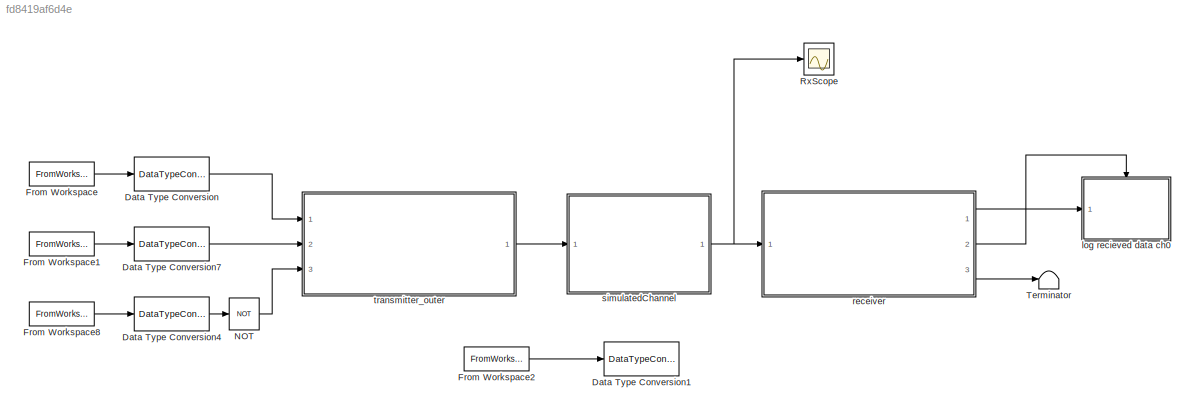
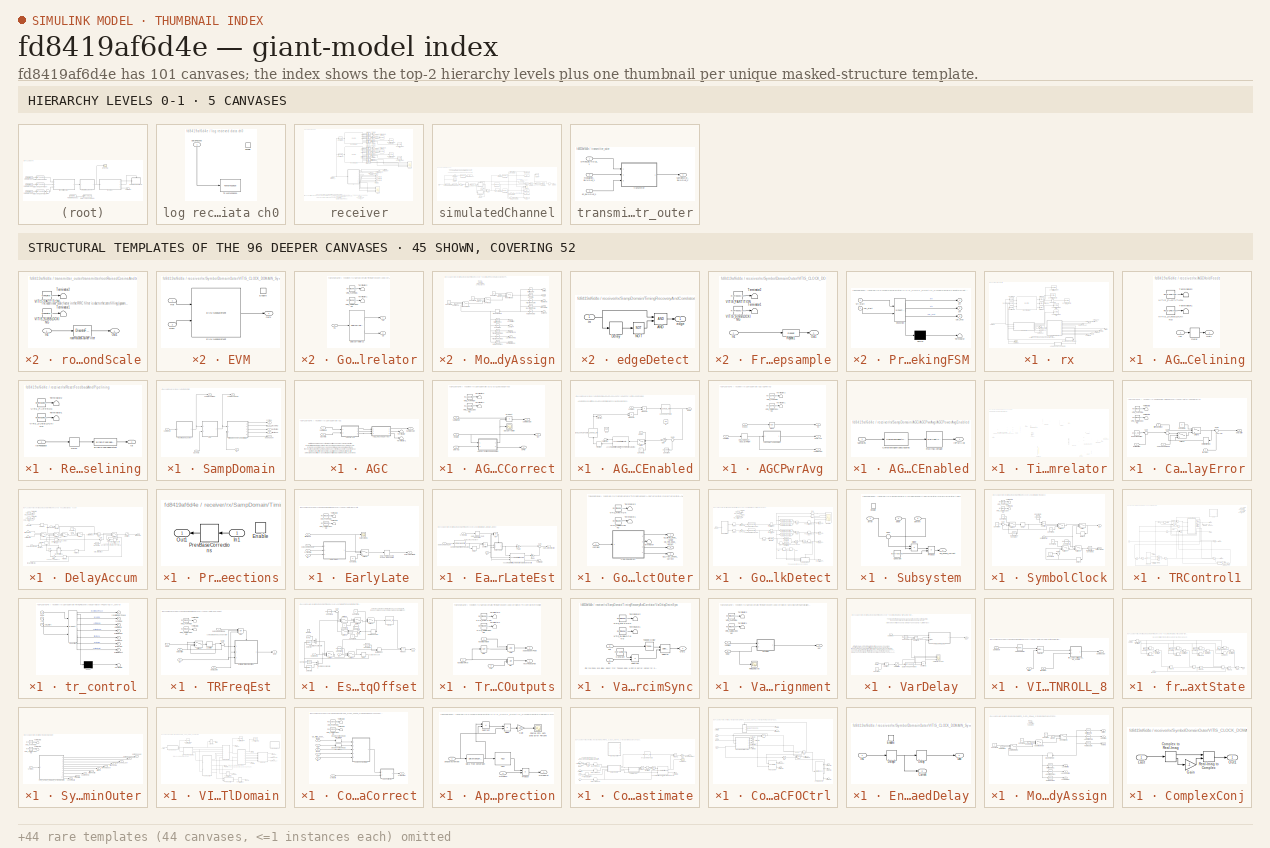
[diagram: thumbnail index - top-2 hierarchy levels (5 canvases) + 45 structural-template representatives of the remaining 96 canvases]
MODEL slx_fd8419af6d4e
KIND model
CONFIG AbsTol = auto
CONFIG EnableMultiTasking = off
CONFIG FixedStep = auto
CONFIG MaxStep = auto
CONFIG MinStep = auto
CONFIG RelTol = 1e-3
CONFIG SampleTimeConstraint = Unconstrained
CONFIG SolverName = FixedStepAuto
CONFIG StartTime = 0.0
CONFIG StopTime = (length(simX_ch0.signals.values)+pad_first)*basePer
BLOCK [DataTypeConversion] Data Type Conversion
  OutDataTypeStr = uint8
  RndMeth = Nearest
  SaturateOnIntegerOverflow = off
BLOCK [DataTypeConversion] Data Type Conversion1
  Commented = on
  OutDataTypeStr = single
  RndMeth = Floor
  SaturateOnIntegerOverflow = off
BLOCK [DataTypeConversion] Data Type Conversion4
  OutDataTypeStr = boolean
  RndMeth = Nearest
  SaturateOnIntegerOverflow = off
BLOCK [DataTypeConversion] Data Type Conversion7
  OutDataTypeStr = uint8
  RndMeth = Nearest
  SaturateOnIntegerOverflow = off
BLOCK [FromWorkspace] From Workspace
  Interpolate = off
  OutputAfterFinalValue = Setting to zero
  SampleTime = basePer*1
  VariableName = simX_ch0
BLOCK [FromWorkspace] From Workspace1
  Interpolate = off
  OutputAfterFinalValue = Setting to zero
  SampleTime = basePer*1
  VariableName = modX_ch0
BLOCK [FromWorkspace] From Workspace2
  Commented = on
  Interpolate = off
  OutputAfterFinalValue = Setting to zero
  SampleTime = overSamplePer
  VariableName = bladeRF
BLOCK [FromWorkspace] From Workspace8
  Interpolate = off
  OutputAfterFinalValue = Setting to zero
  SampleTime = basePer*1
  VariableName = zeroX_ch0
BLOCK [Logic] NOT
  AllPortsSameDT = off
  IconShape = distinctive
  Operator = NOT
  OutDataTypeStr = boolean
  Ports = [1, 1]
BLOCK [Scope] RxScope
  Floating = off
  NumInputPorts = 1
  Ports = [1]
  ScopeSpecificationString = Simulink.scopes.TimeScopeBlockCfg('CurrentConfiguration', extmgr.ConfigurationSet(extmgr.Configuration('Core','General UI',true),extmgr.Configuration('Core','Source UI',true),extmgr.Configuration('Sources','WiredSimulink',true,'DataLoggingVariableName','ScopeData1'),extmgr.Configuration('Visuals','Time Domain',true,'SerializedDisplays',{struct('MinYLimReal','-2.0362','MaxYLimReal','2.04096','YLabe...<+1818ch>
BLOCK [Terminator] Terminator
BLOCK [SubSystem] log recieved data ch0
  Ports = [1, 0, 1]
  RequestExecContextInheritance = off
BLOCK [EnablePort] log recieved data ch0/Enable
  Ports = []
BLOCK [ToWorkspace] log recieved data ch0/To Workspace1
  FixptAsFi = on
  MaxDataPoints = inf
  Ports = [1]
  SampleTime = -1
  Save2DSignal = 2-D array (concatenate along first dimension)
  VariableName = data_recieved_packed_ch0
BLOCK [Inport] log recieved data ch0/dataPacked
  NameLocation = right
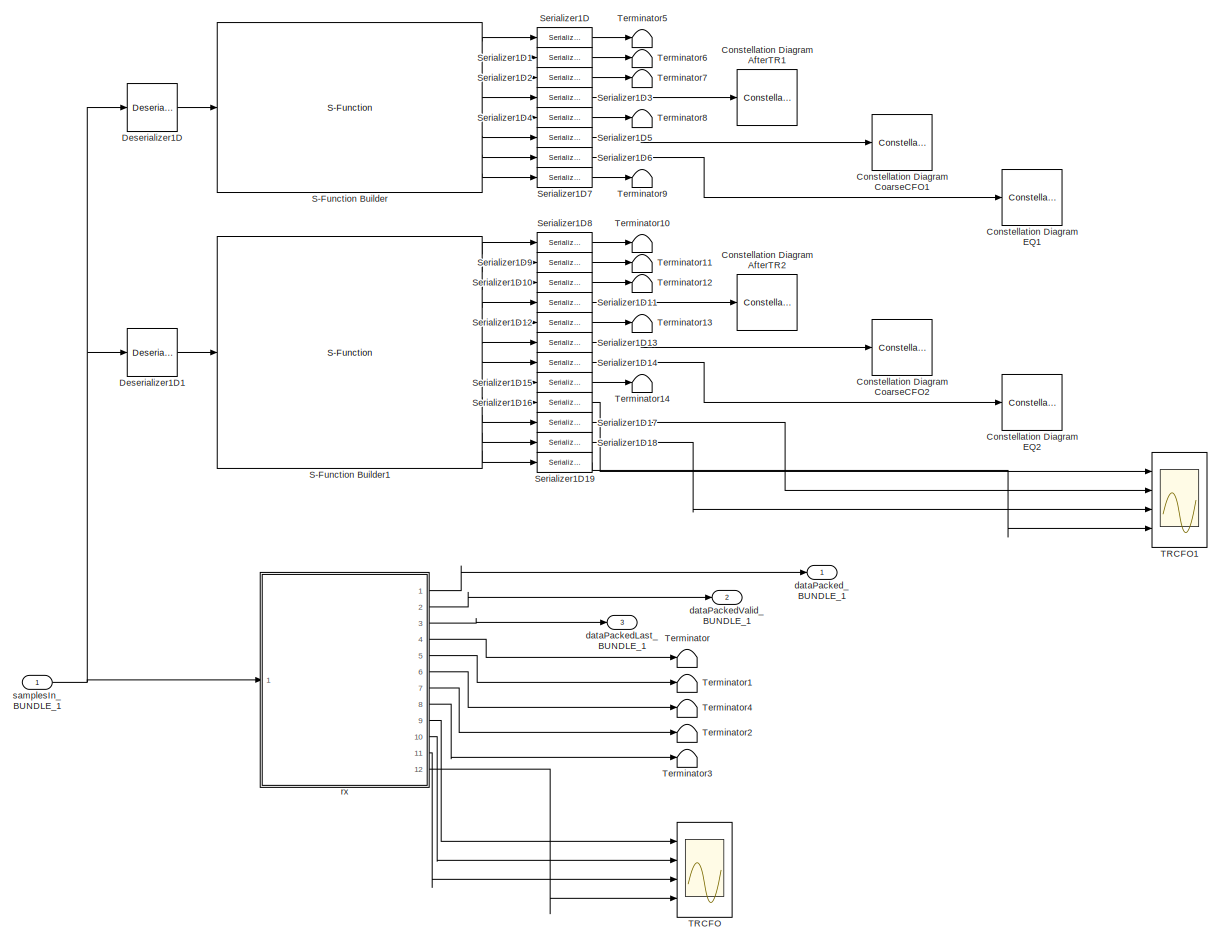
[diagram: receiver - part 1/2, most of the canvas]
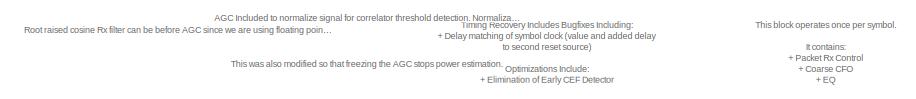
[diagram: receiver - part 2/2, bottom left region]
BLOCK [SubSystem] receiver
  Ports = [1, 3]
  RequestExecContextInheritance = off
BLOCK [ConstellationDiagram] receiver/Constellation Diagram AfterTR1
  Commented = on
  Ports = [1]
  ScopeSpecificationString = comm.scopes.ConstellationDiagramBlockCfg('CurrentConfiguration', extmgr.ConfigurationSet(extmgr.Configuration('Core','General UI',true),extmgr.Configuration('Core','Source UI',true),extmgr.Configuration('Sources','WiredSimulink',true),extmgr.Configuration('Sources','SPTool',false),extmgr.Configuration('Sources','File',false),extmgr.Configuration('Sources','Workspace',false),extmgr.Configuration('S...<+2960ch>  <repeated x6 — deduplicated; at blocks: Constellation Diagram AfterTR1, Constellation Diagram AfterTR2, Constellation Diagram CoarseCFO1, Constellation Diagram CoarseCFO2, Constellation Diagram EQ1, Constellation Diagram EQ2>
BLOCK [ConstellationDiagram] receiver/Constellation Diagram AfterTR2
  Commented = on
  Ports = [1]
BLOCK [ConstellationDiagram] receiver/Constellation Diagram CoarseCFO1
  Commented = on
  Ports = [1]
BLOCK [ConstellationDiagram] receiver/Constellation Diagram CoarseCFO2
  Commented = on
  Ports = [1]
BLOCK [ConstellationDiagram] receiver/Constellation Diagram EQ1
  Commented = on
  Ports = [1]
BLOCK [ConstellationDiagram] receiver/Constellation Diagram EQ2
  Commented = on
  Ports = [1]
BLOCK [Reference] receiver/Deserializer1D  REF=hdlsllib/HDL Operations/Deserializer1D
  Commented = on
  Ports = [1, 1]
  SourceBlock = hdlsllib/HDL Operations/Deserializer1D
  SourceProductBaseCode = SL
  SourceType = Deserializer1D
BLOCK [Reference] receiver/Deserializer1D1  REF=hdlsllib/HDL Operations/Deserializer1D
  Commented = on
  Ports = [1, 1]
  SourceBlock = hdlsllib/HDL Operations/Deserializer1D
  SourceProductBaseCode = SL
  SourceType = Deserializer1D
BLOCK [S-Function] receiver/S-Function Builder
  Commented = on
  CopyFcn = set_param(gcbh,'LinkStatus','none')
  EnableBusSupport = off
  FunctionName = rxDUT
  OpenFcn = sfunctionwizard(gcbh)
  Ports = [1, 8]
  SFcnIsStateOwnerBlock = off
  SFunctionDeploymentMode = off
  SFunctionModules = rxDUT_wrapper
BLOCK [S-Function] receiver/S-Function Builder1
  Commented = on
  CopyFcn = set_param(gcbh,'LinkStatus','none')
  EnableBusSupport = off
  FunctionName = rxDUT
  OpenFcn = sfunctionwizard(gcbh)
  Ports = [1, 12]
  SFcnIsStateOwnerBlock = off
  SFunctionDeploymentMode = off
  SFunctionModules = rxDUT_wrapper
BLOCK [Reference] receiver/Serializer1D  REF=hdlsllib/HDL Operations/Serializer1D
  Commented = on
  Ports = [1, 1]
  SourceBlock = hdlsllib/HDL Operations/Serializer1D
  SourceProductBaseCode = SL
  SourceType = Serializer1D
BLOCK [Reference] receiver/Serializer1D1  REF=hdlsllib/HDL Operations/Serializer1D
  Commented = on
  Ports = [1, 1]
  SourceBlock = hdlsllib/HDL Operations/Serializer1D
  SourceProductBaseCode = SL
  SourceType = Serializer1D
BLOCK [Reference] receiver/Serializer1D10  REF=hdlsllib/HDL Operations/Serializer1D
  Commented = on
  Ports = [1, 1]
  SourceBlock = hdlsllib/HDL Operations/Serializer1D
  SourceProductBaseCode = SL
  SourceType = Serializer1D
BLOCK [Reference] receiver/Serializer1D11  REF=hdlsllib/HDL Operations/Serializer1D
  Commented = on
  Ports = [1, 1]
  SourceBlock = hdlsllib/HDL Operations/Serializer1D
  SourceProductBaseCode = SL
  SourceType = Serializer1D
BLOCK [Reference] receiver/Serializer1D12  REF=hdlsllib/HDL Operations/Serializer1D
  Commented = on
  Ports = [1, 1]
  SourceBlock = hdlsllib/HDL Operations/Serializer1D
  SourceProductBaseCode = SL
  SourceType = Serializer1D
BLOCK [Reference] receiver/Serializer1D13  REF=hdlsllib/HDL Operations/Serializer1D
  Commented = on
  Ports = [1, 1]
  SourceBlock = hdlsllib/HDL Operations/Serializer1D
  SourceProductBaseCode = SL
  SourceType = Serializer1D
BLOCK [Reference] receiver/Serializer1D14  REF=hdlsllib/HDL Operations/Serializer1D
  Commented = on
  Ports = [1, 1]
  SourceBlock = hdlsllib/HDL Operations/Serializer1D
  SourceProductBaseCode = SL
  SourceType = Serializer1D
BLOCK [Reference] receiver/Serializer1D15  REF=hdlsllib/HDL Operations/Serializer1D
  Commented = on
  Ports = [1, 1]
  SourceBlock = hdlsllib/HDL Operations/Serializer1D
  SourceProductBaseCode = SL
  SourceType = Serializer1D
BLOCK [Reference] receiver/Serializer1D16  REF=hdlsllib/HDL Operations/Serializer1D
  Commented = on
  Ports = [1, 1]
  SourceBlock = hdlsllib/HDL Operations/Serializer1D
  SourceProductBaseCode = SL
  SourceType = Serializer1D
BLOCK [Reference] receiver/Serializer1D17  REF=hdlsllib/HDL Operations/Serializer1D
  Commented = on
  Ports = [1, 1]
  SourceBlock = hdlsllib/HDL Operations/Serializer1D
  SourceProductBaseCode = SL
  SourceType = Serializer1D
BLOCK [Reference] receiver/Serializer1D18  REF=hdlsllib/HDL Operations/Serializer1D
  Commented = on
  Ports = [1, 1]
  SourceBlock = hdlsllib/HDL Operations/Serializer1D
  SourceProductBaseCode = SL
  SourceType = Serializer1D
BLOCK [Reference] receiver/Serializer1D19  REF=hdlsllib/HDL Operations/Serializer1D
  Commented = on
  Ports = [1, 1]
  SourceBlock = hdlsllib/HDL Operations/Serializer1D
  SourceProductBaseCode = SL
  SourceType = Serializer1D
BLOCK [Reference] receiver/Serializer1D2  REF=hdlsllib/HDL Operations/Serializer1D
  Commented = on
  Ports = [1, 1]
  SourceBlock = hdlsllib/HDL Operations/Serializer1D
  SourceProductBaseCode = SL
  SourceType = Serializer1D
BLOCK [Reference] receiver/Serializer1D3  REF=hdlsllib/HDL Operations/Serializer1D
  Commented = on
  Ports = [1, 1]
  SourceBlock = hdlsllib/HDL Operations/Serializer1D
  SourceProductBaseCode = SL
  SourceType = Serializer1D
BLOCK [Reference] receiver/Serializer1D4  REF=hdlsllib/HDL Operations/Serializer1D
  Commented = on
  Ports = [1, 1]
  SourceBlock = hdlsllib/HDL Operations/Serializer1D
  SourceProductBaseCode = SL
  SourceType = Serializer1D
BLOCK [Reference] receiver/Serializer1D5  REF=hdlsllib/HDL Operations/Serializer1D
  Commented = on
  Ports = [1, 1]
  SourceBlock = hdlsllib/HDL Operations/Serializer1D
  SourceProductBaseCode = SL
  SourceType = Serializer1D
BLOCK [Reference] receiver/Serializer1D6  REF=hdlsllib/HDL Operations/Serializer1D
  Commented = on
  Ports = [1, 1]
  SourceBlock = hdlsllib/HDL Operations/Serializer1D
  SourceProductBaseCode = SL
  SourceType = Serializer1D
BLOCK [Reference] receiver/Serializer1D7  REF=hdlsllib/HDL Operations/Serializer1D
  Commented = on
  Ports = [1, 1]
  SourceBlock = hdlsllib/HDL Operations/Serializer1D
  SourceProductBaseCode = SL
  SourceType = Serializer1D
BLOCK [Reference] receiver/Serializer1D8  REF=hdlsllib/HDL Operations/Serializer1D
  Commented = on
  Ports = [1, 1]
  SourceBlock = hdlsllib/HDL Operations/Serializer1D
  SourceProductBaseCode = SL
  SourceType = Serializer1D
BLOCK [Reference] receiver/Serializer1D9  REF=hdlsllib/HDL Operations/Serializer1D
  Commented = on
  Ports = [1, 1]
  SourceBlock = hdlsllib/HDL Operations/Serializer1D
  SourceProductBaseCode = SL
  SourceType = Serializer1D
BLOCK [Scope] receiver/TRCFO
  Floating = off
  NumInputPorts = 4
  Ports = [4]
  ScopeSpecificationString = Simulink.scopes.TimeScopeBlockCfg('CurrentConfiguration', extmgr.ConfigurationSet(extmgr.Configuration('Core','General UI',true),extmgr.Configuration('Core','Source UI',true),extmgr.Configuration('Sources','WiredSimulink',true,'DataLoggingVariableName','ScopeData1'),extmgr.Configuration('Visuals','Time Domain',true,'SerializedDisplays',{struct('MinYLimReal','-3.81055','MaxYLimReal','107.07472','YL...<+1412ch>
BLOCK [Scope] receiver/TRCFO1
  Commented = on
  Floating = off
  NumInputPorts = 4
  Ports = [4]
  ScopeSpecificationString = Simulink.scopes.TimeScopeBlockCfg('CurrentConfiguration', extmgr.ConfigurationSet(extmgr.Configuration('Core','General UI',true),extmgr.Configuration('Core','Source UI',true),extmgr.Configuration('Sources','WiredSimulink',true,'DataLoggingVariableName','ScopeData1'),extmgr.Configuration('Visuals','Time Domain',true,'SerializedDisplays',{struct('MinYLimReal','-3.61845','MaxYLimReal','105.14368','YL...<+1596ch>
BLOCK [Terminator] receiver/Terminator
BLOCK [Terminator] receiver/Terminator1
BLOCK [Terminator] receiver/Terminator10
  Commented = on
BLOCK [Terminator] receiver/Terminator11
  Commented = on
BLOCK [Terminator] receiver/Terminator12
  Commented = on
BLOCK [Terminator] receiver/Terminator13
  Commented = on
BLOCK [Terminator] receiver/Terminator14
  Commented = on
BLOCK [Terminator] receiver/Terminator2
BLOCK [Terminator] receiver/Terminator3
BLOCK [Terminator] receiver/Terminator4
BLOCK [Terminator] receiver/Terminator5
  Commented = on
BLOCK [Terminator] receiver/Terminator6
  Commented = on
BLOCK [Terminator] receiver/Terminator7
  Commented = on
BLOCK [Terminator] receiver/Terminator8
  Commented = on
BLOCK [Terminator] receiver/Terminator9
  Commented = on
BLOCK [Outport] receiver/dataPackedLast_BUNDLE_1
  Port = 3
BLOCK [Outport] receiver/dataPackedValid_BUNDLE_1
  Port = 2
BLOCK [Outport] receiver/dataPacked_BUNDLE_1
BLOCK [SubSystem] receiver/rx
  Ports = [1, 12]
  RequestExecContextInheritance = off
BLOCK [Scope] receiver/rx/AGC Freeze
  Floating = off
  NumInputPorts = 1
  Ports = [1]
  ScopeSpecificationString = Simulink.scopes.TimeScopeBlockCfg('CurrentConfiguration', extmgr.ConfigurationSet(extmgr.Configuration('Core','General UI',true),extmgr.Configuration('Core','Source UI',true),extmgr.Configuration('Sources','WiredSimulink',true,'DataLoggingVariableName','ScopeData1'),extmgr.Configuration('Visuals','Time Domain',true,'SerializedDisplays',{struct('MinYLimReal','-0.125','MaxYLimReal','1.125','YLabelRe...<+1376ch>
BLOCK [SubSystem] receiver/rx/AGCHoldFeedbackAndPipelining
  Ports = [1, 1]
  RequestExecContextInheritance = off
BLOCK [Delay] receiver/rx/AGCHoldFeedbackAndPipelining/Delay
  DelayLength = RxFreezeFeedbackPipelining
  InputPortMap = u0
  Ports = [1, 1]
  UseCircularBuffer = on
BLOCK [Inport] receiver/rx/AGCHoldFeedbackAndPipelining/In1
BLOCK [Outport] receiver/rx/AGCHoldFeedbackAndPipelining/Out1
BLOCK [Terminator] receiver/rx/AGCHoldFeedbackAndPipelining/Terminator1
BLOCK [Terminator] receiver/rx/AGCHoldFeedbackAndPipelining/Terminator2
BLOCK [Constant] receiver/rx/AGCHoldFeedbackAndPipelining/VITIS_PARTITION
  Value = RxAGCPwrAvgPartition
BLOCK [Constant] receiver/rx/AGCHoldFeedbackAndPipelining/VITIS_SUBBLOCKING
  Value = RxAGCPwrAvgSubBlocking
BLOCK [ConstellationDiagram] receiver/rx/Constellation Diagram AGC
  Ports = [1]
  ScopeSpecificationString = comm.scopes.ConstellationDiagramBlockCfg('CurrentConfiguration', extmgr.ConfigurationSet(extmgr.Configuration('Core','General UI',true),extmgr.Configuration('Core','Source UI',true),extmgr.Configuration('Sources','WiredSimulink',true),extmgr.Configuration('Sources','SPTool',false),extmgr.Configuration('Sources','File',false),extmgr.Configuration('Sources','Workspace',false),extmgr.Configuration('S...<+2533ch>
BLOCK [ConstellationDiagram] receiver/rx/Constellation Diagram AGC1
  Commented = on
  Ports = [1]
  ScopeSpecificationString = comm.scopes.ConstellationDiagramBlockCfg('CurrentConfiguration', extmgr.ConfigurationSet(extmgr.Configuration('Core','General UI',true),extmgr.Configuration('Core','Source UI',true),extmgr.Configuration('Sources','WiredSimulink',true),extmgr.Configuration('Sources','SPTool',false),extmgr.Configuration('Sources','File',false),extmgr.Configuration('Sources','Workspace',false),extmgr.Configuration('S...<+2978ch>
BLOCK [ConstellationDiagram] receiver/rx/Constellation Diagram RRC
  Ports = [1]
  ScopeSpecificationString = comm.scopes.ConstellationDiagramBlockCfg('CurrentConfiguration', extmgr.ConfigurationSet(extmgr.Configuration('Core','General UI',true),extmgr.Configuration('Core','Source UI',true),extmgr.Configuration('Sources','WiredSimulink',true),extmgr.Configuration('Sources','SPTool',false),extmgr.Configuration('Sources','File',false),extmgr.Configuration('Sources','Workspace',false),extmgr.Configuration('S...<+2531ch>
BLOCK [ConstellationDiagram] receiver/rx/Constellation Diagram RRC1
  Commented = on
  Ports = [1]
  ScopeSpecificationString = comm.scopes.ConstellationDiagramBlockCfg('CurrentConfiguration', extmgr.ConfigurationSet(extmgr.Configuration('Core','General UI',true),extmgr.Configuration('Core','Source UI',true),extmgr.Configuration('Sources','WiredSimulink',true),extmgr.Configuration('Sources','SPTool',false),extmgr.Configuration('Sources','File',false),extmgr.Configuration('Sources','Workspace',false),extmgr.Configuration('S...<+2974ch>
BLOCK [ConstellationDiagram] receiver/rx/Constellation Diagram Symb
  Commented = on
  Ports = [1]
  ScopeSpecificationString = comm.scopes.ConstellationDiagramBlockCfg('CurrentConfiguration', extmgr.ConfigurationSet(extmgr.Configuration('Core','General UI',true),extmgr.Configuration('Core','Source UI',true),extmgr.Configuration('Sources','WiredSimulink',true),extmgr.Configuration('Sources','SPTool',false),extmgr.Configuration('Sources','File',false),extmgr.Configuration('Sources','Workspace',false),extmgr.Configuration('S...<+2978ch>
BLOCK [Reference] receiver/rx/Deserializer1D  REF=hdlsllib/HDL Operations/Deserializer1D
  Commented = on
  Ports = [1, 1]
  SourceBlock = hdlsllib/HDL Operations/Deserializer1D
  SourceProductBaseCode = SL
  SourceType = Deserializer1D
BLOCK [Reference] receiver/rx/Deserializer1D1  REF=hdlsllib/HDL Operations/Deserializer1D
  Commented = on
  Ports = [1, 1]
  SourceBlock = hdlsllib/HDL Operations/Deserializer1D
  SourceProductBaseCode = SL
  SourceType = Deserializer1D
BLOCK [Reference] receiver/rx/Deserializer1D2  REF=hdlsllib/HDL Operations/Deserializer1D
  Commented = on
  Ports = [1, 1]
  SourceBlock = hdlsllib/HDL Operations/Deserializer1D
  SourceProductBaseCode = SL
  SourceType = Deserializer1D
BLOCK [DownSample] receiver/rx/Downsample
  Commented = on
  InputProcessing = Elements as channels (sample based)
  N = 3
  RateOptions = Allow multirate processing
BLOCK [SubSystem] receiver/rx/ResetFeedbackAndPipelining
  Ports = [1, 1]
  RequestExecContextInheritance = off
BLOCK [Reference] receiver/rx/ResetFeedbackAndPipelining/BinaryPosEdgeDetect  REF=rev1CyclopsLib/BinaryPosEdgeDetect
  Ports = [1, 1]
  SourceBlock = rev1CyclopsLib/BinaryPosEdgeDetect
  SourceType = SubSystem
BLOCK [Delay] receiver/rx/ResetFeedbackAndPipelining/Delay
  DelayLength = RxFeedbackPipelining
  InputPortMap = u0
  Ports = [1, 1]
  UseCircularBuffer = on
BLOCK [Terminator] receiver/rx/ResetFeedbackAndPipelining/Terminator1
BLOCK [Terminator] receiver/rx/ResetFeedbackAndPipelining/Terminator2
BLOCK [Constant] receiver/rx/ResetFeedbackAndPipelining/VITIS_PARTITION
  Value = RxTimingRecoveryControlPartition
BLOCK [Constant] receiver/rx/ResetFeedbackAndPipelining/VITIS_SUBBLOCKING
  Value = RxTimingRecoveryControlSubBlocking
BLOCK [Outport] receiver/rx/ResetFeedbackAndPipelining/rst
BLOCK [Inport] receiver/rx/ResetFeedbackAndPipelining/rstFeedback
BLOCK [S-Function] receiver/rx/S-Function Builder
  Commented = on
  CopyFcn = set_param(gcbh,'LinkStatus','none')
  EnableBusSupport = off
  FunctionName = sampleDomainDUT
  OpenFcn = sfunctionwizard(gcbh)
  Ports = [3, 3]
  SFcnIsStateOwnerBlock = off
  SFunctionDeploymentMode = off
  SFunctionModules = sampleDomainDUT_wrapper
BLOCK [SubSystem] receiver/rx/SampDomain
  Ports = [3, 7]
  RequestExecContextInheritance = off
BLOCK [SubSystem] receiver/rx/SampDomain/AGC
  Ports = [2, 1]
  RequestExecContextInheritance = off
BLOCK [SubSystem] receiver/rx/SampDomain/AGC/AGCLoopAndCorrect
  Ports = [3, 3]
  RequestExecContextInheritance = off
BLOCK [SubSystem] receiver/rx/SampDomain/AGC/AGCLoopAndCorrect/AGCCorrectionLoopEnabled
  Ports = [2, 2]
  RequestExecContextInheritance = off
BLOCK [Reference] receiver/rx/SampDomain/AGC/AGCLoopAndCorrect/AGCCorrectionLoopEnabled/AccumulatorWithSaturationCombinationalOutput  REF=rev1CyclopsLib/AccumulatorWithSaturationCombinationalOutput
  Ports = [1, 2]
  SourceBlock = rev1CyclopsLib/AccumulatorWithSaturationCombinationalOutput
  SourceType = Accumulator with Combinational Output
BLOCK [Constant] receiver/rx/SampDomain/AGC/AGCLoopAndCorrect/AGCCorrectionLoopEnabled/Constant
  OutDataTypeStr = Inherit: Inherit via back propagation
  Value = agcDesired
BLOCK [Constant] receiver/rx/SampDomain/AGC/AGCLoopAndCorrect/AGCCorrectionLoopEnabled/Constant1
  OutDataTypeStr = Inherit: Inherit via back propagation
  Value = 0
BLOCK [Math] receiver/rx/SampDomain/AGC/AGCLoopAndCorrect/AGCCorrectionLoopEnabled/Exp
  Commented = on
  NameLocation = right
  Ports = [1, 1]
BLOCK [Lookup_n-D] receiver/rx/SampDomain/AGC/AGCLoopAndCorrect/AGCCorrectionLoopEnabled/Exp Lookup Table
  BreakpointsForDimension1 = agcExpBreakpoints
  IndexSearchMethod = Evenly spaced points
  InputPortMap = u0
  InternalRulePriority = Speed
  InterpMethod = Flat
  NameLocation = left
  NumberOfTableDimensions = 1
  Ports = [1, 1]
  RndMeth = Simplest
  Table = exp(agcExpBreakpoints)
BLOCK [Gain] receiver/rx/SampDomain/AGC/AGCLoopAndCorrect/AGCCorrectionLoopEnabled/Gain
  Gain = agcStep
BLOCK [Lookup_n-D] receiver/rx/SampDomain/AGC/AGCLoopAndCorrect/AGCCorrectionLoopEnabled/Ln Lookup Table
  BreakpointsForDimension1 = agcLnBreakpoints
  IndexSearchMethod = Evenly spaced points
  InputPortMap = u0
  InternalRulePriority = Speed
  InterpMethod = Flat
  NumberOfTableDimensions = 1
  Ports = [1, 1]
  RndMeth = Simplest
  Table = log(agcLnBreakpoints)
BLOCK [Delay] receiver/rx/SampDomain/AGC/AGCLoopAndCorrect/AGCCorrectionLoopEnabled/Pipeline
  DelayLength = agcLoopPipeline
  InputPortMap = u0
  Ports = [1, 1]
BLOCK [Product] receiver/rx/SampDomain/AGC/AGCLoopAndCorrect/AGCCorrectionLoopEnabled/Product1
  OutDataTypeStr = Inherit: Same as first input
  Ports = [2, 1]
BLOCK [Product] receiver/rx/SampDomain/AGC/AGCLoopAndCorrect/AGCCorrectionLoopEnabled/Product2
  OutDataTypeStr = Inherit: Same as first input
  Ports = [2, 1]
BLOCK [Sum] receiver/rx/SampDomain/AGC/AGCLoopAndCorrect/AGCCorrectionLoopEnabled/Sum1
  Inputs = |-+
  Ports = [2, 1]
BLOCK [Switch] receiver/rx/SampDomain/AGC/AGCLoopAndCorrect/AGCCorrectionLoopEnabled/Switch
  Criteria = u2 ~= 0
  InputSameDT = off
  SaturateOnIntegerOverflow = off
BLOCK [Terminator] receiver/rx/SampDomain/AGC/AGCLoopAndCorrect/AGCCorrectionLoopEnabled/Terminator
BLOCK [Inport] receiver/rx/SampDomain/AGC/AGCLoopAndCorrect/AGCCorrectionLoopEnabled/adapt
BLOCK [Outport] receiver/rx/SampDomain/AGC/AGCLoopAndCorrect/AGCCorrectionLoopEnabled/correction
BLOCK [Math] receiver/rx/SampDomain/AGC/AGCLoopAndCorrect/AGCCorrectionLoopEnabled/ln
  Commented = on
  Operator = log
  Ports = [1, 1]
BLOCK [Outport] receiver/rx/SampDomain/AGC/AGCLoopAndCorrect/AGCCorrectionLoopEnabled/lnPwr
  Port = 2
BLOCK [Inport] receiver/rx/SampDomain/AGC/AGCLoopAndCorrect/AGCCorrectionLoopEnabled/samples
  Port = 2
BLOCK [Product] receiver/rx/SampDomain/AGC/AGCLoopAndCorrect/Product
  OutDataTypeStr = Inherit: Same as first input
  Ports = [2, 1]
BLOCK [Terminator] receiver/rx/SampDomain/AGC/AGCLoopAndCorrect/Terminator1
BLOCK [Terminator] receiver/rx/SampDomain/AGC/AGCLoopAndCorrect/Terminator2
BLOCK [Constant] receiver/rx/SampDomain/AGC/AGCLoopAndCorrect/VITIS_PARTITION
  Value = RxAGCCorrectionLoopPartition
BLOCK [Constant] receiver/rx/SampDomain/AGC/AGCLoopAndCorrect/VITIS_SUBBLOCKING
  Value = RxAGCCorrectionLoopSubBlocking
BLOCK [Scope] receiver/rx/SampDomain/AGC/AGCLoopAndCorrect/agcCorrection
  Floating = off
  NumInputPorts = 1
  Ports = [1]
  ScopeSpecificationString = Simulink.scopes.TimeScopeBlockCfg('CurrentConfiguration', extmgr.ConfigurationSet(extmgr.Configuration('Core','General UI',true),extmgr.Configuration('Core','Source UI',true),extmgr.Configuration('Sources','WiredSimulink',true,'DataLoggingVariableName','ScopeData1'),extmgr.Configuration('Visuals','Time Domain',true,'SerializedDisplays',{struct('MinYLimReal','0.36407','MaxYLimReal','0.66194','YLabe...<+1480ch>
BLOCK [Outport] receiver/rx/SampDomain/AGC/AGCLoopAndCorrect/en
  Port = 3
BLOCK [Inport] receiver/rx/SampDomain/AGC/AGCLoopAndCorrect/enable
  Port = 3
BLOCK [Outport] receiver/rx/SampDomain/AGC/AGCLoopAndCorrect/lnPwr
  Port = 2
BLOCK [Inport] receiver/rx/SampDomain/AGC/AGCLoopAndCorrect/pwrAvg
  Port = 2
BLOCK [Inport] receiver/rx/SampDomain/AGC/AGCLoopAndCorrect/samplesIn
BLOCK [Outport] receiver/rx/SampDomain/AGC/AGCLoopAndCorrect/samplesOut
BLOCK [SubSystem] receiver/rx/SampDomain/AGC/AGCPwrAvg
  Ports = [2, 3]
  RequestExecContextInheritance = off
BLOCK [SubSystem] receiver/rx/SampDomain/AGC/AGCPwrAvg/AGCPowerAvgEnabled
  Ports = [1, 1]
  RequestExecContextInheritance = off
BLOCK [Reference] receiver/rx/SampDomain/AGC/AGCPwrAvg/AGCPowerAvgEnabled/ComplexMagnitudeSquared  REF=rev1CyclopsLib/ComplexMagnitudeSquared
  Ports = [1, 1]
  SourceBlock = rev1CyclopsLib/ComplexMagnitudeSquared
  SourceType = SubSystem
BLOCK [Reference] receiver/rx/SampDomain/AGC/AGCPwrAvg/AGCPowerAvgEnabled/RollingAverage  REF=rev1CyclopsLib/RollingAverage
  Ports = [1, 1]
  SourceBlock = rev1CyclopsLib/RollingAverage
BLOCK [Outport] receiver/rx/SampDomain/AGC/AGCPwrAvg/AGCPowerAvgEnabled/lnPwrAvg
BLOCK [Inport] receiver/rx/SampDomain/AGC/AGCPwrAvg/AGCPowerAvgEnabled/samples
BLOCK [Logic] receiver/rx/SampDomain/AGC/AGCPwrAvg/NOT2
  AllPortsSameDT = off
  IconShape = distinctive
  Operator = NOT
  OutDataTypeStr = boolean
  Ports = [1, 1]
BLOCK [Terminator] receiver/rx/SampDomain/AGC/AGCPwrAvg/Terminator1
BLOCK [Terminator] receiver/rx/SampDomain/AGC/AGCPwrAvg/Terminator2
BLOCK [Delay] receiver/rx/SampDomain/AGC/AGCPwrAvg/VITIS_CONTEXT_ABSORB_BARRIER
  DelayLength = 0
  InputPortMap = u0
  Ports = [1, 1]
BLOCK [Constant] receiver/rx/SampDomain/AGC/AGCPwrAvg/VITIS_PARTITION
  Value = RxAGCPwrAvgPartition
BLOCK [Constant] receiver/rx/SampDomain/AGC/AGCPwrAvg/VITIS_SUBBLOCKING
  Value = RxAGCPwrAvgSubBlocking
BLOCK [Outport] receiver/rx/SampDomain/AGC/AGCPwrAvg/en
  Port = 3
BLOCK [Inport] receiver/rx/SampDomain/AGC/AGCPwrAvg/freeze
  Port = 2
BLOCK [Outport] receiver/rx/SampDomain/AGC/AGCPwrAvg/lnPwrAvg
  Port = 2
BLOCK [Inport] receiver/rx/SampDomain/AGC/AGCPwrAvg/samples
BLOCK [Outport] receiver/rx/SampDomain/AGC/AGCPwrAvg/samplesOut
BLOCK [Terminator] receiver/rx/SampDomain/AGC/Terminator
BLOCK [Terminator] receiver/rx/SampDomain/AGC/Terminator1
BLOCK [Inport] receiver/rx/SampDomain/AGC/agcHold
  Port = 2
BLOCK [Inport] receiver/rx/SampDomain/AGC/samplesIn
BLOCK [Outport] receiver/rx/SampDomain/AGC/samplesOut
BLOCK [SubSystem] receiver/rx/SampDomain/RootRaisedCosine
  Ports = [1, 1]
  RequestExecContextInheritance = off
BLOCK [Terminator] receiver/rx/SampDomain/RootRaisedCosine/Terminator1
BLOCK [Terminator] receiver/rx/SampDomain/RootRaisedCosine/Terminator2
BLOCK [Constant] receiver/rx/SampDomain/RootRaisedCosine/VITIS_PARTITION
  Value = RxRRCPartition
BLOCK [Constant] receiver/rx/SampDomain/RootRaisedCosine/VITIS_SUBBLOCKING
  Value = RxRRCSubBlocking
BLOCK [DiscreteFir] receiver/rx/SampDomain/RootRaisedCosine/rootRaisedCosineFilter
  Coefficients = rcRxFilt
  InputPortMap = u0
  OutputPortMap = o0
  Ports = [1, 1]
BLOCK [Inport] receiver/rx/SampDomain/RootRaisedCosine/samplesIn
BLOCK [Outport] receiver/rx/SampDomain/RootRaisedCosine/samplesOut
BLOCK [SubSystem] receiver/rx/SampDomain/TimingRecoveryAndCorrelator
  Ports = [2, 5]
  RequestExecContextInheritance = off
BLOCK [SubSystem] receiver/rx/SampDomain/TimingRecoveryAndCorrelator/CalcDelayError
  Ports = [4, 1]
  RequestExecContextInheritance = off
BLOCK [Constant] receiver/rx/SampDomain/TimingRecoveryAndCorrelator/CalcDelayError/Constant1
  OutDataTypeStr = Inherit: Inherit via back propagation
  Value = 0
BLOCK [Constant] receiver/rx/SampDomain/TimingRecoveryAndCorrelator/CalcDelayError/ExpectedPeriod
  OutDataTypeStr = Inherit: Inherit via back propagation
  Value = golay_type*overSample
BLOCK [Delay] receiver/rx/SampDomain/TimingRecoveryAndCorrelator/CalcDelayError/RefIntCorrection
  DelayLength = 1
  InputPortMap = u0
  Ports = [1, 1]
BLOCK [Sum] receiver/rx/SampDomain/TimingRecoveryAndCorrelator/CalcDelayError/Sum
  Inputs = |+-
  Ports = [2, 1]
BLOCK [Sum] receiver/rx/SampDomain/TimingRecoveryAndCorrelator/CalcDelayError/Sum1
  Inputs = |++
  Ports = [2, 1]
BLOCK [Sum] receiver/rx/SampDomain/TimingRecoveryAndCorrelator/CalcDelayError/Sum3
  Inputs = |++
  Ports = [2, 1]
BLOCK [Switch] receiver/rx/SampDomain/TimingRecoveryAndCorrelator/CalcDelayError/Switch5
  Criteria = u2 ~= 0
  InputSameDT = off
  SaturateOnIntegerOverflow = off
BLOCK [Switch] receiver/rx/SampDomain/TimingRecoveryAndCorrelator/CalcDelayError/Switch6
  Criteria = u2 > Threshold
  InputSameDT = off
  SaturateOnIntegerOverflow = off
BLOCK [Terminator] receiver/rx/SampDomain/TimingRecoveryAndCorrelator/CalcDelayError/Terminator1
BLOCK [Terminator] receiver/rx/SampDomain/TimingRecoveryAndCorrelator/CalcDelayError/Terminator2
BLOCK [Constant] receiver/rx/SampDomain/TimingRecoveryAndCorrelator/CalcDelayError/VITIS_PARTITION
  Value = RxTimingRecoveryCalcDelayError
BLOCK [Constant] receiver/rx/SampDomain/TimingRecoveryAndCorrelator/CalcDelayError/VITIS_SUBBLOCKING
  Value = RxTimingRecoveryCalcDelayErrorSubBlocking
BLOCK [Outport] receiver/rx/SampDomain/TimingRecoveryAndCorrelator/CalcDelayError/delayError
BLOCK [Inport] receiver/rx/SampDomain/TimingRecoveryAndCorrelator/CalcDelayError/firstPeakOrRst
  Port = 3
BLOCK [Inport] receiver/rx/SampDomain/TimingRecoveryAndCorrelator/CalcDelayError/fracDelay
  Port = 4
BLOCK [Inport] receiver/rx/SampDomain/TimingRecoveryAndCorrelator/CalcDelayError/lastIntPeriod
  Port = 2
BLOCK [Inport] receiver/rx/SampDomain/TimingRecoveryAndCorrelator/CalcDelayError/subsequentPeak
BLOCK [SubSystem] receiver/rx/SampDomain/TimingRecoveryAndCorrelator/DelayAccum
  Ports = [9, 1]
  RequestExecContextInheritance = off
BLOCK [Constant] receiver/rx/SampDomain/TimingRecoveryAndCorrelator/DelayAccum/BaseDelay
  OutDataTypeStr = Inherit: Inherit via back propagation
  Value = trTappedDelayLen/2
BLOCK [Constant] receiver/rx/SampDomain/TimingRecoveryAndCorrelator/DelayAccum/Constant
  OutDataTypeStr = Inherit: Inherit via back propagation
  Value = 0
BLOCK [Delay] receiver/rx/SampDomain/TimingRecoveryAndCorrelator/DelayAccum/CorrectionRelToStartPhase
  DelayLength = 1
  InputPortMap = u0
  Ports = [1, 1]
BLOCK [Gain] receiver/rx/SampDomain/TimingRecoveryAndCorrelator/DelayAccum/Gain
  Gain = golay_type*overSample*timingRecoveryFreqCorrectionDiscardLastN
BLOCK [Delay] receiver/rx/SampDomain/TimingRecoveryAndCorrelator/DelayAccum/InstantaniousCorrection
  DelayLength = 1
  InputPortMap = u0
  Ports = [1, 1]
BLOCK [Logic] receiver/rx/SampDomain/TimingRecoveryAndCorrelator/DelayAccum/OR2
  AllPortsSameDT = off
  IconShape = distinctive
  Operator = OR
  OutDataTypeStr = boolean
  Ports = [2, 1]
BLOCK [Delay] receiver/rx/SampDomain/TimingRecoveryAndCorrelator/DelayAccum/Pipeline
  DelayLength = 1
  InputPortMap = u0
  Ports = [1, 1]
BLOCK [Delay] receiver/rx/SampDomain/TimingRecoveryAndCorrelator/DelayAccum/Pipeline1
  DelayLength = 1
  InputPortMap = u0
  NameLocation = left
  Ports = [1, 1]
BLOCK [Delay] receiver/rx/SampDomain/TimingRecoveryAndCorrelator/DelayAccum/Pipeline2
  DelayLength = 1
  InputPortMap = u0
  Ports = [1, 1]
BLOCK [Delay] receiver/rx/SampDomain/TimingRecoveryAndCorrelator/DelayAccum/Pipeline3
  DelayLength = 1
  InputPortMap = u0
  Ports = [1, 1]
BLOCK [Delay] receiver/rx/SampDomain/TimingRecoveryAndCorrelator/DelayAccum/Pipeline4
  DelayLength = 1
  InputPortMap = u0
  Ports = [1, 1]
BLOCK [Delay] receiver/rx/SampDomain/TimingRecoveryAndCorrelator/DelayAccum/Pipeline5
  DelayLength = 1
  InputPortMap = u0
  NameLocation = top
  Ports = [1, 1]
BLOCK [SubSystem] receiver/rx/SampDomain/TimingRecoveryAndCorrelator/DelayAccum/PrevCorrections
  Ports = [1, 1, 1]
  RequestExecContextInheritance = off
BLOCK [EnablePort] receiver/rx/SampDomain/TimingRecoveryAndCorrelator/DelayAccum/PrevCorrections/Enable
  Ports = []
BLOCK [Inport] receiver/rx/SampDomain/TimingRecoveryAndCorrelator/DelayAccum/PrevCorrections/In1
BLOCK [Outport] receiver/rx/SampDomain/TimingRecoveryAndCorrelator/DelayAccum/PrevCorrections/Out1
BLOCK [Delay] receiver/rx/SampDomain/TimingRecoveryAndCorrelator/DelayAccum/PrevCorrections/PrevBaseCorrections
  DelayLength = timingRecoveryFreqCorrectionDiscardLastN
  InputPortMap = u0
  Ports = [1, 1]
BLOCK [Saturate] receiver/rx/SampDomain/TimingRecoveryAndCorrelator/DelayAccum/Saturation
  LowerLimit = 0
  UpperLimit = trTappedDelayLen
BLOCK [Sum] receiver/rx/SampDomain/TimingRecoveryAndCorrelator/DelayAccum/Sum4
  Inputs = +++
  Ports = [3, 1]
BLOCK [Sum] receiver/rx/SampDomain/TimingRecoveryAndCorrelator/DelayAccum/Sum5
  Inputs = |++
  Ports = [2, 1]
BLOCK [Sum] receiver/rx/SampDomain/TimingRecoveryAndCorrelator/DelayAccum/Sum6
  Inputs = |++
  Ports = [2, 1]
BLOCK [Switch] receiver/rx/SampDomain/TimingRecoveryAndCorrelator/DelayAccum/Switch
  Criteria = u2 ~= 0
  InputSameDT = off
  SaturateOnIntegerOverflow = off
BLOCK [Switch] receiver/rx/SampDomain/TimingRecoveryAndCorrelator/DelayAccum/Switch1
  Criteria = u2 ~= 0
  InputSameDT = off
  SaturateOnIntegerOverflow = off
BLOCK [Switch] receiver/rx/SampDomain/TimingRecoveryAndCorrelator/DelayAccum/Switch3
  Criteria = u2 ~= 0
  InputSameDT = off
  SaturateOnIntegerOverflow = off
BLOCK [Switch] receiver/rx/SampDomain/TimingRecoveryAndCorrelator/DelayAccum/Switch4
  Criteria = u2 ~= 0
  InputSameDT = off
  SaturateOnIntegerOverflow = off
BLOCK [Switch] receiver/rx/SampDomain/TimingRecoveryAndCorrelator/DelayAccum/Switch7
  Criteria = u2 ~= 0
  InputSameDT = off
  SaturateOnIntegerOverflow = off
BLOCK [Terminator] receiver/rx/SampDomain/TimingRecoveryAndCorrelator/DelayAccum/Terminator1
BLOCK [Terminator] receiver/rx/SampDomain/TimingRecoveryAndCorrelator/DelayAccum/Terminator2
BLOCK [Constant] receiver/rx/SampDomain/TimingRecoveryAndCorrelator/DelayAccum/VITIS_PARTITION
  Value = RxTimingRecoveryDelayAccumPartition
BLOCK [Constant] receiver/rx/SampDomain/TimingRecoveryAndCorrelator/DelayAccum/VITIS_SUBBLOCKING
  Value = RxTimingRecoveryDelayAccumSubBlocking
BLOCK [Inport] receiver/rx/SampDomain/TimingRecoveryAndCorrelator/DelayAccum/delayError
  OutDataTypeStr = single
BLOCK [Inport] receiver/rx/SampDomain/TimingRecoveryAndCorrelator/DelayAccum/earlyLateCorrect
  OutDataTypeStr = single
  Port = 9
BLOCK [Inport] receiver/rx/SampDomain/TimingRecoveryAndCorrelator/DelayAccum/estimateFirst
  Port = 6
BLOCK [Inport] receiver/rx/SampDomain/TimingRecoveryAndCorrelator/DelayAccum/estimateNow
  Port = 4
BLOCK [Inport] receiver/rx/SampDomain/TimingRecoveryAndCorrelator/DelayAccum/firstFractDelay
  OutDataTypeStr = single
  Port = 8
BLOCK [Inport] receiver/rx/SampDomain/TimingRecoveryAndCorrelator/DelayAccum/freqEstCorrection
  OutDataTypeStr = single
  Port = 2
BLOCK [Inport] receiver/rx/SampDomain/TimingRecoveryAndCorrelator/DelayAccum/rst
  Port = 7
BLOCK [Inport] receiver/rx/SampDomain/TimingRecoveryAndCorrelator/DelayAccum/subsequentPeak
  Port = 3
BLOCK [Outport] receiver/rx/SampDomain/TimingRecoveryAndCorrelator/DelayAccum/timingDelay
  OutDataTypeStr = single
BLOCK [Inport] receiver/rx/SampDomain/TimingRecoveryAndCorrelator/DelayAccum/trEstDoneEdge
  Port = 5
BLOCK [SubSystem] receiver/rx/SampDomain/TimingRecoveryAndCorrelator/EarlyLate
  Ports = [4, 1]
  RequestExecContextInheritance = off
BLOCK [Constant] receiver/rx/SampDomain/TimingRecoveryAndCorrelator/EarlyLate/Constant1
  OutDataTypeStr = Inherit: Inherit via back propagation
  Value = 0
BLOCK [Scope] receiver/rx/SampDomain/TimingRecoveryAndCorrelator/EarlyLate/EarlyLateEN
  Floating = off
  NumInputPorts = 1
  Ports = [1]
  ScopeSpecificationString = Simulink.scopes.TimeScopeBlockCfg('CurrentConfiguration', extmgr.ConfigurationSet(extmgr.Configuration('Core','General UI',true),extmgr.Configuration('Core','Source UI',true),extmgr.Configuration('Sources','WiredSimulink',true,'DataLoggingVariableName','ScopeData1'),extmgr.Configuration('Visuals','Time Domain',true,'SerializedDisplays',{struct('MinYLimReal','-0.125','MaxYLimReal','1.125','YLabelRe...<+1385ch>
BLOCK [SubSystem] receiver/rx/SampDomain/TimingRecoveryAndCorrelator/EarlyLate/EarlyLateEst
  Ports = [3, 1]
  RequestExecContextInheritance = off
BLOCK [Reference] receiver/rx/SampDomain/TimingRecoveryAndCorrelator/EarlyLate/EarlyLateEst/AccumulatorWithCombinationalOutputAndValid  REF=rev1CyclopsLib/AccumulatorWithCombinationalOutputAndValid
  Ports = [3, 2]
  SourceBlock = rev1CyclopsLib/AccumulatorWithCombinationalOutputAndValid
  SourceType = Accumulator with Combinational Output
BLOCK [Reference] receiver/rx/SampDomain/TimingRecoveryAndCorrelator/EarlyLate/EarlyLateEst/ComplexMagnitudeSquared  REF=rev1CyclopsLib/ComplexMagnitudeSquared
  Ports = [1, 1]
  SourceBlock = rev1CyclopsLib/ComplexMagnitudeSquared
  SourceType = SubSystem
BLOCK [Delay] receiver/rx/SampDomain/TimingRecoveryAndCorrelator/EarlyLate/EarlyLateEst/Delay
  InputPortMap = u0
  Ports = [1, 1]
BLOCK [Gain] receiver/rx/SampDomain/TimingRecoveryAndCorrelator/EarlyLate/EarlyLateEst/I Gain1
  Gain = trEarlyLateIGain
BLOCK [SubSystem] receiver/rx/SampDomain/TimingRecoveryAndCorrelator/EarlyLate/EarlyLateEst/LateVsEarly
  Ports = [2, 1, 1]
  RequestExecContextInheritance = off
BLOCK [EnablePort] receiver/rx/SampDomain/TimingRecoveryAndCorrelator/EarlyLate/EarlyLateEst/LateVsEarly/Enable
  Ports = []
BLOCK [Inport] receiver/rx/SampDomain/TimingRecoveryAndCorrelator/EarlyLate/EarlyLateEst/LateVsEarly/In1
BLOCK [Outport] receiver/rx/SampDomain/TimingRecoveryAndCorrelator/EarlyLate/EarlyLateEst/LateVsEarly/Out1
BLOCK [Reference] receiver/rx/SampDomain/TimingRecoveryAndCorrelator/EarlyLate/EarlyLateEst/LateVsEarly/RollingAverageWithReset  REF=rev1CyclopsLib/RollingAverageWithReset
  Ports = [2, 1]
  SourceBlock = rev1CyclopsLib/RollingAverageWithReset
BLOCK [Inport] receiver/rx/SampDomain/TimingRecoveryAndCorrelator/EarlyLate/EarlyLateEst/LateVsEarly/rst
  Port = 2
BLOCK [Logic] receiver/rx/SampDomain/TimingRecoveryAndCorrelator/EarlyLate/EarlyLateEst/OR
  AllPortsSameDT = off
  IconShape = distinctive
  Operator = OR
  OutDataTypeStr = boolean
  Ports = [2, 1]
BLOCK [Gain] receiver/rx/SampDomain/TimingRecoveryAndCorrelator/EarlyLate/EarlyLateEst/P Gain
  Gain = trEarlyLatePGain
BLOCK [Sum] receiver/rx/SampDomain/TimingRecoveryAndCorrelator/EarlyLate/EarlyLateEst/Subtract
  IconShape = rectangular
  Inputs = +-
  OutDataTypeStr = Inherit: Same as first input
  Ports = [2, 1]
BLOCK [Sum] receiver/rx/SampDomain/TimingRecoveryAndCorrelator/EarlyLate/EarlyLateEst/Sum
  Inputs = |++
  OutDataTypeStr = Inherit: Same as first input
  Ports = [2, 1]
BLOCK [Terminator] receiver/rx/SampDomain/TimingRecoveryAndCorrelator/EarlyLate/EarlyLateEst/Terminator
BLOCK [Outport] receiver/rx/SampDomain/TimingRecoveryAndCorrelator/EarlyLate/EarlyLateEst/earlyLateCorrection
BLOCK [Delay] receiver/rx/SampDomain/TimingRecoveryAndCorrelator/EarlyLate/EarlyLateEst/earlyLateDelayCompensate1
  DelayLength = 1
  InputPortMap = u0
  Ports = [1, 1]
BLOCK [Inport] receiver/rx/SampDomain/TimingRecoveryAndCorrelator/EarlyLate/EarlyLateEst/pulseShapedCorr
BLOCK [Inport] receiver/rx/SampDomain/TimingRecoveryAndCorrelator/EarlyLate/EarlyLateEst/rst
  Port = 3
BLOCK [Inport] receiver/rx/SampDomain/TimingRecoveryAndCorrelator/EarlyLate/EarlyLateEst/symbolClk
  Port = 2
BLOCK [Switch] receiver/rx/SampDomain/TimingRecoveryAndCorrelator/EarlyLate/Switch5
  Criteria = u2 ~= 0
  InputSameDT = off
  SaturateOnIntegerOverflow = off
BLOCK [Terminator] receiver/rx/SampDomain/TimingRecoveryAndCorrelator/EarlyLate/Terminator1
BLOCK [Terminator] receiver/rx/SampDomain/TimingRecoveryAndCorrelator/EarlyLate/Terminator2
BLOCK [Constant] receiver/rx/SampDomain/TimingRecoveryAndCorrelator/EarlyLate/VITIS_PARTITION
  Value = RxTimingRecoveryEarlyLatePartition
BLOCK [Constant] receiver/rx/SampDomain/TimingRecoveryAndCorrelator/EarlyLate/VITIS_SUBBLOCKING
  Value = RxTimingRecoveryEarlyLateSubBlocking
BLOCK [Delay] receiver/rx/SampDomain/TimingRecoveryAndCorrelator/EarlyLate/delayToBreakComboLoopAndFeedbackPipe
  DelayLength = trFeedbackPipelining
  InputPortMap = u0
  Ports = [1, 1]
BLOCK [Outport] receiver/rx/SampDomain/TimingRecoveryAndCorrelator/EarlyLate/earlyLateEstimate
BLOCK [Inport] receiver/rx/SampDomain/TimingRecoveryAndCorrelator/EarlyLate/pulseShapedCorr
BLOCK [Inport] receiver/rx/SampDomain/TimingRecoveryAndCorrelator/EarlyLate/rst
  Port = 3
BLOCK [Inport] receiver/rx/SampDomain/TimingRecoveryAndCorrelator/EarlyLate/symbolClk
  Port = 2
BLOCK [Inport] receiver/rx/SampDomain/TimingRecoveryAndCorrelator/EarlyLate/trEstDone
  Port = 4
BLOCK [Scope] receiver/rx/SampDomain/TimingRecoveryAndCorrelator/EarlyLateVal
  Floating = off
  NumInputPorts = 1
  Ports = [1]
  ScopeSpecificationString = Simulink.scopes.TimeScopeBlockCfg('CurrentConfiguration', extmgr.ConfigurationSet(extmgr.Configuration('Core','General UI',true),extmgr.Configuration('Core','Source UI',true),extmgr.Configuration('Sources','WiredSimulink',true,'DataLoggingVariableName','ScopeData1'),extmgr.Configuration('Visuals','Time Domain',true,'SerializedDisplays',{struct('MinYLimReal','-0.0008','MaxYLimReal','0.00115','YLabe...<+1366ch>
BLOCK [SubSystem] receiver/rx/SampDomain/TimingRecoveryAndCorrelator/GolayCorrelatorAndPeakDetectOuter
  Ports = [1, 3]
  RequestExecContextInheritance = off
BLOCK [Outport] receiver/rx/SampDomain/TimingRecoveryAndCorrelator/GolayCorrelatorAndPeakDetectOuter/Ca_within_peak_range
BLOCK [Outport] receiver/rx/SampDomain/TimingRecoveryAndCorrelator/GolayCorrelatorAndPeakDetectOuter/Cb_fine_peak_detect
  Port = 2
BLOCK [Outport] receiver/rx/SampDomain/TimingRecoveryAndCorrelator/GolayCorrelatorAndPeakDetectOuter/Cb_fract_phase_correct
  Port = 3
BLOCK [SubSystem] receiver/rx/SampDomain/TimingRecoveryAndCorrelator/GolayCorrelatorAndPeakDetectOuter/GolayPeakDetect
  Ports = [1, 4]
  RequestExecContextInheritance = off
BLOCK [Logic] receiver/rx/SampDomain/TimingRecoveryAndCorrelator/GolayCorrelatorAndPeakDetectOuter/GolayPeakDetect/AND
  AllPortsSameDT = off
  IconShape = distinctive
  OutDataTypeStr = boolean
  Ports = [2, 1]
BLOCK [Logic] receiver/rx/SampDomain/TimingRecoveryAndCorrelator/GolayCorrelatorAndPeakDetectOuter/GolayPeakDetect/AND1
  AllPortsSameDT = off
  IconShape = distinctive
  OutDataTypeStr = boolean
  Ports = [2, 1]
BLOCK [Logic] receiver/rx/SampDomain/TimingRecoveryAndCorrelator/GolayCorrelatorAndPeakDetectOuter/GolayPeakDetect/AND2
  AllPortsSameDT = off
  IconShape = distinctive
  OutDataTypeStr = boolean
  Ports = [2, 1]
BLOCK [Logic] receiver/rx/SampDomain/TimingRecoveryAndCorrelator/GolayCorrelatorAndPeakDetectOuter/GolayPeakDetect/AND3
  AllPortsSameDT = off
  IconShape = distinctive
  OutDataTypeStr = boolean
  Ports = [2, 1]
BLOCK [Outport] receiver/rx/SampDomain/TimingRecoveryAndCorrelator/GolayCorrelatorAndPeakDetectOuter/GolayPeakDetect/Ca_within_peak_range
BLOCK [Outport] receiver/rx/SampDomain/TimingRecoveryAndCorrelator/GolayCorrelatorAndPeakDetectOuter/GolayPeakDetect/Cb_fine_peak_detect
  Port = 3
BLOCK [Outport] receiver/rx/SampDomain/TimingRecoveryAndCorrelator/GolayCorrelatorAndPeakDetectOuter/GolayPeakDetect/Cb_fract_phase_correct
  Port = 4
BLOCK [Outport] receiver/rx/SampDomain/TimingRecoveryAndCorrelator/GolayCorrelatorAndPeakDetectOuter/GolayPeakDetect/Cb_within_peak_range
  Port = 2
BLOCK [Reference] receiver/rx/SampDomain/TimingRecoveryAndCorrelator/GolayCorrelatorAndPeakDetectOuter/GolayPeakDetect/Compare To Constant1  REF=simulink/Logic and Bit
Operations/Compare
To Constant
  Ports = [1, 1]
  SourceBlock = simulink/Logic and Bit\nOperations/Compare\nTo Constant
  SourceProductBaseCode = SL
  SourceType = Compare To Constant
BLOCK [Reference] receiver/rx/SampDomain/TimingRecoveryAndCorrelator/GolayCorrelatorAndPeakDetectOuter/GolayPeakDetect/Compare To Constant2  REF=simulink/Logic and Bit
Operations/Compare
To Constant
  Ports = [1, 1]
  SourceBlock = simulink/Logic and Bit\nOperations/Compare\nTo Constant
  SourceProductBaseCode = SL
  SourceType = Compare To Constant
BLOCK [Reference] receiver/rx/SampDomain/TimingRecoveryAndCorrelator/GolayCorrelatorAndPeakDetectOuter/GolayPeakDetect/Compare To Constant3  REF=simulink/Logic and Bit
Operations/Compare
To Constant
  Ports = [1, 1]
  SourceBlock = simulink/Logic and Bit\nOperations/Compare\nTo Constant
  SourceProductBaseCode = SL
  SourceType = Compare To Constant
BLOCK [Reference] receiver/rx/SampDomain/TimingRecoveryAndCorrelator/GolayCorrelatorAndPeakDetectOuter/GolayPeakDetect/Compare To Constant4  REF=simulink/Logic and Bit
Operations/Compare
To Constant
  Ports = [1, 1]
  SourceBlock = simulink/Logic and Bit\nOperations/Compare\nTo Constant
  SourceProductBaseCode = SL
  SourceType = Compare To Constant
BLOCK [Reference] receiver/rx/SampDomain/TimingRecoveryAndCorrelator/GolayCorrelatorAndPeakDetectOuter/GolayPeakDetect/Compare To Constant5  REF=simulink/Logic and Bit
Operations/Compare
To Constant
  Ports = [1, 1]
  SourceBlock = simulink/Logic and Bit\nOperations/Compare\nTo Constant
  SourceProductBaseCode = SL
  SourceType = Compare To Constant
BLOCK [Reference] receiver/rx/SampDomain/TimingRecoveryAndCorrelator/GolayCorrelatorAndPeakDetectOuter/GolayPeakDetect/Compare To Constant6  REF=simulink/Logic and Bit
Operations/Compare
To Constant
  Ports = [1, 1]
  SourceBlock = simulink/Logic and Bit\nOperations/Compare\nTo Constant
  SourceProductBaseCode = SL
  SourceType = Compare To Constant
BLOCK [Reference] receiver/rx/SampDomain/TimingRecoveryAndCorrelator/GolayCorrelatorAndPeakDetectOuter/GolayPeakDetect/ComplexMagnitudeSquared  REF=rev1CyclopsLib/ComplexMagnitudeSquared
  Ports = [1, 1]
  SourceBlock = rev1CyclopsLib/ComplexMagnitudeSquared
  SourceType = SubSystem
BLOCK [Reference] receiver/rx/SampDomain/TimingRecoveryAndCorrelator/GolayCorrelatorAndPeakDetectOuter/GolayPeakDetect/ComplexMagnitudeSquared1  REF=rev1CyclopsLib/ComplexMagnitudeSquared
  Ports = [1, 1]
  SourceBlock = rev1CyclopsLib/ComplexMagnitudeSquared
  SourceType = SubSystem
BLOCK [Delay] receiver/rx/SampDomain/TimingRecoveryAndCorrelator/GolayCorrelatorAndPeakDetectOuter/GolayPeakDetect/Delay
  Commented = on
  DelayLength = 1
  InputPortMap = u0
  Ports = [1, 1]
BLOCK [Delay] receiver/rx/SampDomain/TimingRecoveryAndCorrelator/GolayCorrelatorAndPeakDetectOuter/GolayPeakDetect/Delay1
  DelayLength = 1
  InputPortMap = u0
  Ports = [1, 1]
BLOCK [Delay] receiver/rx/SampDomain/TimingRecoveryAndCorrelator/GolayCorrelatorAndPeakDetectOuter/GolayPeakDetect/Delay2
  DelayLength = 1
  InputPortMap = u0
  Ports = [1, 1]
BLOCK [Delay] receiver/rx/SampDomain/TimingRecoveryAndCorrelator/GolayCorrelatorAndPeakDetectOuter/GolayPeakDetect/Delay3
  Commented = on
  DelayLength = 1
  InputPortMap = u0
  Ports = [1, 1]
BLOCK [Delay] receiver/rx/SampDomain/TimingRecoveryAndCorrelator/GolayCorrelatorAndPeakDetectOuter/GolayPeakDetect/Delay4
  DelayLength = 1
  InputPortMap = u0
  Ports = [1, 1]
BLOCK [SubSystem] receiver/rx/SampDomain/TimingRecoveryAndCorrelator/GolayCorrelatorAndPeakDetectOuter/GolayPeakDetect/GolayCorrelator
  Ports = [1, 2]
  RequestExecContextInheritance = off
BLOCK [Outport] receiver/rx/SampDomain/TimingRecoveryAndCorrelator/GolayCorrelatorAndPeakDetectOuter/GolayPeakDetect/GolayCorrelator/Ca
BLOCK [Outport] receiver/rx/SampDomain/TimingRecoveryAndCorrelator/GolayCorrelatorAndPeakDetectOuter/GolayPeakDetect/GolayCorrelator/Cb
  Port = 2
BLOCK [Reference] receiver/rx/SampDomain/TimingRecoveryAndCorrelator/GolayCorrelatorAndPeakDetectOuter/GolayPeakDetect/GolayCorrelator/GolayCorrelator32  REF=rev1CyclopsLib/GolayCorrelator32
  Ports = [1, 2]
  SourceBlock = rev1CyclopsLib/GolayCorrelator32
BLOCK [Inport] receiver/rx/SampDomain/TimingRecoveryAndCorrelator/GolayCorrelatorAndPeakDetectOuter/GolayPeakDetect/GolayCorrelator/In1
BLOCK [Terminator] receiver/rx/SampDomain/TimingRecoveryAndCorrelator/GolayCorrelatorAndPeakDetectOuter/GolayPeakDetect/GolayCorrelator/Terminator1
BLOCK [Terminator] receiver/rx/SampDomain/TimingRecoveryAndCorrelator/GolayCorrelatorAndPeakDetectOuter/GolayPeakDetect/GolayCorrelator/Terminator2
BLOCK [Constant] receiver/rx/SampDomain/TimingRecoveryAndCorrelator/GolayCorrelatorAndPeakDetectOuter/GolayPeakDetect/GolayCorrelator/VITIS_PARTITION
  Value = RxTimingRecoveryGolayCorrelatorPartition
BLOCK [Constant] receiver/rx/SampDomain/TimingRecoveryAndCorrelator/GolayCorrelatorAndPeakDetectOuter/GolayPeakDetect/GolayCorrelator/VITIS_SUBBLOCKING
  Value = RxTimingRecoveryGolayCorrelatorSubBlocking
BLOCK [Delay] receiver/rx/SampDomain/TimingRecoveryAndCorrelator/GolayCorrelatorAndPeakDetectOuter/GolayPeakDetect/PeakDetectDelay
  DelayLength = 1
  InputPortMap = u0
  Ports = [1, 1]
BLOCK [Delay] receiver/rx/SampDomain/TimingRecoveryAndCorrelator/GolayCorrelatorAndPeakDetectOuter/GolayPeakDetect/PeakDetectDelayMatch
  DelayLength = 1
  InputPortMap = u0
  Ports = [1, 1]
BLOCK [Delay] receiver/rx/SampDomain/TimingRecoveryAndCorrelator/GolayCorrelatorAndPeakDetectOuter/GolayPeakDetect/PeakDetectDelayMatch2
  DelayLength = 1
  InputPortMap = u0
  Ports = [1, 1]
BLOCK [Delay] receiver/rx/SampDomain/TimingRecoveryAndCorrelator/GolayCorrelatorAndPeakDetectOuter/GolayPeakDetect/Pipeline1
  DelayLength = timing_correlator_pipeline
  InputPortMap = u0
  Ports = [1, 1]
BLOCK [Delay] receiver/rx/SampDomain/TimingRecoveryAndCorrelator/GolayCorrelatorAndPeakDetectOuter/GolayPeakDetect/Pipeline2
  DelayLength = timing_correlator_pipeline
  InputPortMap = u0
  Ports = [1, 1]
BLOCK [Delay] receiver/rx/SampDomain/TimingRecoveryAndCorrelator/GolayCorrelatorAndPeakDetectOuter/GolayPeakDetect/Pipeline3
  DelayLength = timing_differentiator_pipeline
  InputPortMap = u0
  Ports = [1, 1]
BLOCK [SubSystem] receiver/rx/SampDomain/TimingRecoveryAndCorrelator/GolayCorrelatorAndPeakDetectOuter/GolayPeakDetect/Subsystem
  Ports = [3, 1, 1]
  RequestExecContextInheritance = off
BLOCK [Outport] receiver/rx/SampDomain/TimingRecoveryAndCorrelator/GolayCorrelatorAndPeakDetectOuter/GolayPeakDetect/Subsystem/Cb_phase_correct
BLOCK [Constant] receiver/rx/SampDomain/TimingRecoveryAndCorrelator/GolayCorrelatorAndPeakDetectOuter/GolayPeakDetect/Subsystem/Constant
  OutDataTypeStr = Inherit: Inherit via back propagation
  Value = trCorrTargetScaleFactor/trCorrScaleFactor
BLOCK [Product] receiver/rx/SampDomain/TimingRecoveryAndCorrelator/GolayCorrelatorAndPeakDetectOuter/GolayPeakDetect/Subsystem/Divide
  Inputs = */
  Ports = [2, 1]
BLOCK [EnablePort] receiver/rx/SampDomain/TimingRecoveryAndCorrelator/GolayCorrelatorAndPeakDetectOuter/GolayPeakDetect/Subsystem/Enable
  Ports = []
BLOCK [Product] receiver/rx/SampDomain/TimingRecoveryAndCorrelator/GolayCorrelatorAndPeakDetectOuter/GolayPeakDetect/Subsystem/Product
  Ports = [2, 1]
BLOCK [Sum] receiver/rx/SampDomain/TimingRecoveryAndCorrelator/GolayCorrelatorAndPeakDetectOuter/GolayPeakDetect/Subsystem/Sum
  Inputs = -+
  NameLocation = left
  Ports = [2, 1]
BLOCK [Inport] receiver/rx/SampDomain/TimingRecoveryAndCorrelator/GolayCorrelatorAndPeakDetectOuter/GolayPeakDetect/Subsystem/after
BLOCK [Inport] receiver/rx/SampDomain/TimingRecoveryAndCorrelator/GolayCorrelatorAndPeakDetectOuter/GolayPeakDetect/Subsystem/before
  Port = 3
BLOCK [Inport] receiver/rx/SampDomain/TimingRecoveryAndCorrelator/GolayCorrelatorAndPeakDetectOuter/GolayPeakDetect/Subsystem/peak
  Port = 2
BLOCK [Terminator] receiver/rx/SampDomain/TimingRecoveryAndCorrelator/GolayCorrelatorAndPeakDetectOuter/GolayPeakDetect/Terminator1
BLOCK [Terminator] receiver/rx/SampDomain/TimingRecoveryAndCorrelator/GolayCorrelatorAndPeakDetectOuter/GolayPeakDetect/Terminator2
BLOCK [Scope] receiver/rx/SampDomain/TimingRecoveryAndCorrelator/GolayCorrelatorAndPeakDetectOuter/GolayPeakDetect/TrCorelator
  Commented = on
  Floating = off
  NumInputPorts = 5
  Ports = [5]
  ScopeSpecificationString = Simulink.scopes.TimeScopeBlockCfg('CurrentConfiguration', extmgr.ConfigurationSet(extmgr.Configuration('Core','General UI',true),extmgr.Configuration('Core','Source UI',true),extmgr.Configuration('Sources','WiredSimulink',true,'DataLoggingVariableName','ScopeData1'),extmgr.Configuration('Visuals','Time Domain',true,'SerializedDisplays',{struct('MinYLimReal','-0.1273','MaxYLimReal','1.20212','YLabe...<+1467ch>
BLOCK [Constant] receiver/rx/SampDomain/TimingRecoveryAndCorrelator/GolayCorrelatorAndPeakDetectOuter/GolayPeakDetect/VITIS_PARTITION
  Value = RxTimingRecoveryGolayPeakDetectPartition
BLOCK [Constant] receiver/rx/SampDomain/TimingRecoveryAndCorrelator/GolayCorrelatorAndPeakDetectOuter/GolayPeakDetect/VITIS_SUBBLOCKING
  Value = RxTimingRecoveryGolayPeakDetectSubBlocking
BLOCK [DiscreteFir] receiver/rx/SampDomain/TimingRecoveryAndCorrelator/GolayCorrelatorAndPeakDetectOuter/GolayPeakDetect/differentiator
  Coefficients = timingDifferentiatorFilt
  InputPortMap = u0
  OutputPortMap = o0
  Ports = [1, 1]
BLOCK [Delay] receiver/rx/SampDomain/TimingRecoveryAndCorrelator/GolayCorrelatorAndPeakDetectOuter/GolayPeakDetect/differentiatorDelayMatch
  DelayLength = timing_differentiator_grpDelay_roundUp
  InputPortMap = u0
  Ports = [1, 1]
BLOCK [Delay] receiver/rx/SampDomain/TimingRecoveryAndCorrelator/GolayCorrelatorAndPeakDetectOuter/GolayPeakDetect/differentiatorDelayMatch1
  DelayLength = timing_differentiator_grpDelay_roundUp
  InputPortMap = u0
  Ports = [1, 1]
BLOCK [Gain] receiver/rx/SampDomain/TimingRecoveryAndCorrelator/GolayCorrelatorAndPeakDetectOuter/GolayPeakDetect/golayScale
  Gain = 1/golayType
BLOCK [Gain] receiver/rx/SampDomain/TimingRecoveryAndCorrelator/GolayCorrelatorAndPeakDetectOuter/GolayPeakDetect/golayScale1
  Gain = 1/golayType
BLOCK [Inport] receiver/rx/SampDomain/TimingRecoveryAndCorrelator/GolayCorrelatorAndPeakDetectOuter/GolayPeakDetect/samples
BLOCK [Terminator] receiver/rx/SampDomain/TimingRecoveryAndCorrelator/GolayCorrelatorAndPeakDetectOuter/Terminator
BLOCK [Terminator] receiver/rx/SampDomain/TimingRecoveryAndCorrelator/GolayCorrelatorAndPeakDetectOuter/Terminator1
BLOCK [Terminator] receiver/rx/SampDomain/TimingRecoveryAndCorrelator/GolayCorrelatorAndPeakDetectOuter/Terminator2
BLOCK [Constant] receiver/rx/SampDomain/TimingRecoveryAndCorrelator/GolayCorrelatorAndPeakDetectOuter/VITIS_PARTITION
  Value = RxTimingRecoveryGolayCorrelatorPartition
BLOCK [Constant] receiver/rx/SampDomain/TimingRecoveryAndCorrelator/GolayCorrelatorAndPeakDetectOuter/VITIS_SUBBLOCKING
  Value = RxTimingRecoveryGolayCorrelatorSubBlocking
BLOCK [Inport] receiver/rx/SampDomain/TimingRecoveryAndCorrelator/GolayCorrelatorAndPeakDetectOuter/samples
BLOCK [Scope] receiver/rx/SampDomain/TimingRecoveryAndCorrelator/Scope
  Floating = off
  NumInputPorts = 1
  Ports = [1]
  ScopeSpecificationString = Simulink.scopes.TimeScopeBlockCfg('CurrentConfiguration', extmgr.ConfigurationSet(extmgr.Configuration('Core','General UI',true),extmgr.Configuration('Core','Source UI',true),extmgr.Configuration('Sources','WiredSimulink',true,'DataLoggingVariableName','ScopeData2'),extmgr.Configuration('Visuals','Time Domain',true,'SerializedDisplays',{struct('MinYLimReal','-0.00777','MaxYLimReal','0.00195','YLab...<+1368ch>
BLOCK [SubSystem] receiver/rx/SampDomain/TimingRecoveryAndCorrelator/SymbolClock
  Ports = [1, 2]
  RequestExecContextInheritance = off
BLOCK [Reference] receiver/rx/SampDomain/TimingRecoveryAndCorrelator/SymbolClock/Compare To Constant  REF=simulink/Logic and Bit
Operations/Compare
To Constant
  Ports = [1, 1]
  SourceBlock = simulink/Logic and Bit\nOperations/Compare\nTo Constant
  SourceProductBaseCode = SL
  SourceType = Compare To Constant
BLOCK [Reference] receiver/rx/SampDomain/TimingRecoveryAndCorrelator/SymbolClock/Compare To Constant2  REF=simulink/Logic and Bit
Operations/Compare
To Constant
  Ports = [1, 1]
  SourceBlock = simulink/Logic and Bit\nOperations/Compare\nTo Constant
  SourceProductBaseCode = SL
  SourceType = Compare To Constant
BLOCK [Constant] receiver/rx/SampDomain/TimingRecoveryAndCorrelator/SymbolClock/Constant
  OutDataTypeStr = uint8
BLOCK [Constant] receiver/rx/SampDomain/TimingRecoveryAndCorrelator/SymbolClock/Constant1
  OutDataTypeStr = uint8
  Value = 0
BLOCK [Constant] receiver/rx/SampDomain/TimingRecoveryAndCorrelator/SymbolClock/Constant2
  OutDataTypeStr = uint8
  Value = 0
BLOCK [Constant] receiver/rx/SampDomain/TimingRecoveryAndCorrelator/SymbolClock/Constant3
  OutDataTypeStr = uint8
  Value = 0
BLOCK [Constant] receiver/rx/SampDomain/TimingRecoveryAndCorrelator/SymbolClock/Constant4
  OutDataTypeStr = uint8
  Value = overSample
BLOCK [Constant] receiver/rx/SampDomain/TimingRecoveryAndCorrelator/SymbolClock/Constant5
  OutDataTypeStr = uint8
BLOCK [Constant] receiver/rx/SampDomain/TimingRecoveryAndCorrelator/SymbolClock/Constant6
  OutDataTypeStr = uint8
  Value = mod(overSample-trIntPhaseCounterInit, overSample)
BLOCK [Delay] receiver/rx/SampDomain/TimingRecoveryAndCorrelator/SymbolClock/Delay
  DelayLength = 1
  InitialCondition = trIntPhaseCounterInit
  InputPortMap = u0
  Ports = [1, 1]
BLOCK [Delay] receiver/rx/SampDomain/TimingRecoveryAndCorrelator/SymbolClock/Delay1
  DelayLength = 1
  InputPortMap = u0
  Ports = [1, 1]
BLOCK [Delay] receiver/rx/SampDomain/TimingRecoveryAndCorrelator/SymbolClock/Delay2
  DelayLength = 1
  InputPortMap = u0
  Ports = [1, 1]
BLOCK [Sum] receiver/rx/SampDomain/TimingRecoveryAndCorrelator/SymbolClock/Subtract
  IconShape = rectangular
  Inputs = +-
  Ports = [2, 1]
BLOCK [Sum] receiver/rx/SampDomain/TimingRecoveryAndCorrelator/SymbolClock/Sum
  Inputs = |++
  Ports = [2, 1]
BLOCK [Sum] receiver/rx/SampDomain/TimingRecoveryAndCorrelator/SymbolClock/Sum1
  Inputs = |++
  Ports = [2, 1]
BLOCK [Switch] receiver/rx/SampDomain/TimingRecoveryAndCorrelator/SymbolClock/Switch
  Criteria = u2 ~= 0
  InputSameDT = off
  SaturateOnIntegerOverflow = off
BLOCK [Switch] receiver/rx/SampDomain/TimingRecoveryAndCorrelator/SymbolClock/Switch1
  Criteria = u2 > Threshold
  InputSameDT = off
  SaturateOnIntegerOverflow = off
BLOCK [Switch] receiver/rx/SampDomain/TimingRecoveryAndCorrelator/SymbolClock/Switch2
  Criteria = u2 ~= 0
  InputSameDT = off
  SaturateOnIntegerOverflow = off
BLOCK [Switch] receiver/rx/SampDomain/TimingRecoveryAndCorrelator/SymbolClock/Switch3
  Criteria = u2 ~= 0
  InputSameDT = off
  SaturateOnIntegerOverflow = off
BLOCK [Switch] receiver/rx/SampDomain/TimingRecoveryAndCorrelator/SymbolClock/Switch4
  InputSameDT = off
  SaturateOnIntegerOverflow = off
  Threshold = overSample-1
BLOCK [Terminator] receiver/rx/SampDomain/TimingRecoveryAndCorrelator/SymbolClock/Terminator1
BLOCK [Terminator] receiver/rx/SampDomain/TimingRecoveryAndCorrelator/SymbolClock/Terminator2
BLOCK [Constant] receiver/rx/SampDomain/TimingRecoveryAndCorrelator/SymbolClock/VITIS_PARTITION
  Value = RxTimingRecoverySymbolClockPartition
BLOCK [Constant] receiver/rx/SampDomain/TimingRecoveryAndCorrelator/SymbolClock/VITIS_SUBBLOCKING
  Value = RxTimingRecoverySymbolClockSubBlocking
BLOCK [Outport] receiver/rx/SampDomain/TimingRecoveryAndCorrelator/SymbolClock/earlyLateClk
  Port = 2
BLOCK [Inport] receiver/rx/SampDomain/TimingRecoveryAndCorrelator/SymbolClock/estimateFirst
BLOCK [Outport] receiver/rx/SampDomain/TimingRecoveryAndCorrelator/SymbolClock/idx
BLOCK [SubSystem] receiver/rx/SampDomain/TimingRecoveryAndCorrelator/TRControl1
  Ports = [3, 8]
  RequestExecContextInheritance = off
BLOCK [Logic] receiver/rx/SampDomain/TimingRecoveryAndCorrelator/TRControl1/AND
  AllPortsSameDT = off
  IconShape = distinctive
  OutDataTypeStr = boolean
  Ports = [2, 1]
BLOCK [Logic] receiver/rx/SampDomain/TimingRecoveryAndCorrelator/TRControl1/AND1
  AllPortsSameDT = off
  IconShape = distinctive
  OutDataTypeStr = boolean
  Ports = [2, 1]
BLOCK [Logic] receiver/rx/SampDomain/TimingRecoveryAndCorrelator/TRControl1/AND2
  AllPortsSameDT = off
  IconShape = distinctive
  OutDataTypeStr = boolean
  Ports = [2, 1]
BLOCK [Logic] receiver/rx/SampDomain/TimingRecoveryAndCorrelator/TRControl1/AND3
  AllPortsSameDT = off
  IconShape = distinctive
  OutDataTypeStr = boolean
  Ports = [2, 1]
BLOCK [Logic] receiver/rx/SampDomain/TimingRecoveryAndCorrelator/TRControl1/AND5
  AllPortsSameDT = off
  IconShape = distinctive
  Inputs = 4
  OutDataTypeStr = boolean
  Ports = [4, 1]
BLOCK [Logic] receiver/rx/SampDomain/TimingRecoveryAndCorrelator/TRControl1/AND6
  AllPortsSameDT = off
  IconShape = distinctive
  OutDataTypeStr = boolean
  Ports = [2, 1]
BLOCK [Logic] receiver/rx/SampDomain/TimingRecoveryAndCorrelator/TRControl1/AND7
  AllPortsSameDT = off
  IconShape = distinctive
  OutDataTypeStr = boolean
  Ports = [2, 1]
BLOCK [Logic] receiver/rx/SampDomain/TimingRecoveryAndCorrelator/TRControl1/AND8
  AllPortsSameDT = off
  IconShape = distinctive
  Inputs = 3
  OutDataTypeStr = boolean
  Ports = [3, 1]
BLOCK [Reference] receiver/rx/SampDomain/TimingRecoveryAndCorrelator/TRControl1/Compare To Constant  REF=simulink/Logic and Bit
Operations/Compare
To Constant
  Ports = [1, 1]
  SourceBlock = simulink/Logic and Bit\nOperations/Compare\nTo Constant
  SourceProductBaseCode = SL
  SourceType = Compare To Constant
BLOCK [Reference] receiver/rx/SampDomain/TimingRecoveryAndCorrelator/TRControl1/Compare To Constant1  REF=simulink/Logic and Bit
Operations/Compare
To Constant
  Ports = [1, 1]
  SourceBlock = simulink/Logic and Bit\nOperations/Compare\nTo Constant
  SourceProductBaseCode = SL
  SourceType = Compare To Constant
BLOCK [DataTypeConversion] receiver/rx/SampDomain/TimingRecoveryAndCorrelator/TRControl1/Data Type Conversion
  OutDataTypeStr = int32
  RndMeth = Floor
  SaturateOnIntegerOverflow = off
BLOCK [Delay] receiver/rx/SampDomain/TimingRecoveryAndCorrelator/TRControl1/Dummy
  DelayLength = 0
  InputPortMap = u0
  Ports = [1, 1]
BLOCK [SubSystem] receiver/rx/SampDomain/TimingRecoveryAndCorrelator/TRControl1/ModeMemoryPriorityAssign
  Ports = [3, 10]
  RequestExecContextInheritance = off
BLOCK [Constant] receiver/rx/SampDomain/TimingRecoveryAndCorrelator/TRControl1/ModeMemoryPriorityAssign/Constant
  OutDataTypeStr = uint8
  Value = 0
BLOCK [Constant] receiver/rx/SampDomain/TimingRecoveryAndCorrelator/TRControl1/ModeMemoryPriorityAssign/Constant1
  OutDataTypeStr = uint8
BLOCK [Constant] receiver/rx/SampDomain/TimingRecoveryAndCorrelator/TRControl1/ModeMemoryPriorityAssign/Constant2
  OutDataTypeStr = uint8
  Value = 2
BLOCK [Outport] receiver/rx/SampDomain/TimingRecoveryAndCorrelator/TRControl1/ModeMemoryPriorityAssign/LastNotDone
  Port = 10
BLOCK [Outport] receiver/rx/SampDomain/TimingRecoveryAndCorrelator/TRControl1/ModeMemoryPriorityAssign/LastReceiving
  Port = 9
BLOCK [Outport] receiver/rx/SampDomain/TimingRecoveryAndCorrelator/TRControl1/ModeMemoryPriorityAssign/LastSTF
  Port = 7
BLOCK [Outport] receiver/rx/SampDomain/TimingRecoveryAndCorrelator/TRControl1/ModeMemoryPriorityAssign/LastTrEstDone
  Port = 8
BLOCK [Outport] receiver/rx/SampDomain/TimingRecoveryAndCorrelator/TRControl1/ModeMemoryPriorityAssign/LastWaiting
  Port = 6
BLOCK [Delay] receiver/rx/SampDomain/TimingRecoveryAndCorrelator/TRControl1/ModeMemoryPriorityAssign/ModeMemory
  DelayLength = 1
  InitialCondition = 0
  InputPortMap = u0
  Ports = [1, 1]
BLOCK [Outport] receiver/rx/SampDomain/TimingRecoveryAndCorrelator/TRControl1/ModeMemoryPriorityAssign/NotDone
  Port = 5
BLOCK [Reference] receiver/rx/SampDomain/TimingRecoveryAndCorrelator/TRControl1/ModeMemoryPriorityAssign/NotDoneCmp  REF=simulink/Logic and Bit
Operations/Compare
To Constant
  Ports = [1, 1]
  SourceBlock = simulink/Logic and Bit\nOperations/Compare\nTo Constant
  SourceProductBaseCode = SL
  SourceType = Compare To Constant
BLOCK [Reference] receiver/rx/SampDomain/TimingRecoveryAndCorrelator/TRControl1/ModeMemoryPriorityAssign/NotDoneCmp1  REF=simulink/Logic and Bit
Operations/Compare
To Constant
  Ports = [1, 1]
  SourceBlock = simulink/Logic and Bit\nOperations/Compare\nTo Constant
  SourceProductBaseCode = SL
  SourceType = Compare To Constant
BLOCK [Outport] receiver/rx/SampDomain/TimingRecoveryAndCorrelator/TRControl1/ModeMemoryPriorityAssign/Receiving
  Port = 4
BLOCK [Reference] receiver/rx/SampDomain/TimingRecoveryAndCorrelator/TRControl1/ModeMemoryPriorityAssign/ReceivingCmp  REF=simulink/Logic and Bit
Operations/Compare
To Constant
  Ports = [1, 1]
  SourceBlock = simulink/Logic and Bit\nOperations/Compare\nTo Constant
  SourceProductBaseCode = SL
  SourceType = Compare To Constant
BLOCK [Inport] receiver/rx/SampDomain/TimingRecoveryAndCorrelator/TRControl1/ModeMemoryPriorityAssign/Reset
BLOCK [Switch] receiver/rx/SampDomain/TimingRecoveryAndCorrelator/TRControl1/ModeMemoryPriorityAssign/ResetMode
  Criteria = u2 ~= 0
  InputSameDT = off
  SaturateOnIntegerOverflow = off
BLOCK [Outport] receiver/rx/SampDomain/TimingRecoveryAndCorrelator/TRControl1/ModeMemoryPriorityAssign/STF
  Port = 2
BLOCK [Reference] receiver/rx/SampDomain/TimingRecoveryAndCorrelator/TRControl1/ModeMemoryPriorityAssign/STFCmp  REF=simulink/Logic and Bit
Operations/Compare
To Constant
  Ports = [1, 1]
  SourceBlock = simulink/Logic and Bit\nOperations/Compare\nTo Constant
  SourceProductBaseCode = SL
  SourceType = Compare To Constant
BLOCK [Reference] receiver/rx/SampDomain/TimingRecoveryAndCorrelator/TRControl1/ModeMemoryPriorityAssign/STFCmp1  REF=simulink/Logic and Bit
Operations/Compare
To Constant
  Ports = [1, 1]
  SourceBlock = simulink/Logic and Bit\nOperations/Compare\nTo Constant
  SourceProductBaseCode = SL
  SourceType = Compare To Constant
BLOCK [Switch] receiver/rx/SampDomain/TimingRecoveryAndCorrelator/TRControl1/ModeMemoryPriorityAssign/STFMode
  Criteria = u2 ~= 0
  InputSameDT = off
  SaturateOnIntegerOverflow = off
BLOCK [Inport] receiver/rx/SampDomain/TimingRecoveryAndCorrelator/TRControl1/ModeMemoryPriorityAssign/SetSTF
  Port = 2
BLOCK [Inport] receiver/rx/SampDomain/TimingRecoveryAndCorrelator/TRControl1/ModeMemoryPriorityAssign/SetTrDone
  Port = 3
BLOCK [Switch] receiver/rx/SampDomain/TimingRecoveryAndCorrelator/TRControl1/ModeMemoryPriorityAssign/TrDoneMode
  Criteria = u2 ~= 0
  InputSameDT = off
  SaturateOnIntegerOverflow = off
BLOCK [Outport] receiver/rx/SampDomain/TimingRecoveryAndCorrelator/TRControl1/ModeMemoryPriorityAssign/TrEstDone
  Port = 3
BLOCK [Reference] receiver/rx/SampDomain/TimingRecoveryAndCorrelator/TRControl1/ModeMemoryPriorityAssign/TrEstDoneCmp  REF=simulink/Logic and Bit
Operations/Compare
To Constant
  Ports = [1, 1]
  SourceBlock = simulink/Logic and Bit\nOperations/Compare\nTo Constant
  SourceProductBaseCode = SL
  SourceType = Compare To Constant
BLOCK [Reference] receiver/rx/SampDomain/TimingRecoveryAndCorrelator/TRControl1/ModeMemoryPriorityAssign/TrEstDoneCmp2  REF=simulink/Logic and Bit
Operations/Compare
To Constant
  Ports = [1, 1]
  SourceBlock = simulink/Logic and Bit\nOperations/Compare\nTo Constant
  SourceProductBaseCode = SL
  SourceType = Compare To Constant
BLOCK [Reference] receiver/rx/SampDomain/TimingRecoveryAndCorrelator/TRControl1/ModeMemoryPriorityAssign/TrEstDoneCmp3  REF=simulink/Logic and Bit
Operations/Compare
To Constant
  Ports = [1, 1]
  SourceBlock = simulink/Logic and Bit\nOperations/Compare\nTo Constant
  SourceProductBaseCode = SL
  SourceType = Compare To Constant
BLOCK [Outport] receiver/rx/SampDomain/TimingRecoveryAndCorrelator/TRControl1/ModeMemoryPriorityAssign/Waiting
BLOCK [Reference] receiver/rx/SampDomain/TimingRecoveryAndCorrelator/TRControl1/ModeMemoryPriorityAssign/WaitingCmp  REF=simulink/Logic and Bit
Operations/Compare
To Constant
  Ports = [1, 1]
  SourceBlock = simulink/Logic and Bit\nOperations/Compare\nTo Constant
  SourceProductBaseCode = SL
  SourceType = Compare To Constant
BLOCK [Reference] receiver/rx/SampDomain/TimingRecoveryAndCorrelator/TRControl1/ModeMemoryPriorityAssign/WaitingCmp1  REF=simulink/Logic and Bit
Operations/Compare
To Constant
  Ports = [1, 1]
  SourceBlock = simulink/Logic and Bit\nOperations/Compare\nTo Constant
  SourceProductBaseCode = SL
  SourceType = Compare To Constant
BLOCK [Logic] receiver/rx/SampDomain/TimingRecoveryAndCorrelator/TRControl1/NOT2
  AllPortsSameDT = off
  IconShape = distinctive
  Operator = NOT
  OutDataTypeStr = boolean
  Ports = [1, 1]
BLOCK [Logic] receiver/rx/SampDomain/TimingRecoveryAndCorrelator/TRControl1/NOT4
  AllPortsSameDT = off
  IconShape = distinctive
  Operator = NOT
  OutDataTypeStr = boolean
  Ports = [1, 1]
BLOCK [Logic] receiver/rx/SampDomain/TimingRecoveryAndCorrelator/TRControl1/OR1
  AllPortsSameDT = off
  IconShape = distinctive
  Operator = OR
  OutDataTypeStr = boolean
  Ports = [2, 1]
BLOCK [Logic] receiver/rx/SampDomain/TimingRecoveryAndCorrelator/TRControl1/OR2
  AllPortsSameDT = off
  IconShape = distinctive
  Operator = OR
  OutDataTypeStr = boolean
  Ports = [2, 1]
BLOCK [Reference] receiver/rx/SampDomain/TimingRecoveryAndCorrelator/TRControl1/PeakCounter  REF=rev1CyclopsLib/CounterUint8
  Ports = [2, 2]
  SourceBlock = rev1CyclopsLib/CounterUint8
BLOCK [Reference] receiver/rx/SampDomain/TimingRecoveryAndCorrelator/TRControl1/SampleCounter  REF=rev1CyclopsLib/SaturatingCounterUint8
  Ports = [1, 4]
  SourceBlock = rev1CyclopsLib/SaturatingCounterUint8
BLOCK [Terminator] receiver/rx/SampDomain/TimingRecoveryAndCorrelator/TRControl1/Terminator
BLOCK [Terminator] receiver/rx/SampDomain/TimingRecoveryAndCorrelator/TRControl1/Terminator1
BLOCK [Terminator] receiver/rx/SampDomain/TimingRecoveryAndCorrelator/TRControl1/Terminator2
BLOCK [Terminator] receiver/rx/SampDomain/TimingRecoveryAndCorrelator/TRControl1/Terminator3
BLOCK [Terminator] receiver/rx/SampDomain/TimingRecoveryAndCorrelator/TRControl1/Terminator4
BLOCK [Terminator] receiver/rx/SampDomain/TimingRecoveryAndCorrelator/TRControl1/Terminator5
BLOCK [Terminator] receiver/rx/SampDomain/TimingRecoveryAndCorrelator/TRControl1/Terminator6
BLOCK [Constant] receiver/rx/SampDomain/TimingRecoveryAndCorrelator/TRControl1/VITIS_PARTITION
  Value = RxTimingRecoveryControlPartition
BLOCK [Constant] receiver/rx/SampDomain/TimingRecoveryAndCorrelator/TRControl1/VITIS_SUBBLOCKING
  Value = RxTimingRecoveryControlSubBlocking
BLOCK [Inport] receiver/rx/SampDomain/TimingRecoveryAndCorrelator/TRControl1/cef_start
BLOCK [SubSystem] receiver/rx/SampDomain/TimingRecoveryAndCorrelator/TRControl1/edgeDetect
  Ports = [1, 1]
  RequestExecContextInheritance = off
BLOCK [Logic] receiver/rx/SampDomain/TimingRecoveryAndCorrelator/TRControl1/edgeDetect/AND
  AllPortsSameDT = off
  IconShape = distinctive
  OutDataTypeStr = boolean
  Ports = [2, 1]
BLOCK [Delay] receiver/rx/SampDomain/TimingRecoveryAndCorrelator/TRControl1/edgeDetect/Delay
  DelayLength = 1
  InputPortMap = u0
  Ports = [1, 1]
BLOCK [Logic] receiver/rx/SampDomain/TimingRecoveryAndCorrelator/TRControl1/edgeDetect/NOT
  AllPortsSameDT = off
  IconShape = distinctive
  Operator = NOT
  OutDataTypeStr = boolean
  Ports = [1, 1]
BLOCK [Outport] receiver/rx/SampDomain/TimingRecoveryAndCorrelator/TRControl1/edgeDetect/edge
BLOCK [Inport] receiver/rx/SampDomain/TimingRecoveryAndCorrelator/TRControl1/edgeDetect/in
BLOCK [Outport] receiver/rx/SampDomain/TimingRecoveryAndCorrelator/TRControl1/estimateFirst
  Port = 6
BLOCK [Outport] receiver/rx/SampDomain/TimingRecoveryAndCorrelator/TRControl1/estimateNow
  Port = 3
BLOCK [Outport] receiver/rx/SampDomain/TimingRecoveryAndCorrelator/TRControl1/lastPeriod
  Port = 2
BLOCK [Inport] receiver/rx/SampDomain/TimingRecoveryAndCorrelator/TRControl1/peak
  Port = 2
BLOCK [Outport] receiver/rx/SampDomain/TimingRecoveryAndCorrelator/TRControl1/peakCount
  Port = 8
BLOCK [Outport] receiver/rx/SampDomain/TimingRecoveryAndCorrelator/TRControl1/receiving
BLOCK [Inport] receiver/rx/SampDomain/TimingRecoveryAndCorrelator/TRControl1/rst
  Port = 3
BLOCK [Outport] receiver/rx/SampDomain/TimingRecoveryAndCorrelator/TRControl1/rstOut
  Port = 7
BLOCK [Outport] receiver/rx/SampDomain/TimingRecoveryAndCorrelator/TRControl1/trEstDone
  Port = 5
BLOCK [Outport] receiver/rx/SampDomain/TimingRecoveryAndCorrelator/TRControl1/trEstDoneEdge
  Port = 4
BLOCK [SubSystem] receiver/rx/SampDomain/TimingRecoveryAndCorrelator/TRControl1/tr_control
  Commented = on
  ErrorFcn = Stateflow.Translate.translate
  PermitHierarchicalResolution = ExplicitOnly
  Ports = [3, 7]
  RequestExecContextInheritance = off
  SFBlockType = Chart
  TreatAsAtomicUnit = on
BLOCK [Demux] receiver/rx/SampDomain/TimingRecoveryAndCorrelator/TRControl1/tr_control/ Demux 
  Outputs = 1
  Ports = [1, 1]
BLOCK [S-Function] receiver/rx/SampDomain/TimingRecoveryAndCorrelator/TRControl1/tr_control/ SFunction 
  EnableBusSupport = on
  FunctionName = sf_sfun
  Parameters = golay_type,minSTFPeaks,overSample,timingMaxSymbols,timing_cefEarlyWarningTollerance,timing_tolerance,x_STFRepCount
  PortCounts = [3 8]
  Ports = [3, 8]
  SFcnIsStateOwnerBlock = off
  SFunctionDeploymentMode = off
  Tag = Stateflow S-Function 3
BLOCK [Terminator] receiver/rx/SampDomain/TimingRecoveryAndCorrelator/TRControl1/tr_control/ Terminator 
BLOCK [Inport] receiver/rx/SampDomain/TimingRecoveryAndCorrelator/TRControl1/tr_control/cef_start
  Port = 3
BLOCK [Outport] receiver/rx/SampDomain/TimingRecoveryAndCorrelator/TRControl1/tr_control/estimateFirst
  Port = 7
BLOCK [Outport] receiver/rx/SampDomain/TimingRecoveryAndCorrelator/TRControl1/tr_control/estimateNow
  Port = 4
BLOCK [Outport] receiver/rx/SampDomain/TimingRecoveryAndCorrelator/TRControl1/tr_control/estimateOK
  Port = 3
BLOCK [Outport] receiver/rx/SampDomain/TimingRecoveryAndCorrelator/TRControl1/tr_control/lastPeriod
  Port = 6
BLOCK [Inport] receiver/rx/SampDomain/TimingRecoveryAndCorrelator/TRControl1/tr_control/peak
BLOCK [Outport] receiver/rx/SampDomain/TimingRecoveryAndCorrelator/TRControl1/tr_control/receiving
  Port = 2
BLOCK [Outport] receiver/rx/SampDomain/TimingRecoveryAndCorrelator/TRControl1/tr_control/resetIntegerPhase
BLOCK [Inport] receiver/rx/SampDomain/TimingRecoveryAndCorrelator/TRControl1/tr_control/rst
  Port = 2
BLOCK [Outport] receiver/rx/SampDomain/TimingRecoveryAndCorrelator/TRControl1/tr_control/trEstDone
  Port = 5
BLOCK [Scope] receiver/rx/SampDomain/TimingRecoveryAndCorrelator/TRControlScope
  Floating = off
  NumInputPorts = 8
  Ports = [8]
  ScopeSpecificationString = Simulink.scopes.TimeScopeBlockCfg('CurrentConfiguration', extmgr.ConfigurationSet(extmgr.Configuration('Core','General UI',true),extmgr.Configuration('Core','Source UI',true),extmgr.Configuration('Sources','WiredSimulink',true,'DataLoggingVariableName','ScopeData1'),extmgr.Configuration('Visuals','Time Domain',true,'SerializedDisplays',{struct('MinYLimReal','-0.04841','MaxYLimReal','1.05769','YLab...<+1744ch>
BLOCK [SubSystem] receiver/rx/SampDomain/TimingRecoveryAndCorrelator/TRFreqEst
  Ports = [5, 1]
  RequestExecContextInheritance = off
BLOCK [SubSystem] receiver/rx/SampDomain/TimingRecoveryAndCorrelator/TRFreqEst/EstimateTimingFreqOffset
  Ports = [3, 1, 1]
  RequestExecContextInheritance = off
BLOCK [Constant] receiver/rx/SampDomain/TimingRecoveryAndCorrelator/TRFreqEst/EstimateTimingFreqOffset/Constant
  OutDataTypeStr = Inherit: Inherit via back propagation
  Value = zeros(1, numToClear)
BLOCK [Constant] receiver/rx/SampDomain/TimingRecoveryAndCorrelator/TRFreqEst/EstimateTimingFreqOffset/Constant1
  OutDataTypeStr = Inherit: Inherit via back propagation
  Value = zeros(1, avgOver)
BLOCK [Constant] receiver/rx/SampDomain/TimingRecoveryAndCorrelator/TRFreqEst/EstimateTimingFreqOffset/Constant2
  OutDataTypeStr = Inherit: Inherit via back propagation
  Value = ones(1, avgOver)
BLOCK [Constant] receiver/rx/SampDomain/TimingRecoveryAndCorrelator/TRFreqEst/EstimateTimingFreqOffset/Constant3
  OutDataTypeStr = int16
  Value = 0
BLOCK [Constant] receiver/rx/SampDomain/TimingRecoveryAndCorrelator/TRFreqEst/EstimateTimingFreqOffset/Constant4
  OutDataTypeStr = int16
  Value = numToClear
BLOCK [Constant] receiver/rx/SampDomain/TimingRecoveryAndCorrelator/TRFreqEst/EstimateTimingFreqOffset/Constant5
  OutDataTypeStr = int16
  Value = 0
BLOCK [Constant] receiver/rx/SampDomain/TimingRecoveryAndCorrelator/TRFreqEst/EstimateTimingFreqOffset/Constant6
  OutDataTypeStr = int16
  Value = avgOver
BLOCK [Constant] receiver/rx/SampDomain/TimingRecoveryAndCorrelator/TRFreqEst/EstimateTimingFreqOffset/Constant7
  OutDataTypeStr = int16
BLOCK [Delay] receiver/rx/SampDomain/TimingRecoveryAndCorrelator/TRFreqEst/EstimateTimingFreqOffset/Delay
  DelayLength = 1
  InitialCondition = zeros(avgOver, 1)
  InputPortMap = u0
  Ports = [1, 1]
BLOCK [DotProduct] receiver/rx/SampDomain/TimingRecoveryAndCorrelator/TRFreqEst/EstimateTimingFreqOffset/Dot Product
BLOCK [EnablePort] receiver/rx/SampDomain/TimingRecoveryAndCorrelator/TRFreqEst/EstimateTimingFreqOffset/Enable
  Ports = []
BLOCK [Product] receiver/rx/SampDomain/TimingRecoveryAndCorrelator/TRFreqEst/EstimateTimingFreqOffset/Product
  Ports = [2, 1]
BLOCK [Lookup_n-D] receiver/rx/SampDomain/TimingRecoveryAndCorrelator/TRFreqEst/EstimateTimingFreqOffset/Recip
  BreakpointsForDimension1 = 0:avgOver
  DiagnosticForOutOfRangeInput = Error
  IndexSearchMethod = Evenly spaced points
  InputPortMap = u0
  InternalRulePriority = Speed
  InterpMethod = Flat
  NumberOfTableDimensions = 1
  OutDataTypeStr = single
  Ports = [1, 1]
  RndMeth = Simplest
  Table = [1,ones(1, avgOver)./(1:avgOver)].*scaleBy
BLOCK [Delay] receiver/rx/SampDomain/TimingRecoveryAndCorrelator/TRFreqEst/EstimateTimingFreqOffset/SampleCounter
  DelayLength = 1
  InputPortMap = u0
  Ports = [1, 1]
BLOCK [Selector] receiver/rx/SampDomain/TimingRecoveryAndCorrelator/TRFreqEst/EstimateTimingFreqOffset/Selector
  IndexOptions = Starting index (dialog)
  Indices = 1
  InputPortWidth = avgOver
  OutputSizes = avgOver-1
  Ports = [1, 1]
BLOCK [Selector] receiver/rx/SampDomain/TimingRecoveryAndCorrelator/TRFreqEst/EstimateTimingFreqOffset/Selector1
  IndexOptions = Starting index (dialog)
  Indices = numToClear+1
  InputPortWidth = avgOver
  OutputSizes = avgOver-numToClear
  Ports = [1, 1]
BLOCK [Sum] receiver/rx/SampDomain/TimingRecoveryAndCorrelator/TRFreqEst/EstimateTimingFreqOffset/Sum
  Inputs = |-+
  Ports = [2, 1]
BLOCK [Sum] receiver/rx/SampDomain/TimingRecoveryAndCorrelator/TRFreqEst/EstimateTimingFreqOffset/Sum1
  Inputs = |++
  Ports = [2, 1]
BLOCK [Switch] receiver/rx/SampDomain/TimingRecoveryAndCorrelator/TRFreqEst/EstimateTimingFreqOffset/Switch
  Criteria = u2 ~= 0
  InputSameDT = off
  SaturateOnIntegerOverflow = off
BLOCK [Switch] receiver/rx/SampDomain/TimingRecoveryAndCorrelator/TRFreqEst/EstimateTimingFreqOffset/Switch1
  Criteria = u2 ~= 0
  InputSameDT = off
  SaturateOnIntegerOverflow = off
BLOCK [Switch] receiver/rx/SampDomain/TimingRecoveryAndCorrelator/TRFreqEst/EstimateTimingFreqOffset/Switch2
  Criteria = u2 > Threshold
  InputSameDT = off
  SaturateOnIntegerOverflow = off
BLOCK [Switch] receiver/rx/SampDomain/TimingRecoveryAndCorrelator/TRFreqEst/EstimateTimingFreqOffset/Switch3
  Criteria = u2 > Threshold
  InputSameDT = off
  SaturateOnIntegerOverflow = off
BLOCK [Switch] receiver/rx/SampDomain/TimingRecoveryAndCorrelator/TRFreqEst/EstimateTimingFreqOffset/Switch4
  InputSameDT = off
  SaturateOnIntegerOverflow = off
BLOCK [Switch] receiver/rx/SampDomain/TimingRecoveryAndCorrelator/TRFreqEst/EstimateTimingFreqOffset/Switch5
  Criteria = u2 > Threshold
  InputSameDT = off
  SaturateOnIntegerOverflow = off
  Threshold = avgOver
BLOCK [Concatenate] receiver/rx/SampDomain/TimingRecoveryAndCorrelator/TRFreqEst/EstimateTimingFreqOffset/Vector Concatenate
  Ports = [2, 1]
BLOCK [Concatenate] receiver/rx/SampDomain/TimingRecoveryAndCorrelator/TRFreqEst/EstimateTimingFreqOffset/Vector Concatenate1
  Ports = [2, 1]
BLOCK [Outport] receiver/rx/SampDomain/TimingRecoveryAndCorrelator/TRFreqEst/EstimateTimingFreqOffset/avg
BLOCK [Inport] receiver/rx/SampDomain/TimingRecoveryAndCorrelator/TRFreqEst/EstimateTimingFreqOffset/clearLastN
  Port = 2
BLOCK [Inport] receiver/rx/SampDomain/TimingRecoveryAndCorrelator/TRFreqEst/EstimateTimingFreqOffset/rst
  Port = 3
BLOCK [Inport] receiver/rx/SampDomain/TimingRecoveryAndCorrelator/TRFreqEst/EstimateTimingFreqOffset/toAvg
BLOCK [Delay] receiver/rx/SampDomain/TimingRecoveryAndCorrelator/TRFreqEst/LastError
  DelayLength = 1
  InputPortMap = u0
  Ports = [1, 1]
BLOCK [Logic] receiver/rx/SampDomain/TimingRecoveryAndCorrelator/TRFreqEst/OR1
  AllPortsSameDT = off
  IconShape = distinctive
  Inputs = 3
  Operator = OR
  OutDataTypeStr = boolean
  Ports = [3, 1]
BLOCK [Sum] receiver/rx/SampDomain/TimingRecoveryAndCorrelator/TRFreqEst/Sum2
  Inputs = |-+
  Ports = [2, 1]
BLOCK [Switch] receiver/rx/SampDomain/TimingRecoveryAndCorrelator/TRFreqEst/Switch2
  Criteria = u2 > Threshold
  InputSameDT = off
  SaturateOnIntegerOverflow = off
BLOCK [Terminator] receiver/rx/SampDomain/TimingRecoveryAndCorrelator/TRFreqEst/Terminator1
BLOCK [Terminator] receiver/rx/SampDomain/TimingRecoveryAndCorrelator/TRFreqEst/Terminator2
BLOCK [Constant] receiver/rx/SampDomain/TimingRecoveryAndCorrelator/TRFreqEst/VITIS_PARTITION
  Value = RxTimingRecoveryFreqEstPartition
BLOCK [Constant] receiver/rx/SampDomain/TimingRecoveryAndCorrelator/TRFreqEst/VITIS_SUBBLOCKING
  Value = RxTimingRecoveryFreqEstSubBlocking
BLOCK [Outport] receiver/rx/SampDomain/TimingRecoveryAndCorrelator/TRFreqEst/avg
BLOCK [Inport] receiver/rx/SampDomain/TimingRecoveryAndCorrelator/TRFreqEst/clearLastN
  Port = 4
BLOCK [Inport] receiver/rx/SampDomain/TimingRecoveryAndCorrelator/TRFreqEst/delayError
  Port = 2
BLOCK [Inport] receiver/rx/SampDomain/TimingRecoveryAndCorrelator/TRFreqEst/peak
  Port = 3
BLOCK [Inport] receiver/rx/SampDomain/TimingRecoveryAndCorrelator/TRFreqEst/rst
  Port = 5
BLOCK [Inport] receiver/rx/SampDomain/TimingRecoveryAndCorrelator/TRFreqEst/subsequentPeak
BLOCK [Scope] receiver/rx/SampDomain/TimingRecoveryAndCorrelator/TimingDecimPhase
  Floating = off
  NumInputPorts = 1
  Ports = [1]
  ScopeSpecificationString = Simulink.scopes.TimeScopeBlockCfg('CurrentConfiguration', extmgr.ConfigurationSet(extmgr.Configuration('Core','General UI',true),extmgr.Configuration('Core','Source UI',true),extmgr.Configuration('Sources','WiredSimulink',true,'DataLoggingVariableName','ScopeData1'),extmgr.Configuration('Visuals','Time Domain',true,'SerializedDisplays',{struct('MinYLimReal','-0.125','MaxYLimReal','1.125','YLabelRe...<+1411ch>
BLOCK [SubSystem] receiver/rx/SampDomain/TimingRecoveryAndCorrelator/TrControlIntermediateOutputs
  Ports = [3, 2]
  RequestExecContextInheritance = off
BLOCK [Logic] receiver/rx/SampDomain/TimingRecoveryAndCorrelator/TrControlIntermediateOutputs/AND
  AllPortsSameDT = off
  IconShape = distinctive
  OutDataTypeStr = boolean
  Ports = [2, 1]
BLOCK [Logic] receiver/rx/SampDomain/TimingRecoveryAndCorrelator/TrControlIntermediateOutputs/NOT
  AllPortsSameDT = off
  IconShape = distinctive
  Operator = NOT
  OutDataTypeStr = boolean
  Ports = [1, 1]
BLOCK [Logic] receiver/rx/SampDomain/TimingRecoveryAndCorrelator/TrControlIntermediateOutputs/OR
  AllPortsSameDT = off
  IconShape = distinctive
  Operator = OR
  OutDataTypeStr = boolean
  Ports = [2, 1]
BLOCK [Terminator] receiver/rx/SampDomain/TimingRecoveryAndCorrelator/TrControlIntermediateOutputs/Terminator1
BLOCK [Terminator] receiver/rx/SampDomain/TimingRecoveryAndCorrelator/TrControlIntermediateOutputs/Terminator2
BLOCK [Constant] receiver/rx/SampDomain/TimingRecoveryAndCorrelator/TrControlIntermediateOutputs/VITIS_PARTITION
  Value = RxTimingRecoveryControlPartition
BLOCK [Constant] receiver/rx/SampDomain/TimingRecoveryAndCorrelator/TrControlIntermediateOutputs/VITIS_SUBBLOCKING
  Value = RxTimingRecoveryControlSubBlocking
BLOCK [Inport] receiver/rx/SampDomain/TimingRecoveryAndCorrelator/TrControlIntermediateOutputs/estimateFirst
  Port = 2
BLOCK [Inport] receiver/rx/SampDomain/TimingRecoveryAndCorrelator/TrControlIntermediateOutputs/estimateNow
BLOCK [Outport] receiver/rx/SampDomain/TimingRecoveryAndCorrelator/TrControlIntermediateOutputs/firstPeakOrRst
BLOCK [Inport] receiver/rx/SampDomain/TimingRecoveryAndCorrelator/TrControlIntermediateOutputs/rst
  Port = 3
BLOCK [Outport] receiver/rx/SampDomain/TimingRecoveryAndCorrelator/TrControlIntermediateOutputs/subsequentPeak
  Port = 2
BLOCK [SubSystem] receiver/rx/SampDomain/TimingRecoveryAndCorrelator/VarDelayDecimSync
  Ports = [2, 1]
  RequestExecContextInheritance = off
BLOCK [Constant] receiver/rx/SampDomain/TimingRecoveryAndCorrelator/VarDelayDecimSync/Constant
  OutDataTypeStr = Inherit: Inherit via back propagation
  Value = overSample-1
BLOCK [Outport] receiver/rx/SampDomain/TimingRecoveryAndCorrelator/VarDelayDecimSync/Out1
BLOCK [Selector] receiver/rx/SampDomain/TimingRecoveryAndCorrelator/VarDelayDecimSync/Selector
  IndexMode = Zero-based
  IndexOptions = Index vector (port)
  Indices = [1 3]
  InputPortWidth = overSample
  OutputSizes = 1
  Ports = [2, 1]
BLOCK [Sum] receiver/rx/SampDomain/TimingRecoveryAndCorrelator/VarDelayDecimSync/Subtract
  IconShape = rectangular
  Inputs = +-
  Ports = [2, 1]
BLOCK [Reference] receiver/rx/SampDomain/TimingRecoveryAndCorrelator/VarDelayDecimSync/Tapped Delay  REF=simulink/Discrete/Tapped Delay
  Ports = [1, 1]
  SourceBlock = simulink/Discrete/Tapped Delay
  SourceProductBaseCode = SL
  SourceType = Tapped Delay Line
BLOCK [Terminator] receiver/rx/SampDomain/TimingRecoveryAndCorrelator/VarDelayDecimSync/Terminator1
BLOCK [Terminator] receiver/rx/SampDomain/TimingRecoveryAndCorrelator/VarDelayDecimSync/Terminator2
BLOCK [Constant] receiver/rx/SampDomain/TimingRecoveryAndCorrelator/VarDelayDecimSync/VITIS_PARTITION
  Value = RxTimingRecoverySymbolClockPartition
BLOCK [Constant] receiver/rx/SampDomain/TimingRecoveryAndCorrelator/VarDelayDecimSync/VITIS_SUBBLOCKING
  Value = RxTimingRecoverySymbolClockSubBlocking
BLOCK [Inport] receiver/rx/SampDomain/TimingRecoveryAndCorrelator/VarDelayDecimSync/idx
BLOCK [Inport] receiver/rx/SampDomain/TimingRecoveryAndCorrelator/VarDelayDecimSync/out
  Port = 2
BLOCK [SubSystem] receiver/rx/SampDomain/TimingRecoveryAndCorrelator/VarDelayWithSampleAlignment
  Ports = [2, 1]
  RequestExecContextInheritance = off
BLOCK [Terminator] receiver/rx/SampDomain/TimingRecoveryAndCorrelator/VarDelayWithSampleAlignment/Terminator1
BLOCK [Terminator] receiver/rx/SampDomain/TimingRecoveryAndCorrelator/VarDelayWithSampleAlignment/Terminator2
BLOCK [Scope] receiver/rx/SampDomain/TimingRecoveryAndCorrelator/VarDelayWithSampleAlignment/TimingDelayVal
  Floating = off
  NumInputPorts = 1
  Ports = [1]
  ScopeSpecificationString = Simulink.scopes.TimeScopeBlockCfg('CurrentConfiguration', extmgr.ConfigurationSet(extmgr.Configuration('Core','General UI',true),extmgr.Configuration('Core','Source UI',true),extmgr.Configuration('Sources','WiredSimulink',true,'DataLoggingVariableName','ScopeData1'),extmgr.Configuration('Visuals','Time Domain',true,'SerializedDisplays',{struct('MinYLimReal','-2.85327','MaxYLimReal','25.67942','YLa...<+1490ch>
BLOCK [Constant] receiver/rx/SampDomain/TimingRecoveryAndCorrelator/VarDelayWithSampleAlignment/VITIS_PARTITION
  Value = RxTimingRecoveryVariableDelayPartition
BLOCK [Constant] receiver/rx/SampDomain/TimingRecoveryAndCorrelator/VarDelayWithSampleAlignment/VITIS_SUBBLOCKING
  Value = RxTimingRecoveryVariableDelaySubBlocking
BLOCK [SubSystem] receiver/rx/SampDomain/TimingRecoveryAndCorrelator/VarDelayWithSampleAlignment/VarDelay
  AncestorBlock = rev1CyclopsLib/VarDelay
  Ports = [2, 1]
  RequestExecContextInheritance = off
BLOCK [Constant] receiver/rx/SampDomain/TimingRecoveryAndCorrelator/VarDelayWithSampleAlignment/VarDelay/Constant
  OutDataTypeStr = Inherit: Inherit via back propagation
BLOCK [Constant] receiver/rx/SampDomain/TimingRecoveryAndCorrelator/VarDelayWithSampleAlignment/VarDelay/Constant1
  OutDataTypeStr = Inherit: Inherit via back propagation
  Value = trTappedDelayLen-trFarrowTaps+1
BLOCK [DataTypeConversion] receiver/rx/SampDomain/TimingRecoveryAndCorrelator/VarDelayWithSampleAlignment/VarDelay/Data Type Conversion
  OutDataTypeStr = int32
  RndMeth = Floor
  SaturateOnIntegerOverflow = off
BLOCK [Saturate] receiver/rx/SampDomain/TimingRecoveryAndCorrelator/VarDelayWithSampleAlignment/VarDelay/Saturation
  LinearizeAsGain = off
  LowerLimit = 0
  UpperLimit = trTappedDelayLen+1-trFarrowTaps
BLOCK [Sum] receiver/rx/SampDomain/TimingRecoveryAndCorrelator/VarDelayWithSampleAlignment/VarDelay/Subtract
  IconShape = rectangular
  Inputs = +-
  OutDataTypeStr = Inherit: Same as first input
  Ports = [2, 1]
BLOCK [Sum] receiver/rx/SampDomain/TimingRecoveryAndCorrelator/VarDelayWithSampleAlignment/VarDelay/Subtract1
  IconShape = rectangular
  Inputs = +-
  OutDataTypeStr = Inherit: Same as first input
  Ports = [2, 1]
BLOCK [Sum] receiver/rx/SampDomain/TimingRecoveryAndCorrelator/VarDelayWithSampleAlignment/VarDelay/Subtract2
  IconShape = rectangular
  Inputs = +-
  OutDataTypeStr = Inherit: Same as first input
  Ports = [2, 1]
BLOCK [SubSystem] receiver/rx/SampDomain/TimingRecoveryAndCorrelator/VarDelayWithSampleAlignment/VarDelay/VITIS_UNROLL_8
  Ports = [3, 1]
  RequestExecContextInheritance = off
BLOCK [Inport] receiver/rx/SampDomain/TimingRecoveryAndCorrelator/VarDelayWithSampleAlignment/VarDelay/VITIS_UNROLL_8/SamplesIn
BLOCK [Outport] receiver/rx/SampDomain/TimingRecoveryAndCorrelator/VarDelayWithSampleAlignment/VarDelay/VITIS_UNROLL_8/SamplesOut
BLOCK [Selector] receiver/rx/SampDomain/TimingRecoveryAndCorrelator/VarDelayWithSampleAlignment/VarDelay/VITIS_UNROLL_8/Selector
  IndexMode = Zero-based
  IndexOptions = Starting index (port)
  Indices = [1 3]
  InputPortWidth = trTappedDelayLen+1
  OutputSizes = trFarrowTaps
  Ports = [2, 1]
BLOCK [Reference] receiver/rx/SampDomain/TimingRecoveryAndCorrelator/VarDelayWithSampleAlignment/VarDelay/VITIS_UNROLL_8/Tapped Delay  REF=simulink/Discrete/Tapped Delay
  Ports = [1, 1]
  SourceBlock = simulink/Discrete/Tapped Delay
  SourceProductBaseCode = SL
  SourceType = Tapped Delay Line
BLOCK [Inport] receiver/rx/SampDomain/TimingRecoveryAndCorrelator/VarDelayWithSampleAlignment/VarDelay/VITIS_UNROLL_8/fracDelay
  Port = 3
BLOCK [SubSystem] receiver/rx/SampDomain/TimingRecoveryAndCorrelator/VarDelayWithSampleAlignment/VarDelay/VITIS_UNROLL_8/frac_delay_farrow_N-2_M-3_extState
  AncestorBlock = rev1CyclopsLib/frac_delay_farrow_N-2_M-3_extState
  Ports = [2, 1]
  RequestExecContextInheritance = off
BLOCK [Sum] receiver/rx/SampDomain/TimingRecoveryAndCorrelator/VarDelayWithSampleAlignment/VarDelay/VITIS_UNROLL_8/frac_delay_farrow_N-2_M-3_extState/Add
  AccumDataTypeStr = Inherit: Same as first input
  IconShape = rectangular
  Ports = [2, 1]
BLOCK [Sum] receiver/rx/SampDomain/TimingRecoveryAndCorrelator/VarDelayWithSampleAlignment/VarDelay/VITIS_UNROLL_8/frac_delay_farrow_N-2_M-3_extState/Add1
  AccumDataTypeStr = Inherit: Same as first input
  IconShape = rectangular
  Ports = [2, 1]
BLOCK [Sum] receiver/rx/SampDomain/TimingRecoveryAndCorrelator/VarDelayWithSampleAlignment/VarDelay/VITIS_UNROLL_8/frac_delay_farrow_N-2_M-3_extState/Add2
  AccumDataTypeStr = Inherit: Same as first input
  IconShape = rectangular
  Ports = [2, 1]
BLOCK [ComplexToRealImag] receiver/rx/SampDomain/TimingRecoveryAndCorrelator/VarDelayWithSampleAlignment/VarDelay/VITIS_UNROLL_8/frac_delay_farrow_N-2_M-3_extState/Complex to Real-Imag
  Ports = [1, 2]
BLOCK [Constant] receiver/rx/SampDomain/TimingRecoveryAndCorrelator/VarDelayWithSampleAlignment/VarDelay/VITIS_UNROLL_8/frac_delay_farrow_N-2_M-3_extState/Constant
  OutDataTypeStr = Inherit: Inherit via back propagation
  Value = flip([-0.22485, 0.64567, -0.64567, 0.22485])
BLOCK [Constant] receiver/rx/SampDomain/TimingRecoveryAndCorrelator/VarDelayWithSampleAlignment/VarDelay/VITIS_UNROLL_8/frac_delay_farrow_N-2_M-3_extState/Constant1
  OutDataTypeStr = Inherit: Inherit via back propagation
  Value = flip([0.70609, -1.31155, 0.62547, 0.03154])
BLOCK [Constant] receiver/rx/SampDomain/TimingRecoveryAndCorrelator/VarDelayWithSampleAlignment/VarDelay/VITIS_UNROLL_8/frac_delay_farrow_N-2_M-3_extState/Constant2
  OutDataTypeStr = Inherit: Inherit via back propagation
  Value = flip([-0.48124, -0.33413, 1.02020, -0.25639])
BLOCK [Constant] receiver/rx/SampDomain/TimingRecoveryAndCorrelator/VarDelayWithSampleAlignment/VarDelay/VITIS_UNROLL_8/frac_delay_farrow_N-2_M-3_extState/Constant3
  OutDataTypeStr = Inherit: Inherit via back propagation
  Value = flip([0, 1, 0, 0])
BLOCK [DotProduct] receiver/rx/SampDomain/TimingRecoveryAndCorrelator/VarDelayWithSampleAlignment/VarDelay/VITIS_UNROLL_8/frac_delay_farrow_N-2_M-3_extState/Dot Product
  OutDataTypeStr = Inherit: Inherit via internal rule
BLOCK [DotProduct] receiver/rx/SampDomain/TimingRecoveryAndCorrelator/VarDelayWithSampleAlignment/VarDelay/VITIS_UNROLL_8/frac_delay_farrow_N-2_M-3_extState/Dot Product1
  OutDataTypeStr = Inherit: Inherit via internal rule
BLOCK [DotProduct] receiver/rx/SampDomain/TimingRecoveryAndCorrelator/VarDelayWithSampleAlignment/VarDelay/VITIS_UNROLL_8/frac_delay_farrow_N-2_M-3_extState/Dot Product2
  OutDataTypeStr = Inherit: Inherit via internal rule
BLOCK [DotProduct] receiver/rx/SampDomain/TimingRecoveryAndCorrelator/VarDelayWithSampleAlignment/VarDelay/VITIS_UNROLL_8/frac_delay_farrow_N-2_M-3_extState/Dot Product3
  OutDataTypeStr = Inherit: Inherit via internal rule
BLOCK [DotProduct] receiver/rx/SampDomain/TimingRecoveryAndCorrelator/VarDelayWithSampleAlignment/VarDelay/VITIS_UNROLL_8/frac_delay_farrow_N-2_M-3_extState/Dot Product4
  OutDataTypeStr = Inherit: Inherit via internal rule
BLOCK [DotProduct] receiver/rx/SampDomain/TimingRecoveryAndCorrelator/VarDelayWithSampleAlignment/VarDelay/VITIS_UNROLL_8/frac_delay_farrow_N-2_M-3_extState/Dot Product5
  OutDataTypeStr = Inherit: Inherit via internal rule
BLOCK [DotProduct] receiver/rx/SampDomain/TimingRecoveryAndCorrelator/VarDelayWithSampleAlignment/VarDelay/VITIS_UNROLL_8/frac_delay_farrow_N-2_M-3_extState/Dot Product6
  OutDataTypeStr = Inherit: Inherit via internal rule
BLOCK [DotProduct] receiver/rx/SampDomain/TimingRecoveryAndCorrelator/VarDelayWithSampleAlignment/VarDelay/VITIS_UNROLL_8/frac_delay_farrow_N-2_M-3_extState/Dot Product7
  OutDataTypeStr = Inherit: Inherit via internal rule
BLOCK [Product] receiver/rx/SampDomain/TimingRecoveryAndCorrelator/VarDelayWithSampleAlignment/VarDelay/VITIS_UNROLL_8/frac_delay_farrow_N-2_M-3_extState/Product1
  OutDataTypeStr = Inherit: Same as first input
  Ports = [2, 1]
BLOCK [Product] receiver/rx/SampDomain/TimingRecoveryAndCorrelator/VarDelayWithSampleAlignment/VarDelay/VITIS_UNROLL_8/frac_delay_farrow_N-2_M-3_extState/Product2
  OutDataTypeStr = Inherit: Same as first input
  Ports = [2, 1]
BLOCK [Product] receiver/rx/SampDomain/TimingRecoveryAndCorrelator/VarDelayWithSampleAlignment/VarDelay/VITIS_UNROLL_8/frac_delay_farrow_N-2_M-3_extState/Product5
  OutDataTypeStr = Inherit: Same as first input
  Ports = [2, 1]
BLOCK [RealImagToComplex] receiver/rx/SampDomain/TimingRecoveryAndCorrelator/VarDelayWithSampleAlignment/VarDelay/VITIS_UNROLL_8/frac_delay_farrow_N-2_M-3_extState/Real-Imag to Complex
  Ports = [2, 1]
BLOCK [RealImagToComplex] receiver/rx/SampDomain/TimingRecoveryAndCorrelator/VarDelayWithSampleAlignment/VarDelay/VITIS_UNROLL_8/frac_delay_farrow_N-2_M-3_extState/Real-Imag to Complex1
  Ports = [2, 1]
BLOCK [RealImagToComplex] receiver/rx/SampDomain/TimingRecoveryAndCorrelator/VarDelayWithSampleAlignment/VarDelay/VITIS_UNROLL_8/frac_delay_farrow_N-2_M-3_extState/Real-Imag to Complex2
  Ports = [2, 1]
BLOCK [RealImagToComplex] receiver/rx/SampDomain/TimingRecoveryAndCorrelator/VarDelayWithSampleAlignment/VarDelay/VITIS_UNROLL_8/frac_delay_farrow_N-2_M-3_extState/Real-Imag to Complex3
  Ports = [2, 1]
BLOCK [Inport] receiver/rx/SampDomain/TimingRecoveryAndCorrelator/VarDelayWithSampleAlignment/VarDelay/VITIS_UNROLL_8/frac_delay_farrow_N-2_M-3_extState/fracDelay
  Port = 2
BLOCK [Outport] receiver/rx/SampDomain/TimingRecoveryAndCorrelator/VarDelayWithSampleAlignment/VarDelay/VITIS_UNROLL_8/frac_delay_farrow_N-2_M-3_extState/out
  VectorParamsAs1DForOutWhenUnconnected = off
BLOCK [Inport] receiver/rx/SampDomain/TimingRecoveryAndCorrelator/VarDelayWithSampleAlignment/VarDelay/VITIS_UNROLL_8/frac_delay_farrow_N-2_M-3_extState/samples
  PortDimensions = 4
BLOCK [Inport] receiver/rx/SampDomain/TimingRecoveryAndCorrelator/VarDelayWithSampleAlignment/VarDelay/VITIS_UNROLL_8/intIdx
  Port = 2
BLOCK [Scope] receiver/rx/SampDomain/TimingRecoveryAndCorrelator/VarDelayWithSampleAlignment/VarDelay/VarDelayScope
  Floating = off
  NumInputPorts = 3
  Ports = [3]
  ScopeSpecificationString = Simulink.scopes.TimeScopeBlockCfg('CurrentConfiguration', extmgr.ConfigurationSet(extmgr.Configuration('Core','General UI',true),extmgr.Configuration('Core','Source UI',true),extmgr.Configuration('Sources','WiredSimulink',true,'DataLoggingVariableName','ScopeData1'),extmgr.Configuration('Visuals','Time Domain',true,'SerializedDisplays',{struct('MinYLimReal','-2.66968','MaxYLimReal','24.02716','YLa...<+1435ch>
BLOCK [Inport] receiver/rx/SampDomain/TimingRecoveryAndCorrelator/VarDelayWithSampleAlignment/VarDelay/delay
  OutDataTypeStr = single
  Port = 2
BLOCK [Outport] receiver/rx/SampDomain/TimingRecoveryAndCorrelator/VarDelayWithSampleAlignment/VarDelay/out
  VectorParamsAs1DForOutWhenUnconnected = off
BLOCK [Inport] receiver/rx/SampDomain/TimingRecoveryAndCorrelator/VarDelayWithSampleAlignment/VarDelay/samples
BLOCK [Inport] receiver/rx/SampDomain/TimingRecoveryAndCorrelator/VarDelayWithSampleAlignment/delay
  Port = 2
BLOCK [Outport] receiver/rx/SampDomain/TimingRecoveryAndCorrelator/VarDelayWithSampleAlignment/out
BLOCK [Inport] receiver/rx/SampDomain/TimingRecoveryAndCorrelator/VarDelayWithSampleAlignment/samples
BLOCK [Outport] receiver/rx/SampDomain/TimingRecoveryAndCorrelator/lastPeriod
  Port = 3
BLOCK [Outport] receiver/rx/SampDomain/TimingRecoveryAndCorrelator/peakCount
  Port = 5
BLOCK [Outport] receiver/rx/SampDomain/TimingRecoveryAndCorrelator/receiving
  Port = 2
BLOCK [Inport] receiver/rx/SampDomain/TimingRecoveryAndCorrelator/rst
  Port = 2
BLOCK [Inport] receiver/rx/SampDomain/TimingRecoveryAndCorrelator/samples
BLOCK [Outport] receiver/rx/SampDomain/TimingRecoveryAndCorrelator/symbol
BLOCK [Outport] receiver/rx/SampDomain/TimingRecoveryAndCorrelator/trEstDone
  Port = 4
BLOCK [Inport] receiver/rx/SampDomain/agcHold
  Port = 3
BLOCK [Outport] receiver/rx/SampDomain/lastPeriod
  Port = 5
BLOCK [Outport] receiver/rx/SampDomain/peakCount
  Port = 7
BLOCK [Outport] receiver/rx/SampDomain/receiving
  Port = 4
BLOCK [Inport] receiver/rx/SampDomain/rst
  Port = 2
BLOCK [Inport] receiver/rx/SampDomain/samplesIn
BLOCK [Outport] receiver/rx/SampDomain/samplesOutAGC
  Port = 2
BLOCK [Outport] receiver/rx/SampDomain/samplesOutRRC
BLOCK [Outport] receiver/rx/SampDomain/symbol
  Port = 3
BLOCK [Outport] receiver/rx/SampDomain/trEstDone
  Port = 6
BLOCK [Reference] receiver/rx/Serializer1D  REF=hdlsllib/HDL Operations/Serializer1D
  Commented = on
  Ports = [1, 1]
  SourceBlock = hdlsllib/HDL Operations/Serializer1D
  SourceProductBaseCode = SL
  SourceType = Serializer1D
BLOCK [Reference] receiver/rx/Serializer1D1  REF=hdlsllib/HDL Operations/Serializer1D
  Commented = on
  Ports = [1, 1]
  SourceBlock = hdlsllib/HDL Operations/Serializer1D
  SourceProductBaseCode = SL
  SourceType = Serializer1D
BLOCK [Reference] receiver/rx/Serializer1D2  REF=hdlsllib/HDL Operations/Serializer1D
  Commented = on
  Ports = [1, 1]
  SourceBlock = hdlsllib/HDL Operations/Serializer1D
  SourceProductBaseCode = SL
  SourceType = Serializer1D
BLOCK [SubSystem] receiver/rx/SymbolDomainOuter
  Ports = [1, 10]
  RequestExecContextInheritance = off
BLOCK [Terminator] receiver/rx/SymbolDomainOuter/Terminator1
BLOCK [Terminator] receiver/rx/SymbolDomainOuter/Terminator2
BLOCK [SubSystem] receiver/rx/SymbolDomainOuter/VITIS_CLOCK_DOMAIN_SymbolDomain
  Ports = [1, 10]
  RequestExecContextInheritance = off
BLOCK [SubSystem] receiver/rx/SymbolDomainOuter/VITIS_CLOCK_DOMAIN_SymbolDomain/CoarseCFOCorrect
  Ports = [6, 1]
  RequestExecContextInheritance = off
BLOCK [SubSystem] receiver/rx/SymbolDomainOuter/VITIS_CLOCK_DOMAIN_SymbolDomain/CoarseCFOCorrect/ApplyCorrection
  Ports = [2, 1]
  RequestExecContextInheritance = off
BLOCK [Scope] receiver/rx/SymbolDomainOuter/VITIS_CLOCK_DOMAIN_SymbolDomain/CoarseCFOCorrect/ApplyCorrection/Coarse CFO NCO Step Error Percent
  Floating = off
  NumInputPorts = 1
  Ports = [1]
  ScopeSpecificationString = Simulink.scopes.TimeScopeBlockCfg('CurrentConfiguration', extmgr.ConfigurationSet(extmgr.Configuration('Core','General UI',true),extmgr.Configuration('Core','Source UI',true),extmgr.Configuration('Sources','WiredSimulink',true,'DataLoggingVariableName','ScopeData1'),extmgr.Configuration('Visuals','Time Domain',true,'SerializedDisplays',{struct('MinYLimReal','-50.71645','MaxYLimReal','16.04511','YL...<+1420ch>
BLOCK [DataTypeConversion] receiver/rx/SymbolDomainOuter/VITIS_CLOCK_DOMAIN_SymbolDomain/CoarseCFOCorrect/ApplyCorrection/Data Type Conversion
  OutDataTypeStr = int32
  RndMeth = Floor
  SaturateOnIntegerOverflow = off
BLOCK [Product] receiver/rx/SymbolDomainOuter/VITIS_CLOCK_DOMAIN_SymbolDomain/CoarseCFOCorrect/ApplyCorrection/Divide
  Inputs = */
  Ports = [2, 1]
BLOCK [Gain] receiver/rx/SymbolDomainOuter/VITIS_CLOCK_DOMAIN_SymbolDomain/CoarseCFOCorrect/ApplyCorrection/Gain
  Gain = 100
BLOCK [Reference] receiver/rx/SymbolDomainOuter/VITIS_CLOCK_DOMAIN_SymbolDomain/CoarseCFOCorrect/ApplyCorrection/NCO  REF=dspsigops/NCO
  Ports = [1, 1]
  SourceBlock = dspsigops/NCO
  SourceProductBaseCode = DS
  SourceType = NCO
BLOCK [Product] receiver/rx/SymbolDomainOuter/VITIS_CLOCK_DOMAIN_SymbolDomain/CoarseCFOCorrect/ApplyCorrection/Product
  Ports = [2, 1]
BLOCK [Sum] receiver/rx/SymbolDomainOuter/VITIS_CLOCK_DOMAIN_SymbolDomain/CoarseCFOCorrect/ApplyCorrection/Subtract
  IconShape = rectangular
  Inputs = +-
  Ports = [2, 1]
BLOCK [Inport] receiver/rx/SymbolDomainOuter/VITIS_CLOCK_DOMAIN_SymbolDomain/CoarseCFOCorrect/ApplyCorrection/phaseIncrement
BLOCK [Inport] receiver/rx/SymbolDomainOuter/VITIS_CLOCK_DOMAIN_SymbolDomain/CoarseCFOCorrect/ApplyCorrection/symbolIn
  Port = 2
BLOCK [Outport] receiver/rx/SymbolDomainOuter/VITIS_CLOCK_DOMAIN_SymbolDomain/CoarseCFOCorrect/ApplyCorrection/symbolOut
BLOCK [Inport] receiver/rx/SymbolDomainOuter/VITIS_CLOCK_DOMAIN_SymbolDomain/CoarseCFOCorrect/Cb
  Port = 3
BLOCK [Inport] receiver/rx/SymbolDomainOuter/VITIS_CLOCK_DOMAIN_SymbolDomain/CoarseCFOCorrect/Cb_within_peak_range
  Port = 2
BLOCK [SubSystem] receiver/rx/SymbolDomainOuter/VITIS_CLOCK_DOMAIN_SymbolDomain/CoarseCFOCorrect/CoarseCFOEstimate
  Ports = [5, 1]
  RequestExecContextInheritance = off
BLOCK [Logic] receiver/rx/SymbolDomainOuter/VITIS_CLOCK_DOMAIN_SymbolDomain/CoarseCFOCorrect/CoarseCFOEstimate/AND
  AllPortsSameDT = off
  IconShape = distinctive
  OutDataTypeStr = boolean
  Ports = [2, 1]
BLOCK [Reference] receiver/rx/SymbolDomainOuter/VITIS_CLOCK_DOMAIN_SymbolDomain/CoarseCFOCorrect/CoarseCFOEstimate/AccumulatorWithCombinationalOutputAndValid  REF=rev1CyclopsLib/AccumulatorWithCombinationalOutputAndValid
  Ports = [3, 2]
  SourceBlock = rev1CyclopsLib/AccumulatorWithCombinationalOutputAndValid
  SourceType = Accumulator with Combinational Output
BLOCK [Trigonometry] receiver/rx/SymbolDomainOuter/VITIS_CLOCK_DOMAIN_SymbolDomain/CoarseCFOCorrect/CoarseCFOEstimate/Atan2
  Operator = atan2
  Ports = [2, 1]
BLOCK [Delay] receiver/rx/SymbolDomainOuter/VITIS_CLOCK_DOMAIN_SymbolDomain/CoarseCFOCorrect/CoarseCFOEstimate/CascadingFSMDummy_Bugfix
  DelayLength = 0
  InputPortMap = u0
  Ports = [1, 1]
BLOCK [Scope] receiver/rx/SymbolDomainOuter/VITIS_CLOCK_DOMAIN_SymbolDomain/CoarseCFOCorrect/CoarseCFOEstimate/CoarseCFO
  Floating = off
  NumInputPorts = 1
  Ports = [1]
  ScopeSpecificationString = Simulink.scopes.TimeScopeBlockCfg('CurrentConfiguration', extmgr.ConfigurationSet(extmgr.Configuration('Core','General UI',true),extmgr.Configuration('Core','Source UI',true),extmgr.Configuration('Sources','WiredSimulink',true,'DataLoggingVariableName','ScopeData1'),extmgr.Configuration('Visuals','Time Domain',true,'SerializedDisplays',{struct('MinYLimReal','-0.7268','MaxYLimReal','0.62898','YLabe...<+1574ch>
BLOCK [SubSystem] receiver/rx/SymbolDomainOuter/VITIS_CLOCK_DOMAIN_SymbolDomain/CoarseCFOCorrect/CoarseCFOEstimate/CoarseCFOCtrl
  Ports = [4, 4]
  RequestExecContextInheritance = off
BLOCK [Logic] receiver/rx/SymbolDomainOuter/VITIS_CLOCK_DOMAIN_SymbolDomain/CoarseCFOCorrect/CoarseCFOEstimate/CoarseCFOCtrl/AND
  AllPortsSameDT = off
  IconShape = distinctive
  OutDataTypeStr = boolean
  Ports = [2, 1]
BLOCK [Logic] receiver/rx/SymbolDomainOuter/VITIS_CLOCK_DOMAIN_SymbolDomain/CoarseCFOCorrect/CoarseCFOEstimate/CoarseCFOCtrl/AND1
  AllPortsSameDT = off
  IconShape = distinctive
  Inputs = 3
  OutDataTypeStr = boolean
  Ports = [3, 1]
BLOCK [Outport] receiver/rx/SymbolDomainOuter/VITIS_CLOCK_DOMAIN_SymbolDomain/CoarseCFOCorrect/CoarseCFOEstimate/CoarseCFOCtrl/CurrentCorr
  Port = 2
BLOCK [SubSystem] receiver/rx/SymbolDomainOuter/VITIS_CLOCK_DOMAIN_SymbolDomain/CoarseCFOCorrect/CoarseCFOEstimate/CoarseCFOCtrl/EnabledTappedDelay
  Ports = [1, 2, 1]
  RequestExecContextInheritance = off
BLOCK [Outport] receiver/rx/SymbolDomainOuter/VITIS_CLOCK_DOMAIN_SymbolDomain/CoarseCFOCorrect/CoarseCFOEstimate/CoarseCFOCtrl/EnabledTappedDelay/Current
  Port = 2
BLOCK [Delay] receiver/rx/SymbolDomainOuter/VITIS_CLOCK_DOMAIN_SymbolDomain/CoarseCFOCorrect/CoarseCFOEstimate/CoarseCFOCtrl/EnabledTappedDelay/Delay
  DelayLength = 1
  InputPortMap = u0
  Ports = [1, 1]
BLOCK [Delay] receiver/rx/SymbolDomainOuter/VITIS_CLOCK_DOMAIN_SymbolDomain/CoarseCFOCorrect/CoarseCFOEstimate/CoarseCFOCtrl/EnabledTappedDelay/Delay0
  DelayLength = 0
  InputPortMap = u0
  Ports = [1, 1]
BLOCK [EnablePort] receiver/rx/SymbolDomainOuter/VITIS_CLOCK_DOMAIN_SymbolDomain/CoarseCFOCorrect/CoarseCFOEstimate/CoarseCFOCtrl/EnabledTappedDelay/Enable
  Ports = []
BLOCK [Inport] receiver/rx/SymbolDomainOuter/VITIS_CLOCK_DOMAIN_SymbolDomain/CoarseCFOCorrect/CoarseCFOEstimate/CoarseCFOCtrl/EnabledTappedDelay/In1
BLOCK [Outport] receiver/rx/SymbolDomainOuter/VITIS_CLOCK_DOMAIN_SymbolDomain/CoarseCFOCorrect/CoarseCFOEstimate/CoarseCFOCtrl/EnabledTappedDelay/Last
BLOCK [Outport] receiver/rx/SymbolDomainOuter/VITIS_CLOCK_DOMAIN_SymbolDomain/CoarseCFOCorrect/CoarseCFOEstimate/CoarseCFOCtrl/EstimateNow
  Port = 4
BLOCK [Outport] receiver/rx/SymbolDomainOuter/VITIS_CLOCK_DOMAIN_SymbolDomain/CoarseCFOCorrect/CoarseCFOEstimate/CoarseCFOCtrl/LastCorr
  Port = 3
BLOCK [SubSystem] receiver/rx/SymbolDomainOuter/VITIS_CLOCK_DOMAIN_SymbolDomain/CoarseCFOCorrect/CoarseCFOEstimate/CoarseCFOCtrl/ModeMemoryPriorityAssign
  Ports = [3, 6]
  RequestExecContextInheritance = off
BLOCK [Outport] receiver/rx/SymbolDomainOuter/VITIS_CLOCK_DOMAIN_SymbolDomain/CoarseCFOCorrect/CoarseCFOEstimate/CoarseCFOCtrl/ModeMemoryPriorityAssign/Adapting
  Port = 2
BLOCK [Reference] receiver/rx/SymbolDomainOuter/VITIS_CLOCK_DOMAIN_SymbolDomain/CoarseCFOCorrect/CoarseCFOEstimate/CoarseCFOCtrl/ModeMemoryPriorityAssign/AdaptingCmp  REF=simulink/Logic and Bit
Operations/Compare
To Constant
  Ports = [1, 1]
  SourceBlock = simulink/Logic and Bit\nOperations/Compare\nTo Constant
  SourceProductBaseCode = SL
  SourceType = Compare To Constant
BLOCK [Reference] receiver/rx/SymbolDomainOuter/VITIS_CLOCK_DOMAIN_SymbolDomain/CoarseCFOCorrect/CoarseCFOEstimate/CoarseCFOCtrl/ModeMemoryPriorityAssign/AdaptingCmp1  REF=simulink/Logic and Bit
Operations/Compare
To Constant
  Ports = [1, 1]
  SourceBlock = simulink/Logic and Bit\nOperations/Compare\nTo Constant
  SourceProductBaseCode = SL
  SourceType = Compare To Constant
BLOCK [Switch] receiver/rx/SymbolDomainOuter/VITIS_CLOCK_DOMAIN_SymbolDomain/CoarseCFOCorrect/CoarseCFOEstimate/CoarseCFOCtrl/ModeMemoryPriorityAssign/AdaptingMode
  Criteria = u2 ~= 0
  InputSameDT = off
  SaturateOnIntegerOverflow = off
BLOCK [Constant] receiver/rx/SymbolDomainOuter/VITIS_CLOCK_DOMAIN_SymbolDomain/CoarseCFOCorrect/CoarseCFOEstimate/CoarseCFOCtrl/ModeMemoryPriorityAssign/Constant
  OutDataTypeStr = uint8
  Value = 0
BLOCK [Constant] receiver/rx/SymbolDomainOuter/VITIS_CLOCK_DOMAIN_SymbolDomain/CoarseCFOCorrect/CoarseCFOEstimate/CoarseCFOCtrl/ModeMemoryPriorityAssign/Constant1
  OutDataTypeStr = uint8
BLOCK [Constant] receiver/rx/SymbolDomainOuter/VITIS_CLOCK_DOMAIN_SymbolDomain/CoarseCFOCorrect/CoarseCFOEstimate/CoarseCFOCtrl/ModeMemoryPriorityAssign/Constant2
  OutDataTypeStr = uint8
  Value = 2
BLOCK [Outport] receiver/rx/SymbolDomainOuter/VITIS_CLOCK_DOMAIN_SymbolDomain/CoarseCFOCorrect/CoarseCFOEstimate/CoarseCFOCtrl/ModeMemoryPriorityAssign/Holding
  Port = 3
BLOCK [Reference] receiver/rx/SymbolDomainOuter/VITIS_CLOCK_DOMAIN_SymbolDomain/CoarseCFOCorrect/CoarseCFOEstimate/CoarseCFOCtrl/ModeMemoryPriorityAssign/HoldingCmp  REF=simulink/Logic and Bit
Operations/Compare
To Constant
  Ports = [1, 1]
  SourceBlock = simulink/Logic and Bit\nOperations/Compare\nTo Constant
  SourceProductBaseCode = SL
  SourceType = Compare To Constant
BLOCK [Reference] receiver/rx/SymbolDomainOuter/VITIS_CLOCK_DOMAIN_SymbolDomain/CoarseCFOCorrect/CoarseCFOEstimate/CoarseCFOCtrl/ModeMemoryPriorityAssign/HoldingCmp2  REF=simulink/Logic and Bit
Operations/Compare
To Constant
  Ports = [1, 1]
  SourceBlock = simulink/Logic and Bit\nOperations/Compare\nTo Constant
  SourceProductBaseCode = SL
  SourceType = Compare To Constant
BLOCK [Switch] receiver/rx/SymbolDomainOuter/VITIS_CLOCK_DOMAIN_SymbolDomain/CoarseCFOCorrect/CoarseCFOEstimate/CoarseCFOCtrl/ModeMemoryPriorityAssign/HoldingMode
  Criteria = u2 ~= 0
  InputSameDT = off
  SaturateOnIntegerOverflow = off
BLOCK [Outport] receiver/rx/SymbolDomainOuter/VITIS_CLOCK_DOMAIN_SymbolDomain/CoarseCFOCorrect/CoarseCFOEstimate/CoarseCFOCtrl/ModeMemoryPriorityAssign/LastAdapting
  Port = 5
BLOCK [Outport] receiver/rx/SymbolDomainOuter/VITIS_CLOCK_DOMAIN_SymbolDomain/CoarseCFOCorrect/CoarseCFOEstimate/CoarseCFOCtrl/ModeMemoryPriorityAssign/LastHolding
  Port = 6
BLOCK [Outport] receiver/rx/SymbolDomainOuter/VITIS_CLOCK_DOMAIN_SymbolDomain/CoarseCFOCorrect/CoarseCFOEstimate/CoarseCFOCtrl/ModeMemoryPriorityAssign/LastWaiting
  Port = 4
BLOCK [Delay] receiver/rx/SymbolDomainOuter/VITIS_CLOCK_DOMAIN_SymbolDomain/CoarseCFOCorrect/CoarseCFOEstimate/CoarseCFOCtrl/ModeMemoryPriorityAssign/ModeMemory
  DelayLength = 1
  InitialCondition = 0
  InputPortMap = u0
  Ports = [1, 1]
BLOCK [Inport] receiver/rx/SymbolDomainOuter/VITIS_CLOCK_DOMAIN_SymbolDomain/CoarseCFOCorrect/CoarseCFOEstimate/CoarseCFOCtrl/ModeMemoryPriorityAssign/Reset
BLOCK [Switch] receiver/rx/SymbolDomainOuter/VITIS_CLOCK_DOMAIN_SymbolDomain/CoarseCFOCorrect/CoarseCFOEstimate/CoarseCFOCtrl/ModeMemoryPriorityAssign/ResetMode
  Criteria = u2 ~= 0
  InputSameDT = off
  SaturateOnIntegerOverflow = off
BLOCK [Inport] receiver/rx/SymbolDomainOuter/VITIS_CLOCK_DOMAIN_SymbolDomain/CoarseCFOCorrect/CoarseCFOEstimate/CoarseCFOCtrl/ModeMemoryPriorityAssign/SetAdapting
  Port = 2
BLOCK [Inport] receiver/rx/SymbolDomainOuter/VITIS_CLOCK_DOMAIN_SymbolDomain/CoarseCFOCorrect/CoarseCFOEstimate/CoarseCFOCtrl/ModeMemoryPriorityAssign/SetHolding
  Port = 3
BLOCK [Outport] receiver/rx/SymbolDomainOuter/VITIS_CLOCK_DOMAIN_SymbolDomain/CoarseCFOCorrect/CoarseCFOEstimate/CoarseCFOCtrl/ModeMemoryPriorityAssign/Waiting
BLOCK [Reference] receiver/rx/SymbolDomainOuter/VITIS_CLOCK_DOMAIN_SymbolDomain/CoarseCFOCorrect/CoarseCFOEstimate/CoarseCFOCtrl/ModeMemoryPriorityAssign/WaitingCmp  REF=simulink/Logic and Bit
Operations/Compare
To Constant
  Ports = [1, 1]
  SourceBlock = simulink/Logic and Bit\nOperations/Compare\nTo Constant
  SourceProductBaseCode = SL
  SourceType = Compare To Constant
BLOCK [Reference] receiver/rx/SymbolDomainOuter/VITIS_CLOCK_DOMAIN_SymbolDomain/CoarseCFOCorrect/CoarseCFOEstimate/CoarseCFOCtrl/ModeMemoryPriorityAssign/WaitingCmp1  REF=simulink/Logic and Bit
Operations/Compare
To Constant
  Ports = [1, 1]
  SourceBlock = simulink/Logic and Bit\nOperations/Compare\nTo Constant
  SourceProductBaseCode = SL
  SourceType = Compare To Constant
BLOCK [Logic] receiver/rx/SymbolDomainOuter/VITIS_CLOCK_DOMAIN_SymbolDomain/CoarseCFOCorrect/CoarseCFOEstimate/CoarseCFOCtrl/NOT
  AllPortsSameDT = off
  IconShape = distinctive
  Operator = NOT
  OutDataTypeStr = boolean
  Ports = [1, 1]
BLOCK [Logic] receiver/rx/SymbolDomainOuter/VITIS_CLOCK_DOMAIN_SymbolDomain/CoarseCFOCorrect/CoarseCFOEstimate/CoarseCFOCtrl/OR
  AllPortsSameDT = off
  IconShape = distinctive
  Operator = OR
  OutDataTypeStr = boolean
  Ports = [2, 1]
BLOCK [Outport] receiver/rx/SymbolDomainOuter/VITIS_CLOCK_DOMAIN_SymbolDomain/CoarseCFOCorrect/CoarseCFOEstimate/CoarseCFOCtrl/PeakCount
BLOCK [Reference] receiver/rx/SymbolDomainOuter/VITIS_CLOCK_DOMAIN_SymbolDomain/CoarseCFOCorrect/CoarseCFOEstimate/CoarseCFOCtrl/PeakCounter  REF=rev1CyclopsLib/CounterUint8
  Ports = [2, 2]
  SourceBlock = rev1CyclopsLib/CounterUint8
BLOCK [Reference] receiver/rx/SymbolDomainOuter/VITIS_CLOCK_DOMAIN_SymbolDomain/CoarseCFOCorrect/CoarseCFOEstimate/CoarseCFOCtrl/SymbolCounter  REF=rev1CyclopsLib/SaturatingCounterUint8
  Ports = [1, 4]
  SourceBlock = rev1CyclopsLib/SaturatingCounterUint8
BLOCK [Terminator] receiver/rx/SymbolDomainOuter/VITIS_CLOCK_DOMAIN_SymbolDomain/CoarseCFOCorrect/CoarseCFOEstimate/CoarseCFOCtrl/Terminator
BLOCK [Terminator] receiver/rx/SymbolDomainOuter/VITIS_CLOCK_DOMAIN_SymbolDomain/CoarseCFOCorrect/CoarseCFOEstimate/CoarseCFOCtrl/Terminator1
BLOCK [Terminator] receiver/rx/SymbolDomainOuter/VITIS_CLOCK_DOMAIN_SymbolDomain/CoarseCFOCorrect/CoarseCFOEstimate/CoarseCFOCtrl/Terminator2
BLOCK [Terminator] receiver/rx/SymbolDomainOuter/VITIS_CLOCK_DOMAIN_SymbolDomain/CoarseCFOCorrect/CoarseCFOEstimate/CoarseCFOCtrl/Terminator3
BLOCK [Terminator] receiver/rx/SymbolDomainOuter/VITIS_CLOCK_DOMAIN_SymbolDomain/CoarseCFOCorrect/CoarseCFOEstimate/CoarseCFOCtrl/Terminator4
BLOCK [Terminator] receiver/rx/SymbolDomainOuter/VITIS_CLOCK_DOMAIN_SymbolDomain/CoarseCFOCorrect/CoarseCFOEstimate/CoarseCFOCtrl/Terminator5
BLOCK [Terminator] receiver/rx/SymbolDomainOuter/VITIS_CLOCK_DOMAIN_SymbolDomain/CoarseCFOCorrect/CoarseCFOEstimate/CoarseCFOCtrl/Terminator6
BLOCK [Terminator] receiver/rx/SymbolDomainOuter/VITIS_CLOCK_DOMAIN_SymbolDomain/CoarseCFOCorrect/CoarseCFOEstimate/CoarseCFOCtrl/Terminator7
BLOCK [Inport] receiver/rx/SymbolDomainOuter/VITIS_CLOCK_DOMAIN_SymbolDomain/CoarseCFOCorrect/CoarseCFOEstimate/CoarseCFOCtrl/correlation
  Port = 2
BLOCK [Inport] receiver/rx/SymbolDomainOuter/VITIS_CLOCK_DOMAIN_SymbolDomain/CoarseCFOCorrect/CoarseCFOEstimate/CoarseCFOCtrl/peak
BLOCK [Inport] receiver/rx/SymbolDomainOuter/VITIS_CLOCK_DOMAIN_SymbolDomain/CoarseCFOCorrect/CoarseCFOEstimate/CoarseCFOCtrl/reset
  Port = 4
BLOCK [Inport] receiver/rx/SymbolDomainOuter/VITIS_CLOCK_DOMAIN_SymbolDomain/CoarseCFOCorrect/CoarseCFOEstimate/CoarseCFOCtrl/stop
  Port = 3
BLOCK [ComplexToRealImag] receiver/rx/SymbolDomainOuter/VITIS_CLOCK_DOMAIN_SymbolDomain/CoarseCFOCorrect/CoarseCFOEstimate/Complex to Real-Imag
  Ports = [1, 2]
BLOCK [SubSystem] receiver/rx/SymbolDomainOuter/VITIS_CLOCK_DOMAIN_SymbolDomain/CoarseCFOCorrect/CoarseCFOEstimate/ComplexConj
  Ports = [1, 1]
  RequestExecContextInheritance = off
BLOCK [ComplexToRealImag] receiver/rx/SymbolDomainOuter/VITIS_CLOCK_DOMAIN_SymbolDomain/CoarseCFOCorrect/CoarseCFOEstimate/ComplexConj/Complex to Real-Imag
  Ports = [1, 2]
BLOCK [Gain] receiver/rx/SymbolDomainOuter/VITIS_CLOCK_DOMAIN_SymbolDomain/CoarseCFOCorrect/CoarseCFOEstimate/ComplexConj/Gain
  Gain = -1
BLOCK [Inport] receiver/rx/SymbolDomainOuter/VITIS_CLOCK_DOMAIN_SymbolDomain/CoarseCFOCorrect/CoarseCFOEstimate/ComplexConj/Last
BLOCK [Outport] receiver/rx/SymbolDomainOuter/VITIS_CLOCK_DOMAIN_SymbolDomain/CoarseCFOCorrect/CoarseCFOEstimate/ComplexConj/Out1
BLOCK [RealImagToComplex] receiver/rx/SymbolDomainOuter/VITIS_CLOCK_DOMAIN_SymbolDomain/CoarseCFOCorrect/CoarseCFOEstimate/ComplexConj/Real-Imag to Complex
  Ports = [2, 1]
BLOCK [Delay] receiver/rx/SymbolDomainOuter/VITIS_CLOCK_DOMAIN_SymbolDomain/CoarseCFOCorrect/CoarseCFOEstimate/DelayForNegCb
  DelayLength = golayType
  InputPortMap = u0
  Ports = [1, 1]
BLOCK [Delay] receiver/rx/SymbolDomainOuter/VITIS_CLOCK_DOMAIN_SymbolDomain/CoarseCFOCorrect/CoarseCFOEstimate/DelayForNegCb1
  DelayLength = golayType
  InputPortMap = u0
  Ports = [1, 1]
BLOCK [Delay] receiver/rx/SymbolDomainOuter/VITIS_CLOCK_DOMAIN_SymbolDomain/CoarseCFOCorrect/CoarseCFOEstimate/DelayForNegCb2
  DelayLength = golayType
  InputPortMap = u0
  Ports = [1, 1]
BLOCK [Gain] receiver/rx/SymbolDomainOuter/VITIS_CLOCK_DOMAIN_SymbolDomain/CoarseCFOCorrect/CoarseCFOEstimate/Gain
  Gain = -2^cfoNcoWordLen/(2*pi*golay_type)
BLOCK [Lookup_n-D] receiver/rx/SymbolDomainOuter/VITIS_CLOCK_DOMAIN_SymbolDomain/CoarseCFOCorrect/CoarseCFOEstimate/Inv 1-D Lookup Table
  BreakpointsForDimension1 = [0:(x_STFRepCount+1)]
  DiagnosticForOutOfRangeInput = Error
  IndexSearchMethod = Evenly spaced points
  InputPortMap = u0
  InternalRulePriority = Speed
  InterpMethod = Flat
  NumberOfTableDimensions = 1
  OutDataTypeStr = single
  Ports = [1, 1]
  RndMeth = Simplest
  Table = cat(2, [1], 1./[1:(x_STFRepCount+1)] )
BLOCK [Product] receiver/rx/SymbolDomainOuter/VITIS_CLOCK_DOMAIN_SymbolDomain/CoarseCFOCorrect/CoarseCFOEstimate/Product
  OutDataTypeStr = Inherit: Same as first input
  Ports = [2, 1]
BLOCK [Product] receiver/rx/SymbolDomainOuter/VITIS_CLOCK_DOMAIN_SymbolDomain/CoarseCFOCorrect/CoarseCFOEstimate/Product1
  OutDataTypeStr = Inherit: Same as first input
  Ports = [2, 1]
BLOCK [Terminator] receiver/rx/SymbolDomainOuter/VITIS_CLOCK_DOMAIN_SymbolDomain/CoarseCFOCorrect/CoarseCFOEstimate/Terminator1
BLOCK [Inport] receiver/rx/SymbolDomainOuter/VITIS_CLOCK_DOMAIN_SymbolDomain/CoarseCFOCorrect/CoarseCFOEstimate/cef
  Port = 4
BLOCK [SubSystem] receiver/rx/SymbolDomainOuter/VITIS_CLOCK_DOMAIN_SymbolDomain/CoarseCFOCorrect/CoarseCFOEstimate/cfo_est_control
  Commented = on
  ErrorFcn = Stateflow.Translate.translate
  PermitHierarchicalResolution = ExplicitOnly
  Ports = [5, 7]
  RequestExecContextInheritance = off
  SFBlockType = Chart
  TreatAsAtomicUnit = on
BLOCK [Demux] receiver/rx/SymbolDomainOuter/VITIS_CLOCK_DOMAIN_SymbolDomain/CoarseCFOCorrect/CoarseCFOEstimate/cfo_est_control/ Demux 
  Outputs = 1
  Ports = [1, 1]
BLOCK [S-Function] receiver/rx/SymbolDomainOuter/VITIS_CLOCK_DOMAIN_SymbolDomain/CoarseCFOCorrect/CoarseCFOEstimate/cfo_est_control/ SFunction 
  EnableBusSupport = on
  FunctionName = sf_sfun
  Parameters = golay_type
  PortCounts = [5 8]
  Ports = [5, 8]
  SFcnIsStateOwnerBlock = off
  SFunctionDeploymentMode = off
  Tag = Stateflow S-Function 13
BLOCK [Terminator] receiver/rx/SymbolDomainOuter/VITIS_CLOCK_DOMAIN_SymbolDomain/CoarseCFOCorrect/CoarseCFOEstimate/cfo_est_control/ Terminator 
BLOCK [Outport] receiver/rx/SymbolDomainOuter/VITIS_CLOCK_DOMAIN_SymbolDomain/CoarseCFOCorrect/CoarseCFOEstimate/cfo_est_control/buffer
  Port = 7
  VectorParamsAs1DForOutWhenUnconnected = off
BLOCK [Outport] receiver/rx/SymbolDomainOuter/VITIS_CLOCK_DOMAIN_SymbolDomain/CoarseCFOCorrect/CoarseCFOEstimate/cfo_est_control/calcDiff
  Port = 5
  VectorParamsAs1DForOutWhenUnconnected = off
BLOCK [Inport] receiver/rx/SymbolDomainOuter/VITIS_CLOCK_DOMAIN_SymbolDomain/CoarseCFOCorrect/CoarseCFOEstimate/cfo_est_control/correlation_im
  Port = 3
BLOCK [Inport] receiver/rx/SymbolDomainOuter/VITIS_CLOCK_DOMAIN_SymbolDomain/CoarseCFOCorrect/CoarseCFOEstimate/cfo_est_control/correlation_re
  Port = 2
BLOCK [Outport] receiver/rx/SymbolDomainOuter/VITIS_CLOCK_DOMAIN_SymbolDomain/CoarseCFOCorrect/CoarseCFOEstimate/cfo_est_control/cur_im
  Port = 2
BLOCK [Outport] receiver/rx/SymbolDomainOuter/VITIS_CLOCK_DOMAIN_SymbolDomain/CoarseCFOCorrect/CoarseCFOEstimate/cfo_est_control/cur_re
BLOCK [Inport] receiver/rx/SymbolDomainOuter/VITIS_CLOCK_DOMAIN_SymbolDomain/CoarseCFOCorrect/CoarseCFOEstimate/cfo_est_control/peak
BLOCK [Outport] receiver/rx/SymbolDomainOuter/VITIS_CLOCK_DOMAIN_SymbolDomain/CoarseCFOCorrect/CoarseCFOEstimate/cfo_est_control/peakCount
  Port = 6
  VectorParamsAs1DForOutWhenUnconnected = off
BLOCK [Outport] receiver/rx/SymbolDomainOuter/VITIS_CLOCK_DOMAIN_SymbolDomain/CoarseCFOCorrect/CoarseCFOEstimate/cfo_est_control/prev_im
  Port = 4
BLOCK [Outport] receiver/rx/SymbolDomainOuter/VITIS_CLOCK_DOMAIN_SymbolDomain/CoarseCFOCorrect/CoarseCFOEstimate/cfo_est_control/prev_re
  Port = 3
BLOCK [Inport] receiver/rx/SymbolDomainOuter/VITIS_CLOCK_DOMAIN_SymbolDomain/CoarseCFOCorrect/CoarseCFOEstimate/cfo_est_control/rst
  Port = 5
BLOCK [Inport] receiver/rx/SymbolDomainOuter/VITIS_CLOCK_DOMAIN_SymbolDomain/CoarseCFOCorrect/CoarseCFOEstimate/cfo_est_control/stop
  Port = 4
BLOCK [Inport] receiver/rx/SymbolDomainOuter/VITIS_CLOCK_DOMAIN_SymbolDomain/CoarseCFOCorrect/CoarseCFOEstimate/correlation
  Port = 2
BLOCK [Inport] receiver/rx/SymbolDomainOuter/VITIS_CLOCK_DOMAIN_SymbolDomain/CoarseCFOCorrect/CoarseCFOEstimate/correlationPeak
BLOCK [Inport] receiver/rx/SymbolDomainOuter/VITIS_CLOCK_DOMAIN_SymbolDomain/CoarseCFOCorrect/CoarseCFOEstimate/inSTF
  Port = 3
BLOCK [Outport] receiver/rx/SymbolDomainOuter/VITIS_CLOCK_DOMAIN_SymbolDomain/CoarseCFOCorrect/CoarseCFOEstimate/phaseIncrement
BLOCK [Inport] receiver/rx/SymbolDomainOuter/VITIS_CLOCK_DOMAIN_SymbolDomain/CoarseCFOCorrect/CoarseCFOEstimate/rst
  Port = 5
BLOCK [Delay] receiver/rx/SymbolDomainOuter/VITIS_CLOCK_DOMAIN_SymbolDomain/CoarseCFOCorrect/DeadlockBreakingDelayMatch
  DelayLength = coarseCFODeadlockResolvingDelay
  InputPortMap = u0
  Ports = [1, 1]
BLOCK [Delay] receiver/rx/SymbolDomainOuter/VITIS_CLOCK_DOMAIN_SymbolDomain/CoarseCFOCorrect/DeadlockBreakingDelayMatch1
  DelayLength = coarseCFODeadlockResolvingDelay
  InputPortMap = u0
  Ports = [1, 1]
BLOCK [Terminator] receiver/rx/SymbolDomainOuter/VITIS_CLOCK_DOMAIN_SymbolDomain/CoarseCFOCorrect/Terminator1
BLOCK [Terminator] receiver/rx/SymbolDomainOuter/VITIS_CLOCK_DOMAIN_SymbolDomain/CoarseCFOCorrect/Terminator2
BLOCK [Constant] receiver/rx/SymbolDomainOuter/VITIS_CLOCK_DOMAIN_SymbolDomain/CoarseCFOCorrect/VITIS_PARTITION
  Value = RxCoarseCFOPartition
BLOCK [Constant] receiver/rx/SymbolDomainOuter/VITIS_CLOCK_DOMAIN_SymbolDomain/CoarseCFOCorrect/VITIS_SUBBLOCKING
  Value = RxCoarseCFOSubBlocking
BLOCK [Inport] receiver/rx/SymbolDomainOuter/VITIS_CLOCK_DOMAIN_SymbolDomain/CoarseCFOCorrect/cef
  Port = 5
BLOCK [Inport] receiver/rx/SymbolDomainOuter/VITIS_CLOCK_DOMAIN_SymbolDomain/CoarseCFOCorrect/inSTF
  Port = 4
BLOCK [Inport] receiver/rx/SymbolDomainOuter/VITIS_CLOCK_DOMAIN_SymbolDomain/CoarseCFOCorrect/rst
  Port = 6
BLOCK [Inport] receiver/rx/SymbolDomainOuter/VITIS_CLOCK_DOMAIN_SymbolDomain/CoarseCFOCorrect/symbolIn
BLOCK [Outport] receiver/rx/SymbolDomainOuter/VITIS_CLOCK_DOMAIN_SymbolDomain/CoarseCFOCorrect/symbolOut
BLOCK [ConstellationDiagram] receiver/rx/SymbolDomainOuter/VITIS_CLOCK_DOMAIN_SymbolDomain/Constellation Diagram Coarse CFO
  Ports = [1]
  ScopeSpecificationString = comm.scopes.ConstellationDiagramBlockCfg('CurrentConfiguration', extmgr.ConfigurationSet(extmgr.Configuration('Core','General UI',true),extmgr.Configuration('Core','Source UI',true),extmgr.Configuration('Sources','WiredSimulink',true),extmgr.Configuration('Sources','SPTool',false),extmgr.Configuration('Sources','File',false),extmgr.Configuration('Sources','Workspace',false),extmgr.Configuration('S...<+2514ch>  <repeated x3 — deduplicated; at blocks: Constellation Diagram Coarse CFO, Constellation Diagram EQ, Constellation Diagram Symbol Domain>
BLOCK [ConstellationDiagram] receiver/rx/SymbolDomainOuter/VITIS_CLOCK_DOMAIN_SymbolDomain/Constellation Diagram EQ
  Ports = [1]
BLOCK [ConstellationDiagram] receiver/rx/SymbolDomainOuter/VITIS_CLOCK_DOMAIN_SymbolDomain/Constellation Diagram Symbol Domain
  Ports = [1]
BLOCK [SubSystem] receiver/rx/SymbolDomainOuter/VITIS_CLOCK_DOMAIN_SymbolDomain/DataPacker1
  Ports = [5, 3]
  RequestExecContextInheritance = off
BLOCK [Lookup_n-D] receiver/rx/SymbolDomainOuter/VITIS_CLOCK_DOMAIN_SymbolDomain/DataPacker1/ BitsPerSymbol
  BreakpointsForDimension1 = modKeys
  DiagnosticForOutOfRangeInput = Error
  IndexSearchMethod = Evenly spaced points
  InputPortMap = u0
  InternalRulePriority = Speed
  InterpMethod = Flat
  NumberOfTableDimensions = 1
  OutDataTypeStr = uint8
  Ports = [1, 1]
  RndMeth = Simplest
  Table = modBPS
BLOCK [Logic] receiver/rx/SymbolDomainOuter/VITIS_CLOCK_DOMAIN_SymbolDomain/DataPacker1/AND
  AllPortsSameDT = off
  IconShape = distinctive
  OutDataTypeStr = boolean
  Ports = [2, 1]
BLOCK [Logic] receiver/rx/SymbolDomainOuter/VITIS_CLOCK_DOMAIN_SymbolDomain/DataPacker1/AND1
  AllPortsSameDT = off
  IconShape = distinctive
  OutDataTypeStr = boolean
  Ports = [2, 1]
BLOCK [Reference] receiver/rx/SymbolDomainOuter/VITIS_CLOCK_DOMAIN_SymbolDomain/DataPacker1/Bitwise OR  REF=simulink/Logic and Bit
Operations/Bitwise
Operator
  Ports = [2, 1]
  SourceBlock = simulink/Logic and Bit\nOperations/Bitwise\nOperator
  SourceProductBaseCode = SL
  SourceType = Bitwise Operator
BLOCK [Constant] receiver/rx/SymbolDomainOuter/VITIS_CLOCK_DOMAIN_SymbolDomain/DataPacker1/Constant
  OutDataTypeStr = Inherit: Inherit via back propagation
BLOCK [Constant] receiver/rx/SymbolDomainOuter/VITIS_CLOCK_DOMAIN_SymbolDomain/DataPacker1/Constant1
  OutDataTypeStr = uint8
  Value = 0
BLOCK [Constant] receiver/rx/SymbolDomainOuter/VITIS_CLOCK_DOMAIN_SymbolDomain/DataPacker1/Constant2
  OutDataTypeStr = uint8
  Value = 8
BLOCK [Constant] receiver/rx/SymbolDomainOuter/VITIS_CLOCK_DOMAIN_SymbolDomain/DataPacker1/Constant3
  OutDataTypeStr = Inherit: Inherit via back propagation
  Value = 0
BLOCK [Scope] receiver/rx/SymbolDomainOuter/VITIS_CLOCK_DOMAIN_SymbolDomain/DataPacker1/DataPacker
  Commented = on
  Floating = off
  NumInputPorts = 3
  Ports = [3]
  ScopeSpecificationString = Simulink.scopes.TimeScopeBlockCfg('CurrentConfiguration', extmgr.ConfigurationSet(extmgr.Configuration('Core','General UI',true),extmgr.Configuration('Core','Source UI',true),extmgr.Configuration('Sources','WiredSimulink',true,'DataLoggingVariableName','ScopeData1'),extmgr.Configuration('Visuals','Time Domain',true,'SerializedDisplays',{struct('MinYLimReal','-0.5993','MaxYLimReal','7.18519','YLabe...<+1492ch>
BLOCK [Delay] receiver/rx/SymbolDomainOuter/VITIS_CLOCK_DOMAIN_SymbolDomain/DataPacker1/Delay
  DelayLength = 1
  InputPortMap = u0
  Ports = [1, 1]
BLOCK [Delay] receiver/rx/SymbolDomainOuter/VITIS_CLOCK_DOMAIN_SymbolDomain/DataPacker1/Delay1
  DelayLength = 1
  InputPortMap = u0
  Ports = [1, 1]
BLOCK [Delay] receiver/rx/SymbolDomainOuter/VITIS_CLOCK_DOMAIN_SymbolDomain/DataPacker1/Delay2
  DelayLength = 1
  InputPortMap = u0
  Ports = [1, 1]
BLOCK [Delay] receiver/rx/SymbolDomainOuter/VITIS_CLOCK_DOMAIN_SymbolDomain/DataPacker1/Delay3
  DelayLength = 1
  InputPortMap = u0
  Ports = [1, 1]
BLOCK [Logic] receiver/rx/SymbolDomainOuter/VITIS_CLOCK_DOMAIN_SymbolDomain/DataPacker1/NOT
  AllPortsSameDT = off
  IconShape = distinctive
  Operator = NOT
  OutDataTypeStr = boolean
  Ports = [1, 1]
BLOCK [Logic] receiver/rx/SymbolDomainOuter/VITIS_CLOCK_DOMAIN_SymbolDomain/DataPacker1/OR
  AllPortsSameDT = off
  IconShape = distinctive
  Operator = OR
  OutDataTypeStr = boolean
  Ports = [2, 1]
BLOCK [Logic] receiver/rx/SymbolDomainOuter/VITIS_CLOCK_DOMAIN_SymbolDomain/DataPacker1/OR1
  AllPortsSameDT = off
  IconShape = distinctive
  Operator = OR
  OutDataTypeStr = boolean
  Ports = [2, 1]
BLOCK [Delay] receiver/rx/SymbolDomainOuter/VITIS_CLOCK_DOMAIN_SymbolDomain/DataPacker1/PackedData
  DelayLength = 1
  InputPortMap = u0
  Ports = [1, 1]
BLOCK [Product] receiver/rx/SymbolDomainOuter/VITIS_CLOCK_DOMAIN_SymbolDomain/DataPacker1/Product
  OutDataTypeStr = Inherit: Same as first input
  Ports = [2, 1]
BLOCK [RelationalOperator] receiver/rx/SymbolDomainOuter/VITIS_CLOCK_DOMAIN_SymbolDomain/DataPacker1/Relational Operator
  InputSameDT = off
  OutDataTypeStr = boolean
  Ports = [2, 1]
  RndMeth = Simplest
BLOCK [Saturate] receiver/rx/SymbolDomainOuter/VITIS_CLOCK_DOMAIN_SymbolDomain/DataPacker1/Saturation
  LowerLimit = modKeys(1)
  UpperLimit = modKeys(length(modKeys))
BLOCK [ArithShift] receiver/rx/SymbolDomainOuter/VITIS_CLOCK_DOMAIN_SymbolDomain/DataPacker1/Shift Arithmetic
  BitShiftDirection = Left
  BitShiftNumber = 8
  BitShiftNumberSource = Input port
  InputPortMap = u0,p1
  Ports = [2, 1]
BLOCK [Sum] receiver/rx/SymbolDomainOuter/VITIS_CLOCK_DOMAIN_SymbolDomain/DataPacker1/Sum
  Inputs = |++
  OutDataTypeStr = Inherit: Same as first input
  Ports = [2, 1]
BLOCK [Switch] receiver/rx/SymbolDomainOuter/VITIS_CLOCK_DOMAIN_SymbolDomain/DataPacker1/Switch
  Criteria = u2 > Threshold
  InputSameDT = off
  SaturateOnIntegerOverflow = off
BLOCK [Switch] receiver/rx/SymbolDomainOuter/VITIS_CLOCK_DOMAIN_SymbolDomain/DataPacker1/Switch1
  Criteria = u2 > Threshold
  InputSameDT = off
  SaturateOnIntegerOverflow = off
BLOCK [Switch] receiver/rx/SymbolDomainOuter/VITIS_CLOCK_DOMAIN_SymbolDomain/DataPacker1/Switch2
  Criteria = u2 > Threshold
  InputSameDT = off
  SaturateOnIntegerOverflow = off
BLOCK [Lookup_n-D] receiver/rx/SymbolDomainOuter/VITIS_CLOCK_DOMAIN_SymbolDomain/DataPacker1/SymbolsPerByte
  BreakpointsForDimension1 = modKeys
  DiagnosticForOutOfRangeInput = Error
  IndexSearchMethod = Evenly spaced points
  InputPortMap = u0
  InternalRulePriority = Speed
  InterpMethod = Flat
  NumberOfTableDimensions = 1
  OutDataTypeStr = uint8
  Ports = [1, 1]
  RndMeth = Simplest
  Table = 8./modBPS
BLOCK [Terminator] receiver/rx/SymbolDomainOuter/VITIS_CLOCK_DOMAIN_SymbolDomain/DataPacker1/Terminator2
BLOCK [Terminator] receiver/rx/SymbolDomainOuter/VITIS_CLOCK_DOMAIN_SymbolDomain/DataPacker1/Terminator3
BLOCK [Constant] receiver/rx/SymbolDomainOuter/VITIS_CLOCK_DOMAIN_SymbolDomain/DataPacker1/VITIS_PARTITION
  Value = RxPackerPartition
BLOCK [Constant] receiver/rx/SymbolDomainOuter/VITIS_CLOCK_DOMAIN_SymbolDomain/DataPacker1/VITIS_SUBBLOCKING
  Value = RxPackerSubBlocking
BLOCK [Delay] receiver/rx/SymbolDomainOuter/VITIS_CLOCK_DOMAIN_SymbolDomain/DataPacker1/counter
  DelayLength = 1
  InputPortMap = u0
  Ports = [1, 1]
BLOCK [Inport] receiver/rx/SymbolDomainOuter/VITIS_CLOCK_DOMAIN_SymbolDomain/DataPacker1/dataLast
  Port = 5
BLOCK [Outport] receiver/rx/SymbolDomainOuter/VITIS_CLOCK_DOMAIN_SymbolDomain/DataPacker1/dataPacked
BLOCK [Outport] receiver/rx/SymbolDomainOuter/VITIS_CLOCK_DOMAIN_SymbolDomain/DataPacker1/dataPackedLast
  Port = 3
BLOCK [Outport] receiver/rx/SymbolDomainOuter/VITIS_CLOCK_DOMAIN_SymbolDomain/DataPacker1/dataPackedValid
  Port = 2
BLOCK [SubSystem] receiver/rx/SymbolDomainOuter/VITIS_CLOCK_DOMAIN_SymbolDomain/DataPacker1/dataPacker
  Commented = on
  ErrorFcn = Stateflow.Translate.translate
  PermitHierarchicalResolution = ExplicitOnly
  Ports = [6, 5]
  RequestExecContextInheritance = off
  SFBlockType = Chart
  TreatAsAtomicUnit = on
BLOCK [Demux] receiver/rx/SymbolDomainOuter/VITIS_CLOCK_DOMAIN_SymbolDomain/DataPacker1/dataPacker/ Demux 
  Outputs = 1
  Ports = [1, 1]
BLOCK [S-Function] receiver/rx/SymbolDomainOuter/VITIS_CLOCK_DOMAIN_SymbolDomain/DataPacker1/dataPacker/ SFunction 
  EnableBusSupport = on
  FunctionName = sf_sfun
  Parameters = bitsPerSymbolHeader,bitsPerSymbolMax
  PortCounts = [6 6]
  Ports = [6, 6]
  SFcnIsStateOwnerBlock = off
  SFunctionDeploymentMode = off
  Tag = Stateflow S-Function 2
BLOCK [Terminator] receiver/rx/SymbolDomainOuter/VITIS_CLOCK_DOMAIN_SymbolDomain/DataPacker1/dataPacker/ Terminator 
BLOCK [Inport] receiver/rx/SymbolDomainOuter/VITIS_CLOCK_DOMAIN_SymbolDomain/DataPacker1/dataPacker/bitsPerSymbolMod
  Port = 3
BLOCK [Inport] receiver/rx/SymbolDomainOuter/VITIS_CLOCK_DOMAIN_SymbolDomain/DataPacker1/dataPacker/data
  Port = 4
BLOCK [Outport] receiver/rx/SymbolDomainOuter/VITIS_CLOCK_DOMAIN_SymbolDomain/DataPacker1/dataPacker/decoding
  Port = 4
  VectorParamsAs1DForOutWhenUnconnected = off
BLOCK [Outport] receiver/rx/SymbolDomainOuter/VITIS_CLOCK_DOMAIN_SymbolDomain/DataPacker1/dataPacker/err
  Port = 5
  VectorParamsAs1DForOutWhenUnconnected = off
BLOCK [Inport] receiver/rx/SymbolDomainOuter/VITIS_CLOCK_DOMAIN_SymbolDomain/DataPacker1/dataPacker/header
  Port = 2
BLOCK [Inport] receiver/rx/SymbolDomainOuter/VITIS_CLOCK_DOMAIN_SymbolDomain/DataPacker1/dataPacker/last_in
BLOCK [Outport] receiver/rx/SymbolDomainOuter/VITIS_CLOCK_DOMAIN_SymbolDomain/DataPacker1/dataPacker/last_out
  VectorParamsAs1DForOutWhenUnconnected = off
BLOCK [Outport] receiver/rx/SymbolDomainOuter/VITIS_CLOCK_DOMAIN_SymbolDomain/DataPacker1/dataPacker/packed_data
  Port = 2
  VectorParamsAs1DForOutWhenUnconnected = off
BLOCK [Inport] receiver/rx/SymbolDomainOuter/VITIS_CLOCK_DOMAIN_SymbolDomain/DataPacker1/dataPacker/payload
  Port = 5
BLOCK [Inport] receiver/rx/SymbolDomainOuter/VITIS_CLOCK_DOMAIN_SymbolDomain/DataPacker1/dataPacker/rst
  Port = 6
BLOCK [Outport] receiver/rx/SymbolDomainOuter/VITIS_CLOCK_DOMAIN_SymbolDomain/DataPacker1/dataPacker/valid
  Port = 3
  VectorParamsAs1DForOutWhenUnconnected = off
BLOCK [Inport] receiver/rx/SymbolDomainOuter/VITIS_CLOCK_DOMAIN_SymbolDomain/DataPacker1/demodSymbol
BLOCK [Inport] receiver/rx/SymbolDomainOuter/VITIS_CLOCK_DOMAIN_SymbolDomain/DataPacker1/inHeader
  Port = 4
BLOCK [Inport] receiver/rx/SymbolDomainOuter/VITIS_CLOCK_DOMAIN_SymbolDomain/DataPacker1/inPayload
  Port = 3
BLOCK [Inport] receiver/rx/SymbolDomainOuter/VITIS_CLOCK_DOMAIN_SymbolDomain/DataPacker1/modulationType
  OutDataTypeStr = uint8
  Port = 2
BLOCK [SubSystem] receiver/rx/SymbolDomainOuter/VITIS_CLOCK_DOMAIN_SymbolDomain/DownsampleSymbol
  Ports = [1, 2]
  RequestExecContextInheritance = off
BLOCK [Delay] receiver/rx/SymbolDomainOuter/VITIS_CLOCK_DOMAIN_SymbolDomain/DownsampleSymbol/DeadlockBreakingDelayMatch
  DelayLength = coarseCFODeadlockResolvingDelay
  InputPortMap = u0
  Ports = [1, 1]
BLOCK [DownSample] receiver/rx/SymbolDomainOuter/VITIS_CLOCK_DOMAIN_SymbolDomain/DownsampleSymbol/Downsample
  InputProcessing = Elements as channels (sample based)
  N = overSample
  RateOptions = Allow multirate processing
BLOCK [Delay] receiver/rx/SymbolDomainOuter/VITIS_CLOCK_DOMAIN_SymbolDomain/DownsampleSymbol/PipelineMatch
  DelayLength = timing_correlator_pipeline
  InputPortMap = u0
  Ports = [1, 1]
BLOCK [Terminator] receiver/rx/SymbolDomainOuter/VITIS_CLOCK_DOMAIN_SymbolDomain/DownsampleSymbol/Terminator1
BLOCK [Terminator] receiver/rx/SymbolDomainOuter/VITIS_CLOCK_DOMAIN_SymbolDomain/DownsampleSymbol/Terminator2
BLOCK [Constant] receiver/rx/SymbolDomainOuter/VITIS_CLOCK_DOMAIN_SymbolDomain/DownsampleSymbol/VITIS_PARTITION
  Value = RxTimingRecoverySymbolClockPartition
BLOCK [Constant] receiver/rx/SymbolDomainOuter/VITIS_CLOCK_DOMAIN_SymbolDomain/DownsampleSymbol/VITIS_SUBBLOCKING
  Value = RxTimingRecoverySymbolClockSubBlocking
BLOCK [Inport] receiver/rx/SymbolDomainOuter/VITIS_CLOCK_DOMAIN_SymbolDomain/DownsampleSymbol/samples
BLOCK [Outport] receiver/rx/SymbolDomainOuter/VITIS_CLOCK_DOMAIN_SymbolDomain/DownsampleSymbol/symbols
  Port = 2
BLOCK [Outport] receiver/rx/SymbolDomainOuter/VITIS_CLOCK_DOMAIN_SymbolDomain/DownsampleSymbol/symbolsDelayMatchedForCorr
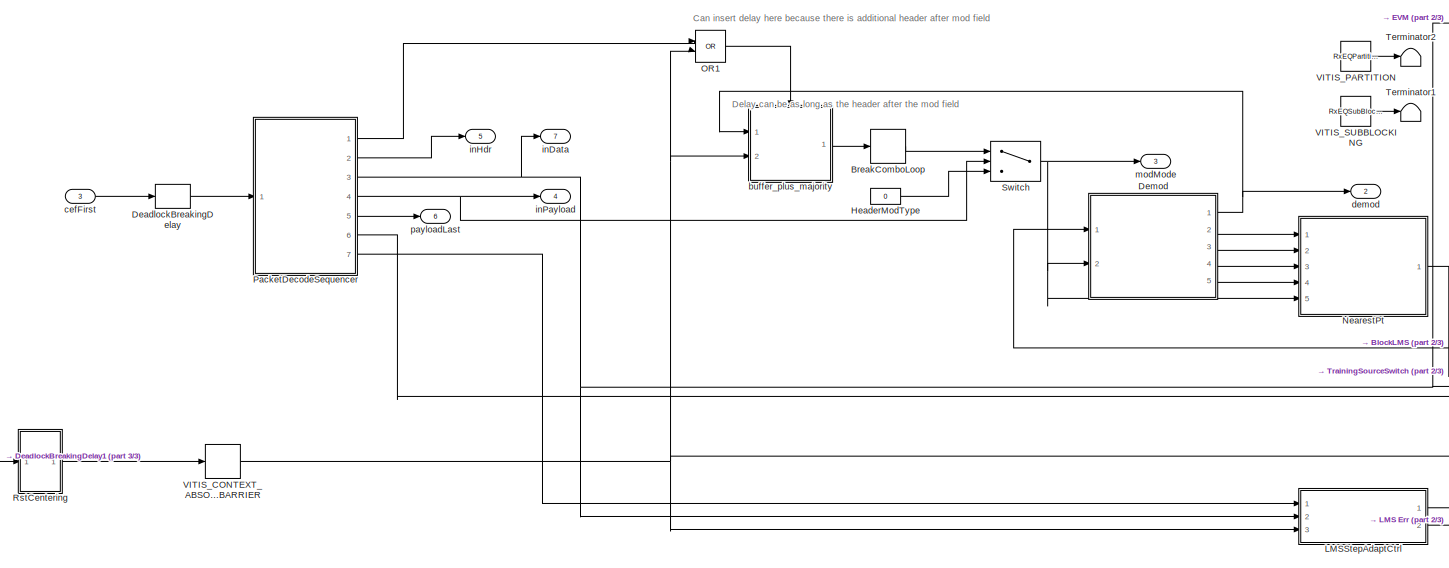
[diagram: receiver/rx/SymbolDomainOuter/VITIS_CLOCK_DOMAIN_SymbolDomain/EQ - part 1/3, center side, full height]
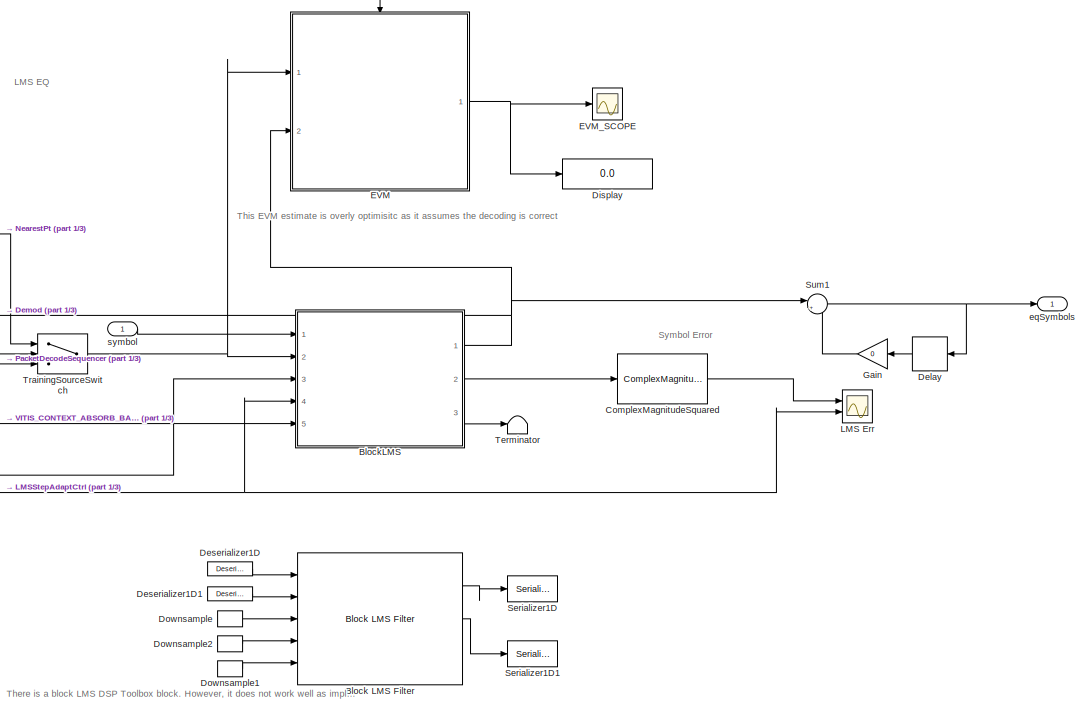
[diagram: receiver/rx/SymbolDomainOuter/VITIS_CLOCK_DOMAIN_SymbolDomain/EQ - part 2/3, right side, full height]
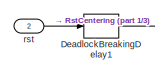
[diagram: receiver/rx/SymbolDomainOuter/VITIS_CLOCK_DOMAIN_SymbolDomain/EQ - part 3/3, middle left region]
BLOCK [SubSystem] receiver/rx/SymbolDomainOuter/VITIS_CLOCK_DOMAIN_SymbolDomain/EQ
  Ports = [3, 7]
  RequestExecContextInheritance = off
BLOCK [Reference] receiver/rx/SymbolDomainOuter/VITIS_CLOCK_DOMAIN_SymbolDomain/EQ/Block LMS Filter  REF=dspadpt3/Block LMS Filter
  Commented = on
  Ports = [5, 3]
  SourceBlock = dspadpt3/Block LMS Filter
  SourceProductBaseCode = DS
  SourceType = Block LMS Filter
BLOCK [SubSystem] receiver/rx/SymbolDomainOuter/VITIS_CLOCK_DOMAIN_SymbolDomain/EQ/BlockLMS
  Ports = [5, 3]
  RequestExecContextInheritance = off
BLOCK [SubSystem] receiver/rx/SymbolDomainOuter/VITIS_CLOCK_DOMAIN_SymbolDomain/EQ/BlockLMS/AdaptCoefs
  Ports = [5, 1]
  RequestExecContextInheritance = off
BLOCK [SubSystem] receiver/rx/SymbolDomainOuter/VITIS_CLOCK_DOMAIN_SymbolDomain/EQ/BlockLMS/AdaptCoefs/CoefUpdate
  Ports = [2, 1]
  RequestExecContextInheritance = off
BLOCK [SubSystem] receiver/rx/SymbolDomainOuter/VITIS_CLOCK_DOMAIN_SymbolDomain/EQ/BlockLMS/AdaptCoefs/CoefUpdate/BreakComboLoop
  Ports = [1, 1]
  RequestExecContextInheritance = off
BLOCK [Delay] receiver/rx/SymbolDomainOuter/VITIS_CLOCK_DOMAIN_SymbolDomain/EQ/BlockLMS/AdaptCoefs/CoefUpdate/BreakComboLoop/BreakComboInOuterClkDomain
  DelayLength = 1
  InputPortMap = u0
  Ports = [1, 1]
BLOCK [Inport] receiver/rx/SymbolDomainOuter/VITIS_CLOCK_DOMAIN_SymbolDomain/EQ/BlockLMS/AdaptCoefs/CoefUpdate/BreakComboLoop/In1
BLOCK [Outport] receiver/rx/SymbolDomainOuter/VITIS_CLOCK_DOMAIN_SymbolDomain/EQ/BlockLMS/AdaptCoefs/CoefUpdate/BreakComboLoop/Out1
BLOCK [Terminator] receiver/rx/SymbolDomainOuter/VITIS_CLOCK_DOMAIN_SymbolDomain/EQ/BlockLMS/AdaptCoefs/CoefUpdate/BreakComboLoop/Terminator1
BLOCK [Terminator] receiver/rx/SymbolDomainOuter/VITIS_CLOCK_DOMAIN_SymbolDomain/EQ/BlockLMS/AdaptCoefs/CoefUpdate/BreakComboLoop/Terminator2
BLOCK [Delay] receiver/rx/SymbolDomainOuter/VITIS_CLOCK_DOMAIN_SymbolDomain/EQ/BlockLMS/AdaptCoefs/CoefUpdate/BreakComboLoop/VITIS_CONTEXT_ABSORB_BARRIER_1
  DelayLength = 0
  InputPortMap = u0
  Ports = [1, 1]
BLOCK [Constant] receiver/rx/SymbolDomainOuter/VITIS_CLOCK_DOMAIN_SymbolDomain/EQ/BlockLMS/AdaptCoefs/CoefUpdate/BreakComboLoop/VITIS_PARTITION
  Value = RxEQPartition
BLOCK [Constant] receiver/rx/SymbolDomainOuter/VITIS_CLOCK_DOMAIN_SymbolDomain/EQ/BlockLMS/AdaptCoefs/CoefUpdate/BreakComboLoop/VITIS_SUBBLOCKING
  Value = RxEQSubBlocking
BLOCK [Outport] receiver/rx/SymbolDomainOuter/VITIS_CLOCK_DOMAIN_SymbolDomain/EQ/BlockLMS/AdaptCoefs/CoefUpdate/Coefs
BLOCK [SubSystem] receiver/rx/SymbolDomainOuter/VITIS_CLOCK_DOMAIN_SymbolDomain/EQ/BlockLMS/AdaptCoefs/CoefUpdate/HoldReset
  Ports = [1, 1]
  RequestExecContextInheritance = off
BLOCK [Logic] receiver/rx/SymbolDomainOuter/VITIS_CLOCK_DOMAIN_SymbolDomain/EQ/BlockLMS/AdaptCoefs/CoefUpdate/HoldReset/AND
  AllPortsSameDT = off
  IconShape = distinctive
  OutDataTypeStr = boolean
  Ports = [2, 1]
BLOCK [Reference] receiver/rx/SymbolDomainOuter/VITIS_CLOCK_DOMAIN_SymbolDomain/EQ/BlockLMS/AdaptCoefs/CoefUpdate/HoldReset/Compare To Constant  REF=simulink/Logic and Bit
Operations/Compare
To Constant
  Ports = [1, 1]
  SourceBlock = simulink/Logic and Bit\nOperations/Compare\nTo Constant
  SourceProductBaseCode = SL
  SourceType = Compare To Constant
BLOCK [Constant] receiver/rx/SymbolDomainOuter/VITIS_CLOCK_DOMAIN_SymbolDomain/EQ/BlockLMS/AdaptCoefs/CoefUpdate/HoldReset/Constant3
  OutDataTypeStr = int8
  Value = eqPipeline-1
BLOCK [Constant] receiver/rx/SymbolDomainOuter/VITIS_CLOCK_DOMAIN_SymbolDomain/EQ/BlockLMS/AdaptCoefs/CoefUpdate/HoldReset/Constant4
  OutDataTypeStr = Inherit: Inherit via back propagation
BLOCK [Delay] receiver/rx/SymbolDomainOuter/VITIS_CLOCK_DOMAIN_SymbolDomain/EQ/BlockLMS/AdaptCoefs/CoefUpdate/HoldReset/Delay3
  DelayLength = 1
  InputPortMap = u0
  Ports = [1, 1]
BLOCK [Delay] receiver/rx/SymbolDomainOuter/VITIS_CLOCK_DOMAIN_SymbolDomain/EQ/BlockLMS/AdaptCoefs/CoefUpdate/HoldReset/Delay4
  DelayLength = 1
  InputPortMap = u0
  Ports = [1, 1]
BLOCK [Inport] receiver/rx/SymbolDomainOuter/VITIS_CLOCK_DOMAIN_SymbolDomain/EQ/BlockLMS/AdaptCoefs/CoefUpdate/HoldReset/In1
BLOCK [Logic] receiver/rx/SymbolDomainOuter/VITIS_CLOCK_DOMAIN_SymbolDomain/EQ/BlockLMS/AdaptCoefs/CoefUpdate/HoldReset/NOT
  AllPortsSameDT = off
  IconShape = distinctive
  Operator = NOT
  OutDataTypeStr = boolean
  Ports = [1, 1]
BLOCK [Logic] receiver/rx/SymbolDomainOuter/VITIS_CLOCK_DOMAIN_SymbolDomain/EQ/BlockLMS/AdaptCoefs/CoefUpdate/HoldReset/OR1
  AllPortsSameDT = off
  IconShape = distinctive
  Operator = OR
  OutDataTypeStr = boolean
  Ports = [2, 1]
BLOCK [Outport] receiver/rx/SymbolDomainOuter/VITIS_CLOCK_DOMAIN_SymbolDomain/EQ/BlockLMS/AdaptCoefs/CoefUpdate/HoldReset/Out1
BLOCK [Sum] receiver/rx/SymbolDomainOuter/VITIS_CLOCK_DOMAIN_SymbolDomain/EQ/BlockLMS/AdaptCoefs/CoefUpdate/HoldReset/Sum2
  Inputs = |+-
  Ports = [2, 1]
BLOCK [Switch] receiver/rx/SymbolDomainOuter/VITIS_CLOCK_DOMAIN_SymbolDomain/EQ/BlockLMS/AdaptCoefs/CoefUpdate/HoldReset/Switch3
  Criteria = u2 > Threshold
  InputSameDT = off
  SaturateOnIntegerOverflow = off
BLOCK [Switch] receiver/rx/SymbolDomainOuter/VITIS_CLOCK_DOMAIN_SymbolDomain/EQ/BlockLMS/AdaptCoefs/CoefUpdate/HoldReset/Switch4
  Criteria = u2 > Threshold
  InputSameDT = off
  SaturateOnIntegerOverflow = off
BLOCK [SubSystem] receiver/rx/SymbolDomainOuter/VITIS_CLOCK_DOMAIN_SymbolDomain/EQ/BlockLMS/AdaptCoefs/CoefUpdate/VITIS_CLOCK_DOMAIN_UpdateCoefsEveryN
  Ports = [2, 1]
  RequestExecContextInheritance = off
BLOCK [Outport] receiver/rx/SymbolDomainOuter/VITIS_CLOCK_DOMAIN_SymbolDomain/EQ/BlockLMS/AdaptCoefs/CoefUpdate/VITIS_CLOCK_DOMAIN_UpdateCoefsEveryN/Coefs
BLOCK [Constant] receiver/rx/SymbolDomainOuter/VITIS_CLOCK_DOMAIN_SymbolDomain/EQ/BlockLMS/AdaptCoefs/CoefUpdate/VITIS_CLOCK_DOMAIN_UpdateCoefsEveryN/Constant2
  OutDataTypeStr = Inherit: Inherit via back propagation
  Value = complex(flip(cat(1,zeros(lmsEqDepth/2-1,1), [1], zeros(lmsEqDepth/2,1))))
BLOCK [Delay] receiver/rx/SymbolDomainOuter/VITIS_CLOCK_DOMAIN_SymbolDomain/EQ/BlockLMS/AdaptCoefs/CoefUpdate/VITIS_CLOCK_DOMAIN_UpdateCoefsEveryN/Delay2
  DelayLength = 1
  InitialCondition = complex(cat(1,zeros(lmsEqDepth/2-1,1), [1], zeros(lmsEqDepth/2,1)))
  InputPortMap = u0
  Ports = [1, 1]
BLOCK [DownSample] receiver/rx/SymbolDomainOuter/VITIS_CLOCK_DOMAIN_SymbolDomain/EQ/BlockLMS/AdaptCoefs/CoefUpdate/VITIS_CLOCK_DOMAIN_UpdateCoefsEveryN/Downsample
  InputProcessing = Elements as channels (sample based)
  N = eqBatchSize
  RateOptions = Allow multirate processing
BLOCK [DownSample] receiver/rx/SymbolDomainOuter/VITIS_CLOCK_DOMAIN_SymbolDomain/EQ/BlockLMS/AdaptCoefs/CoefUpdate/VITIS_CLOCK_DOMAIN_UpdateCoefsEveryN/Downsample1
  InputProcessing = Elements as channels (sample based)
  N = eqBatchSize
  RateOptions = Allow multirate processing
BLOCK [Inport] receiver/rx/SymbolDomainOuter/VITIS_CLOCK_DOMAIN_SymbolDomain/EQ/BlockLMS/AdaptCoefs/CoefUpdate/VITIS_CLOCK_DOMAIN_UpdateCoefsEveryN/In2
  Port = 2
BLOCK [Reshape] receiver/rx/SymbolDomainOuter/VITIS_CLOCK_DOMAIN_SymbolDomain/EQ/BlockLMS/AdaptCoefs/CoefUpdate/VITIS_CLOCK_DOMAIN_UpdateCoefsEveryN/Reshape
  Ports = [1, 1]
BLOCK [Sum] receiver/rx/SymbolDomainOuter/VITIS_CLOCK_DOMAIN_SymbolDomain/EQ/BlockLMS/AdaptCoefs/CoefUpdate/VITIS_CLOCK_DOMAIN_UpdateCoefsEveryN/Sum of Elements
  CollapseMode = Specified dimension
  IconShape = rectangular
  Inputs = +
  Ports = [1, 1]
BLOCK [Sum] receiver/rx/SymbolDomainOuter/VITIS_CLOCK_DOMAIN_SymbolDomain/EQ/BlockLMS/AdaptCoefs/CoefUpdate/VITIS_CLOCK_DOMAIN_UpdateCoefsEveryN/Sum1
  Inputs = |++
  Ports = [2, 1]
BLOCK [Switch] receiver/rx/SymbolDomainOuter/VITIS_CLOCK_DOMAIN_SymbolDomain/EQ/BlockLMS/AdaptCoefs/CoefUpdate/VITIS_CLOCK_DOMAIN_UpdateCoefsEveryN/Switch1
  Criteria = u2 > Threshold
  InputSameDT = off
  SaturateOnIntegerOverflow = off
BLOCK [SubSystem] receiver/rx/SymbolDomainOuter/VITIS_CLOCK_DOMAIN_SymbolDomain/EQ/BlockLMS/AdaptCoefs/CoefUpdate/VITIS_CLOCK_DOMAIN_UpdateCoefsEveryN/ToCorrection
  Ports = [1, 1]
  RequestExecContextInheritance = off
BLOCK [Delay] receiver/rx/SymbolDomainOuter/VITIS_CLOCK_DOMAIN_SymbolDomain/EQ/BlockLMS/AdaptCoefs/CoefUpdate/VITIS_CLOCK_DOMAIN_UpdateCoefsEveryN/ToCorrection/BreakComboLoopForCorrection
  DelayLength = eqPipeline/eqBatchSize
  InputPortMap = u0
  Ports = [1, 1]
BLOCK [Inport] receiver/rx/SymbolDomainOuter/VITIS_CLOCK_DOMAIN_SymbolDomain/EQ/BlockLMS/AdaptCoefs/CoefUpdate/VITIS_CLOCK_DOMAIN_UpdateCoefsEveryN/ToCorrection/In1
BLOCK [Outport] receiver/rx/SymbolDomainOuter/VITIS_CLOCK_DOMAIN_SymbolDomain/EQ/BlockLMS/AdaptCoefs/CoefUpdate/VITIS_CLOCK_DOMAIN_UpdateCoefsEveryN/ToCorrection/Out1
BLOCK [Reference] receiver/rx/SymbolDomainOuter/VITIS_CLOCK_DOMAIN_SymbolDomain/EQ/BlockLMS/AdaptCoefs/CoefUpdate/VITIS_CLOCK_DOMAIN_UpdateCoefsEveryN/ToCorrection/Repeat  REF=dspsigops/Repeat
  Ports = [1, 1]
  SourceBlock = dspsigops/Repeat
  SourceProductBaseCode = DS
  SourceType = Repeat
  UserDataPersistent = on
BLOCK [Terminator] receiver/rx/SymbolDomainOuter/VITIS_CLOCK_DOMAIN_SymbolDomain/EQ/BlockLMS/AdaptCoefs/CoefUpdate/VITIS_CLOCK_DOMAIN_UpdateCoefsEveryN/ToCorrection/Terminator1
BLOCK [Terminator] receiver/rx/SymbolDomainOuter/VITIS_CLOCK_DOMAIN_SymbolDomain/EQ/BlockLMS/AdaptCoefs/CoefUpdate/VITIS_CLOCK_DOMAIN_UpdateCoefsEveryN/ToCorrection/Terminator2
BLOCK [Delay] receiver/rx/SymbolDomainOuter/VITIS_CLOCK_DOMAIN_SymbolDomain/EQ/BlockLMS/AdaptCoefs/CoefUpdate/VITIS_CLOCK_DOMAIN_UpdateCoefsEveryN/ToCorrection/VITIS_CONTEXT_ABSORB_BARRIER
  DelayLength = 0
  InputPortMap = u0
  Ports = [1, 1]
BLOCK [Constant] receiver/rx/SymbolDomainOuter/VITIS_CLOCK_DOMAIN_SymbolDomain/EQ/BlockLMS/AdaptCoefs/CoefUpdate/VITIS_CLOCK_DOMAIN_UpdateCoefsEveryN/ToCorrection/VITIS_PARTITION
  Value = RxEQPartition
BLOCK [Constant] receiver/rx/SymbolDomainOuter/VITIS_CLOCK_DOMAIN_SymbolDomain/EQ/BlockLMS/AdaptCoefs/CoefUpdate/VITIS_CLOCK_DOMAIN_UpdateCoefsEveryN/ToCorrection/VITIS_SUBBLOCKING
  Value = RxEQSubBlocking
BLOCK [Delay] receiver/rx/SymbolDomainOuter/VITIS_CLOCK_DOMAIN_SymbolDomain/EQ/BlockLMS/AdaptCoefs/CoefUpdate/VITIS_CLOCK_DOMAIN_UpdateCoefsEveryN/VITIS_CONTEXT_ABSORB_BARRIER
  DelayLength = 0
  InputPortMap = u0
  Ports = [1, 1]
BLOCK [Inport] receiver/rx/SymbolDomainOuter/VITIS_CLOCK_DOMAIN_SymbolDomain/EQ/BlockLMS/AdaptCoefs/CoefUpdate/VITIS_CLOCK_DOMAIN_UpdateCoefsEveryN/rst
BLOCK [Delay] receiver/rx/SymbolDomainOuter/VITIS_CLOCK_DOMAIN_SymbolDomain/EQ/BlockLMS/AdaptCoefs/CoefUpdate/VITIS_CONTEXT_ABSORB_BARRIER_1
  DelayLength = 0
  InputPortMap = u0
  Ports = [1, 1]
BLOCK [Delay] receiver/rx/SymbolDomainOuter/VITIS_CLOCK_DOMAIN_SymbolDomain/EQ/BlockLMS/AdaptCoefs/CoefUpdate/VITIS_CONTEXT_ABSORB_BARRIER_2
  DelayLength = 0
  InputPortMap = u0
  Ports = [1, 1]
BLOCK [SubSystem] receiver/rx/SymbolDomainOuter/VITIS_CLOCK_DOMAIN_SymbolDomain/EQ/BlockLMS/AdaptCoefs/CoefUpdate/VectorTappedDelay
  Commented = on
  Ports = [1, 1]
  RequestExecContextInheritance = off
BLOCK [Delay] receiver/rx/SymbolDomainOuter/VITIS_CLOCK_DOMAIN_SymbolDomain/EQ/BlockLMS/AdaptCoefs/CoefUpdate/VectorTappedDelay/Delay10
  DelayLength = 1
  InputPortMap = u0
  NameLocation = right
  Ports = [1, 1]
BLOCK [Delay] receiver/rx/SymbolDomainOuter/VITIS_CLOCK_DOMAIN_SymbolDomain/EQ/BlockLMS/AdaptCoefs/CoefUpdate/VectorTappedDelay/Delay11
  DelayLength = 1
  InputPortMap = u0
  NameLocation = right
  Ports = [1, 1]
BLOCK [Delay] receiver/rx/SymbolDomainOuter/VITIS_CLOCK_DOMAIN_SymbolDomain/EQ/BlockLMS/AdaptCoefs/CoefUpdate/VectorTappedDelay/Delay12
  DelayLength = 1
  InputPortMap = u0
  NameLocation = left
  Ports = [1, 1]
BLOCK [Delay] receiver/rx/SymbolDomainOuter/VITIS_CLOCK_DOMAIN_SymbolDomain/EQ/BlockLMS/AdaptCoefs/CoefUpdate/VectorTappedDelay/Delay5
  DelayLength = 1
  InputPortMap = u0
  NameLocation = right
  Ports = [1, 1]
BLOCK [Delay] receiver/rx/SymbolDomainOuter/VITIS_CLOCK_DOMAIN_SymbolDomain/EQ/BlockLMS/AdaptCoefs/CoefUpdate/VectorTappedDelay/Delay6
  DelayLength = 1
  InputPortMap = u0
  NameLocation = right
  Ports = [1, 1]
BLOCK [Delay] receiver/rx/SymbolDomainOuter/VITIS_CLOCK_DOMAIN_SymbolDomain/EQ/BlockLMS/AdaptCoefs/CoefUpdate/VectorTappedDelay/Delay7
  DelayLength = 1
  InputPortMap = u0
  NameLocation = right
  Ports = [1, 1]
BLOCK [Delay] receiver/rx/SymbolDomainOuter/VITIS_CLOCK_DOMAIN_SymbolDomain/EQ/BlockLMS/AdaptCoefs/CoefUpdate/VectorTappedDelay/Delay8
  DelayLength = 1
  InputPortMap = u0
  NameLocation = right
  Ports = [1, 1]
BLOCK [Delay] receiver/rx/SymbolDomainOuter/VITIS_CLOCK_DOMAIN_SymbolDomain/EQ/BlockLMS/AdaptCoefs/CoefUpdate/VectorTappedDelay/Delay9
  DelayLength = 1
  InputPortMap = u0
  NameLocation = right
  Ports = [1, 1]
BLOCK [Inport] receiver/rx/SymbolDomainOuter/VITIS_CLOCK_DOMAIN_SymbolDomain/EQ/BlockLMS/AdaptCoefs/CoefUpdate/VectorTappedDelay/In1
BLOCK [Concatenate] receiver/rx/SymbolDomainOuter/VITIS_CLOCK_DOMAIN_SymbolDomain/EQ/BlockLMS/AdaptCoefs/CoefUpdate/VectorTappedDelay/Matrix Concatenate
  ConcatenateDimension = 2
  Mode = Multidimensional array
  NumInputs = 8
  Ports = [8, 1]
BLOCK [Outport] receiver/rx/SymbolDomainOuter/VITIS_CLOCK_DOMAIN_SymbolDomain/EQ/BlockLMS/AdaptCoefs/CoefUpdate/VectorTappedDelay/Out1
BLOCK [Reference] receiver/rx/SymbolDomainOuter/VITIS_CLOCK_DOMAIN_SymbolDomain/EQ/BlockLMS/AdaptCoefs/CoefUpdate/VectorTappedDelay_startingWithOldest_  REF=rev1CyclopsLib/VectorTappedDelay_startingWithOldest
  Ports = [1, 1]
  SourceBlock = rev1CyclopsLib/VectorTappedDelay_startingWithOldest
BLOCK [Inport] receiver/rx/SymbolDomainOuter/VITIS_CLOCK_DOMAIN_SymbolDomain/EQ/BlockLMS/AdaptCoefs/CoefUpdate/corrections
BLOCK [Inport] receiver/rx/SymbolDomainOuter/VITIS_CLOCK_DOMAIN_SymbolDomain/EQ/BlockLMS/AdaptCoefs/CoefUpdate/rst
  Port = 2
BLOCK [Outport] receiver/rx/SymbolDomainOuter/VITIS_CLOCK_DOMAIN_SymbolDomain/EQ/BlockLMS/AdaptCoefs/Coefs
BLOCK [Reference] receiver/rx/SymbolDomainOuter/VITIS_CLOCK_DOMAIN_SymbolDomain/EQ/BlockLMS/AdaptCoefs/ComplexConj  REF=rev1CyclopsLib/ComplexConj
  Ports = [1, 1]
  SourceBlock = rev1CyclopsLib/ComplexConj
  SourceType = SubSystem
BLOCK [Constant] receiver/rx/SymbolDomainOuter/VITIS_CLOCK_DOMAIN_SymbolDomain/EQ/BlockLMS/AdaptCoefs/Constant
  OutDataTypeStr = Inherit: Inherit via back propagation
  Value = complex(0)
BLOCK [Delay] receiver/rx/SymbolDomainOuter/VITIS_CLOCK_DOMAIN_SymbolDomain/EQ/BlockLMS/AdaptCoefs/DeadlockBreakingDelay2
  DelayLength = packetRxControllerDataPackerDeadlockResolvingDelay
  InputPortMap = u0
  Ports = [1, 1]
BLOCK [Reference] receiver/rx/SymbolDomainOuter/VITIS_CLOCK_DOMAIN_SymbolDomain/EQ/BlockLMS/AdaptCoefs/Feedback Taps  REF=simulink/Discrete/Tapped Delay
  Ports = [1, 1]
  SourceBlock = simulink/Discrete/Tapped Delay
  SourceProductBaseCode = SL
  SourceType = Tapped Delay Line
BLOCK [Inport] receiver/rx/SymbolDomainOuter/VITIS_CLOCK_DOMAIN_SymbolDomain/EQ/BlockLMS/AdaptCoefs/In4
  Port = 4
BLOCK [Product] receiver/rx/SymbolDomainOuter/VITIS_CLOCK_DOMAIN_SymbolDomain/EQ/BlockLMS/AdaptCoefs/Product
  NameLocation = left
  OutDataTypeStr = Inherit: Same as first input
  Ports = [2, 1]
BLOCK [Product] receiver/rx/SymbolDomainOuter/VITIS_CLOCK_DOMAIN_SymbolDomain/EQ/BlockLMS/AdaptCoefs/Product1
  OutDataTypeStr = Inherit: Same as first input
  Ports = [2, 1]
BLOCK [Switch] receiver/rx/SymbolDomainOuter/VITIS_CLOCK_DOMAIN_SymbolDomain/EQ/BlockLMS/AdaptCoefs/Switch
  Criteria = u2 ~= 0
  InputSameDT = off
  SaturateOnIntegerOverflow = off
BLOCK [Terminator] receiver/rx/SymbolDomainOuter/VITIS_CLOCK_DOMAIN_SymbolDomain/EQ/BlockLMS/AdaptCoefs/Terminator1
BLOCK [Terminator] receiver/rx/SymbolDomainOuter/VITIS_CLOCK_DOMAIN_SymbolDomain/EQ/BlockLMS/AdaptCoefs/Terminator2
BLOCK [Constant] receiver/rx/SymbolDomainOuter/VITIS_CLOCK_DOMAIN_SymbolDomain/EQ/BlockLMS/AdaptCoefs/VITIS_PARTITION
  Value = RxEQ2Partition
BLOCK [Constant] receiver/rx/SymbolDomainOuter/VITIS_CLOCK_DOMAIN_SymbolDomain/EQ/BlockLMS/AdaptCoefs/VITIS_SUBBLOCKING
  Value = RxEQ2SubBlocking
BLOCK [Inport] receiver/rx/SymbolDomainOuter/VITIS_CLOCK_DOMAIN_SymbolDomain/EQ/BlockLMS/AdaptCoefs/error
BLOCK [Inport] receiver/rx/SymbolDomainOuter/VITIS_CLOCK_DOMAIN_SymbolDomain/EQ/BlockLMS/AdaptCoefs/input
  Port = 2
BLOCK [Inport] receiver/rx/SymbolDomainOuter/VITIS_CLOCK_DOMAIN_SymbolDomain/EQ/BlockLMS/AdaptCoefs/rst
  Port = 5
BLOCK [Inport] receiver/rx/SymbolDomainOuter/VITIS_CLOCK_DOMAIN_SymbolDomain/EQ/BlockLMS/AdaptCoefs/stepSize
  Port = 3
BLOCK [Outport] receiver/rx/SymbolDomainOuter/VITIS_CLOCK_DOMAIN_SymbolDomain/EQ/BlockLMS/Coefs
  Port = 3
BLOCK [Delay] receiver/rx/SymbolDomainOuter/VITIS_CLOCK_DOMAIN_SymbolDomain/EQ/BlockLMS/DeadlockBreakingDelay2
  DelayLength = packetRxControllerDataPackerDeadlockResolvingDelay
  InputPortMap = u0
  Ports = [1, 1]
BLOCK [DiscreteFir] receiver/rx/SymbolDomainOuter/VITIS_CLOCK_DOMAIN_SymbolDomain/EQ/BlockLMS/Discrete FIR Filter
  CoefSource = Input port
  Commented = on
  InputPortMap = u0,u1
  OutputPortMap = o0
  Ports = [2, 1]
BLOCK [Outport] receiver/rx/SymbolDomainOuter/VITIS_CLOCK_DOMAIN_SymbolDomain/EQ/BlockLMS/Error
  Port = 2
BLOCK [Inport] receiver/rx/SymbolDomainOuter/VITIS_CLOCK_DOMAIN_SymbolDomain/EQ/BlockLMS/ExpectedSymbols
  Port = 2
BLOCK [SubSystem] receiver/rx/SymbolDomainOuter/VITIS_CLOCK_DOMAIN_SymbolDomain/EQ/BlockLMS/FIR Oldest First
  Ports = [2, 1]
  RequestExecContextInheritance = off
BLOCK [Inport] receiver/rx/SymbolDomainOuter/VITIS_CLOCK_DOMAIN_SymbolDomain/EQ/BlockLMS/FIR Oldest First/Coefs
  Port = 2
BLOCK [Reference] receiver/rx/SymbolDomainOuter/VITIS_CLOCK_DOMAIN_SymbolDomain/EQ/BlockLMS/FIR Oldest First/ComplexDotProductNoConj_  REF=rev1CyclopsLib/ComplexDotProductNoConj
  Ports = [2, 1]
  SourceBlock = rev1CyclopsLib/ComplexDotProductNoConj
  SourceType = SubSystem
BLOCK [Reference] receiver/rx/SymbolDomainOuter/VITIS_CLOCK_DOMAIN_SymbolDomain/EQ/BlockLMS/FIR Oldest First/Feedback Taps1  REF=simulink/Discrete/Tapped Delay
  Ports = [1, 1]
  SourceBlock = simulink/Discrete/Tapped Delay
  SourceProductBaseCode = SL
  SourceType = Tapped Delay Line
BLOCK [Inport] receiver/rx/SymbolDomainOuter/VITIS_CLOCK_DOMAIN_SymbolDomain/EQ/BlockLMS/FIR Oldest First/In1
BLOCK [Outport] receiver/rx/SymbolDomainOuter/VITIS_CLOCK_DOMAIN_SymbolDomain/EQ/BlockLMS/FIR Oldest First/Out1
BLOCK [Inport] receiver/rx/SymbolDomainOuter/VITIS_CLOCK_DOMAIN_SymbolDomain/EQ/BlockLMS/StepSize
  Port = 3
BLOCK [Sum] receiver/rx/SymbolDomainOuter/VITIS_CLOCK_DOMAIN_SymbolDomain/EQ/BlockLMS/Sum
  Inputs = |+-
  OutDataTypeStr = Inherit: Same as first input
  Ports = [2, 1]
BLOCK [Inport] receiver/rx/SymbolDomainOuter/VITIS_CLOCK_DOMAIN_SymbolDomain/EQ/BlockLMS/SymbolsIn
BLOCK [Outport] receiver/rx/SymbolDomainOuter/VITIS_CLOCK_DOMAIN_SymbolDomain/EQ/BlockLMS/SymbolsOut
BLOCK [Inport] receiver/rx/SymbolDomainOuter/VITIS_CLOCK_DOMAIN_SymbolDomain/EQ/BlockLMS/adapt
  Port = 4
BLOCK [Inport] receiver/rx/SymbolDomainOuter/VITIS_CLOCK_DOMAIN_SymbolDomain/EQ/BlockLMS/rst
  Port = 5
BLOCK [Delay] receiver/rx/SymbolDomainOuter/VITIS_CLOCK_DOMAIN_SymbolDomain/EQ/BreakComboLoop
  DelayLength = unrollFactor
  InputPortMap = u0
  Ports = [1, 1]
BLOCK [Reference] receiver/rx/SymbolDomainOuter/VITIS_CLOCK_DOMAIN_SymbolDomain/EQ/ComplexMagnitudeSquared  REF=rev1CyclopsLib/ComplexMagnitudeSquared
  Ports = [1, 1]
  SourceBlock = rev1CyclopsLib/ComplexMagnitudeSquared
  SourceType = SubSystem
BLOCK [Delay] receiver/rx/SymbolDomainOuter/VITIS_CLOCK_DOMAIN_SymbolDomain/EQ/DeadlockBreakingDelay
  DelayLength = packetRxControllerDataPackerDeadlockResolvingDelay
  InputPortMap = u0
  Ports = [1, 1]
BLOCK [Delay] receiver/rx/SymbolDomainOuter/VITIS_CLOCK_DOMAIN_SymbolDomain/EQ/DeadlockBreakingDelay1
  DelayLength = packetRxControllerDataPackerDeadlockResolvingDelay
  InputPortMap = u0
  Ports = [1, 1]
BLOCK [Delay] receiver/rx/SymbolDomainOuter/VITIS_CLOCK_DOMAIN_SymbolDomain/EQ/Delay
  DelayLength = 1
  InputPortMap = u0
  Ports = [1, 1]
BLOCK [SubSystem] receiver/rx/SymbolDomainOuter/VITIS_CLOCK_DOMAIN_SymbolDomain/EQ/Demod
  Ports = [2, 5]
  RequestExecContextInheritance = off
BLOCK [Reference] receiver/rx/SymbolDomainOuter/VITIS_CLOCK_DOMAIN_SymbolDomain/EQ/Demod/BPSK Demodulator Baseband  REF=commdigbbndpm3/BPSK
Demodulator
Baseband
  Ports = [1, 1]
  SourceBlock = commdigbbndpm3/BPSK\nDemodulator\nBaseband
  SourceProductBaseCode = CM
  SourceType = BPSK Demodulator Baseband
BLOCK [Outport] receiver/rx/SymbolDomainOuter/VITIS_CLOCK_DOMAIN_SymbolDomain/EQ/Demod/BPSKSymbol
  Port = 2
BLOCK [Gain] receiver/rx/SymbolDomainOuter/VITIS_CLOCK_DOMAIN_SymbolDomain/EQ/Demod/Gain
  Gain = qam16_demod_scale_factor
BLOCK [Gain] receiver/rx/SymbolDomainOuter/VITIS_CLOCK_DOMAIN_SymbolDomain/EQ/Demod/Gain1
  Gain = qam256_demod_scale_factor
BLOCK [MultiPortSwitch] receiver/rx/SymbolDomainOuter/VITIS_CLOCK_DOMAIN_SymbolDomain/EQ/Demod/Multiport Switch
  DataPortOrder = Zero-based contiguous
  InputSameDT = off
  Inputs = 4
  Ports = [5, 1]
  SaturateOnIntegerOverflow = off
  zeroidx = on
BLOCK [Outport] receiver/rx/SymbolDomainOuter/VITIS_CLOCK_DOMAIN_SymbolDomain/EQ/Demod/QAM16Symbol
  Port = 4
BLOCK [Outport] receiver/rx/SymbolDomainOuter/VITIS_CLOCK_DOMAIN_SymbolDomain/EQ/Demod/QAM256Symbol
  Port = 5
BLOCK [Reference] receiver/rx/SymbolDomainOuter/VITIS_CLOCK_DOMAIN_SymbolDomain/EQ/Demod/QPSK Demodulator Baseband  REF=commdigbbndpm3/QPSK
Demodulator
Baseband
  Ports = [1, 1]
  SourceBlock = commdigbbndpm3/QPSK\nDemodulator\nBaseband
  SourceProductBaseCode = CM
  SourceType = QPSK Demodulator Baseband
BLOCK [Outport] receiver/rx/SymbolDomainOuter/VITIS_CLOCK_DOMAIN_SymbolDomain/EQ/Demod/QPSKSymbol
  Port = 3
BLOCK [Reference] receiver/rx/SymbolDomainOuter/VITIS_CLOCK_DOMAIN_SymbolDomain/EQ/Demod/Rectangular QAM Demodulator Baseband  REF=commdigbbndam3/Rectangular QAM
Demodulator
Baseband
  Ports = [1, 1]
  SourceBlock = commdigbbndam3/Rectangular QAM\nDemodulator\nBaseband
  SourceProductBaseCode = CM
  SourceType = Rectangular QAM Demodulator Baseband
BLOCK [Reference] receiver/rx/SymbolDomainOuter/VITIS_CLOCK_DOMAIN_SymbolDomain/EQ/Demod/Rectangular QAM Demodulator Baseband1  REF=commdigbbndam3/Rectangular QAM
Demodulator
Baseband
  Ports = [1, 1]
  SourceBlock = commdigbbndam3/Rectangular QAM\nDemodulator\nBaseband
  SourceProductBaseCode = CM
  SourceType = Rectangular QAM Demodulator Baseband
BLOCK [Outport] receiver/rx/SymbolDomainOuter/VITIS_CLOCK_DOMAIN_SymbolDomain/EQ/Demod/demodOut
BLOCK [Inport] receiver/rx/SymbolDomainOuter/VITIS_CLOCK_DOMAIN_SymbolDomain/EQ/Demod/modulationMode
  Port = 2
BLOCK [Inport] receiver/rx/SymbolDomainOuter/VITIS_CLOCK_DOMAIN_SymbolDomain/EQ/Demod/symbolIn
BLOCK [Reference] receiver/rx/SymbolDomainOuter/VITIS_CLOCK_DOMAIN_SymbolDomain/EQ/Deserializer1D  REF=hdlsllib/HDL Operations/Deserializer1D
  Commented = on
  Ports = [1, 1]
  SourceBlock = hdlsllib/HDL Operations/Deserializer1D
  SourceProductBaseCode = SL
  SourceType = Deserializer1D
BLOCK [Reference] receiver/rx/SymbolDomainOuter/VITIS_CLOCK_DOMAIN_SymbolDomain/EQ/Deserializer1D1  REF=hdlsllib/HDL Operations/Deserializer1D
  Commented = on
  Ports = [1, 1]
  SourceBlock = hdlsllib/HDL Operations/Deserializer1D
  SourceProductBaseCode = SL
  SourceType = Deserializer1D
BLOCK [Display] receiver/rx/SymbolDomainOuter/VITIS_CLOCK_DOMAIN_SymbolDomain/EQ/Display
  Commented = on
  Decimation = 1
  Ports = [1]
BLOCK [DownSample] receiver/rx/SymbolDomainOuter/VITIS_CLOCK_DOMAIN_SymbolDomain/EQ/Downsample
  Commented = on
  InputProcessing = Elements as channels (sample based)
  N = eqBatchSize
  RateOptions = Allow multirate processing
BLOCK [DownSample] receiver/rx/SymbolDomainOuter/VITIS_CLOCK_DOMAIN_SymbolDomain/EQ/Downsample1
  Commented = on
  InputProcessing = Elements as channels (sample based)
  N = eqBatchSize
  RateOptions = Allow multirate processing
BLOCK [DownSample] receiver/rx/SymbolDomainOuter/VITIS_CLOCK_DOMAIN_SymbolDomain/EQ/Downsample2
  Commented = on
  InputProcessing = Elements as channels (sample based)
  N = eqBatchSize
  RateOptions = Allow multirate processing
BLOCK [SubSystem] receiver/rx/SymbolDomainOuter/VITIS_CLOCK_DOMAIN_SymbolDomain/EQ/EVM
  Commented = on
  Ports = [2, 1, 1]
  RequestExecContextInheritance = off
BLOCK [Reference] receiver/rx/SymbolDomainOuter/VITIS_CLOCK_DOMAIN_SymbolDomain/EQ/EVM/EVM Measurement  REF=commutil2/EVM Measurement
  Ports = [2, 1]
  SourceBlock = commutil2/EVM Measurement
  SourceProductBaseCode = CM
  SourceType = EVM Measurement
BLOCK [EnablePort] receiver/rx/SymbolDomainOuter/VITIS_CLOCK_DOMAIN_SymbolDomain/EQ/EVM/Enable
  Ports = []
BLOCK [Outport] receiver/rx/SymbolDomainOuter/VITIS_CLOCK_DOMAIN_SymbolDomain/EQ/EVM/Out1
BLOCK [Inport] receiver/rx/SymbolDomainOuter/VITIS_CLOCK_DOMAIN_SymbolDomain/EQ/EVM/Recv
  Port = 2
BLOCK [Inport] receiver/rx/SymbolDomainOuter/VITIS_CLOCK_DOMAIN_SymbolDomain/EQ/EVM/Ref
BLOCK [Scope] receiver/rx/SymbolDomainOuter/VITIS_CLOCK_DOMAIN_SymbolDomain/EQ/EVM_SCOPE
  Commented = on
  Floating = off
  NumInputPorts = 1
  Ports = [1]
  ScopeSpecificationString = Simulink.scopes.TimeScopeBlockCfg('CurrentConfiguration', extmgr.ConfigurationSet(extmgr.Configuration('Core','General UI',true),extmgr.Configuration('Core','Source UI',true),extmgr.Configuration('Sources','WiredSimulink',true,'DataLoggingVariableName','ScopeData2'),extmgr.Configuration('Visuals','Time Domain',true,'SerializedDisplays',{struct('MinYLimReal','-4.16816','MaxYLimReal','10.96106','YLa...<+1487ch>
BLOCK [Gain] receiver/rx/SymbolDomainOuter/VITIS_CLOCK_DOMAIN_SymbolDomain/EQ/Gain
  Gain = 0
BLOCK [Constant] receiver/rx/SymbolDomainOuter/VITIS_CLOCK_DOMAIN_SymbolDomain/EQ/HeaderModType
  OutDataTypeStr = Inherit: Inherit via back propagation
  Value = 0
BLOCK [Scope] receiver/rx/SymbolDomainOuter/VITIS_CLOCK_DOMAIN_SymbolDomain/EQ/LMS Err
  Floating = off
  NumInputPorts = 2
  Ports = [2]
  ScopeSpecificationString = Simulink.scopes.TimeScopeBlockCfg('CurrentConfiguration', extmgr.ConfigurationSet(extmgr.Configuration('Core','General UI',true),extmgr.Configuration('Core','Source UI',true),extmgr.Configuration('Sources','WiredSimulink',true,'DataLoggingVariableName','ScopeData1'),extmgr.Configuration('Visuals','Time Domain',true,'SerializedDisplays',{struct('MinYLimReal','-0.01253','MaxYLimReal','0.02317','YLab...<+1526ch>
BLOCK [SubSystem] receiver/rx/SymbolDomainOuter/VITIS_CLOCK_DOMAIN_SymbolDomain/EQ/LMSStepAdaptCtrl
  Ports = [3, 2]
  RequestExecContextInheritance = off
BLOCK [SubSystem] receiver/rx/SymbolDomainOuter/VITIS_CLOCK_DOMAIN_SymbolDomain/EQ/LMSStepAdaptCtrl/LMSStep
  Ports = [2, 1]
  RequestExecContextInheritance = off
BLOCK [Reference] receiver/rx/SymbolDomainOuter/VITIS_CLOCK_DOMAIN_SymbolDomain/EQ/LMSStepAdaptCtrl/LMSStep/AccumulatorWithCombinationalOutputAndValid1  REF=rev1CyclopsLib/AccumulatorWithCombinationalOutputAndValid
  Ports = [3, 2]
  SourceBlock = rev1CyclopsLib/AccumulatorWithCombinationalOutputAndValid
  SourceType = Accumulator with Combinational Output
BLOCK [Terminator] receiver/rx/SymbolDomainOuter/VITIS_CLOCK_DOMAIN_SymbolDomain/EQ/LMSStepAdaptCtrl/LMSStep/Terminator1
BLOCK [Terminator] receiver/rx/SymbolDomainOuter/VITIS_CLOCK_DOMAIN_SymbolDomain/EQ/LMSStepAdaptCtrl/LMSStep/Terminator2
BLOCK [Terminator] receiver/rx/SymbolDomainOuter/VITIS_CLOCK_DOMAIN_SymbolDomain/EQ/LMSStepAdaptCtrl/LMSStep/Terminator3
BLOCK [Constant] receiver/rx/SymbolDomainOuter/VITIS_CLOCK_DOMAIN_SymbolDomain/EQ/LMSStepAdaptCtrl/LMSStep/VITIS_PARTITION
  Value = RxEQ2Partition
BLOCK [Constant] receiver/rx/SymbolDomainOuter/VITIS_CLOCK_DOMAIN_SymbolDomain/EQ/LMSStepAdaptCtrl/LMSStep/VITIS_SUBBLOCKING
  Value = RxEQ2SubBlocking
BLOCK [Outport] receiver/rx/SymbolDomainOuter/VITIS_CLOCK_DOMAIN_SymbolDomain/EQ/LMSStepAdaptCtrl/LMSStep/accumOutCombo
BLOCK [Constant] receiver/rx/SymbolDomainOuter/VITIS_CLOCK_DOMAIN_SymbolDomain/EQ/LMSStepAdaptCtrl/LMSStep/lmsStepMeta
  OutDataTypeStr = single
  Value = lmsStep_meta
BLOCK [Inport] receiver/rx/SymbolDomainOuter/VITIS_CLOCK_DOMAIN_SymbolDomain/EQ/LMSStepAdaptCtrl/LMSStep/rst
BLOCK [Inport] receiver/rx/SymbolDomainOuter/VITIS_CLOCK_DOMAIN_SymbolDomain/EQ/LMSStepAdaptCtrl/LMSStep/valid
  Port = 2
BLOCK [Logic] receiver/rx/SymbolDomainOuter/VITIS_CLOCK_DOMAIN_SymbolDomain/EQ/LMSStepAdaptCtrl/OR
  AllPortsSameDT = off
  IconShape = distinctive
  Operator = OR
  OutDataTypeStr = boolean
  Ports = [2, 1]
BLOCK [Outport] receiver/rx/SymbolDomainOuter/VITIS_CLOCK_DOMAIN_SymbolDomain/EQ/LMSStepAdaptCtrl/accumOutCombo
BLOCK [Outport] receiver/rx/SymbolDomainOuter/VITIS_CLOCK_DOMAIN_SymbolDomain/EQ/LMSStepAdaptCtrl/adapt
  Port = 2
BLOCK [Inport] receiver/rx/SymbolDomainOuter/VITIS_CLOCK_DOMAIN_SymbolDomain/EQ/LMSStepAdaptCtrl/inCEF
BLOCK [Inport] receiver/rx/SymbolDomainOuter/VITIS_CLOCK_DOMAIN_SymbolDomain/EQ/LMSStepAdaptCtrl/inData
  Port = 2
BLOCK [Inport] receiver/rx/SymbolDomainOuter/VITIS_CLOCK_DOMAIN_SymbolDomain/EQ/LMSStepAdaptCtrl/rst
  Port = 3
BLOCK [SubSystem] receiver/rx/SymbolDomainOuter/VITIS_CLOCK_DOMAIN_SymbolDomain/EQ/NearestPt
  Ports = [5, 1]
  RequestExecContextInheritance = off
BLOCK [Reference] receiver/rx/SymbolDomainOuter/VITIS_CLOCK_DOMAIN_SymbolDomain/EQ/NearestPt/BPSK Modulator Baseband  REF=commdigbbndpm3/BPSK
Modulator
Baseband
  Ports = [1, 1]
  SourceBlock = commdigbbndpm3/BPSK\nModulator\nBaseband
  SourceProductBaseCode = CM
  SourceType = BPSK Modulator Baseband
BLOCK [Inport] receiver/rx/SymbolDomainOuter/VITIS_CLOCK_DOMAIN_SymbolDomain/EQ/NearestPt/BPSKSymbol
BLOCK [MultiPortSwitch] receiver/rx/SymbolDomainOuter/VITIS_CLOCK_DOMAIN_SymbolDomain/EQ/NearestPt/Multiport Switch
  DataPortOrder = Zero-based contiguous
  InputSameDT = off
  Inputs = 4
  Ports = [5, 1]
  SaturateOnIntegerOverflow = off
  zeroidx = on
BLOCK [Inport] receiver/rx/SymbolDomainOuter/VITIS_CLOCK_DOMAIN_SymbolDomain/EQ/NearestPt/QAM16Symbol
  Port = 3
BLOCK [Inport] receiver/rx/SymbolDomainOuter/VITIS_CLOCK_DOMAIN_SymbolDomain/EQ/NearestPt/QAM256Symbol
  Port = 4
BLOCK [Reference] receiver/rx/SymbolDomainOuter/VITIS_CLOCK_DOMAIN_SymbolDomain/EQ/NearestPt/QPSK Modulator Baseband  REF=commdigbbndpm3/QPSK
Modulator
Baseband
  Ports = [1, 1]
  SourceBlock = commdigbbndpm3/QPSK\nModulator\nBaseband
  SourceProductBaseCode = CM
  SourceType = QPSK Modulator Baseband
BLOCK [Inport] receiver/rx/SymbolDomainOuter/VITIS_CLOCK_DOMAIN_SymbolDomain/EQ/NearestPt/QPSKSymbol
  Port = 2
BLOCK [Reference] receiver/rx/SymbolDomainOuter/VITIS_CLOCK_DOMAIN_SymbolDomain/EQ/NearestPt/Rectangular QAM Modulator Baseband  REF=commdigbbndam3/Rectangular QAM
Modulator
Baseband
  Ports = [1, 1]
  SourceBlock = commdigbbndam3/Rectangular QAM\nModulator\nBaseband
  SourceProductBaseCode = CM
  SourceType = Rectangular QAM Modulator Baseband
BLOCK [Reference] receiver/rx/SymbolDomainOuter/VITIS_CLOCK_DOMAIN_SymbolDomain/EQ/NearestPt/Rectangular QAM Modulator Baseband1  REF=commdigbbndam3/Rectangular QAM
Modulator
Baseband
  Ports = [1, 1]
  SourceBlock = commdigbbndam3/Rectangular QAM\nModulator\nBaseband
  SourceProductBaseCode = CM
  SourceType = Rectangular QAM Modulator Baseband
BLOCK [Inport] receiver/rx/SymbolDomainOuter/VITIS_CLOCK_DOMAIN_SymbolDomain/EQ/NearestPt/modulationMode
  Port = 5
BLOCK [Outport] receiver/rx/SymbolDomainOuter/VITIS_CLOCK_DOMAIN_SymbolDomain/EQ/NearestPt/nearestPt
BLOCK [Logic] receiver/rx/SymbolDomainOuter/VITIS_CLOCK_DOMAIN_SymbolDomain/EQ/OR1
  AllPortsSameDT = off
  IconShape = distinctive
  Operator = OR
  OutDataTypeStr = boolean
  Ports = [2, 1]
BLOCK [SubSystem] receiver/rx/SymbolDomainOuter/VITIS_CLOCK_DOMAIN_SymbolDomain/EQ/PacketDecodeSequencer
  Ports = [1, 7]
  RequestExecContextInheritance = off
BLOCK [Logic] receiver/rx/SymbolDomainOuter/VITIS_CLOCK_DOMAIN_SymbolDomain/EQ/PacketDecodeSequencer/AND
  AllPortsSameDT = off
  IconShape = distinctive
  OutDataTypeStr = boolean
  Ports = [2, 1]
BLOCK [Logic] receiver/rx/SymbolDomainOuter/VITIS_CLOCK_DOMAIN_SymbolDomain/EQ/PacketDecodeSequencer/AND1
  AllPortsSameDT = off
  IconShape = distinctive
  OutDataTypeStr = boolean
  Ports = [2, 1]
BLOCK [Logic] receiver/rx/SymbolDomainOuter/VITIS_CLOCK_DOMAIN_SymbolDomain/EQ/PacketDecodeSequencer/AND2
  AllPortsSameDT = off
  IconShape = distinctive
  OutDataTypeStr = boolean
  Ports = [2, 1]
BLOCK [Logic] receiver/rx/SymbolDomainOuter/VITIS_CLOCK_DOMAIN_SymbolDomain/EQ/PacketDecodeSequencer/AND3
  AllPortsSameDT = off
  IconShape = distinctive
  OutDataTypeStr = boolean
  Ports = [2, 1]
BLOCK [Reference] receiver/rx/SymbolDomainOuter/VITIS_CLOCK_DOMAIN_SymbolDomain/EQ/PacketDecodeSequencer/AfterCEF  REF=simulink/Logic and Bit
Operations/Compare
To Constant
  Ports = [1, 1]
  SourceBlock = simulink/Logic and Bit\nOperations/Compare\nTo Constant
  SourceProductBaseCode = SL
  SourceType = Compare To Constant
BLOCK [Reference] receiver/rx/SymbolDomainOuter/VITIS_CLOCK_DOMAIN_SymbolDomain/EQ/PacketDecodeSequencer/AfterHdr  REF=simulink/Logic and Bit
Operations/Compare
To Constant
  Ports = [1, 1]
  SourceBlock = simulink/Logic and Bit\nOperations/Compare\nTo Constant
  SourceProductBaseCode = SL
  SourceType = Compare To Constant
BLOCK [Reference] receiver/rx/SymbolDomainOuter/VITIS_CLOCK_DOMAIN_SymbolDomain/EQ/PacketDecodeSequencer/AfterWaitingForCenterTap  REF=simulink/Logic and Bit
Operations/Compare
To Constant
  Ports = [1, 1]
  SourceBlock = simulink/Logic and Bit\nOperations/Compare\nTo Constant
  SourceProductBaseCode = SL
  SourceType = Compare To Constant
BLOCK [Constant] receiver/rx/SymbolDomainOuter/VITIS_CLOCK_DOMAIN_SymbolDomain/EQ/PacketDecodeSequencer/CEF
  OutDataTypeStr = int16
  Value = x_CEF
BLOCK [Reference] receiver/rx/SymbolDomainOuter/VITIS_CLOCK_DOMAIN_SymbolDomain/EQ/PacketDecodeSequencer/Compare To Constant4  REF=simulink/Logic and Bit
Operations/Compare
To Constant
  Ports = [1, 1]
  SourceBlock = simulink/Logic and Bit\nOperations/Compare\nTo Constant
  SourceProductBaseCode = SL
  SourceType = Compare To Constant
BLOCK [Constant] receiver/rx/SymbolDomainOuter/VITIS_CLOCK_DOMAIN_SymbolDomain/EQ/PacketDecodeSequencer/Constant
  OutDataTypeStr = uint16
  Value = 0
BLOCK [Constant] receiver/rx/SymbolDomainOuter/VITIS_CLOCK_DOMAIN_SymbolDomain/EQ/PacketDecodeSequencer/Constant1
  OutDataTypeStr = Inherit: Inherit via back propagation
  Value = lmsEqDepth/2
BLOCK [Constant] receiver/rx/SymbolDomainOuter/VITIS_CLOCK_DOMAIN_SymbolDomain/EQ/PacketDecodeSequencer/Constant2
  OutDataTypeStr = Inherit: Inherit via back propagation
BLOCK [Constant] receiver/rx/SymbolDomainOuter/VITIS_CLOCK_DOMAIN_SymbolDomain/EQ/PacketDecodeSequencer/Constant3
  OutDataTypeStr = Inherit: Inherit via back propagation
  Value = 0
BLOCK [DataTypeConversion] receiver/rx/SymbolDomainOuter/VITIS_CLOCK_DOMAIN_SymbolDomain/EQ/PacketDecodeSequencer/Data Type Conversion
  OutDataTypeStr = single
  RndMeth = Floor
  SaturateOnIntegerOverflow = off
BLOCK [Delay] receiver/rx/SymbolDomainOuter/VITIS_CLOCK_DOMAIN_SymbolDomain/EQ/PacketDecodeSequencer/Delay2
  DelayLength = 1
  InitialCondition = pktLenPlusCEF
  InputPortMap = u0
  Ports = [1, 1]
BLOCK [Inport] receiver/rx/SymbolDomainOuter/VITIS_CLOCK_DOMAIN_SymbolDomain/EQ/PacketDecodeSequencer/In1
BLOCK [Reference] receiver/rx/SymbolDomainOuter/VITIS_CLOCK_DOMAIN_SymbolDomain/EQ/PacketDecodeSequencer/InCEF  REF=simulink/Logic and Bit
Operations/Compare
To Constant
  Ports = [1, 1]
  SourceBlock = simulink/Logic and Bit\nOperations/Compare\nTo Constant
  SourceProductBaseCode = SL
  SourceType = Compare To Constant
BLOCK [Reference] receiver/rx/SymbolDomainOuter/VITIS_CLOCK_DOMAIN_SymbolDomain/EQ/PacketDecodeSequencer/InHdr  REF=simulink/Logic and Bit
Operations/Compare
To Constant
  Ports = [1, 1]
  SourceBlock = simulink/Logic and Bit\nOperations/Compare\nTo Constant
  SourceProductBaseCode = SL
  SourceType = Compare To Constant
BLOCK [Reference] receiver/rx/SymbolDomainOuter/VITIS_CLOCK_DOMAIN_SymbolDomain/EQ/PacketDecodeSequencer/InModField  REF=simulink/Logic and Bit
Operations/Compare
To Constant
  Ports = [1, 1]
  SourceBlock = simulink/Logic and Bit\nOperations/Compare\nTo Constant
  SourceProductBaseCode = SL
  SourceType = Compare To Constant
BLOCK [Reference] receiver/rx/SymbolDomainOuter/VITIS_CLOCK_DOMAIN_SymbolDomain/EQ/PacketDecodeSequencer/InPayload  REF=simulink/Logic and Bit
Operations/Compare
To Constant
  Ports = [1, 1]
  SourceBlock = simulink/Logic and Bit\nOperations/Compare\nTo Constant
  SourceProductBaseCode = SL
  SourceType = Compare To Constant
BLOCK [Logic] receiver/rx/SymbolDomainOuter/VITIS_CLOCK_DOMAIN_SymbolDomain/EQ/PacketDecodeSequencer/OR2
  AllPortsSameDT = off
  IconShape = distinctive
  Operator = OR
  OutDataTypeStr = boolean
  Ports = [2, 1]
BLOCK [Reference] receiver/rx/SymbolDomainOuter/VITIS_CLOCK_DOMAIN_SymbolDomain/EQ/PacketDecodeSequencer/PayloadLastCmp  REF=simulink/Logic and Bit
Operations/Compare
To Constant
  Ports = [1, 1]
  SourceBlock = simulink/Logic and Bit\nOperations/Compare\nTo Constant
  SourceProductBaseCode = SL
  SourceType = Compare To Constant
BLOCK [RealImagToComplex] receiver/rx/SymbolDomainOuter/VITIS_CLOCK_DOMAIN_SymbolDomain/EQ/PacketDecodeSequencer/Real-Imag to Complex1
  Ports = [2, 1]
BLOCK [Saturate] receiver/rx/SymbolDomainOuter/VITIS_CLOCK_DOMAIN_SymbolDomain/EQ/PacketDecodeSequencer/Saturation
  LowerLimit = 0
  UpperLimit = cefLen-1
BLOCK [Selector] receiver/rx/SymbolDomainOuter/VITIS_CLOCK_DOMAIN_SymbolDomain/EQ/PacketDecodeSequencer/Selector
  IndexMode = Zero-based
  IndexOptions = Index vector (port)
  Indices = [1 3]
  InputPortWidth = length(x_CEF)
  OutputSizes = 1
  Ports = [2, 1]
BLOCK [Sum] receiver/rx/SymbolDomainOuter/VITIS_CLOCK_DOMAIN_SymbolDomain/EQ/PacketDecodeSequencer/Sum
  Inputs = |++
  Ports = [2, 1]
BLOCK [Sum] receiver/rx/SymbolDomainOuter/VITIS_CLOCK_DOMAIN_SymbolDomain/EQ/PacketDecodeSequencer/Sum1
  Inputs = |+-
  Ports = [2, 1]
BLOCK [Switch] receiver/rx/SymbolDomainOuter/VITIS_CLOCK_DOMAIN_SymbolDomain/EQ/PacketDecodeSequencer/Switch1
  Criteria = u2 > Threshold
  InputSameDT = off
  SaturateOnIntegerOverflow = off
BLOCK [Switch] receiver/rx/SymbolDomainOuter/VITIS_CLOCK_DOMAIN_SymbolDomain/EQ/PacketDecodeSequencer/Switch3
  Criteria = u2 ~= 0
  InputSameDT = off
  SaturateOnIntegerOverflow = off
BLOCK [Outport] receiver/rx/SymbolDomainOuter/VITIS_CLOCK_DOMAIN_SymbolDomain/EQ/PacketDecodeSequencer/cef
  Port = 7
BLOCK [Outport] receiver/rx/SymbolDomainOuter/VITIS_CLOCK_DOMAIN_SymbolDomain/EQ/PacketDecodeSequencer/cefTrainingSeq
  Port = 6
BLOCK [Outport] receiver/rx/SymbolDomainOuter/VITIS_CLOCK_DOMAIN_SymbolDomain/EQ/PacketDecodeSequencer/data
  Port = 3
BLOCK [Outport] receiver/rx/SymbolDomainOuter/VITIS_CLOCK_DOMAIN_SymbolDomain/EQ/PacketDecodeSequencer/hdr
  Port = 2
BLOCK [Outport] receiver/rx/SymbolDomainOuter/VITIS_CLOCK_DOMAIN_SymbolDomain/EQ/PacketDecodeSequencer/modField
BLOCK [Outport] receiver/rx/SymbolDomainOuter/VITIS_CLOCK_DOMAIN_SymbolDomain/EQ/PacketDecodeSequencer/payload
  Port = 4
BLOCK [Outport] receiver/rx/SymbolDomainOuter/VITIS_CLOCK_DOMAIN_SymbolDomain/EQ/PacketDecodeSequencer/payloadLast
  Port = 5
BLOCK [SubSystem] receiver/rx/SymbolDomainOuter/VITIS_CLOCK_DOMAIN_SymbolDomain/EQ/RstCentering
  Ports = [1, 1]
  RequestExecContextInheritance = off
BLOCK [Delay] receiver/rx/SymbolDomainOuter/VITIS_CLOCK_DOMAIN_SymbolDomain/EQ/RstCentering/AlignToCenterOfFIRFilter_After
  DelayLength = lmsEqDepth/2
  InputPortMap = u0
  Ports = [1, 1]
  UseCircularBuffer = on
BLOCK [Inport] receiver/rx/SymbolDomainOuter/VITIS_CLOCK_DOMAIN_SymbolDomain/EQ/RstCentering/In1
BLOCK [Outport] receiver/rx/SymbolDomainOuter/VITIS_CLOCK_DOMAIN_SymbolDomain/EQ/RstCentering/rst
BLOCK [Reference] receiver/rx/SymbolDomainOuter/VITIS_CLOCK_DOMAIN_SymbolDomain/EQ/Serializer1D  REF=hdlsllib/HDL Operations/Serializer1D
  Commented = on
  Ports = [1, 1]
  SourceBlock = hdlsllib/HDL Operations/Serializer1D
  SourceProductBaseCode = SL
  SourceType = Serializer1D
BLOCK [Reference] receiver/rx/SymbolDomainOuter/VITIS_CLOCK_DOMAIN_SymbolDomain/EQ/Serializer1D1  REF=hdlsllib/HDL Operations/Serializer1D
  Commented = on
  Ports = [1, 1]
  SourceBlock = hdlsllib/HDL Operations/Serializer1D
  SourceProductBaseCode = SL
  SourceType = Serializer1D
BLOCK [Sum] receiver/rx/SymbolDomainOuter/VITIS_CLOCK_DOMAIN_SymbolDomain/EQ/Sum1
  Inputs = |++
  Ports = [2, 1]
BLOCK [Switch] receiver/rx/SymbolDomainOuter/VITIS_CLOCK_DOMAIN_SymbolDomain/EQ/Switch
  Criteria = u2 ~= 0
  InputSameDT = off
  SaturateOnIntegerOverflow = off
BLOCK [Terminator] receiver/rx/SymbolDomainOuter/VITIS_CLOCK_DOMAIN_SymbolDomain/EQ/Terminator
BLOCK [Terminator] receiver/rx/SymbolDomainOuter/VITIS_CLOCK_DOMAIN_SymbolDomain/EQ/Terminator1
BLOCK [Terminator] receiver/rx/SymbolDomainOuter/VITIS_CLOCK_DOMAIN_SymbolDomain/EQ/Terminator2
BLOCK [Switch] receiver/rx/SymbolDomainOuter/VITIS_CLOCK_DOMAIN_SymbolDomain/EQ/TrainingSourceSwitch
  Criteria = u2 ~= 0
  InputSameDT = off
  SaturateOnIntegerOverflow = off
BLOCK [Delay] receiver/rx/SymbolDomainOuter/VITIS_CLOCK_DOMAIN_SymbolDomain/EQ/VITIS_CONTEXT_ABSORB_BARRIER
  DelayLength = 0
  InputPortMap = u0
  Ports = [1, 1]
BLOCK [Constant] receiver/rx/SymbolDomainOuter/VITIS_CLOCK_DOMAIN_SymbolDomain/EQ/VITIS_PARTITION
  Value = RxEQPartition
BLOCK [Constant] receiver/rx/SymbolDomainOuter/VITIS_CLOCK_DOMAIN_SymbolDomain/EQ/VITIS_SUBBLOCKING
  Value = RxEQSubBlocking
BLOCK [SubSystem] receiver/rx/SymbolDomainOuter/VITIS_CLOCK_DOMAIN_SymbolDomain/EQ/buffer_plus_majority
  Ports = [2, 1, 1]
  RequestExecContextInheritance = off
BLOCK [Reference] receiver/rx/SymbolDomainOuter/VITIS_CLOCK_DOMAIN_SymbolDomain/EQ/buffer_plus_majority/Bit Shift  REF=hdlsllib/Logic and Bit
Operations/Bit Shift
  Ports = [1, 1]
  SourceBlock = hdlsllib/Logic and Bit\nOperations/Bit Shift
  SourceProductBaseCode = SL
  SourceType = Bit Shift
BLOCK [Reference] receiver/rx/SymbolDomainOuter/VITIS_CLOCK_DOMAIN_SymbolDomain/EQ/buffer_plus_majority/Bit Shift1  REF=hdlsllib/Logic and Bit
Operations/Bit Shift
  Ports = [1, 1]
  SourceBlock = hdlsllib/Logic and Bit\nOperations/Bit Shift
  SourceProductBaseCode = SL
  SourceType = Bit Shift
BLOCK [Reference] receiver/rx/SymbolDomainOuter/VITIS_CLOCK_DOMAIN_SymbolDomain/EQ/buffer_plus_majority/Bit Shift2  REF=hdlsllib/Logic and Bit
Operations/Bit Shift
  Ports = [1, 1]
  SourceBlock = hdlsllib/Logic and Bit\nOperations/Bit Shift
  SourceProductBaseCode = SL
  SourceType = Bit Shift
BLOCK [Reference] receiver/rx/SymbolDomainOuter/VITIS_CLOCK_DOMAIN_SymbolDomain/EQ/buffer_plus_majority/Bit Shift3  REF=hdlsllib/Logic and Bit
Operations/Bit Shift
  Ports = [1, 1]
  SourceBlock = hdlsllib/Logic and Bit\nOperations/Bit Shift
  SourceProductBaseCode = SL
  SourceType = Bit Shift
BLOCK [Reference] receiver/rx/SymbolDomainOuter/VITIS_CLOCK_DOMAIN_SymbolDomain/EQ/buffer_plus_majority/Bitwise AND  REF=simulink/Logic and Bit
Operations/Bitwise
Operator
  Ports = [1, 1]
  SourceBlock = simulink/Logic and Bit\nOperations/Bitwise\nOperator
  SourceProductBaseCode = SL
  SourceType = Bitwise Operator
BLOCK [Reference] receiver/rx/SymbolDomainOuter/VITIS_CLOCK_DOMAIN_SymbolDomain/EQ/buffer_plus_majority/Bitwise AND1  REF=simulink/Logic and Bit
Operations/Bitwise
Operator
  Ports = [1, 1]
  SourceBlock = simulink/Logic and Bit\nOperations/Bitwise\nOperator
  SourceProductBaseCode = SL
  SourceType = Bitwise Operator
BLOCK [Reference] receiver/rx/SymbolDomainOuter/VITIS_CLOCK_DOMAIN_SymbolDomain/EQ/buffer_plus_majority/Bitwise AND2  REF=simulink/Logic and Bit
Operations/Bitwise
Operator
  Ports = [1, 1]
  SourceBlock = simulink/Logic and Bit\nOperations/Bitwise\nOperator
  SourceProductBaseCode = SL
  SourceType = Bitwise Operator
BLOCK [Reference] receiver/rx/SymbolDomainOuter/VITIS_CLOCK_DOMAIN_SymbolDomain/EQ/buffer_plus_majority/Bitwise AND3  REF=simulink/Logic and Bit
Operations/Bitwise
Operator
  Ports = [2, 1]
  SourceBlock = simulink/Logic and Bit\nOperations/Bitwise\nOperator
  SourceProductBaseCode = SL
  SourceType = Bitwise Operator
BLOCK [Reference] receiver/rx/SymbolDomainOuter/VITIS_CLOCK_DOMAIN_SymbolDomain/EQ/buffer_plus_majority/Bitwise AND4  REF=simulink/Logic and Bit
Operations/Bitwise
Operator
  Ports = [2, 1]
  SourceBlock = simulink/Logic and Bit\nOperations/Bitwise\nOperator
  SourceProductBaseCode = SL
  SourceType = Bitwise Operator
BLOCK [Reference] receiver/rx/SymbolDomainOuter/VITIS_CLOCK_DOMAIN_SymbolDomain/EQ/buffer_plus_majority/Bitwise AND5  REF=simulink/Logic and Bit
Operations/Bitwise
Operator
  Ports = [2, 1]
  SourceBlock = simulink/Logic and Bit\nOperations/Bitwise\nOperator
  SourceProductBaseCode = SL
  SourceType = Bitwise Operator
BLOCK [Reference] receiver/rx/SymbolDomainOuter/VITIS_CLOCK_DOMAIN_SymbolDomain/EQ/buffer_plus_majority/Bitwise OR  REF=simulink/Logic and Bit
Operations/Bitwise
Operator
  Ports = [3, 1]
  SourceBlock = simulink/Logic and Bit\nOperations/Bitwise\nOperator
  SourceProductBaseCode = SL
  SourceType = Bitwise Operator
BLOCK [Reference] receiver/rx/SymbolDomainOuter/VITIS_CLOCK_DOMAIN_SymbolDomain/EQ/buffer_plus_majority/Bitwise OR1  REF=simulink/Logic and Bit
Operations/Bitwise
Operator
  Ports = [2, 1]
  SourceBlock = simulink/Logic and Bit\nOperations/Bitwise\nOperator
  SourceProductBaseCode = SL
  SourceType = Bitwise Operator
BLOCK [Constant] receiver/rx/SymbolDomainOuter/VITIS_CLOCK_DOMAIN_SymbolDomain/EQ/buffer_plus_majority/Constant
  OutDataTypeStr = uint8
  Value = 0
BLOCK [Delay] receiver/rx/SymbolDomainOuter/VITIS_CLOCK_DOMAIN_SymbolDomain/EQ/buffer_plus_majority/Delay
  DelayLength = 1
  InputPortMap = u0
  Ports = [1, 1]
BLOCK [EnablePort] receiver/rx/SymbolDomainOuter/VITIS_CLOCK_DOMAIN_SymbolDomain/EQ/buffer_plus_majority/Enable
  Ports = []
BLOCK [Outport] receiver/rx/SymbolDomainOuter/VITIS_CLOCK_DOMAIN_SymbolDomain/EQ/buffer_plus_majority/Out1
BLOCK [Switch] receiver/rx/SymbolDomainOuter/VITIS_CLOCK_DOMAIN_SymbolDomain/EQ/buffer_plus_majority/Switch
  Criteria = u2 > Threshold
  InputSameDT = off
  SaturateOnIntegerOverflow = off
BLOCK [Inport] receiver/rx/SymbolDomainOuter/VITIS_CLOCK_DOMAIN_SymbolDomain/EQ/buffer_plus_majority/demodOut
BLOCK [Inport] receiver/rx/SymbolDomainOuter/VITIS_CLOCK_DOMAIN_SymbolDomain/EQ/buffer_plus_majority/rst
  Port = 2
BLOCK [Inport] receiver/rx/SymbolDomainOuter/VITIS_CLOCK_DOMAIN_SymbolDomain/EQ/cefFirst
  Port = 3
BLOCK [Outport] receiver/rx/SymbolDomainOuter/VITIS_CLOCK_DOMAIN_SymbolDomain/EQ/demod
  Port = 2
BLOCK [Outport] receiver/rx/SymbolDomainOuter/VITIS_CLOCK_DOMAIN_SymbolDomain/EQ/eqSymbols
BLOCK [Outport] receiver/rx/SymbolDomainOuter/VITIS_CLOCK_DOMAIN_SymbolDomain/EQ/inData
  Port = 7
BLOCK [Outport] receiver/rx/SymbolDomainOuter/VITIS_CLOCK_DOMAIN_SymbolDomain/EQ/inHdr
  Port = 5
BLOCK [Outport] receiver/rx/SymbolDomainOuter/VITIS_CLOCK_DOMAIN_SymbolDomain/EQ/inPayload
  Port = 4
BLOCK [Outport] receiver/rx/SymbolDomainOuter/VITIS_CLOCK_DOMAIN_SymbolDomain/EQ/modMode
  Port = 3
BLOCK [Outport] receiver/rx/SymbolDomainOuter/VITIS_CLOCK_DOMAIN_SymbolDomain/EQ/payloadLast
  Port = 6
BLOCK [Inport] receiver/rx/SymbolDomainOuter/VITIS_CLOCK_DOMAIN_SymbolDomain/EQ/rst
  Port = 2
BLOCK [Inport] receiver/rx/SymbolDomainOuter/VITIS_CLOCK_DOMAIN_SymbolDomain/EQ/symbol
  SignalType = complex
BLOCK [SubSystem] receiver/rx/SymbolDomainOuter/VITIS_CLOCK_DOMAIN_SymbolDomain/FineCFOCorrect
  Commented = on
  Ports = [5, 1]
  RequestExecContextInheritance = off
BLOCK [SubSystem] receiver/rx/SymbolDomainOuter/VITIS_CLOCK_DOMAIN_SymbolDomain/FineCFOCorrect/CalcCorrection
  Ports = [3, 1]
  RequestExecContextInheritance = off
BLOCK [Logic] receiver/rx/SymbolDomainOuter/VITIS_CLOCK_DOMAIN_SymbolDomain/FineCFOCorrect/CalcCorrection/AND
  AllPortsSameDT = off
  IconShape = distinctive
  OutDataTypeStr = boolean
  Ports = [2, 1]
BLOCK [SubSystem] receiver/rx/SymbolDomainOuter/VITIS_CLOCK_DOMAIN_SymbolDomain/FineCFOCorrect/CalcCorrection/Complex Exp
  NameLocation = right
  Ports = [1, 1]
  RequestExecContextInheritance = off
BLOCK [Trigonometry] receiver/rx/SymbolDomainOuter/VITIS_CLOCK_DOMAIN_SymbolDomain/FineCFOCorrect/CalcCorrection/Complex Exp/Cos
  Operator = cos
  Ports = [1, 1]
BLOCK [Inport] receiver/rx/SymbolDomainOuter/VITIS_CLOCK_DOMAIN_SymbolDomain/FineCFOCorrect/CalcCorrection/Complex Exp/In1
BLOCK [Outport] receiver/rx/SymbolDomainOuter/VITIS_CLOCK_DOMAIN_SymbolDomain/FineCFOCorrect/CalcCorrection/Complex Exp/Out1
BLOCK [RealImagToComplex] receiver/rx/SymbolDomainOuter/VITIS_CLOCK_DOMAIN_SymbolDomain/FineCFOCorrect/CalcCorrection/Complex Exp/Real-Imag to Complex
  Ports = [2, 1]
BLOCK [Trigonometry] receiver/rx/SymbolDomainOuter/VITIS_CLOCK_DOMAIN_SymbolDomain/FineCFOCorrect/CalcCorrection/Complex Exp/Sin
  Ports = [1, 1]
BLOCK [Scope] receiver/rx/SymbolDomainOuter/VITIS_CLOCK_DOMAIN_SymbolDomain/FineCFOCorrect/CalcCorrection/Fine CFO
  Floating = off
  NumInputPorts = 1
  Ports = [1]
  ScopeSpecificationString = Simulink.scopes.TimeScopeBlockCfg('CurrentConfiguration', extmgr.ConfigurationSet(extmgr.Configuration('Core','General UI',true),extmgr.Configuration('Core','Source UI',true),extmgr.Configuration('Sources','WiredSimulink',true,'DataLoggingVariableName','ScopeData2'),extmgr.Configuration('Visuals','Time Domain',true,'SerializedDisplays',{struct('MinYLimReal','-2.03081','MaxYLimReal','1.45104','YLab...<+1436ch>
BLOCK [Outport] receiver/rx/SymbolDomainOuter/VITIS_CLOCK_DOMAIN_SymbolDomain/FineCFOCorrect/CalcCorrection/Out1
BLOCK [SubSystem] receiver/rx/SymbolDomainOuter/VITIS_CLOCK_DOMAIN_SymbolDomain/FineCFOCorrect/CalcCorrection/PhaseCorrectionAccumulator
  Ports = [3, 1]
  RequestExecContextInheritance = off
BLOCK [Constant] receiver/rx/SymbolDomainOuter/VITIS_CLOCK_DOMAIN_SymbolDomain/FineCFOCorrect/CalcCorrection/PhaseCorrectionAccumulator/Constant
  OutDataTypeStr = Inherit: Inherit via back propagation
  Value = 0
BLOCK [Delay] receiver/rx/SymbolDomainOuter/VITIS_CLOCK_DOMAIN_SymbolDomain/FineCFOCorrect/CalcCorrection/PhaseCorrectionAccumulator/Delay
  DelayLength = 1
  InputPortMap = u0
  Ports = [1, 1]
BLOCK [Saturate] receiver/rx/SymbolDomainOuter/VITIS_CLOCK_DOMAIN_SymbolDomain/FineCFOCorrect/CalcCorrection/PhaseCorrectionAccumulator/PreventPotentialOverflow
  LowerLimit = -pi
  UpperLimit = pi
BLOCK [SubSystem] receiver/rx/SymbolDomainOuter/VITIS_CLOCK_DOMAIN_SymbolDomain/FineCFOCorrect/CalcCorrection/PhaseCorrectionAccumulator/PseudoFMod2Pi
  Ports = [1, 1]
  RequestExecContextInheritance = off
BLOCK [Reference] receiver/rx/SymbolDomainOuter/VITIS_CLOCK_DOMAIN_SymbolDomain/FineCFOCorrect/CalcCorrection/PhaseCorrectionAccumulator/PseudoFMod2Pi/Compare To Constant  REF=simulink/Logic and Bit
Operations/Compare
To Constant
  Ports = [1, 1]
  SourceBlock = simulink/Logic and Bit\nOperations/Compare\nTo Constant
  SourceProductBaseCode = SL
  SourceType = Compare To Constant
BLOCK [Constant] receiver/rx/SymbolDomainOuter/VITIS_CLOCK_DOMAIN_SymbolDomain/FineCFOCorrect/CalcCorrection/PhaseCorrectionAccumulator/PseudoFMod2Pi/Constant1
  OutDataTypeStr = Inherit: Inherit via back propagation
  Value = 2*pi
BLOCK [Constant] receiver/rx/SymbolDomainOuter/VITIS_CLOCK_DOMAIN_SymbolDomain/FineCFOCorrect/CalcCorrection/PhaseCorrectionAccumulator/PseudoFMod2Pi/Constant2
  OutDataTypeStr = Inherit: Inherit via back propagation
  Value = 2*pi
BLOCK [Inport] receiver/rx/SymbolDomainOuter/VITIS_CLOCK_DOMAIN_SymbolDomain/FineCFOCorrect/CalcCorrection/PhaseCorrectionAccumulator/PseudoFMod2Pi/In1
BLOCK [Outport] receiver/rx/SymbolDomainOuter/VITIS_CLOCK_DOMAIN_SymbolDomain/FineCFOCorrect/CalcCorrection/PhaseCorrectionAccumulator/PseudoFMod2Pi/Out1
BLOCK [Sum] receiver/rx/SymbolDomainOuter/VITIS_CLOCK_DOMAIN_SymbolDomain/FineCFOCorrect/CalcCorrection/PhaseCorrectionAccumulator/PseudoFMod2Pi/Sum
  Inputs = |+-
  OutDataTypeStr = Inherit: Same as first input
  Ports = [2, 1]
BLOCK [Sum] receiver/rx/SymbolDomainOuter/VITIS_CLOCK_DOMAIN_SymbolDomain/FineCFOCorrect/CalcCorrection/PhaseCorrectionAccumulator/PseudoFMod2Pi/Sum1
  Inputs = |++
  OutDataTypeStr = Inherit: Same as first input
  Ports = [2, 1]
BLOCK [Switch] receiver/rx/SymbolDomainOuter/VITIS_CLOCK_DOMAIN_SymbolDomain/FineCFOCorrect/CalcCorrection/PhaseCorrectionAccumulator/PseudoFMod2Pi/Switch1
  Criteria = u2 > Threshold
  InputSameDT = off
  SaturateOnIntegerOverflow = off
  Threshold = 2*pi
BLOCK [Switch] receiver/rx/SymbolDomainOuter/VITIS_CLOCK_DOMAIN_SymbolDomain/FineCFOCorrect/CalcCorrection/PhaseCorrectionAccumulator/PseudoFMod2Pi/Switch2
  Criteria = u2 ~= 0
  InputSameDT = off
  SaturateOnIntegerOverflow = off
  Threshold = 2*pi
BLOCK [SubSystem] receiver/rx/SymbolDomainOuter/VITIS_CLOCK_DOMAIN_SymbolDomain/FineCFOCorrect/CalcCorrection/PhaseCorrectionAccumulator/Shift180
  Ports = [2, 1]
  RequestExecContextInheritance = off
BLOCK [Sum] receiver/rx/SymbolDomainOuter/VITIS_CLOCK_DOMAIN_SymbolDomain/FineCFOCorrect/CalcCorrection/PhaseCorrectionAccumulator/Shift180/Sum
  Inputs = ++|
  OutDataTypeStr = Inherit: Same as first input
  Ports = [2, 1]
BLOCK [Switch] receiver/rx/SymbolDomainOuter/VITIS_CLOCK_DOMAIN_SymbolDomain/FineCFOCorrect/CalcCorrection/PhaseCorrectionAccumulator/Shift180/Switch
  Criteria = u2 ~= 0
  InputSameDT = off
  SaturateOnIntegerOverflow = off
BLOCK [Inport] receiver/rx/SymbolDomainOuter/VITIS_CLOCK_DOMAIN_SymbolDomain/FineCFOCorrect/CalcCorrection/PhaseCorrectionAccumulator/Shift180/correction
BLOCK [Outport] receiver/rx/SymbolDomainOuter/VITIS_CLOCK_DOMAIN_SymbolDomain/FineCFOCorrect/CalcCorrection/PhaseCorrectionAccumulator/Shift180/correctionOut
BLOCK [Constant] receiver/rx/SymbolDomainOuter/VITIS_CLOCK_DOMAIN_SymbolDomain/FineCFOCorrect/CalcCorrection/PhaseCorrectionAccumulator/Shift180/pi
  Value = pi
BLOCK [Inport] receiver/rx/SymbolDomainOuter/VITIS_CLOCK_DOMAIN_SymbolDomain/FineCFOCorrect/CalcCorrection/PhaseCorrectionAccumulator/Shift180/shift180
  Port = 2
BLOCK [Sum] receiver/rx/SymbolDomainOuter/VITIS_CLOCK_DOMAIN_SymbolDomain/FineCFOCorrect/CalcCorrection/PhaseCorrectionAccumulator/Sum
  Inputs = |++
  Ports = [2, 1]
BLOCK [Switch] receiver/rx/SymbolDomainOuter/VITIS_CLOCK_DOMAIN_SymbolDomain/FineCFOCorrect/CalcCorrection/PhaseCorrectionAccumulator/Switch
  Criteria = u2 ~= 0
  InputSameDT = off
  SaturateOnIntegerOverflow = off
BLOCK [Inport] receiver/rx/SymbolDomainOuter/VITIS_CLOCK_DOMAIN_SymbolDomain/FineCFOCorrect/CalcCorrection/PhaseCorrectionAccumulator/correction
BLOCK [Outport] receiver/rx/SymbolDomainOuter/VITIS_CLOCK_DOMAIN_SymbolDomain/FineCFOCorrect/CalcCorrection/PhaseCorrectionAccumulator/phaseCorrection
BLOCK [Inport] receiver/rx/SymbolDomainOuter/VITIS_CLOCK_DOMAIN_SymbolDomain/FineCFOCorrect/CalcCorrection/PhaseCorrectionAccumulator/rst
  Port = 2
BLOCK [Inport] receiver/rx/SymbolDomainOuter/VITIS_CLOCK_DOMAIN_SymbolDomain/FineCFOCorrect/CalcCorrection/PhaseCorrectionAccumulator/shift180
  Port = 3
BLOCK [Delay] receiver/rx/SymbolDomainOuter/VITIS_CLOCK_DOMAIN_SymbolDomain/FineCFOCorrect/CalcCorrection/Pipeline
  DelayLength = fineCFOPipeline
  InputPortMap = u0
  NameLocation = right
  Ports = [1, 1]
BLOCK [Terminator] receiver/rx/SymbolDomainOuter/VITIS_CLOCK_DOMAIN_SymbolDomain/FineCFOCorrect/CalcCorrection/Terminator1
BLOCK [Terminator] receiver/rx/SymbolDomainOuter/VITIS_CLOCK_DOMAIN_SymbolDomain/FineCFOCorrect/CalcCorrection/Terminator2
BLOCK [Constant] receiver/rx/SymbolDomainOuter/VITIS_CLOCK_DOMAIN_SymbolDomain/FineCFOCorrect/CalcCorrection/VITIS_PARTITION
  Value = RxFineCFOCorrectComputePartition
BLOCK [Constant] receiver/rx/SymbolDomainOuter/VITIS_CLOCK_DOMAIN_SymbolDomain/FineCFOCorrect/CalcCorrection/VITIS_SUBBLOCKING
  Value = RxFineCFOCorrectComputeSubBlocking
BLOCK [Inport] receiver/rx/SymbolDomainOuter/VITIS_CLOCK_DOMAIN_SymbolDomain/FineCFOCorrect/CalcCorrection/cefDoneEarlyWarning
  Port = 3
BLOCK [SubSystem] receiver/rx/SymbolDomainOuter/VITIS_CLOCK_DOMAIN_SymbolDomain/FineCFOCorrect/CalcCorrection/checkIfInQuads2Or3
  Ports = [1, 1]
  RequestExecContextInheritance = off
BLOCK [Reference] receiver/rx/SymbolDomainOuter/VITIS_CLOCK_DOMAIN_SymbolDomain/FineCFOCorrect/CalcCorrection/checkIfInQuads2Or3/Compare To Constant  REF=simulink/Logic and Bit
Operations/Compare
To Constant
  Ports = [1, 1]
  SourceBlock = simulink/Logic and Bit\nOperations/Compare\nTo Constant
  SourceProductBaseCode = SL
  SourceType = Compare To Constant
BLOCK [Reference] receiver/rx/SymbolDomainOuter/VITIS_CLOCK_DOMAIN_SymbolDomain/FineCFOCorrect/CalcCorrection/checkIfInQuads2Or3/Compare To Constant1  REF=simulink/Logic and Bit
Operations/Compare
To Constant
  Ports = [1, 1]
  SourceBlock = simulink/Logic and Bit\nOperations/Compare\nTo Constant
  SourceProductBaseCode = SL
  SourceType = Compare To Constant
BLOCK [Logic] receiver/rx/SymbolDomainOuter/VITIS_CLOCK_DOMAIN_SymbolDomain/FineCFOCorrect/CalcCorrection/checkIfInQuads2Or3/OR
  AllPortsSameDT = off
  IconShape = distinctive
  Operator = OR
  OutDataTypeStr = boolean
  Ports = [2, 1]
BLOCK [Inport] receiver/rx/SymbolDomainOuter/VITIS_CLOCK_DOMAIN_SymbolDomain/FineCFOCorrect/CalcCorrection/checkIfInQuads2Or3/correction
BLOCK [Outport] receiver/rx/SymbolDomainOuter/VITIS_CLOCK_DOMAIN_SymbolDomain/FineCFOCorrect/CalcCorrection/checkIfInQuads2Or3/inQuads23
BLOCK [Inport] receiver/rx/SymbolDomainOuter/VITIS_CLOCK_DOMAIN_SymbolDomain/FineCFOCorrect/CalcCorrection/correction
BLOCK [Inport] receiver/rx/SymbolDomainOuter/VITIS_CLOCK_DOMAIN_SymbolDomain/FineCFOCorrect/CalcCorrection/rst
  Port = 2
BLOCK [SubSystem] receiver/rx/SymbolDomainOuter/VITIS_CLOCK_DOMAIN_SymbolDomain/FineCFOCorrect/EstPhase
  Ports = [2, 1]
  RequestExecContextInheritance = off
BLOCK [Trigonometry] receiver/rx/SymbolDomainOuter/VITIS_CLOCK_DOMAIN_SymbolDomain/FineCFOCorrect/EstPhase/Atan2
  Operator = atan2
  Ports = [2, 1]
BLOCK [ComplexToRealImag] receiver/rx/SymbolDomainOuter/VITIS_CLOCK_DOMAIN_SymbolDomain/FineCFOCorrect/EstPhase/Complex to Real-Imag
  Ports = [1, 2]
BLOCK [Reference] receiver/rx/SymbolDomainOuter/VITIS_CLOCK_DOMAIN_SymbolDomain/FineCFOCorrect/EstPhase/ComplexConj  REF=rev1CyclopsLib/ComplexConj
  Ports = [1, 1]
  SourceBlock = rev1CyclopsLib/ComplexConj
  SourceType = SubSystem
BLOCK [Product] receiver/rx/SymbolDomainOuter/VITIS_CLOCK_DOMAIN_SymbolDomain/FineCFOCorrect/EstPhase/Product
  OutDataTypeStr = Inherit: Same as first input
  Ports = [2, 1]
BLOCK [SubSystem] receiver/rx/SymbolDomainOuter/VITIS_CLOCK_DOMAIN_SymbolDomain/FineCFOCorrect/EstPhase/findNearestConstPt
  Ports = [2, 1]
  RequestExecContextInheritance = off
BLOCK [Reference] receiver/rx/SymbolDomainOuter/VITIS_CLOCK_DOMAIN_SymbolDomain/FineCFOCorrect/EstPhase/findNearestConstPt/BPSK Demodulator Baseband  REF=commdigbbndpm3/BPSK
Demodulator
Baseband
  Ports = [1, 1]
  SourceBlock = commdigbbndpm3/BPSK\nDemodulator\nBaseband
  SourceProductBaseCode = CM
  SourceType = BPSK Demodulator Baseband
BLOCK [Reference] receiver/rx/SymbolDomainOuter/VITIS_CLOCK_DOMAIN_SymbolDomain/FineCFOCorrect/EstPhase/findNearestConstPt/BPSK Modulator Baseband  REF=commdigbbndpm3/BPSK
Modulator
Baseband
  Ports = [1, 1]
  SourceBlock = commdigbbndpm3/BPSK\nModulator\nBaseband
  SourceProductBaseCode = CM
  SourceType = BPSK Modulator Baseband
BLOCK [Gain] receiver/rx/SymbolDomainOuter/VITIS_CLOCK_DOMAIN_SymbolDomain/FineCFOCorrect/EstPhase/findNearestConstPt/Gain
  Gain = qam16_demod_scale_factor
BLOCK [MultiPortSwitch] receiver/rx/SymbolDomainOuter/VITIS_CLOCK_DOMAIN_SymbolDomain/FineCFOCorrect/EstPhase/findNearestConstPt/Multiport Switch
  DataPortOrder = Zero-based contiguous
  InputSameDT = off
  Ports = [4, 1]
  SaturateOnIntegerOverflow = off
  zeroidx = on
BLOCK [Reference] receiver/rx/SymbolDomainOuter/VITIS_CLOCK_DOMAIN_SymbolDomain/FineCFOCorrect/EstPhase/findNearestConstPt/QPSK Demodulator Baseband  REF=commdigbbndpm3/QPSK
Demodulator
Baseband
  Ports = [1, 1]
  SourceBlock = commdigbbndpm3/QPSK\nDemodulator\nBaseband
  SourceProductBaseCode = CM
  SourceType = QPSK Demodulator Baseband
BLOCK [Reference] receiver/rx/SymbolDomainOuter/VITIS_CLOCK_DOMAIN_SymbolDomain/FineCFOCorrect/EstPhase/findNearestConstPt/QPSK Modulator Baseband  REF=commdigbbndpm3/QPSK
Modulator
Baseband
  Ports = [1, 1]
  SourceBlock = commdigbbndpm3/QPSK\nModulator\nBaseband
  SourceProductBaseCode = CM
  SourceType = QPSK Modulator Baseband
BLOCK [Reference] receiver/rx/SymbolDomainOuter/VITIS_CLOCK_DOMAIN_SymbolDomain/FineCFOCorrect/EstPhase/findNearestConstPt/Rectangular QAM Demodulator Baseband  REF=commdigbbndam3/Rectangular QAM
Demodulator
Baseband
  Ports = [1, 1]
  SourceBlock = commdigbbndam3/Rectangular QAM\nDemodulator\nBaseband
  SourceProductBaseCode = CM
  SourceType = Rectangular QAM Demodulator Baseband
BLOCK [Reference] receiver/rx/SymbolDomainOuter/VITIS_CLOCK_DOMAIN_SymbolDomain/FineCFOCorrect/EstPhase/findNearestConstPt/Rectangular QAM Modulator Baseband  REF=commdigbbndam3/Rectangular QAM
Modulator
Baseband
  Ports = [1, 1]
  SourceBlock = commdigbbndam3/Rectangular QAM\nModulator\nBaseband
  SourceProductBaseCode = CM
  SourceType = Rectangular QAM Modulator Baseband
BLOCK [Inport] receiver/rx/SymbolDomainOuter/VITIS_CLOCK_DOMAIN_SymbolDomain/FineCFOCorrect/EstPhase/findNearestConstPt/modulationMode
  Port = 2
BLOCK [Outport] receiver/rx/SymbolDomainOuter/VITIS_CLOCK_DOMAIN_SymbolDomain/FineCFOCorrect/EstPhase/findNearestConstPt/nearestPt
BLOCK [Inport] receiver/rx/SymbolDomainOuter/VITIS_CLOCK_DOMAIN_SymbolDomain/FineCFOCorrect/EstPhase/findNearestConstPt/symbol
BLOCK [Inport] receiver/rx/SymbolDomainOuter/VITIS_CLOCK_DOMAIN_SymbolDomain/FineCFOCorrect/EstPhase/modulationMode
  Port = 2
BLOCK [Outport] receiver/rx/SymbolDomainOuter/VITIS_CLOCK_DOMAIN_SymbolDomain/FineCFOCorrect/EstPhase/phaseOffset
BLOCK [Inport] receiver/rx/SymbolDomainOuter/VITIS_CLOCK_DOMAIN_SymbolDomain/FineCFOCorrect/EstPhase/symbol
BLOCK [SubSystem] receiver/rx/SymbolDomainOuter/VITIS_CLOCK_DOMAIN_SymbolDomain/FineCFOCorrect/Loop Filter
  Ports = [2, 1, 1]
  RequestExecContextInheritance = off
BLOCK [Reference] receiver/rx/SymbolDomainOuter/VITIS_CLOCK_DOMAIN_SymbolDomain/FineCFOCorrect/Loop Filter/AccumulatorWithDecaySaturationCombinationalOutput  REF=rev1CyclopsLib/AccumulatorWithDecaySaturationCombinationalOutput
  Ports = [2, 2]
  SourceBlock = rev1CyclopsLib/AccumulatorWithDecaySaturationCombinationalOutput
  SourceType = Accumulator with Combinational Output
BLOCK [EnablePort] receiver/rx/SymbolDomainOuter/VITIS_CLOCK_DOMAIN_SymbolDomain/FineCFOCorrect/Loop Filter/Enable
  Ports = []
BLOCK [Reference] receiver/rx/SymbolDomainOuter/VITIS_CLOCK_DOMAIN_SymbolDomain/FineCFOCorrect/Loop Filter/RollingAverage  REF=rev1CyclopsLib/RollingAverage
  Ports = [1, 1]
  SourceBlock = rev1CyclopsLib/RollingAverage
BLOCK [Sum] receiver/rx/SymbolDomainOuter/VITIS_CLOCK_DOMAIN_SymbolDomain/FineCFOCorrect/Loop Filter/Sum
  Inputs = |++
  Ports = [2, 1]
BLOCK [Terminator] receiver/rx/SymbolDomainOuter/VITIS_CLOCK_DOMAIN_SymbolDomain/FineCFOCorrect/Loop Filter/Terminator
BLOCK [Outport] receiver/rx/SymbolDomainOuter/VITIS_CLOCK_DOMAIN_SymbolDomain/FineCFOCorrect/Loop Filter/correction
BLOCK [Gain] receiver/rx/SymbolDomainOuter/VITIS_CLOCK_DOMAIN_SymbolDomain/FineCFOCorrect/Loop Filter/cr_i
  Gain = cr_i
  OutDataTypeStr = Inherit: Same as input
BLOCK [Gain] receiver/rx/SymbolDomainOuter/VITIS_CLOCK_DOMAIN_SymbolDomain/FineCFOCorrect/Loop Filter/cr_i_preamp
  Gain = cr_i_preamp
  OutDataTypeStr = Inherit: Same as input
BLOCK [Gain] receiver/rx/SymbolDomainOuter/VITIS_CLOCK_DOMAIN_SymbolDomain/FineCFOCorrect/Loop Filter/cr_p
  Gain = cr_p
  OutDataTypeStr = Inherit: Same as input
BLOCK [Inport] receiver/rx/SymbolDomainOuter/VITIS_CLOCK_DOMAIN_SymbolDomain/FineCFOCorrect/Loop Filter/phaseOffset
  PortDimensions = 1
BLOCK [Inport] receiver/rx/SymbolDomainOuter/VITIS_CLOCK_DOMAIN_SymbolDomain/FineCFOCorrect/Loop Filter/rst
  Port = 2
BLOCK [Logic] receiver/rx/SymbolDomainOuter/VITIS_CLOCK_DOMAIN_SymbolDomain/FineCFOCorrect/NOT
  AllPortsSameDT = off
  IconShape = distinctive
  Operator = NOT
  OutDataTypeStr = boolean
  Ports = [1, 1]
BLOCK [Product] receiver/rx/SymbolDomainOuter/VITIS_CLOCK_DOMAIN_SymbolDomain/FineCFOCorrect/Product
  Ports = [2, 1]
BLOCK [Terminator] receiver/rx/SymbolDomainOuter/VITIS_CLOCK_DOMAIN_SymbolDomain/FineCFOCorrect/Terminator1
BLOCK [Terminator] receiver/rx/SymbolDomainOuter/VITIS_CLOCK_DOMAIN_SymbolDomain/FineCFOCorrect/Terminator2
BLOCK [Constant] receiver/rx/SymbolDomainOuter/VITIS_CLOCK_DOMAIN_SymbolDomain/FineCFOCorrect/VITIS_PARTITION
  Value = RxFineCFOPartition
BLOCK [Constant] receiver/rx/SymbolDomainOuter/VITIS_CLOCK_DOMAIN_SymbolDomain/FineCFOCorrect/VITIS_SUBBLOCKING
  Value = RxFineCFOSubBlocking
BLOCK [Inport] receiver/rx/SymbolDomainOuter/VITIS_CLOCK_DOMAIN_SymbolDomain/FineCFOCorrect/cefDoneEarlyWarning
  Port = 4
BLOCK [Inport] receiver/rx/SymbolDomainOuter/VITIS_CLOCK_DOMAIN_SymbolDomain/FineCFOCorrect/freezeCFO
  Port = 3
BLOCK [Inport] receiver/rx/SymbolDomainOuter/VITIS_CLOCK_DOMAIN_SymbolDomain/FineCFOCorrect/modulationMode
  Port = 2
BLOCK [Inport] receiver/rx/SymbolDomainOuter/VITIS_CLOCK_DOMAIN_SymbolDomain/FineCFOCorrect/rst
  Port = 5
BLOCK [Outport] receiver/rx/SymbolDomainOuter/VITIS_CLOCK_DOMAIN_SymbolDomain/FineCFOCorrect/symbolCorrected
BLOCK [Inport] receiver/rx/SymbolDomainOuter/VITIS_CLOCK_DOMAIN_SymbolDomain/FineCFOCorrect/symbolIn
BLOCK [SubSystem] receiver/rx/SymbolDomainOuter/VITIS_CLOCK_DOMAIN_SymbolDomain/FreezeController
  Ports = [2, 1]
  RequestExecContextInheritance = off
BLOCK [Logic] receiver/rx/SymbolDomainOuter/VITIS_CLOCK_DOMAIN_SymbolDomain/FreezeController/AND
  AllPortsSameDT = off
  IconShape = distinctive
  OutDataTypeStr = boolean
  Ports = [2, 1]
BLOCK [Logic] receiver/rx/SymbolDomainOuter/VITIS_CLOCK_DOMAIN_SymbolDomain/FreezeController/AND1
  AllPortsSameDT = off
  IconShape = distinctive
  OutDataTypeStr = boolean
  Ports = [2, 1]
BLOCK [Logic] receiver/rx/SymbolDomainOuter/VITIS_CLOCK_DOMAIN_SymbolDomain/FreezeController/OR
  AllPortsSameDT = off
  IconShape = distinctive
  Operator = OR
  OutDataTypeStr = boolean
  Ports = [2, 1]
BLOCK [Terminator] receiver/rx/SymbolDomainOuter/VITIS_CLOCK_DOMAIN_SymbolDomain/FreezeController/Terminator1
BLOCK [Terminator] receiver/rx/SymbolDomainOuter/VITIS_CLOCK_DOMAIN_SymbolDomain/FreezeController/Terminator2
BLOCK [Constant] receiver/rx/SymbolDomainOuter/VITIS_CLOCK_DOMAIN_SymbolDomain/FreezeController/VITIS_PARTITION
  Value = RxFreezeControllerPartition
BLOCK [Constant] receiver/rx/SymbolDomainOuter/VITIS_CLOCK_DOMAIN_SymbolDomain/FreezeController/VITIS_SUBBLOCKING
  Value = RxFreezeControllerSubBlocking
BLOCK [Outport] receiver/rx/SymbolDomainOuter/VITIS_CLOCK_DOMAIN_SymbolDomain/FreezeController/freezeAGC
BLOCK [Constant] receiver/rx/SymbolDomainOuter/VITIS_CLOCK_DOMAIN_SymbolDomain/FreezeController/freeze_agc_in_CEF
  OutDataTypeStr = boolean
  Value = freeze_agc_in_CEF
BLOCK [Constant] receiver/rx/SymbolDomainOuter/VITIS_CLOCK_DOMAIN_SymbolDomain/FreezeController/freeze_agc_in_HeaderPayload
  OutDataTypeStr = boolean
  Value = freeze_agc_in_HeaderPayload
BLOCK [Inport] receiver/rx/SymbolDomainOuter/VITIS_CLOCK_DOMAIN_SymbolDomain/FreezeController/inCEF
BLOCK [Inport] receiver/rx/SymbolDomainOuter/VITIS_CLOCK_DOMAIN_SymbolDomain/FreezeController/inHeaderPayload
  Port = 2
BLOCK [SubSystem] receiver/rx/SymbolDomainOuter/VITIS_CLOCK_DOMAIN_SymbolDomain/FreezeControllerUpsample
  Ports = [1, 1]
  RequestExecContextInheritance = off
BLOCK [Inport] receiver/rx/SymbolDomainOuter/VITIS_CLOCK_DOMAIN_SymbolDomain/FreezeControllerUpsample/In1
BLOCK [Outport] receiver/rx/SymbolDomainOuter/VITIS_CLOCK_DOMAIN_SymbolDomain/FreezeControllerUpsample/Out1
BLOCK [Reference] receiver/rx/SymbolDomainOuter/VITIS_CLOCK_DOMAIN_SymbolDomain/FreezeControllerUpsample/Repeat1  REF=dspsigops/Repeat
  Ports = [1, 1]
  SourceBlock = dspsigops/Repeat
  SourceProductName = DSP System Toolbox
  SourceType = Repeat
  UserDataPersistent = on
BLOCK [Terminator] receiver/rx/SymbolDomainOuter/VITIS_CLOCK_DOMAIN_SymbolDomain/FreezeControllerUpsample/Terminator1
BLOCK [Terminator] receiver/rx/SymbolDomainOuter/VITIS_CLOCK_DOMAIN_SymbolDomain/FreezeControllerUpsample/Terminator2
BLOCK [Constant] receiver/rx/SymbolDomainOuter/VITIS_CLOCK_DOMAIN_SymbolDomain/FreezeControllerUpsample/VITIS_PARTITION
  Value = RxFreezeControllerPartition
BLOCK [Constant] receiver/rx/SymbolDomainOuter/VITIS_CLOCK_DOMAIN_SymbolDomain/FreezeControllerUpsample/VITIS_SUBBLOCKING
  Value = RxFreezeControllerSubBlocking
BLOCK [SubSystem] receiver/rx/SymbolDomainOuter/VITIS_CLOCK_DOMAIN_SymbolDomain/GolayPeakDetectSymbolDomain
  Ports = [1, 3]
  RequestExecContextInheritance = off
BLOCK [Outport] receiver/rx/SymbolDomainOuter/VITIS_CLOCK_DOMAIN_SymbolDomain/GolayPeakDetectSymbolDomain/Ca_within_peak_range
  Port = 3
BLOCK [Outport] receiver/rx/SymbolDomainOuter/VITIS_CLOCK_DOMAIN_SymbolDomain/GolayPeakDetectSymbolDomain/Cb
  Port = 2
BLOCK [Outport] receiver/rx/SymbolDomainOuter/VITIS_CLOCK_DOMAIN_SymbolDomain/GolayPeakDetectSymbolDomain/Cb_within_peak_range
BLOCK [SubSystem] receiver/rx/SymbolDomainOuter/VITIS_CLOCK_DOMAIN_SymbolDomain/GolayPeakDetectSymbolDomain/GolayPeakDetectSymbDomain
  Ports = [1, 3]
  RequestExecContextInheritance = off
BLOCK [Logic] receiver/rx/SymbolDomainOuter/VITIS_CLOCK_DOMAIN_SymbolDomain/GolayPeakDetectSymbolDomain/GolayPeakDetectSymbDomain/AND
  AllPortsSameDT = off
  IconShape = distinctive
  OutDataTypeStr = boolean
  Ports = [2, 1]
BLOCK [Logic] receiver/rx/SymbolDomainOuter/VITIS_CLOCK_DOMAIN_SymbolDomain/GolayPeakDetectSymbolDomain/GolayPeakDetectSymbDomain/AND1
  AllPortsSameDT = off
  IconShape = distinctive
  OutDataTypeStr = boolean
  Ports = [2, 1]
BLOCK [Outport] receiver/rx/SymbolDomainOuter/VITIS_CLOCK_DOMAIN_SymbolDomain/GolayPeakDetectSymbolDomain/GolayPeakDetectSymbDomain/Ca_within_peak_range
  Port = 3
BLOCK [Outport] receiver/rx/SymbolDomainOuter/VITIS_CLOCK_DOMAIN_SymbolDomain/GolayPeakDetectSymbolDomain/GolayPeakDetectSymbDomain/Cb
  Port = 2
BLOCK [Outport] receiver/rx/SymbolDomainOuter/VITIS_CLOCK_DOMAIN_SymbolDomain/GolayPeakDetectSymbolDomain/GolayPeakDetectSymbDomain/Cb_within_peak_range
BLOCK [Reference] receiver/rx/SymbolDomainOuter/VITIS_CLOCK_DOMAIN_SymbolDomain/GolayPeakDetectSymbolDomain/GolayPeakDetectSymbDomain/Compare To Constant1  REF=simulink/Logic and Bit
Operations/Compare
To Constant
  Ports = [1, 1]
  SourceBlock = simulink/Logic and Bit\nOperations/Compare\nTo Constant
  SourceProductBaseCode = SL
  SourceType = Compare To Constant
BLOCK [Reference] receiver/rx/SymbolDomainOuter/VITIS_CLOCK_DOMAIN_SymbolDomain/GolayPeakDetectSymbolDomain/GolayPeakDetectSymbDomain/Compare To Constant2  REF=simulink/Logic and Bit
Operations/Compare
To Constant
  Ports = [1, 1]
  SourceBlock = simulink/Logic and Bit\nOperations/Compare\nTo Constant
  SourceProductBaseCode = SL
  SourceType = Compare To Constant
BLOCK [Reference] receiver/rx/SymbolDomainOuter/VITIS_CLOCK_DOMAIN_SymbolDomain/GolayPeakDetectSymbolDomain/GolayPeakDetectSymbDomain/Compare To Constant3  REF=simulink/Logic and Bit
Operations/Compare
To Constant
  Ports = [1, 1]
  SourceBlock = simulink/Logic and Bit\nOperations/Compare\nTo Constant
  SourceProductBaseCode = SL
  SourceType = Compare To Constant
BLOCK [Reference] receiver/rx/SymbolDomainOuter/VITIS_CLOCK_DOMAIN_SymbolDomain/GolayPeakDetectSymbolDomain/GolayPeakDetectSymbDomain/Compare To Constant6  REF=simulink/Logic and Bit
Operations/Compare
To Constant
  Ports = [1, 1]
  SourceBlock = simulink/Logic and Bit\nOperations/Compare\nTo Constant
  SourceProductBaseCode = SL
  SourceType = Compare To Constant
BLOCK [Reference] receiver/rx/SymbolDomainOuter/VITIS_CLOCK_DOMAIN_SymbolDomain/GolayPeakDetectSymbolDomain/GolayPeakDetectSymbDomain/ComplexMagnitudeSquared  REF=rev1CyclopsLib/ComplexMagnitudeSquared
  Ports = [1, 1]
  SourceBlock = rev1CyclopsLib/ComplexMagnitudeSquared
  SourceType = SubSystem
BLOCK [Reference] receiver/rx/SymbolDomainOuter/VITIS_CLOCK_DOMAIN_SymbolDomain/GolayPeakDetectSymbolDomain/GolayPeakDetectSymbDomain/ComplexMagnitudeSquared1  REF=rev1CyclopsLib/ComplexMagnitudeSquared
  Ports = [1, 1]
  SourceBlock = rev1CyclopsLib/ComplexMagnitudeSquared
  SourceType = SubSystem
BLOCK [SubSystem] receiver/rx/SymbolDomainOuter/VITIS_CLOCK_DOMAIN_SymbolDomain/GolayPeakDetectSymbolDomain/GolayPeakDetectSymbDomain/GolayCorrelator
  Ports = [1, 2]
  RequestExecContextInheritance = off
BLOCK [Outport] receiver/rx/SymbolDomainOuter/VITIS_CLOCK_DOMAIN_SymbolDomain/GolayPeakDetectSymbolDomain/GolayPeakDetectSymbDomain/GolayCorrelator/Ca
BLOCK [Outport] receiver/rx/SymbolDomainOuter/VITIS_CLOCK_DOMAIN_SymbolDomain/GolayPeakDetectSymbolDomain/GolayPeakDetectSymbDomain/GolayCorrelator/Cb
  Port = 2
BLOCK [Reference] receiver/rx/SymbolDomainOuter/VITIS_CLOCK_DOMAIN_SymbolDomain/GolayPeakDetectSymbolDomain/GolayPeakDetectSymbDomain/GolayCorrelator/GolayCorrelator32  REF=rev1CyclopsLib/GolayCorrelator32
  Ports = [1, 2]
  SourceBlock = rev1CyclopsLib/GolayCorrelator32
BLOCK [Inport] receiver/rx/SymbolDomainOuter/VITIS_CLOCK_DOMAIN_SymbolDomain/GolayPeakDetectSymbolDomain/GolayPeakDetectSymbDomain/GolayCorrelator/In1
BLOCK [Terminator] receiver/rx/SymbolDomainOuter/VITIS_CLOCK_DOMAIN_SymbolDomain/GolayPeakDetectSymbolDomain/GolayPeakDetectSymbDomain/GolayCorrelator/Terminator1
BLOCK [Terminator] receiver/rx/SymbolDomainOuter/VITIS_CLOCK_DOMAIN_SymbolDomain/GolayPeakDetectSymbolDomain/GolayPeakDetectSymbDomain/GolayCorrelator/Terminator2
BLOCK [Constant] receiver/rx/SymbolDomainOuter/VITIS_CLOCK_DOMAIN_SymbolDomain/GolayPeakDetectSymbolDomain/GolayPeakDetectSymbDomain/GolayCorrelator/VITIS_PARTITION
  Value = RxSymbGolayCorrelatorPartition
BLOCK [Constant] receiver/rx/SymbolDomainOuter/VITIS_CLOCK_DOMAIN_SymbolDomain/GolayPeakDetectSymbolDomain/GolayPeakDetectSymbDomain/GolayCorrelator/VITIS_SUBBLOCKING
  Value = RxSymbGolayCorrelatorSubBlocking
BLOCK [Delay] receiver/rx/SymbolDomainOuter/VITIS_CLOCK_DOMAIN_SymbolDomain/GolayPeakDetectSymbolDomain/GolayPeakDetectSymbDomain/Pipeline1
  DelayLength = timing_correlator_pipeline
  InputPortMap = u0
  Ports = [1, 1]
BLOCK [Delay] receiver/rx/SymbolDomainOuter/VITIS_CLOCK_DOMAIN_SymbolDomain/GolayPeakDetectSymbolDomain/GolayPeakDetectSymbDomain/Pipeline2
  DelayLength = timing_correlator_pipeline
  InputPortMap = u0
  Ports = [1, 1]
BLOCK [Scope] receiver/rx/SymbolDomainOuter/VITIS_CLOCK_DOMAIN_SymbolDomain/GolayPeakDetectSymbolDomain/GolayPeakDetectSymbDomain/SymbolDomainCorr
  Floating = off
  NumInputPorts = 2
  Ports = [2]
  ScopeSpecificationString = Simulink.scopes.TimeScopeBlockCfg('CurrentConfiguration', extmgr.ConfigurationSet(extmgr.Configuration('Core','General UI',true),extmgr.Configuration('Core','Source UI',true),extmgr.Configuration('Sources','WiredSimulink',true,'DataLoggingVariableName','ScopeData4'),extmgr.Configuration('Visuals','Time Domain',true,'SerializedDisplays',{struct('MinYLimReal','-0.024','MaxYLimReal','0.75525','YLabel...<+1476ch>
BLOCK [Terminator] receiver/rx/SymbolDomainOuter/VITIS_CLOCK_DOMAIN_SymbolDomain/GolayPeakDetectSymbolDomain/GolayPeakDetectSymbDomain/Terminator1
BLOCK [Terminator] receiver/rx/SymbolDomainOuter/VITIS_CLOCK_DOMAIN_SymbolDomain/GolayPeakDetectSymbolDomain/GolayPeakDetectSymbDomain/Terminator2
BLOCK [Constant] receiver/rx/SymbolDomainOuter/VITIS_CLOCK_DOMAIN_SymbolDomain/GolayPeakDetectSymbolDomain/GolayPeakDetectSymbDomain/VITIS_PARTITION
  Value = RxSymbGolayPeakDetectPartition
BLOCK [Constant] receiver/rx/SymbolDomainOuter/VITIS_CLOCK_DOMAIN_SymbolDomain/GolayPeakDetectSymbolDomain/GolayPeakDetectSymbDomain/VITIS_SUBBLOCKING
  Value = RxSymbGolayPeakDetectSubBlocking
BLOCK [Gain] receiver/rx/SymbolDomainOuter/VITIS_CLOCK_DOMAIN_SymbolDomain/GolayPeakDetectSymbolDomain/GolayPeakDetectSymbDomain/golayScale
  Gain = 1/golayType
BLOCK [Gain] receiver/rx/SymbolDomainOuter/VITIS_CLOCK_DOMAIN_SymbolDomain/GolayPeakDetectSymbolDomain/GolayPeakDetectSymbDomain/golayScale1
  Gain = 1/golayType
BLOCK [Inport] receiver/rx/SymbolDomainOuter/VITIS_CLOCK_DOMAIN_SymbolDomain/GolayPeakDetectSymbolDomain/GolayPeakDetectSymbDomain/samples
BLOCK [Terminator] receiver/rx/SymbolDomainOuter/VITIS_CLOCK_DOMAIN_SymbolDomain/GolayPeakDetectSymbolDomain/Terminator1
BLOCK [Terminator] receiver/rx/SymbolDomainOuter/VITIS_CLOCK_DOMAIN_SymbolDomain/GolayPeakDetectSymbolDomain/Terminator2
BLOCK [Constant] receiver/rx/SymbolDomainOuter/VITIS_CLOCK_DOMAIN_SymbolDomain/GolayPeakDetectSymbolDomain/VITIS_PARTITION
  Value = RxSymbGolayCorrelatorPartition
BLOCK [Constant] receiver/rx/SymbolDomainOuter/VITIS_CLOCK_DOMAIN_SymbolDomain/GolayPeakDetectSymbolDomain/VITIS_SUBBLOCKING
  Value = RxSymbGolayCorrelatorSubBlocking
BLOCK [Inport] receiver/rx/SymbolDomainOuter/VITIS_CLOCK_DOMAIN_SymbolDomain/GolayPeakDetectSymbolDomain/samples
BLOCK [SubSystem] receiver/rx/SymbolDomainOuter/VITIS_CLOCK_DOMAIN_SymbolDomain/PacketRxController
  Ports = [2, 5]
  RequestExecContextInheritance = off
BLOCK [Logic] receiver/rx/SymbolDomainOuter/VITIS_CLOCK_DOMAIN_SymbolDomain/PacketRxController/AND2
  AllPortsSameDT = off
  IconShape = distinctive
  OutDataTypeStr = boolean
  Ports = [2, 1]
BLOCK [Reference] receiver/rx/SymbolDomainOuter/VITIS_CLOCK_DOMAIN_SymbolDomain/PacketRxController/AfterCEF  REF=simulink/Logic and Bit
Operations/Compare
To Constant
  Ports = [1, 1]
  SourceBlock = simulink/Logic and Bit\nOperations/Compare\nTo Constant
  SourceProductBaseCode = SL
  SourceType = Compare To Constant
BLOCK [Delay] receiver/rx/SymbolDomainOuter/VITIS_CLOCK_DOMAIN_SymbolDomain/PacketRxController/AlignToCenterOfFIRFilter_After
  DelayLength = lmsEqDepth/2+1
  InputPortMap = u0
  Ports = [1, 1]
  UseCircularBuffer = on
BLOCK [Delay] receiver/rx/SymbolDomainOuter/VITIS_CLOCK_DOMAIN_SymbolDomain/PacketRxController/BreakComboLoop1
  DelayLength = lmsEqDepth/2+1
  InputPortMap = u0
  Ports = [1, 1]
BLOCK [Delay] receiver/rx/SymbolDomainOuter/VITIS_CLOCK_DOMAIN_SymbolDomain/PacketRxController/BreakComboLoop2
  DelayLength = 1
  InputPortMap = u0
  Ports = [1, 1]
BLOCK [Inport] receiver/rx/SymbolDomainOuter/VITIS_CLOCK_DOMAIN_SymbolDomain/PacketRxController/CaPeak
BLOCK [Inport] receiver/rx/SymbolDomainOuter/VITIS_CLOCK_DOMAIN_SymbolDomain/PacketRxController/CbPeak
  Port = 2
BLOCK [Reference] receiver/rx/SymbolDomainOuter/VITIS_CLOCK_DOMAIN_SymbolDomain/PacketRxController/Compare To Constant4  REF=simulink/Logic and Bit
Operations/Compare
To Constant
  Ports = [1, 1]
  SourceBlock = simulink/Logic and Bit\nOperations/Compare\nTo Constant
  SourceProductBaseCode = SL
  SourceType = Compare To Constant
BLOCK [Constant] receiver/rx/SymbolDomainOuter/VITIS_CLOCK_DOMAIN_SymbolDomain/PacketRxController/Constant
  OutDataTypeStr = uint16
  Value = 0
BLOCK [Constant] receiver/rx/SymbolDomainOuter/VITIS_CLOCK_DOMAIN_SymbolDomain/PacketRxController/Constant2
  OutDataTypeStr = Inherit: Inherit via back propagation
BLOCK [SubSystem] receiver/rx/SymbolDomainOuter/VITIS_CLOCK_DOMAIN_SymbolDomain/PacketRxController/ControllerFSM
  Ports = [2, 3]
  RequestExecContextInheritance = off
BLOCK [Logic] receiver/rx/SymbolDomainOuter/VITIS_CLOCK_DOMAIN_SymbolDomain/PacketRxController/ControllerFSM/AND
  AllPortsSameDT = off
  IconShape = distinctive
  Inputs = 3
  OutDataTypeStr = boolean
  Ports = [3, 1]
BLOCK [Logic] receiver/rx/SymbolDomainOuter/VITIS_CLOCK_DOMAIN_SymbolDomain/PacketRxController/ControllerFSM/AND3
  AllPortsSameDT = off
  IconShape = distinctive
  OutDataTypeStr = boolean
  Ports = [2, 1]
BLOCK [Logic] receiver/rx/SymbolDomainOuter/VITIS_CLOCK_DOMAIN_SymbolDomain/PacketRxController/ControllerFSM/AND4
  AllPortsSameDT = off
  IconShape = distinctive
  Inputs = 3
  OutDataTypeStr = boolean
  Ports = [3, 1]
BLOCK [Logic] receiver/rx/SymbolDomainOuter/VITIS_CLOCK_DOMAIN_SymbolDomain/PacketRxController/ControllerFSM/AND5
  AllPortsSameDT = off
  IconShape = distinctive
  Inputs = 4
  OutDataTypeStr = boolean
  Ports = [4, 1]
BLOCK [Logic] receiver/rx/SymbolDomainOuter/VITIS_CLOCK_DOMAIN_SymbolDomain/PacketRxController/ControllerFSM/AND6
  AllPortsSameDT = off
  IconShape = distinctive
  OutDataTypeStr = boolean
  Ports = [2, 1]
BLOCK [Logic] receiver/rx/SymbolDomainOuter/VITIS_CLOCK_DOMAIN_SymbolDomain/PacketRxController/ControllerFSM/AND7
  AllPortsSameDT = off
  IconShape = distinctive
  OutDataTypeStr = boolean
  Ports = [2, 1]
BLOCK [Logic] receiver/rx/SymbolDomainOuter/VITIS_CLOCK_DOMAIN_SymbolDomain/PacketRxController/ControllerFSM/AND8
  AllPortsSameDT = off
  IconShape = distinctive
  Inputs = 3
  OutDataTypeStr = boolean
  Ports = [3, 1]
BLOCK [Reference] receiver/rx/SymbolDomainOuter/VITIS_CLOCK_DOMAIN_SymbolDomain/PacketRxController/ControllerFSM/Compare To Constant  REF=simulink/Logic and Bit
Operations/Compare
To Constant
  Ports = [1, 1]
  SourceBlock = simulink/Logic and Bit\nOperations/Compare\nTo Constant
  SourceProductBaseCode = SL
  SourceType = Compare To Constant
BLOCK [Reference] receiver/rx/SymbolDomainOuter/VITIS_CLOCK_DOMAIN_SymbolDomain/PacketRxController/ControllerFSM/Compare To Constant1  REF=simulink/Logic and Bit
Operations/Compare
To Constant
  Ports = [1, 1]
  SourceBlock = simulink/Logic and Bit\nOperations/Compare\nTo Constant
  SourceProductBaseCode = SL
  SourceType = Compare To Constant
BLOCK [Reference] receiver/rx/SymbolDomainOuter/VITIS_CLOCK_DOMAIN_SymbolDomain/PacketRxController/ControllerFSM/Compare To Constant2  REF=simulink/Logic and Bit
Operations/Compare
To Constant
  Ports = [1, 1]
  SourceBlock = simulink/Logic and Bit\nOperations/Compare\nTo Constant
  SourceProductBaseCode = SL
  SourceType = Compare To Constant
BLOCK [Reference] receiver/rx/SymbolDomainOuter/VITIS_CLOCK_DOMAIN_SymbolDomain/PacketRxController/ControllerFSM/Compare To Constant3  REF=simulink/Logic and Bit
Operations/Compare
To Constant
  Ports = [1, 1]
  SourceBlock = simulink/Logic and Bit\nOperations/Compare\nTo Constant
  SourceProductBaseCode = SL
  SourceType = Compare To Constant
BLOCK [SubSystem] receiver/rx/SymbolDomainOuter/VITIS_CLOCK_DOMAIN_SymbolDomain/PacketRxController/ControllerFSM/ModeMemoryPriorityAssign
  Ports = [3, 10]
  RequestExecContextInheritance = off
BLOCK [Constant] receiver/rx/SymbolDomainOuter/VITIS_CLOCK_DOMAIN_SymbolDomain/PacketRxController/ControllerFSM/ModeMemoryPriorityAssign/Constant
  OutDataTypeStr = uint8
  Value = 0
BLOCK [Constant] receiver/rx/SymbolDomainOuter/VITIS_CLOCK_DOMAIN_SymbolDomain/PacketRxController/ControllerFSM/ModeMemoryPriorityAssign/Constant1
  OutDataTypeStr = uint8
BLOCK [Constant] receiver/rx/SymbolDomainOuter/VITIS_CLOCK_DOMAIN_SymbolDomain/PacketRxController/ControllerFSM/ModeMemoryPriorityAssign/Constant2
  OutDataTypeStr = uint8
  Value = 2
BLOCK [Outport] receiver/rx/SymbolDomainOuter/VITIS_CLOCK_DOMAIN_SymbolDomain/PacketRxController/ControllerFSM/ModeMemoryPriorityAssign/LastNotDone
  Port = 10
BLOCK [Outport] receiver/rx/SymbolDomainOuter/VITIS_CLOCK_DOMAIN_SymbolDomain/PacketRxController/ControllerFSM/ModeMemoryPriorityAssign/LastReceiving
  Port = 9
BLOCK [Outport] receiver/rx/SymbolDomainOuter/VITIS_CLOCK_DOMAIN_SymbolDomain/PacketRxController/ControllerFSM/ModeMemoryPriorityAssign/LastSTF
  Port = 7
BLOCK [Outport] receiver/rx/SymbolDomainOuter/VITIS_CLOCK_DOMAIN_SymbolDomain/PacketRxController/ControllerFSM/ModeMemoryPriorityAssign/LastTrEstDone
  Port = 8
BLOCK [Outport] receiver/rx/SymbolDomainOuter/VITIS_CLOCK_DOMAIN_SymbolDomain/PacketRxController/ControllerFSM/ModeMemoryPriorityAssign/LastWaiting
  Port = 6
BLOCK [Delay] receiver/rx/SymbolDomainOuter/VITIS_CLOCK_DOMAIN_SymbolDomain/PacketRxController/ControllerFSM/ModeMemoryPriorityAssign/ModeMemory
  DelayLength = 1
  InitialCondition = 0
  InputPortMap = u0
  Ports = [1, 1]
BLOCK [Outport] receiver/rx/SymbolDomainOuter/VITIS_CLOCK_DOMAIN_SymbolDomain/PacketRxController/ControllerFSM/ModeMemoryPriorityAssign/NotDone
  Port = 5
BLOCK [Reference] receiver/rx/SymbolDomainOuter/VITIS_CLOCK_DOMAIN_SymbolDomain/PacketRxController/ControllerFSM/ModeMemoryPriorityAssign/NotDoneCmp  REF=simulink/Logic and Bit
Operations/Compare
To Constant
  Ports = [1, 1]
  SourceBlock = simulink/Logic and Bit\nOperations/Compare\nTo Constant
  SourceProductBaseCode = SL
  SourceType = Compare To Constant
BLOCK [Reference] receiver/rx/SymbolDomainOuter/VITIS_CLOCK_DOMAIN_SymbolDomain/PacketRxController/ControllerFSM/ModeMemoryPriorityAssign/NotDoneCmp1  REF=simulink/Logic and Bit
Operations/Compare
To Constant
  Ports = [1, 1]
  SourceBlock = simulink/Logic and Bit\nOperations/Compare\nTo Constant
  SourceProductBaseCode = SL
  SourceType = Compare To Constant
BLOCK [Outport] receiver/rx/SymbolDomainOuter/VITIS_CLOCK_DOMAIN_SymbolDomain/PacketRxController/ControllerFSM/ModeMemoryPriorityAssign/Receiving
  Port = 4
BLOCK [Reference] receiver/rx/SymbolDomainOuter/VITIS_CLOCK_DOMAIN_SymbolDomain/PacketRxController/ControllerFSM/ModeMemoryPriorityAssign/ReceivingCmp  REF=simulink/Logic and Bit
Operations/Compare
To Constant
  Ports = [1, 1]
  SourceBlock = simulink/Logic and Bit\nOperations/Compare\nTo Constant
  SourceProductBaseCode = SL
  SourceType = Compare To Constant
BLOCK [Inport] receiver/rx/SymbolDomainOuter/VITIS_CLOCK_DOMAIN_SymbolDomain/PacketRxController/ControllerFSM/ModeMemoryPriorityAssign/Reset
BLOCK [Switch] receiver/rx/SymbolDomainOuter/VITIS_CLOCK_DOMAIN_SymbolDomain/PacketRxController/ControllerFSM/ModeMemoryPriorityAssign/ResetMode
  Criteria = u2 ~= 0
  InputSameDT = off
  SaturateOnIntegerOverflow = off
BLOCK [Outport] receiver/rx/SymbolDomainOuter/VITIS_CLOCK_DOMAIN_SymbolDomain/PacketRxController/ControllerFSM/ModeMemoryPriorityAssign/STF
  Port = 2
BLOCK [Reference] receiver/rx/SymbolDomainOuter/VITIS_CLOCK_DOMAIN_SymbolDomain/PacketRxController/ControllerFSM/ModeMemoryPriorityAssign/STFCmp  REF=simulink/Logic and Bit
Operations/Compare
To Constant
  Ports = [1, 1]
  SourceBlock = simulink/Logic and Bit\nOperations/Compare\nTo Constant
  SourceProductBaseCode = SL
  SourceType = Compare To Constant
BLOCK [Reference] receiver/rx/SymbolDomainOuter/VITIS_CLOCK_DOMAIN_SymbolDomain/PacketRxController/ControllerFSM/ModeMemoryPriorityAssign/STFCmp1  REF=simulink/Logic and Bit
Operations/Compare
To Constant
  Ports = [1, 1]
  SourceBlock = simulink/Logic and Bit\nOperations/Compare\nTo Constant
  SourceProductBaseCode = SL
  SourceType = Compare To Constant
BLOCK [Switch] receiver/rx/SymbolDomainOuter/VITIS_CLOCK_DOMAIN_SymbolDomain/PacketRxController/ControllerFSM/ModeMemoryPriorityAssign/STFMode
  Criteria = u2 ~= 0
  InputSameDT = off
  SaturateOnIntegerOverflow = off
BLOCK [Inport] receiver/rx/SymbolDomainOuter/VITIS_CLOCK_DOMAIN_SymbolDomain/PacketRxController/ControllerFSM/ModeMemoryPriorityAssign/SetSTF
  Port = 2
BLOCK [Inport] receiver/rx/SymbolDomainOuter/VITIS_CLOCK_DOMAIN_SymbolDomain/PacketRxController/ControllerFSM/ModeMemoryPriorityAssign/SetTrDone
  Port = 3
BLOCK [Switch] receiver/rx/SymbolDomainOuter/VITIS_CLOCK_DOMAIN_SymbolDomain/PacketRxController/ControllerFSM/ModeMemoryPriorityAssign/TrDoneMode
  Criteria = u2 ~= 0
  InputSameDT = off
  SaturateOnIntegerOverflow = off
BLOCK [Outport] receiver/rx/SymbolDomainOuter/VITIS_CLOCK_DOMAIN_SymbolDomain/PacketRxController/ControllerFSM/ModeMemoryPriorityAssign/TrEstDone
  Port = 3
BLOCK [Reference] receiver/rx/SymbolDomainOuter/VITIS_CLOCK_DOMAIN_SymbolDomain/PacketRxController/ControllerFSM/ModeMemoryPriorityAssign/TrEstDoneCmp  REF=simulink/Logic and Bit
Operations/Compare
To Constant
  Ports = [1, 1]
  SourceBlock = simulink/Logic and Bit\nOperations/Compare\nTo Constant
  SourceProductBaseCode = SL
  SourceType = Compare To Constant
BLOCK [Reference] receiver/rx/SymbolDomainOuter/VITIS_CLOCK_DOMAIN_SymbolDomain/PacketRxController/ControllerFSM/ModeMemoryPriorityAssign/TrEstDoneCmp2  REF=simulink/Logic and Bit
Operations/Compare
To Constant
  Ports = [1, 1]
  SourceBlock = simulink/Logic and Bit\nOperations/Compare\nTo Constant
  SourceProductBaseCode = SL
  SourceType = Compare To Constant
BLOCK [Reference] receiver/rx/SymbolDomainOuter/VITIS_CLOCK_DOMAIN_SymbolDomain/PacketRxController/ControllerFSM/ModeMemoryPriorityAssign/TrEstDoneCmp3  REF=simulink/Logic and Bit
Operations/Compare
To Constant
  Ports = [1, 1]
  SourceBlock = simulink/Logic and Bit\nOperations/Compare\nTo Constant
  SourceProductBaseCode = SL
  SourceType = Compare To Constant
BLOCK [Outport] receiver/rx/SymbolDomainOuter/VITIS_CLOCK_DOMAIN_SymbolDomain/PacketRxController/ControllerFSM/ModeMemoryPriorityAssign/Waiting
BLOCK [Reference] receiver/rx/SymbolDomainOuter/VITIS_CLOCK_DOMAIN_SymbolDomain/PacketRxController/ControllerFSM/ModeMemoryPriorityAssign/WaitingCmp  REF=simulink/Logic and Bit
Operations/Compare
To Constant
  Ports = [1, 1]
  SourceBlock = simulink/Logic and Bit\nOperations/Compare\nTo Constant
  SourceProductBaseCode = SL
  SourceType = Compare To Constant
BLOCK [Reference] receiver/rx/SymbolDomainOuter/VITIS_CLOCK_DOMAIN_SymbolDomain/PacketRxController/ControllerFSM/ModeMemoryPriorityAssign/WaitingCmp1  REF=simulink/Logic and Bit
Operations/Compare
To Constant
  Ports = [1, 1]
  SourceBlock = simulink/Logic and Bit\nOperations/Compare\nTo Constant
  SourceProductBaseCode = SL
  SourceType = Compare To Constant
BLOCK [Logic] receiver/rx/SymbolDomainOuter/VITIS_CLOCK_DOMAIN_SymbolDomain/PacketRxController/ControllerFSM/NOT
  AllPortsSameDT = off
  IconShape = distinctive
  NameLocation = left
  Operator = NOT
  OutDataTypeStr = boolean
  Ports = [1, 1]
BLOCK [Logic] receiver/rx/SymbolDomainOuter/VITIS_CLOCK_DOMAIN_SymbolDomain/PacketRxController/ControllerFSM/NOT1
  AllPortsSameDT = off
  IconShape = distinctive
  Operator = NOT
  OutDataTypeStr = boolean
  Ports = [1, 1]
BLOCK [Logic] receiver/rx/SymbolDomainOuter/VITIS_CLOCK_DOMAIN_SymbolDomain/PacketRxController/ControllerFSM/NOT3
  AllPortsSameDT = off
  IconShape = distinctive
  Operator = NOT
  OutDataTypeStr = boolean
  Ports = [1, 1]
BLOCK [Logic] receiver/rx/SymbolDomainOuter/VITIS_CLOCK_DOMAIN_SymbolDomain/PacketRxController/ControllerFSM/NOT4
  AllPortsSameDT = off
  IconShape = distinctive
  Operator = NOT
  OutDataTypeStr = boolean
  Ports = [1, 1]
BLOCK [Logic] receiver/rx/SymbolDomainOuter/VITIS_CLOCK_DOMAIN_SymbolDomain/PacketRxController/ControllerFSM/OR
  AllPortsSameDT = off
  IconShape = distinctive
  Operator = OR
  OutDataTypeStr = boolean
  Ports = [2, 1]
BLOCK [Logic] receiver/rx/SymbolDomainOuter/VITIS_CLOCK_DOMAIN_SymbolDomain/PacketRxController/ControllerFSM/OR1
  AllPortsSameDT = off
  IconShape = distinctive
  Operator = OR
  OutDataTypeStr = boolean
  Ports = [2, 1]
BLOCK [Logic] receiver/rx/SymbolDomainOuter/VITIS_CLOCK_DOMAIN_SymbolDomain/PacketRxController/ControllerFSM/OR2
  AllPortsSameDT = off
  IconShape = distinctive
  Operator = OR
  OutDataTypeStr = boolean
  Ports = [2, 1]
BLOCK [Logic] receiver/rx/SymbolDomainOuter/VITIS_CLOCK_DOMAIN_SymbolDomain/PacketRxController/ControllerFSM/OR3
  AllPortsSameDT = off
  IconShape = distinctive
  Operator = OR
  OutDataTypeStr = boolean
  Ports = [2, 1]
BLOCK [Reference] receiver/rx/SymbolDomainOuter/VITIS_CLOCK_DOMAIN_SymbolDomain/PacketRxController/ControllerFSM/PeakCounter  REF=rev1CyclopsLib/CounterUint8
  Ports = [2, 2]
  SourceBlock = rev1CyclopsLib/CounterUint8
BLOCK [SubSystem] receiver/rx/SymbolDomainOuter/VITIS_CLOCK_DOMAIN_SymbolDomain/PacketRxController/ControllerFSM/PreambleTrackingFSM
  Commented = on
  ErrorFcn = Stateflow.Translate.translate
  PermitHierarchicalResolution = ExplicitOnly
  Ports = [2, 3]
  RequestExecContextInheritance = off
  SFBlockType = Chart
  TreatAsAtomicUnit = on
BLOCK [Demux] receiver/rx/SymbolDomainOuter/VITIS_CLOCK_DOMAIN_SymbolDomain/PacketRxController/ControllerFSM/PreambleTrackingFSM/ Demux 
  Outputs = 1
  Ports = [1, 1]
BLOCK [S-Function] receiver/rx/SymbolDomainOuter/VITIS_CLOCK_DOMAIN_SymbolDomain/PacketRxController/ControllerFSM/PreambleTrackingFSM/ SFunction 
  EnableBusSupport = on
  FunctionName = sf_sfun
  Parameters = golay_type,minSTFPeaks,x_STFRepCount
  PortCounts = [2 4]
  Ports = [2, 4]
  SFcnIsStateOwnerBlock = off
  SFunctionDeploymentMode = off
  Tag = Stateflow S-Function 1
BLOCK [Terminator] receiver/rx/SymbolDomainOuter/VITIS_CLOCK_DOMAIN_SymbolDomain/PacketRxController/ControllerFSM/PreambleTrackingFSM/ Terminator 
BLOCK [Outport] receiver/rx/SymbolDomainOuter/VITIS_CLOCK_DOMAIN_SymbolDomain/PacketRxController/ControllerFSM/PreambleTrackingFSM/cef_first
  Port = 3
BLOCK [Inport] receiver/rx/SymbolDomainOuter/VITIS_CLOCK_DOMAIN_SymbolDomain/PacketRxController/ControllerFSM/PreambleTrackingFSM/cef_start
  Port = 2
BLOCK [Outport] receiver/rx/SymbolDomainOuter/VITIS_CLOCK_DOMAIN_SymbolDomain/PacketRxController/ControllerFSM/PreambleTrackingFSM/err
  VectorParamsAs1DForOutWhenUnconnected = off
BLOCK [Outport] receiver/rx/SymbolDomainOuter/VITIS_CLOCK_DOMAIN_SymbolDomain/PacketRxController/ControllerFSM/PreambleTrackingFSM/stf
  Port = 2
  VectorParamsAs1DForOutWhenUnconnected = off
BLOCK [Inport] receiver/rx/SymbolDomainOuter/VITIS_CLOCK_DOMAIN_SymbolDomain/PacketRxController/ControllerFSM/PreambleTrackingFSM/stf_start
BLOCK [Reference] receiver/rx/SymbolDomainOuter/VITIS_CLOCK_DOMAIN_SymbolDomain/PacketRxController/ControllerFSM/SampleCounter  REF=rev1CyclopsLib/SaturatingCounterUint8
  Ports = [1, 4]
  SourceBlock = rev1CyclopsLib/SaturatingCounterUint8
BLOCK [Scope] receiver/rx/SymbolDomainOuter/VITIS_CLOCK_DOMAIN_SymbolDomain/PacketRxController/ControllerFSM/Scope
  Commented = on
  Floating = off
  NumInputPorts = 9
  Ports = [9]
  ScopeSpecificationString = Simulink.scopes.TimeScopeBlockCfg('CurrentConfiguration', extmgr.ConfigurationSet(extmgr.Configuration('Core','General UI',true),extmgr.Configuration('Core','Source UI',true),extmgr.Configuration('Sources','WiredSimulink',true,'DataLoggingVariableName','ScopeData1'),extmgr.Configuration('Visuals','Time Domain',true,'SerializedDisplays',{struct('MinYLimReal','-0.05555','MaxYLimReal','1.04089','YLab...<+1702ch>
BLOCK [Terminator] receiver/rx/SymbolDomainOuter/VITIS_CLOCK_DOMAIN_SymbolDomain/PacketRxController/ControllerFSM/Terminator
BLOCK [Terminator] receiver/rx/SymbolDomainOuter/VITIS_CLOCK_DOMAIN_SymbolDomain/PacketRxController/ControllerFSM/Terminator3
BLOCK [Terminator] receiver/rx/SymbolDomainOuter/VITIS_CLOCK_DOMAIN_SymbolDomain/PacketRxController/ControllerFSM/Terminator4
BLOCK [Terminator] receiver/rx/SymbolDomainOuter/VITIS_CLOCK_DOMAIN_SymbolDomain/PacketRxController/ControllerFSM/Terminator5
BLOCK [Terminator] receiver/rx/SymbolDomainOuter/VITIS_CLOCK_DOMAIN_SymbolDomain/PacketRxController/ControllerFSM/Terminator6
BLOCK [Terminator] receiver/rx/SymbolDomainOuter/VITIS_CLOCK_DOMAIN_SymbolDomain/PacketRxController/ControllerFSM/Terminator7
BLOCK [Terminator] receiver/rx/SymbolDomainOuter/VITIS_CLOCK_DOMAIN_SymbolDomain/PacketRxController/ControllerFSM/Terminator8
BLOCK [Terminator] receiver/rx/SymbolDomainOuter/VITIS_CLOCK_DOMAIN_SymbolDomain/PacketRxController/ControllerFSM/Terminator9
BLOCK [Outport] receiver/rx/SymbolDomainOuter/VITIS_CLOCK_DOMAIN_SymbolDomain/PacketRxController/ControllerFSM/cefFirst
  Port = 3
BLOCK [Inport] receiver/rx/SymbolDomainOuter/VITIS_CLOCK_DOMAIN_SymbolDomain/PacketRxController/ControllerFSM/cef_start
  Port = 2
BLOCK [SubSystem] receiver/rx/SymbolDomainOuter/VITIS_CLOCK_DOMAIN_SymbolDomain/PacketRxController/ControllerFSM/edgeDetect
  Ports = [1, 1]
  RequestExecContextInheritance = off
BLOCK [Logic] receiver/rx/SymbolDomainOuter/VITIS_CLOCK_DOMAIN_SymbolDomain/PacketRxController/ControllerFSM/edgeDetect/AND
  AllPortsSameDT = off
  IconShape = distinctive
  OutDataTypeStr = boolean
  Ports = [2, 1]
BLOCK [Delay] receiver/rx/SymbolDomainOuter/VITIS_CLOCK_DOMAIN_SymbolDomain/PacketRxController/ControllerFSM/edgeDetect/Delay
  DelayLength = 1
  InputPortMap = u0
  Ports = [1, 1]
BLOCK [Logic] receiver/rx/SymbolDomainOuter/VITIS_CLOCK_DOMAIN_SymbolDomain/PacketRxController/ControllerFSM/edgeDetect/NOT
  AllPortsSameDT = off
  IconShape = distinctive
  Operator = NOT
  OutDataTypeStr = boolean
  Ports = [1, 1]
BLOCK [Outport] receiver/rx/SymbolDomainOuter/VITIS_CLOCK_DOMAIN_SymbolDomain/PacketRxController/ControllerFSM/edgeDetect/edge
BLOCK [Inport] receiver/rx/SymbolDomainOuter/VITIS_CLOCK_DOMAIN_SymbolDomain/PacketRxController/ControllerFSM/edgeDetect/in
BLOCK [Outport] receiver/rx/SymbolDomainOuter/VITIS_CLOCK_DOMAIN_SymbolDomain/PacketRxController/ControllerFSM/error
BLOCK [Outport] receiver/rx/SymbolDomainOuter/VITIS_CLOCK_DOMAIN_SymbolDomain/PacketRxController/ControllerFSM/stf
  Port = 2
BLOCK [Inport] receiver/rx/SymbolDomainOuter/VITIS_CLOCK_DOMAIN_SymbolDomain/PacketRxController/ControllerFSM/stf_peak
BLOCK [Delay] receiver/rx/SymbolDomainOuter/VITIS_CLOCK_DOMAIN_SymbolDomain/PacketRxController/DeadlockBreakingDelay
  DelayLength = coarseCFODeadlockResolvingDelay
  InputPortMap = u0
  Ports = [1, 1]
BLOCK [Delay] receiver/rx/SymbolDomainOuter/VITIS_CLOCK_DOMAIN_SymbolDomain/PacketRxController/DeadlockBreakingDelay1
  DelayLength = coarseCFODeadlockResolvingDelay
  InputPortMap = u0
  Ports = [1, 1]
BLOCK [Delay] receiver/rx/SymbolDomainOuter/VITIS_CLOCK_DOMAIN_SymbolDomain/PacketRxController/Delay2
  DelayLength = 1
  InitialCondition = pktLenPlusCEF
  InputPortMap = u0
  Ports = [1, 1]
BLOCK [SubSystem] receiver/rx/SymbolDomainOuter/VITIS_CLOCK_DOMAIN_SymbolDomain/PacketRxController/Gate Correlator Peaks
  Ports = [3, 2]
  RequestExecContextInheritance = off
BLOCK [Logic] receiver/rx/SymbolDomainOuter/VITIS_CLOCK_DOMAIN_SymbolDomain/PacketRxController/Gate Correlator Peaks/AND2
  AllPortsSameDT = off
  IconShape = distinctive
  OutDataTypeStr = boolean
  Ports = [2, 1]
BLOCK [Logic] receiver/rx/SymbolDomainOuter/VITIS_CLOCK_DOMAIN_SymbolDomain/PacketRxController/Gate Correlator Peaks/AND3
  AllPortsSameDT = off
  IconShape = distinctive
  OutDataTypeStr = boolean
  Ports = [2, 1]
BLOCK [Inport] receiver/rx/SymbolDomainOuter/VITIS_CLOCK_DOMAIN_SymbolDomain/PacketRxController/Gate Correlator Peaks/Ca
BLOCK [Outport] receiver/rx/SymbolDomainOuter/VITIS_CLOCK_DOMAIN_SymbolDomain/PacketRxController/Gate Correlator Peaks/CaOut
BLOCK [Inport] receiver/rx/SymbolDomainOuter/VITIS_CLOCK_DOMAIN_SymbolDomain/PacketRxController/Gate Correlator Peaks/Cb
  Port = 2
BLOCK [Outport] receiver/rx/SymbolDomainOuter/VITIS_CLOCK_DOMAIN_SymbolDomain/PacketRxController/Gate Correlator Peaks/CbOut
  Port = 2
BLOCK [Inport] receiver/rx/SymbolDomainOuter/VITIS_CLOCK_DOMAIN_SymbolDomain/PacketRxController/Gate Correlator Peaks/InPayloadSegment
  Port = 3
BLOCK [Logic] receiver/rx/SymbolDomainOuter/VITIS_CLOCK_DOMAIN_SymbolDomain/PacketRxController/Gate Correlator Peaks/NOT
  AllPortsSameDT = off
  IconShape = distinctive
  Operator = NOT
  OutDataTypeStr = boolean
  Ports = [1, 1]
BLOCK [Reference] receiver/rx/SymbolDomainOuter/VITIS_CLOCK_DOMAIN_SymbolDomain/PacketRxController/InCEF  REF=simulink/Logic and Bit
Operations/Compare
To Constant
  Ports = [1, 1]
  SourceBlock = simulink/Logic and Bit\nOperations/Compare\nTo Constant
  SourceProductBaseCode = SL
  SourceType = Compare To Constant
BLOCK [Reference] receiver/rx/SymbolDomainOuter/VITIS_CLOCK_DOMAIN_SymbolDomain/PacketRxController/InPkt  REF=simulink/Logic and Bit
Operations/Compare
To Constant
  Ports = [1, 1]
  SourceBlock = simulink/Logic and Bit\nOperations/Compare\nTo Constant
  SourceProductBaseCode = SL
  SourceType = Compare To Constant
BLOCK [Logic] receiver/rx/SymbolDomainOuter/VITIS_CLOCK_DOMAIN_SymbolDomain/PacketRxController/OR2
  AllPortsSameDT = off
  IconShape = distinctive
  Operator = OR
  OutDataTypeStr = boolean
  Ports = [2, 1]
BLOCK [SubSystem] receiver/rx/SymbolDomainOuter/VITIS_CLOCK_DOMAIN_SymbolDomain/PacketRxController/PreambleTrackingFSM
  Commented = on
  ErrorFcn = Stateflow.Translate.translate
  PermitHierarchicalResolution = ExplicitOnly
  Ports = [2, 3]
  RequestExecContextInheritance = off
  SFBlockType = Chart
  TreatAsAtomicUnit = on
BLOCK [Demux] receiver/rx/SymbolDomainOuter/VITIS_CLOCK_DOMAIN_SymbolDomain/PacketRxController/PreambleTrackingFSM/ Demux 
  Outputs = 1
  Ports = [1, 1]
BLOCK [S-Function] receiver/rx/SymbolDomainOuter/VITIS_CLOCK_DOMAIN_SymbolDomain/PacketRxController/PreambleTrackingFSM/ SFunction 
  EnableBusSupport = on
  FunctionName = sf_sfun
  Parameters = golay_type,minSTFPeaks,x_STFRepCount
  PortCounts = [2 4]
  Ports = [2, 4]
  SFcnIsStateOwnerBlock = off
  SFunctionDeploymentMode = off
  Tag = Stateflow S-Function 16
BLOCK [Terminator] receiver/rx/SymbolDomainOuter/VITIS_CLOCK_DOMAIN_SymbolDomain/PacketRxController/PreambleTrackingFSM/ Terminator 
BLOCK [Outport] receiver/rx/SymbolDomainOuter/VITIS_CLOCK_DOMAIN_SymbolDomain/PacketRxController/PreambleTrackingFSM/cef_first
  Port = 3
BLOCK [Inport] receiver/rx/SymbolDomainOuter/VITIS_CLOCK_DOMAIN_SymbolDomain/PacketRxController/PreambleTrackingFSM/cef_start
  Port = 2
BLOCK [Outport] receiver/rx/SymbolDomainOuter/VITIS_CLOCK_DOMAIN_SymbolDomain/PacketRxController/PreambleTrackingFSM/err
  VectorParamsAs1DForOutWhenUnconnected = off
BLOCK [Outport] receiver/rx/SymbolDomainOuter/VITIS_CLOCK_DOMAIN_SymbolDomain/PacketRxController/PreambleTrackingFSM/stf
  Port = 2
  VectorParamsAs1DForOutWhenUnconnected = off
BLOCK [Inport] receiver/rx/SymbolDomainOuter/VITIS_CLOCK_DOMAIN_SymbolDomain/PacketRxController/PreambleTrackingFSM/stf_start
BLOCK [Sum] receiver/rx/SymbolDomainOuter/VITIS_CLOCK_DOMAIN_SymbolDomain/PacketRxController/Sum
  Inputs = |++
  Ports = [2, 1]
BLOCK [Switch] receiver/rx/SymbolDomainOuter/VITIS_CLOCK_DOMAIN_SymbolDomain/PacketRxController/Switch1
  Criteria = u2 > Threshold
  InputSameDT = off
  SaturateOnIntegerOverflow = off
BLOCK [Switch] receiver/rx/SymbolDomainOuter/VITIS_CLOCK_DOMAIN_SymbolDomain/PacketRxController/Switch3
  Criteria = u2 ~= 0
  InputSameDT = off
  SaturateOnIntegerOverflow = off
BLOCK [Terminator] receiver/rx/SymbolDomainOuter/VITIS_CLOCK_DOMAIN_SymbolDomain/PacketRxController/Terminator1
BLOCK [Terminator] receiver/rx/SymbolDomainOuter/VITIS_CLOCK_DOMAIN_SymbolDomain/PacketRxController/Terminator2
BLOCK [Constant] receiver/rx/SymbolDomainOuter/VITIS_CLOCK_DOMAIN_SymbolDomain/PacketRxController/VITIS_PARTITION
  Value = RxPacketControllerPartition
BLOCK [Constant] receiver/rx/SymbolDomainOuter/VITIS_CLOCK_DOMAIN_SymbolDomain/PacketRxController/VITIS_SUBBLOCKING
  Value = RxPacketControllerSubBlocking
BLOCK [Outport] receiver/rx/SymbolDomainOuter/VITIS_CLOCK_DOMAIN_SymbolDomain/PacketRxController/cef
  Port = 5
BLOCK [Outport] receiver/rx/SymbolDomainOuter/VITIS_CLOCK_DOMAIN_SymbolDomain/PacketRxController/cefFirst
  Port = 2
BLOCK [Outport] receiver/rx/SymbolDomainOuter/VITIS_CLOCK_DOMAIN_SymbolDomain/PacketRxController/dataValid
  Port = 3
BLOCK [Outport] receiver/rx/SymbolDomainOuter/VITIS_CLOCK_DOMAIN_SymbolDomain/PacketRxController/inSTF
BLOCK [Reference] receiver/rx/SymbolDomainOuter/VITIS_CLOCK_DOMAIN_SymbolDomain/PacketRxController/paloadLast  REF=simulink/Logic and Bit
Operations/Compare
To Constant
  Ports = [1, 1]
  SourceBlock = simulink/Logic and Bit\nOperations/Compare\nTo Constant
  SourceProductBaseCode = SL
  SourceType = Compare To Constant
BLOCK [Outport] receiver/rx/SymbolDomainOuter/VITIS_CLOCK_DOMAIN_SymbolDomain/PacketRxController/rst
  Port = 4
BLOCK [SubSystem] receiver/rx/SymbolDomainOuter/VITIS_CLOCK_DOMAIN_SymbolDomain/PacketRxControllerUpsample
  Ports = [1, 1]
  RequestExecContextInheritance = off
BLOCK [Inport] receiver/rx/SymbolDomainOuter/VITIS_CLOCK_DOMAIN_SymbolDomain/PacketRxControllerUpsample/In1
BLOCK [Outport] receiver/rx/SymbolDomainOuter/VITIS_CLOCK_DOMAIN_SymbolDomain/PacketRxControllerUpsample/Out1
BLOCK [Reference] receiver/rx/SymbolDomainOuter/VITIS_CLOCK_DOMAIN_SymbolDomain/PacketRxControllerUpsample/Repeat  REF=dspsigops/Repeat
  Ports = [1, 1]
  SourceBlock = dspsigops/Repeat
  SourceProductName = DSP System Toolbox
  SourceType = Repeat
  UserDataPersistent = on
BLOCK [Terminator] receiver/rx/SymbolDomainOuter/VITIS_CLOCK_DOMAIN_SymbolDomain/PacketRxControllerUpsample/Terminator1
BLOCK [Terminator] receiver/rx/SymbolDomainOuter/VITIS_CLOCK_DOMAIN_SymbolDomain/PacketRxControllerUpsample/Terminator2
BLOCK [Constant] receiver/rx/SymbolDomainOuter/VITIS_CLOCK_DOMAIN_SymbolDomain/PacketRxControllerUpsample/VITIS_PARTITION
  Value = RxPacketControllerPartition
BLOCK [Constant] receiver/rx/SymbolDomainOuter/VITIS_CLOCK_DOMAIN_SymbolDomain/PacketRxControllerUpsample/VITIS_SUBBLOCKING
  Value = RxPacketControllerSubBlocking
BLOCK [Outport] receiver/rx/SymbolDomainOuter/VITIS_CLOCK_DOMAIN_SymbolDomain/afterTR
  Port = 6
BLOCK [Outport] receiver/rx/SymbolDomainOuter/VITIS_CLOCK_DOMAIN_SymbolDomain/afterTRValid
  Port = 7
BLOCK [Outport] receiver/rx/SymbolDomainOuter/VITIS_CLOCK_DOMAIN_SymbolDomain/coarseCFO
  Port = 8
BLOCK [Outport] receiver/rx/SymbolDomainOuter/VITIS_CLOCK_DOMAIN_SymbolDomain/constPt
  Port = 9
BLOCK [Outport] receiver/rx/SymbolDomainOuter/VITIS_CLOCK_DOMAIN_SymbolDomain/constPtValid
  Port = 10
BLOCK [Outport] receiver/rx/SymbolDomainOuter/VITIS_CLOCK_DOMAIN_SymbolDomain/dataPacked
BLOCK [Outport] receiver/rx/SymbolDomainOuter/VITIS_CLOCK_DOMAIN_SymbolDomain/dataPackedLast
  Port = 3
BLOCK [Outport] receiver/rx/SymbolDomainOuter/VITIS_CLOCK_DOMAIN_SymbolDomain/dataPackedValid
  Port = 2
BLOCK [SubSystem] receiver/rx/SymbolDomainOuter/VITIS_CLOCK_DOMAIN_SymbolDomain/dummyNode
  Ports = [1, 1]
  RequestExecContextInheritance = off
BLOCK [Constant] receiver/rx/SymbolDomainOuter/VITIS_CLOCK_DOMAIN_SymbolDomain/dummyNode/Dummy
  OutDataTypeStr = Inherit: Inherit via back propagation
  Value = 0
BLOCK [Inport] receiver/rx/SymbolDomainOuter/VITIS_CLOCK_DOMAIN_SymbolDomain/dummyNode/In1
BLOCK [Outport] receiver/rx/SymbolDomainOuter/VITIS_CLOCK_DOMAIN_SymbolDomain/dummyNode/Out1
BLOCK [Sum] receiver/rx/SymbolDomainOuter/VITIS_CLOCK_DOMAIN_SymbolDomain/dummyNode/Sum
  Inputs = |++
  OutDataTypeStr = Inherit: Same as first input
  Ports = [2, 1]
BLOCK [Terminator] receiver/rx/SymbolDomainOuter/VITIS_CLOCK_DOMAIN_SymbolDomain/dummyNode/Terminator1
BLOCK [Terminator] receiver/rx/SymbolDomainOuter/VITIS_CLOCK_DOMAIN_SymbolDomain/dummyNode/Terminator2
BLOCK [Delay] receiver/rx/SymbolDomainOuter/VITIS_CLOCK_DOMAIN_SymbolDomain/dummyNode/VITIS_CONTEXT_ABSORB_BARRIER
  DelayLength = 0
  InputPortMap = u0
  Ports = [1, 1]
BLOCK [Constant] receiver/rx/SymbolDomainOuter/VITIS_CLOCK_DOMAIN_SymbolDomain/dummyNode/VITIS_PARTITION
  Value = RxTimingRecoverySymbolClockPartition
BLOCK [Constant] receiver/rx/SymbolDomainOuter/VITIS_CLOCK_DOMAIN_SymbolDomain/dummyNode/VITIS_SUBBLOCKING
  Value = RxTimingRecoverySymbolClockSubBlocking
BLOCK [Outport] receiver/rx/SymbolDomainOuter/VITIS_CLOCK_DOMAIN_SymbolDomain/freezeAGC
  Port = 4
BLOCK [Outport] receiver/rx/SymbolDomainOuter/VITIS_CLOCK_DOMAIN_SymbolDomain/rstFeedback
  Port = 5
BLOCK [Inport] receiver/rx/SymbolDomainOuter/VITIS_CLOCK_DOMAIN_SymbolDomain/symbol
BLOCK [Constant] receiver/rx/SymbolDomainOuter/VITIS_PARTITION
  Value = RxPacketControllerPartition
BLOCK [Constant] receiver/rx/SymbolDomainOuter/VITIS_SUBBLOCKING
  Value = RxPacketControllerSubBlocking
BLOCK [Outport] receiver/rx/SymbolDomainOuter/afterTR
  Port = 6
BLOCK [Outport] receiver/rx/SymbolDomainOuter/afterTRValid
  Port = 7
BLOCK [Outport] receiver/rx/SymbolDomainOuter/coarseCFO
  Port = 8
BLOCK [Outport] receiver/rx/SymbolDomainOuter/constPt
  Port = 9
BLOCK [Outport] receiver/rx/SymbolDomainOuter/constPtValid
  Port = 10
BLOCK [Outport] receiver/rx/SymbolDomainOuter/dataPacked
BLOCK [Outport] receiver/rx/SymbolDomainOuter/dataPackedLast
  Port = 3
BLOCK [Outport] receiver/rx/SymbolDomainOuter/dataPackedValid
  Port = 2
BLOCK [Outport] receiver/rx/SymbolDomainOuter/freezeAGC
  Port = 4
BLOCK [Outport] receiver/rx/SymbolDomainOuter/rstFeedback
  Port = 5
BLOCK [Inport] receiver/rx/SymbolDomainOuter/symbol
BLOCK [Outport] receiver/rx/afterTR
  Port = 4
BLOCK [Outport] receiver/rx/afterTRValid
  Port = 5
BLOCK [Outport] receiver/rx/coarseCFO
  Port = 6
BLOCK [Outport] receiver/rx/constPt
  Port = 7
BLOCK [Outport] receiver/rx/constPtValid
  Port = 8
BLOCK [Outport] receiver/rx/dataPacked
BLOCK [Outport] receiver/rx/dataPackedLast
  Port = 3
BLOCK [Outport] receiver/rx/dataPackedValid
  Port = 2
BLOCK [Outport] receiver/rx/lastPeriod
  Port = 10
BLOCK [Outport] receiver/rx/peakCount
  Port = 12
BLOCK [Outport] receiver/rx/receiving
  Port = 9
BLOCK [Inport] receiver/rx/samplesIn
BLOCK [Outport] receiver/rx/trEstDone
  Port = 11
BLOCK [Inport] receiver/samplesIn_BUNDLE_1
BLOCK [SubSystem] simulatedChannel
  Ports = [1, 1]
  RequestExecContextInheritance = off
BLOCK [Reference] simulatedChannel/AWGN Channel  REF=commchan3/AWGN
Channel
  Ports = [1, 1]
  SourceBlock = commchan3/AWGN\nChannel
  SourceProductBaseCode = CM
  SourceType = AWGN Channel
  UserDataPersistent = on
BLOCK [DataTypeConversion] simulatedChannel/Data Type Conversion
  OutDataTypeStr = fixdt(1,12,10)
  RndMeth = Floor
  SaturateOnIntegerOverflow = off
BLOCK [DataTypeConversion] simulatedChannel/Data Type Conversion1
  OutDataTypeStr = single
  RndMeth = Floor
  SaturateOnIntegerOverflow = off
BLOCK [DataTypeConversion] simulatedChannel/Data Type Conversion2
  OutDataTypeStr = single
  RndMeth = Floor
  SaturateOnIntegerOverflow = off
BLOCK [DataTypeConversion] simulatedChannel/Data Type Conversion3
  OutDataTypeStr = fixdt(1,12,9)
  RndMeth = Floor
  SaturateOnIntegerOverflow = off
BLOCK [DataTypeConversion] simulatedChannel/Data Type Conversion4
  OutDataTypeStr = single
  RndMeth = Floor
  SaturateOnIntegerOverflow = off
BLOCK [Delay] simulatedChannel/Delay
  DelayLength = 0
  InputPortMap = u0
  Ports = [1, 1]
BLOCK [DiscreteFir] simulatedChannel/Discrete FIR Filter
  Coefficients = ones(1,10000)./10000
  InputPortMap = u0
  InputProcessing = Columns as channels (frame based)
  OutputPortMap = o0
  Ports = [1, 1]
BLOCK [DiscreteFir] simulatedChannel/Discrete FIR Filter1
  Coefficients = ones(1,10000)./10000
  InputPortMap = u0
  InputProcessing = Columns as channels (frame based)
  OutputPortMap = o0
  Ports = [1, 1]
BLOCK [DiscreteFir] simulatedChannel/Discrete FIR Filter2
  Coefficients = ones(1,10000)./10000
  InputPortMap = u0
  InputProcessing = Columns as channels (frame based)
  OutputPortMap = o0
  Ports = [1, 1]
BLOCK [Product] simulatedChannel/Divide
  Inputs = */
  Ports = [2, 1]
BLOCK [Gain] simulatedChannel/Gain
  Gain = tx_rx_gain
BLOCK [Gain] simulatedChannel/Gain1
  Gain = 10
BLOCK [Gain] simulatedChannel/Gain2
  Gain = 10
BLOCK [Gain] simulatedChannel/Gain7
  Gain = 10
BLOCK [Inport] simulatedChannel/In1
BLOCK [SubSystem] simulatedChannel/Manual Channel
  Ports = [1, 1, 1]
  RequestExecContextInheritance = off
BLOCK [EnablePort] simulatedChannel/Manual Channel/Enable
  Ports = []
BLOCK [Inport] simulatedChannel/Manual Channel/In1
BLOCK [DiscreteFir] simulatedChannel/Manual Channel/Manual Channel
  Coefficients = channelFIR
  InputPortMap = u0
  InputProcessing = Columns as channels (frame based)
  OutputPortMap = o0
  Ports = [1, 1]
BLOCK [Outport] simulatedChannel/Manual Channel/Out1
BLOCK [Math] simulatedChannel/Math Function
  Operator = magnitude^2
  OutputSignalType = real
  Ports = [1, 1]
  SignedPower = on
BLOCK [Math] simulatedChannel/Math Function1
  Operator = magnitude^2
  OutputSignalType = real
  Ports = [1, 1]
  SignedPower = on
BLOCK [Math] simulatedChannel/Math Function2
  Operator = log10
  OutputSignalType = real
  Ports = [1, 1]
  SignedPower = on
BLOCK [Math] simulatedChannel/Math Function3
  Operator = log10
  OutputSignalType = real
  Ports = [1, 1]
  SignedPower = on
BLOCK [Math] simulatedChannel/Math Function4
  Operator = log10
  OutputSignalType = real
  Ports = [1, 1]
  SignedPower = on
BLOCK [Math] simulatedChannel/Math Function5
  Operator = magnitude^2
  OutputSignalType = real
  Ports = [1, 1]
  SignedPower = on
BLOCK [Logic] simulatedChannel/NOT
  AllPortsSameDT = off
  IconShape = distinctive
  Operator = NOT
  OutDataTypeStr = boolean
  Ports = [1, 1]
BLOCK [Display] simulatedChannel/Noise Power
  Decimation = 1
  Ports = [1]
BLOCK [Display] simulatedChannel/Noise Power dB
  Decimation = 1
  Ports = [1]
BLOCK [Reference] simulatedChannel/Phase// Frequency Offset  REF=commrflib2/Phase//
Frequency
Offset
  Ports = [1, 1]
  SourceBlock = commrflib2/Phase//\nFrequency\nOffset
  SourceProductBaseCode = CM
  SourceType = Phase/Frequency Offset
BLOCK [SubSystem] simulatedChannel/Rayleigh Channel
  Ports = [1, 1, 1]
  RequestExecContextInheritance = off
BLOCK [EnablePort] simulatedChannel/Rayleigh Channel/Enable
  Ports = []
BLOCK [Inport] simulatedChannel/Rayleigh Channel/In1
BLOCK [Outport] simulatedChannel/Rayleigh Channel/Out1
BLOCK [Reference] simulatedChannel/Rayleigh Channel/SISO Fading Channel  REF=commchan3/SISO Fading Channel
  Ports = [1, 1]
  SourceBlock = commchan3/SISO Fading Channel
  SourceProductBaseCode = CM
  SourceType = SISO Fading Channel
BLOCK [SpectrumAnalyzer] simulatedChannel/Rx Spectrum Analyzer
  Ports = [1]
  ScopeSpecificationString = spbscopes.SpectrumAnalyzerBlockCfg('CurrentConfiguration', extmgr.ConfigurationSet(extmgr.Configuration('Core','General UI',true),extmgr.Configuration('Core','Source UI',true),extmgr.Configuration('Sources','WiredSimulink',true),extmgr.Configuration('Visuals','Spectrum',true,'AxesProperties',struct('Color',{[0 0 0],[0 0 0]},'XColor',{[0.686274509803922 0.686274509803922 0.686274509803922],[0.68627...<+2322ch>
BLOCK [Display] simulatedChannel/SNR (dB)
  Decimation = 1
  Ports = [1]
BLOCK [Scope] simulatedChannel/SNR dB Plot
  Floating = off
  NumInputPorts = 3
  Ports = [3]
  ScopeSpecificationString = Simulink.scopes.TimeScopeBlockCfg('CurrentConfiguration', extmgr.ConfigurationSet(extmgr.Configuration('Core','General UI',true),extmgr.Configuration('Core','Source UI',true),extmgr.Configuration('Sources','WiredSimulink',true,'DataLoggingVariableName','ScopeData1'),extmgr.Configuration('Visuals','Time Domain',true,'SerializedDisplays',{struct('MinYLimReal','-48.57315','MaxYLimReal','38.91683','YL...<+1485ch>
BLOCK [SubSystem] simulatedChannel/Sample Clock Imperfections
  Ports = [1, 1]
  RequestExecContextInheritance = off
BLOCK [Constant] simulatedChannel/Sample Clock Imperfections/Constant
  OutDataTypeStr = Inherit: Inherit via back propagation
  Value = txTimingOffset
BLOCK [Delay] simulatedChannel/Sample Clock Imperfections/Delay
  DelayLength = 1
  InitialCondition = txTimingPhase
  InputPortMap = u0
  Ports = [1, 1]
BLOCK [Inport] simulatedChannel/Sample Clock Imperfections/In1
BLOCK [Outport] simulatedChannel/Sample Clock Imperfections/Out1
  VectorParamsAs1DForOutWhenUnconnected = off
BLOCK [Scope] simulatedChannel/Sample Clock Imperfections/SampleClockDelay
  DefaultConfigurationName = spbscopes.TimeScopeBlockCfg
  Floating = off
  NumInputPorts = 1
  Ports = [1]
  ScopeSpecificationString = spbscopes.TimeScopeBlockCfg('CurrentConfiguration', extmgr.ConfigurationSet(extmgr.Configuration('Core','General UI',true),extmgr.Configuration('Core','Source UI',true),extmgr.Configuration('Sources','WiredSimulink',true,'PointsPerSignal',5000000,'DataLoggingVariableName','ScopeData1'),extmgr.Configuration('Visuals','Time Domain',true,'DisplayPropertyDefaults',struct('MinYLimReal','499.81357','Max...<+1478ch>
  UserDataPersistent = on
BLOCK [Sum] simulatedChannel/Sample Clock Imperfections/Sum
  Inputs = |++
  Ports = [2, 1]
BLOCK [Reference] simulatedChannel/Sample Clock Imperfections/Variable Fractional Delay  REF=dspsigops/Variable
Fractional Delay
  Ports = [2, 1]
  SourceBlock = dspsigops/Variable\nFractional Delay
  SourceProductBaseCode = DS
  SourceType = Variable Fractional Delay
  UserDataPersistent = on
BLOCK [Display] simulatedChannel/Signal Power
  Decimation = 1
  Ports = [1]
BLOCK [Display] simulatedChannel/Signal Power Pre Channel
  Decimation = 1
  Ports = [1]
BLOCK [Display] simulatedChannel/Signal Power dB
  Decimation = 1
  Ports = [1]
BLOCK [Sum] simulatedChannel/Sum3
  Inputs = +-|
  Ports = [2, 1]
BLOCK [Switch] simulatedChannel/Switch1
  Criteria = u2 > Threshold
  InputSameDT = off
  SaturateOnIntegerOverflow = off
BLOCK [Switch] simulatedChannel/Switch4
  Criteria = u2 > Threshold
  InputSameDT = off
  SaturateOnIntegerOverflow = off
BLOCK [SpectrumAnalyzer] simulatedChannel/Tx Spectrum Analyzer
  Ports = [1]
  ScopeSpecificationString = spbscopes.SpectrumAnalyzerBlockCfg('CurrentConfiguration', extmgr.ConfigurationSet(extmgr.Configuration('Core','General UI',true),extmgr.Configuration('Core','Source UI',true),extmgr.Configuration('Sources','WiredSimulink',true),extmgr.Configuration('Visuals','Spectrum',true,'AxesProperties',struct('Color',{[0 0 0],[0 0 0]},'XColor',{[0.686274509803922 0.686274509803922 0.686274509803922],[0.68627...<+2320ch>
BLOCK [Constant] simulatedChannel/bypassChannel
  OutDataTypeStr = boolean
  Value = false
BLOCK [Constant] simulatedChannel/manChan
  OutDataTypeStr = boolean
  Value = manChan
BLOCK [Outport] simulatedChannel/samplesIn_BUNDLE_1
BLOCK [SubSystem] transmitter_outer
  Ports = [3, 1]
  RequestExecContextInheritance = off
BLOCK [Inport] transmitter_outer/en_BUNDLE_1
  Port = 3
BLOCK [Inport] transmitter_outer/modulation_BUNDLE_1
  Port = 2
BLOCK [Outport] transmitter_outer/samplesOut_BUNDLE_1
BLOCK [Inport] transmitter_outer/symbol_BUNDLE_1
BLOCK [SubSystem] transmitter_outer/transmitter
  Ports = [3, 1]
  RequestExecContextInheritance = off
BLOCK [Constant] transmitter_outer/transmitter/Constant
  OutDataTypeStr = Inherit: Inherit via back propagation
  SampleTime = -1
  Value = 0
BLOCK [Constant] transmitter_outer/transmitter/Constant1
  OutDataTypeStr = Inherit: Inherit via back propagation
  SampleTime = -1
  Value = 0
BLOCK [RealImagToComplex] transmitter_outer/transmitter/Real-Imag to Complex
  Ports = [2, 1]
BLOCK [Terminator] transmitter_outer/transmitter/Terminator1
BLOCK [Terminator] transmitter_outer/transmitter/Terminator2
BLOCK [SubSystem] transmitter_outer/transmitter/VITIS_CLOCK_DOMAIN_modulate
  Ports = [3, 2]
  RequestExecContextInheritance = off
BLOCK [Delay] transmitter_outer/transmitter/VITIS_CLOCK_DOMAIN_modulate/ClockDomainDummy_Bugfix
  DelayLength = 0
  InputPortMap = u0
  Ports = [1, 1]
BLOCK [Reference] transmitter_outer/transmitter/VITIS_CLOCK_DOMAIN_modulate/Upsample  REF=dspsigops/Upsample
  Ports = [1, 1]
  SourceBlock = dspsigops/Upsample
  SourceProductBaseCode = DS
  SourceType = Upsample
  UserDataPersistent = on
BLOCK [Reference] transmitter_outer/transmitter/VITIS_CLOCK_DOMAIN_modulate/Upsample2  REF=dspsigops/Upsample
  Ports = [1, 1]
  SourceBlock = dspsigops/Upsample
  SourceProductBaseCode = DS
  SourceType = Upsample
  UserDataPersistent = on
BLOCK [Inport] transmitter_outer/transmitter/VITIS_CLOCK_DOMAIN_modulate/en
  Port = 3
BLOCK [Outport] transmitter_outer/transmitter/VITIS_CLOCK_DOMAIN_modulate/enUpsampled
  Port = 2
BLOCK [Inport] transmitter_outer/transmitter/VITIS_CLOCK_DOMAIN_modulate/modulation
  Port = 2
BLOCK [SubSystem] transmitter_outer/transmitter/VITIS_CLOCK_DOMAIN_modulate/modulator
  Ports = [2, 1]
  RequestExecContextInheritance = off
BLOCK [Reference] transmitter_outer/transmitter/VITIS_CLOCK_DOMAIN_modulate/modulator/BPSK Modulator Baseband  REF=commdigbbndpm3/BPSK
Modulator
Baseband
  Ports = [1, 1]
  SourceBlock = commdigbbndpm3/BPSK\nModulator\nBaseband
  SourceProductBaseCode = CM
  SourceType = BPSK Modulator Baseband
BLOCK [Reference] transmitter_outer/transmitter/VITIS_CLOCK_DOMAIN_modulate/modulator/Bitwise AND  REF=simulink/Logic and Bit
Operations/Bitwise
Operator
  Ports = [2, 1]
  SourceBlock = simulink/Logic and Bit\nOperations/Bitwise\nOperator
  SourceProductBaseCode = SL
  SourceType = Bitwise Operator
BLOCK [Reference] transmitter_outer/transmitter/VITIS_CLOCK_DOMAIN_modulate/modulator/Bitwise AND1  REF=simulink/Logic and Bit
Operations/Bitwise
Operator
  Ports = [2, 1]
  SourceBlock = simulink/Logic and Bit\nOperations/Bitwise\nOperator
  SourceProductBaseCode = SL
  SourceType = Bitwise Operator
BLOCK [Reference] transmitter_outer/transmitter/VITIS_CLOCK_DOMAIN_modulate/modulator/Bitwise AND2  REF=simulink/Logic and Bit
Operations/Bitwise
Operator
  Ports = [2, 1]
  SourceBlock = simulink/Logic and Bit\nOperations/Bitwise\nOperator
  SourceProductBaseCode = SL
  SourceType = Bitwise Operator
BLOCK [Constant] transmitter_outer/transmitter/VITIS_CLOCK_DOMAIN_modulate/modulator/Constant2
  OutDataTypeStr = Inherit: Inherit via back propagation
  Value = bin2dec('000001')
BLOCK [Constant] transmitter_outer/transmitter/VITIS_CLOCK_DOMAIN_modulate/modulator/Constant3
  OutDataTypeStr = Inherit: Inherit via back propagation
  Value = bin2dec('000011')
BLOCK [Constant] transmitter_outer/transmitter/VITIS_CLOCK_DOMAIN_modulate/modulator/Constant4
  OutDataTypeStr = Inherit: Inherit via back propagation
  Value = bin2dec('001111')
BLOCK [MultiPortSwitch] transmitter_outer/transmitter/VITIS_CLOCK_DOMAIN_modulate/modulator/Multiport Switch
  DataPortOrder = Zero-based contiguous
  InputSameDT = off
  Inputs = 4
  Ports = [5, 1]
  SaturateOnIntegerOverflow = off
  zeroidx = on
BLOCK [Reference] transmitter_outer/transmitter/VITIS_CLOCK_DOMAIN_modulate/modulator/QPSK Modulator Baseband  REF=commdigbbndpm3/QPSK
Modulator
Baseband
  Ports = [1, 1]
  SourceBlock = commdigbbndpm3/QPSK\nModulator\nBaseband
  SourceProductBaseCode = CM
  SourceType = QPSK Modulator Baseband
BLOCK [Reference] transmitter_outer/transmitter/VITIS_CLOCK_DOMAIN_modulate/modulator/Rectangular QAM Modulator Baseband  REF=commdigbbndam3/Rectangular QAM
Modulator
Baseband
  Ports = [1, 1]
  SourceBlock = commdigbbndam3/Rectangular QAM\nModulator\nBaseband
  SourceProductBaseCode = CM
  SourceType = Rectangular QAM Modulator Baseband
BLOCK [Reference] transmitter_outer/transmitter/VITIS_CLOCK_DOMAIN_modulate/modulator/Rectangular QAM Modulator Baseband1  REF=commdigbbndam3/Rectangular QAM
Modulator
Baseband
  Ports = [1, 1]
  SourceBlock = commdigbbndam3/Rectangular QAM\nModulator\nBaseband
  SourceProductBaseCode = CM
  SourceType = Rectangular QAM Modulator Baseband
BLOCK [Outport] transmitter_outer/transmitter/VITIS_CLOCK_DOMAIN_modulate/modulator/modulatedSymbols
BLOCK [Inport] transmitter_outer/transmitter/VITIS_CLOCK_DOMAIN_modulate/modulator/modulationMode
  Port = 2
BLOCK [Inport] transmitter_outer/transmitter/VITIS_CLOCK_DOMAIN_modulate/modulator/symbols
BLOCK [Inport] transmitter_outer/transmitter/VITIS_CLOCK_DOMAIN_modulate/symbol
BLOCK [Outport] transmitter_outer/transmitter/VITIS_CLOCK_DOMAIN_modulate/symbolUpsampled
BLOCK [Constant] transmitter_outer/transmitter/VITIS_PARTITION
  Value = TxResampleModulatorPartition
BLOCK [Constant] transmitter_outer/transmitter/VITIS_SUBBLOCKING
  Value = TxResampleModulatorSubBlocking
BLOCK [Inport] transmitter_outer/transmitter/en
  Port = 3
BLOCK [Switch] transmitter_outer/transmitter/enableSwitch
  Criteria = u2 ~= 0
  InputSameDT = off
  SaturateOnIntegerOverflow = off
BLOCK [Inport] transmitter_outer/transmitter/modulation
  Port = 2
BLOCK [SubSystem] transmitter_outer/transmitter/rootRaisedCosineAndScale
  Ports = [1, 1]
  RequestExecContextInheritance = off
BLOCK [Inport] transmitter_outer/transmitter/rootRaisedCosineAndScale/In1
BLOCK [Outport] transmitter_outer/transmitter/rootRaisedCosineAndScale/Out1
BLOCK [Terminator] transmitter_outer/transmitter/rootRaisedCosineAndScale/Terminator1
BLOCK [Terminator] transmitter_outer/transmitter/rootRaisedCosineAndScale/Terminator2
BLOCK [Constant] transmitter_outer/transmitter/rootRaisedCosineAndScale/VITIS_PARTITION
  Value = TxRRCFilterPartition
BLOCK [Constant] transmitter_outer/transmitter/rootRaisedCosineAndScale/VITIS_SUBBLOCKING
  Value = TxRRCFilterSubBlocking
BLOCK [DiscreteFir] transmitter_outer/transmitter/rootRaisedCosineAndScale/rootRaisedCosineFilter
  Coefficients = rcTxFilt.*sqrt(overSample)
  InputPortMap = u0
  OutputPortMap = o0
  Ports = [1, 1]
BLOCK [Outport] transmitter_outer/transmitter/samplesOut
BLOCK [Inport] transmitter_outer/transmitter/symbol
ANNOTATION receiver: AGC Included to normalize signal for correlator threshold detection. Normalization is performed on the samples instead of scaling threshold values because this requires fewer operations (once per sample instead of once per sample per threshold detector) This was also modified so that freezing the AGC stops power estimation.
ANNOTATION receiver: Root raised cosine Rx filter can be before AGC since we are using floating point. There is no loss of resolution here except possibly at the very beginning of the packet where a high power signal will show up.
ANNOTATION receiver: This block operates once per symbol. It contains: + Packet Rx Control + Coarse CFO + EQ + Fine CFO (Decision Directed) + Demodulation
ANNOTATION receiver: Timing Recovery Includes Bugfixes Including: + Delay matching of symbol clock (value and added delay to second reset source) Optimizations Include: + Elimination of Early CEF Detector + Reuse of Raised Cosine Correlator + Output of Correlator peaks aligned with symbols
ANNOTATION receiver/rx: This line is flexible and can have delays inserted into it. The limit is based on the min number of symbols between frames.
ANNOTATION receiver/rx/SampDomain/AGC: Note, the enabled subsystem was split because lazy FIFO evaluation is not yet implemented in Laminar. Because the enabled subsystems are all driven by a common source and no state was placed between them, the result should be the same. Enabled subsystem is passed through the local pipelines of partitions to hopefully capaitalize on communication locality among these partitions (assuming these will...<+327ch>
ANNOTATION receiver/rx/SampDomain/AGC/AGCLoopAndCorrect/AGCCorrectionLoopEnabled: Adapted to be closer to the Log AGC used in matlab which scales the detected signal in the loop (rather than scaling the input). This is OK because we are using floating point and therefore do not need to worry about loss of resolution in the detector / filter.
ANNOTATION receiver/rx/SampDomain/TimingRecoveryAndCorrelator: Delay here is relativly flexible (these many samples in the preamble can be lost) Can also be removed for an executable efficiency hit (this correlator is not needed durring payload)
ANNOTATION receiver/rx/SampDomain/TimingRecoveryAndCorrelator: Positive implies a negative delay (signal arrived early and needs to be delayed)
ANNOTATION receiver/rx/SampDomain/TimingRecoveryAndCorrelator/CalcDelayError: Delay error
ANNOTATION receiver/rx/SampDomain/TimingRecoveryAndCorrelator/DelayAccum: Accumulate correction from freq est. Reset to phase estimate every corr peak
ANNOTATION receiver/rx/SampDomain/TimingRecoveryAndCorrelator/DelayAccum: Dead reckon with freq est
ANNOTATION receiver/rx/SampDomain/TimingRecoveryAndCorrelator/DelayAccum: LastKnownCorrection
ANNOTATION receiver/rx/SampDomain/TimingRecoveryAndCorrelator/EarlyLate/EarlyLateEst: Early/Late Comparison
ANNOTATION receiver/rx/SampDomain/TimingRecoveryAndCorrelator/GolayCorrelatorAndPeakDetectOuter/GolayPeakDetect: Detect Derivative Crossing 0 (local maxima)
ANNOTATION receiver/rx/SampDomain/TimingRecoveryAndCorrelator/GolayCorrelatorAndPeakDetectOuter/GolayPeakDetect: This has a divide but it only runs once per peak
ANNOTATION receiver/rx/SampDomain/TimingRecoveryAndCorrelator/GolayCorrelatorAndPeakDetectOuter/GolayPeakDetect: after
ANNOTATION receiver/rx/SampDomain/TimingRecoveryAndCorrelator/GolayCorrelatorAndPeakDetectOuter/GolayPeakDetect: before
ANNOTATION receiver/rx/SampDomain/TimingRecoveryAndCorrelator/GolayCorrelatorAndPeakDetectOuter/GolayPeakDetect: peak
ANNOTATION receiver/rx/SampDomain/TimingRecoveryAndCorrelator/TRControl1/ModeMemoryPriorityAssign: Mode: 0: Waiting 1: Receiving 2: TREstDone
ANNOTATION receiver/rx/SampDomain/TimingRecoveryAndCorrelator/TRFreqEst: compare to previous peak's error
ANNOTATION receiver/rx/SampDomain/TimingRecoveryAndCorrelator/TRFreqEst/EstimateTimingFreqOffset: Just take the sum
ANNOTATION receiver/rx/SampDomain/TimingRecoveryAndCorrelator/TRFreqEst/EstimateTimingFreqOffset: Not hard coding the normalization because we want it to be accurate as news samples are ingested after reset
ANNOTATION receiver/rx/SampDomain/TimingRecoveryAndCorrelator/VarDelayDecimSync: Flip the index and allow oldest first Tapped delay which is better suited for blocking
ANNOTATION receiver/rx/SampDomain/TimingRecoveryAndCorrelator/VarDelayWithSampleAlignment/VarDelay: Calc Idx of tapped delay when oldest is in first idx
ANNOTATION receiver/rx/SampDomain/TimingRecoveryAndCorrelator/VarDelayWithSampleAlignment/VarDelay: The length of the tapped delay does not include the current sample, the ouput vector is 1 longer than the tapped delay length. Allowed index for tapped delay are (0, lenTappedDelay+1-farrowTaps)
ANNOTATION receiver/rx/SampDomain/TimingRecoveryAndCorrelator/VarDelayWithSampleAlignment/VarDelay: with a fracDelay of 0, the farrow structure still has a delay of 1 sample (coeffients of the passed FIR filter is [0, 1, 0, 0] which is equivalent to z^-1) With a passthrough value allowed in the tapped delay, we can effectivly pass a 0 delay signal to the fractional delay (the current sample and 4 previous ones). The fractional delay filter effectivly adds 1 + the fractional delay. Therefore, we ...<+111ch>
ANNOTATION receiver/rx/SampDomain/TimingRecoveryAndCorrelator/VarDelayWithSampleAlignment/VarDelay/VITIS_UNROLL_8/frac_delay_farrow_N-2_M-3_extState: Based on Digital Communication Receivers by Meyr pg 515, 521-522
ANNOTATION receiver/rx/SymbolDomainOuter/VITIS_CLOCK_DOMAIN_SymbolDomain: Pipelined Lines Coming In to Break Deadlock
ANNOTATION receiver/rx/SymbolDomainOuter/VITIS_CLOCK_DOMAIN_SymbolDomain: Pipelined Lines Coming Out to Break Deadlock
ANNOTATION receiver/rx/SymbolDomainOuter/VITIS_CLOCK_DOMAIN_SymbolDomain: Note that expectedSymbol, adapt, and rst are delay matched to 1/2 the length of the LMS fiter
ANNOTATION receiver/rx/SymbolDomainOuter/VITIS_CLOCK_DOMAIN_SymbolDomain/CoarseCFOCorrect/CoarseCFOEstimate: Need to disregard the end of the STF which is -Cb. This is a 180 deg flip which causes the estimate to be incorrect.
ANNOTATION receiver/rx/SymbolDomainOuter/VITIS_CLOCK_DOMAIN_SymbolDomain/CoarseCFOCorrect/CoarseCFOEstimate/CoarseCFOCtrl: Counter
ANNOTATION receiver/rx/SymbolDomainOuter/VITIS_CLOCK_DOMAIN_SymbolDomain/CoarseCFOCorrect/CoarseCFOEstimate/CoarseCFOCtrl/ModeMemoryPriorityAssign: Mode: 0: Waiting 1: Adapting 2: Holding
ANNOTATION receiver/rx/SymbolDomainOuter/VITIS_CLOCK_DOMAIN_SymbolDomain/DataPacker1: Masking performed by demod. Reported Constellation will Match Bits in Demod Symbol
ANNOTATION receiver/rx/SymbolDomainOuter/VITIS_CLOCK_DOMAIN_SymbolDomain/EQ: Can insert delay here because there is additional header after mod field
ANNOTATION receiver/rx/SymbolDomainOuter/VITIS_CLOCK_DOMAIN_SymbolDomain/EQ: Delay can be as long as the header after the mod field
ANNOTATION receiver/rx/SymbolDomainOuter/VITIS_CLOCK_DOMAIN_SymbolDomain/EQ: LMS EQ
ANNOTATION receiver/rx/SymbolDomainOuter/VITIS_CLOCK_DOMAIN_SymbolDomain/EQ: Symbol Error
ANNOTATION receiver/rx/SymbolDomainOuter/VITIS_CLOCK_DOMAIN_SymbolDomain/EQ: There is a block LMS DSP Toolbox block. However, it does not work well as implemented for Decision Feedback equilization because the expected value needs to be computed based off of the output. The way it is implemented, a block of samples and desired samples is fed into the block. They need to be computed ahead of LMS running which does not allow feedback on the same samples.
ANNOTATION receiver/rx/SymbolDomainOuter/VITIS_CLOCK_DOMAIN_SymbolDomain/EQ: This EVM estimate is overly optimisitc as it assumes the decoding is correct
ANNOTATION receiver/rx/SymbolDomainOuter/VITIS_CLOCK_DOMAIN_SymbolDomain/EQ/BlockLMS: Preventing adaptation just takes the form of setting the error to 0
ANNOTATION receiver/rx/SymbolDomainOuter/VITIS_CLOCK_DOMAIN_SymbolDomain/EQ/BlockLMS/AdaptCoefs: This delay is a special case for unrolling because it directly proceeds the repeat block. If the EQ batch size matches the unroll factor, this delay simply means the previous correction can be used for the whole block, the update occurs for the current block, and the correction will be used by the entire next block.
ANNOTATION receiver/rx/SymbolDomainOuter/VITIS_CLOCK_DOMAIN_SymbolDomain/EQ/BlockLMS/AdaptCoefs/CoefUpdate/VITIS_CLOCK_DOMAIN_UpdateCoefsEveryN: Flip is because Oldest First FIR has coefs in the reverse order of std convention
ANNOTATION receiver/rx/SymbolDomainOuter/VITIS_CLOCK_DOMAIN_SymbolDomain/EQ/LMSStepAdaptCtrl/LMSStep: LMS Step
ANNOTATION receiver/rx/SymbolDomainOuter/VITIS_CLOCK_DOMAIN_SymbolDomain/EQ/PacketDecodeSequencer: Consider moving to coarse CFO correction
ANNOTATION receiver/rx/SymbolDomainOuter/VITIS_CLOCK_DOMAIN_SymbolDomain/FineCFOCorrect/CalcCorrection/PhaseCorrectionAccumulator: Using the sequential output to break the correction Combo Loop
ANNOTATION receiver/rx/SymbolDomainOuter/VITIS_CLOCK_DOMAIN_SymbolDomain/PacketRxController/ControllerFSM: Reset on next cycle after entering cef
ANNOTATION receiver/rx/SymbolDomainOuter/VITIS_CLOCK_DOMAIN_SymbolDomain/PacketRxController/ControllerFSM/ModeMemoryPriorityAssign: Mode: 0: Waiting 1: Receiving 2: TREstDone
ANNOTATION receiver/rx/SymbolDomainOuter/VITIS_CLOCK_DOMAIN_SymbolDomain/PacketRxController/Gate Correlator Peaks: Pass if AGC settles or in preamble Do not pass if in payload
ANNOTATION simulatedChannel: Note: SNR is based off the signal and noise power over the whole spectrum. Es/N0 takes the number of samples per symbol (or the ratio of the symbol rate to the sampled bandwidth) into account. This effectivly normalized to bandwidth. Eb/N0 further normalizes by the number of bits in a symbol. Here, we are looking at SNR and are averaging power over the whole bandwidth.
ANNOTATION simulatedChannel: bypass channel
ANNOTATION simulatedChannel/Sample Clock Imperfections: Had to switch to FIR interpolate over Farrow because Farrow was resulting in some attenuation at high frequencies which was problamatic for channelizing
ANNOTATION transmitter_outer/transmitter/rootRaisedCosineAndScale: The additional scale factor in the RRC filter is due to the zero filling (upsample by 4) and allows us to output 0 dB power (relative to 1 Ohm) at the output of the filter.
LINE Data Type Conversion4:1 -> NOT:1
LINE Data Type Conversion7:1 -> transmitter_outer:2
LINE Data Type Conversion:1 -> transmitter_outer:1
LINE From Workspace1:1 -> Data Type Conversion7:1
LINE From Workspace2:1 -> Data Type Conversion1:1
LINE From Workspace8:1 -> Data Type Conversion4:1
LINE From Workspace:1 -> Data Type Conversion:1
LINE NOT:1 -> transmitter_outer:3
LINE log recieved data ch0/dataPacked:1 -> log recieved data ch0/To Workspace1:1
LINE receiver/Deserializer1D1:1 -> receiver/S-Function Builder1:1
LINE receiver/Deserializer1D:1 -> receiver/S-Function Builder:1
LINE receiver/S-Function Builder1:1 -> receiver/Serializer1D8:1
LINE receiver/S-Function Builder1:10 -> receiver/Serializer1D17:1
LINE receiver/S-Function Builder1:11 -> receiver/Serializer1D18:1
LINE receiver/S-Function Builder1:12 -> receiver/Serializer1D19:1
LINE receiver/S-Function Builder1:2 -> receiver/Serializer1D9:1
LINE receiver/S-Function Builder1:3 -> receiver/Serializer1D10:1
LINE receiver/S-Function Builder1:4 -> receiver/Serializer1D11:1
LINE receiver/S-Function Builder1:5 -> receiver/Serializer1D12:1
LINE receiver/S-Function Builder1:6 -> receiver/Serializer1D13:1
LINE receiver/S-Function Builder1:7 -> receiver/Serializer1D14:1
LINE receiver/S-Function Builder1:8 -> receiver/Serializer1D15:1
LINE receiver/S-Function Builder1:9 -> receiver/Serializer1D16:1
LINE receiver/S-Function Builder:1 -> receiver/Serializer1D:1
LINE receiver/S-Function Builder:2 -> receiver/Serializer1D1:1
LINE receiver/S-Function Builder:3 -> receiver/Serializer1D2:1
LINE receiver/S-Function Builder:4 -> receiver/Serializer1D3:1
LINE receiver/S-Function Builder:5 -> receiver/Serializer1D4:1
LINE receiver/S-Function Builder:6 -> receiver/Serializer1D5:1
LINE receiver/S-Function Builder:7 -> receiver/Serializer1D6:1
LINE receiver/S-Function Builder:8 -> receiver/Serializer1D7:1
LINE receiver/Serializer1D10:1 -> receiver/Terminator12:1
LINE receiver/Serializer1D11:1 -> receiver/Constellation Diagram AfterTR2:1
LINE receiver/Serializer1D12:1 -> receiver/Terminator13:1
LINE receiver/Serializer1D13:1 -> receiver/Constellation Diagram CoarseCFO2:1
LINE receiver/Serializer1D14:1 -> receiver/Constellation Diagram EQ2:1
LINE receiver/Serializer1D15:1 -> receiver/Terminator14:1
LINE receiver/Serializer1D16:1 -> receiver/TRCFO1:1
LINE receiver/Serializer1D17:1 -> receiver/TRCFO1:2
LINE receiver/Serializer1D18:1 -> receiver/TRCFO1:3
LINE receiver/Serializer1D19:1 -> receiver/TRCFO1:4
LINE receiver/Serializer1D1:1 -> receiver/Terminator6:1
LINE receiver/Serializer1D2:1 -> receiver/Terminator7:1
LINE receiver/Serializer1D3:1 -> receiver/Constellation Diagram AfterTR1:1
LINE receiver/Serializer1D4:1 -> receiver/Terminator8:1
LINE receiver/Serializer1D5:1 -> receiver/Constellation Diagram CoarseCFO1:1
LINE receiver/Serializer1D6:1 -> receiver/Constellation Diagram EQ1:1
LINE receiver/Serializer1D7:1 -> receiver/Terminator9:1
LINE receiver/Serializer1D8:1 -> receiver/Terminator10:1
LINE receiver/Serializer1D9:1 -> receiver/Terminator11:1
LINE receiver/Serializer1D:1 -> receiver/Terminator5:1
LINE receiver/rx/AGCHoldFeedbackAndPipelining/Delay:1 -> receiver/rx/AGCHoldFeedbackAndPipelining/Out1:1
LINE receiver/rx/AGCHoldFeedbackAndPipelining/In1:1 -> receiver/rx/AGCHoldFeedbackAndPipelining/Delay:1
LINE receiver/rx/AGCHoldFeedbackAndPipelining/VITIS_PARTITION:1 -> receiver/rx/AGCHoldFeedbackAndPipelining/Terminator2:1
LINE receiver/rx/AGCHoldFeedbackAndPipelining/VITIS_SUBBLOCKING:1 -> receiver/rx/AGCHoldFeedbackAndPipelining/Terminator1:1
NET receiver/rx/AGCHoldFeedbackAndPipelining:1 -> receiver/rx/AGC Freeze:1, receiver/rx/Deserializer1D2:1, receiver/rx/SampDomain:3
LINE receiver/rx/Deserializer1D1:1 -> receiver/rx/S-Function Builder:2
LINE receiver/rx/Deserializer1D2:1 -> receiver/rx/S-Function Builder:3
LINE receiver/rx/Deserializer1D:1 -> receiver/rx/S-Function Builder:1
LINE receiver/rx/Downsample:1 -> receiver/rx/Constellation Diagram Symb:1
LINE receiver/rx/ResetFeedbackAndPipelining/BinaryPosEdgeDetect:1 -> receiver/rx/ResetFeedbackAndPipelining/rst:1
LINE receiver/rx/ResetFeedbackAndPipelining/Delay:1 -> receiver/rx/ResetFeedbackAndPipelining/BinaryPosEdgeDetect:1
LINE receiver/rx/ResetFeedbackAndPipelining/VITIS_PARTITION:1 -> receiver/rx/ResetFeedbackAndPipelining/Terminator2:1
LINE receiver/rx/ResetFeedbackAndPipelining/VITIS_SUBBLOCKING:1 -> receiver/rx/ResetFeedbackAndPipelining/Terminator1:1
LINE receiver/rx/ResetFeedbackAndPipelining/rstFeedback:1 -> receiver/rx/ResetFeedbackAndPipelining/Delay:1
NET receiver/rx/ResetFeedbackAndPipelining:1 -> receiver/rx/Deserializer1D1:1, receiver/rx/SampDomain:2
LINE receiver/rx/S-Function Builder:1 -> receiver/rx/Serializer1D:1
LINE receiver/rx/S-Function Builder:2 -> receiver/rx/Serializer1D1:1
LINE receiver/rx/S-Function Builder:3 -> receiver/rx/Serializer1D2:1
LINE receiver/rx/SampDomain/AGC/AGCLoopAndCorrect/AGCCorrectionLoopEnabled/AccumulatorWithSaturationCombinationalOutput:1 -> receiver/rx/SampDomain/AGC/AGCLoopAndCorrect/AGCCorrectionLoopEnabled/Terminator:1
LINE receiver/rx/SampDomain/AGC/AGCLoopAndCorrect/AGCCorrectionLoopEnabled/AccumulatorWithSaturationCombinationalOutput:2 -> receiver/rx/SampDomain/AGC/AGCLoopAndCorrect/AGCCorrectionLoopEnabled/Pipeline:1
LINE receiver/rx/SampDomain/AGC/AGCLoopAndCorrect/AGCCorrectionLoopEnabled/Constant1:1 -> receiver/rx/SampDomain/AGC/AGCLoopAndCorrect/AGCCorrectionLoopEnabled/Switch:3
LINE receiver/rx/SampDomain/AGC/AGCLoopAndCorrect/AGCCorrectionLoopEnabled/Constant:1 -> receiver/rx/SampDomain/AGC/AGCLoopAndCorrect/AGCCorrectionLoopEnabled/Sum1:2
NET receiver/rx/SampDomain/AGC/AGCLoopAndCorrect/AGCCorrectionLoopEnabled/Exp Lookup Table:1 -> receiver/rx/SampDomain/AGC/AGCLoopAndCorrect/AGCCorrectionLoopEnabled/Product2:1, receiver/rx/SampDomain/AGC/AGCLoopAndCorrect/AGCCorrectionLoopEnabled/Product2:2, receiver/rx/SampDomain/AGC/AGCLoopAndCorrect/AGCCorrectionLoopEnabled/correction:1
LINE receiver/rx/SampDomain/AGC/AGCLoopAndCorrect/AGCCorrectionLoopEnabled/Gain:1 -> receiver/rx/SampDomain/AGC/AGCLoopAndCorrect/AGCCorrectionLoopEnabled/Switch:1
NET receiver/rx/SampDomain/AGC/AGCLoopAndCorrect/AGCCorrectionLoopEnabled/Ln Lookup Table:1 -> receiver/rx/SampDomain/AGC/AGCLoopAndCorrect/AGCCorrectionLoopEnabled/Sum1:1, receiver/rx/SampDomain/AGC/AGCLoopAndCorrect/AGCCorrectionLoopEnabled/lnPwr:1
LINE receiver/rx/SampDomain/AGC/AGCLoopAndCorrect/AGCCorrectionLoopEnabled/Pipeline:1 -> receiver/rx/SampDomain/AGC/AGCLoopAndCorrect/AGCCorrectionLoopEnabled/Exp Lookup Table:1
LINE receiver/rx/SampDomain/AGC/AGCLoopAndCorrect/AGCCorrectionLoopEnabled/Product1:1 -> receiver/rx/SampDomain/AGC/AGCLoopAndCorrect/AGCCorrectionLoopEnabled/Ln Lookup Table:1
LINE receiver/rx/SampDomain/AGC/AGCLoopAndCorrect/AGCCorrectionLoopEnabled/Product2:1 -> receiver/rx/SampDomain/AGC/AGCLoopAndCorrect/AGCCorrectionLoopEnabled/Product1:2
LINE receiver/rx/SampDomain/AGC/AGCLoopAndCorrect/AGCCorrectionLoopEnabled/Sum1:1 -> receiver/rx/SampDomain/AGC/AGCLoopAndCorrect/AGCCorrectionLoopEnabled/Gain:1
LINE receiver/rx/SampDomain/AGC/AGCLoopAndCorrect/AGCCorrectionLoopEnabled/Switch:1 -> receiver/rx/SampDomain/AGC/AGCLoopAndCorrect/AGCCorrectionLoopEnabled/AccumulatorWithSaturationCombinationalOutput:1
LINE receiver/rx/SampDomain/AGC/AGCLoopAndCorrect/AGCCorrectionLoopEnabled/adapt:1 -> receiver/rx/SampDomain/AGC/AGCLoopAndCorrect/AGCCorrectionLoopEnabled/Switch:2
LINE receiver/rx/SampDomain/AGC/AGCLoopAndCorrect/AGCCorrectionLoopEnabled/samples:1 -> receiver/rx/SampDomain/AGC/AGCLoopAndCorrect/AGCCorrectionLoopEnabled/Product1:1
NET receiver/rx/SampDomain/AGC/AGCLoopAndCorrect/AGCCorrectionLoopEnabled:1 -> receiver/rx/SampDomain/AGC/AGCLoopAndCorrect/Product:2, receiver/rx/SampDomain/AGC/AGCLoopAndCorrect/agcCorrection:1
LINE receiver/rx/SampDomain/AGC/AGCLoopAndCorrect/AGCCorrectionLoopEnabled:2 -> receiver/rx/SampDomain/AGC/AGCLoopAndCorrect/lnPwr:1
LINE receiver/rx/SampDomain/AGC/AGCLoopAndCorrect/Product:1 -> receiver/rx/SampDomain/AGC/AGCLoopAndCorrect/samplesOut:1
LINE receiver/rx/SampDomain/AGC/AGCLoopAndCorrect/VITIS_PARTITION:1 -> receiver/rx/SampDomain/AGC/AGCLoopAndCorrect/Terminator2:1
LINE receiver/rx/SampDomain/AGC/AGCLoopAndCorrect/VITIS_SUBBLOCKING:1 -> receiver/rx/SampDomain/AGC/AGCLoopAndCorrect/Terminator1:1
NET receiver/rx/SampDomain/AGC/AGCLoopAndCorrect/enable:1 -> receiver/rx/SampDomain/AGC/AGCLoopAndCorrect/AGCCorrectionLoopEnabled:1, receiver/rx/SampDomain/AGC/AGCLoopAndCorrect/en:1
LINE receiver/rx/SampDomain/AGC/AGCLoopAndCorrect/pwrAvg:1 -> receiver/rx/SampDomain/AGC/AGCLoopAndCorrect/AGCCorrectionLoopEnabled:2
LINE receiver/rx/SampDomain/AGC/AGCLoopAndCorrect/samplesIn:1 -> receiver/rx/SampDomain/AGC/AGCLoopAndCorrect/Product:1
LINE receiver/rx/SampDomain/AGC/AGCLoopAndCorrect:1 -> receiver/rx/SampDomain/AGC/samplesOut:1
LINE receiver/rx/SampDomain/AGC/AGCLoopAndCorrect:2 -> receiver/rx/SampDomain/AGC/Terminator:1
LINE receiver/rx/SampDomain/AGC/AGCLoopAndCorrect:3 -> receiver/rx/SampDomain/AGC/Terminator1:1
LINE receiver/rx/SampDomain/AGC/AGCPwrAvg/AGCPowerAvgEnabled/ComplexMagnitudeSquared:1 -> receiver/rx/SampDomain/AGC/AGCPwrAvg/AGCPowerAvgEnabled/RollingAverage:1
LINE receiver/rx/SampDomain/AGC/AGCPwrAvg/AGCPowerAvgEnabled/RollingAverage:1 -> receiver/rx/SampDomain/AGC/AGCPwrAvg/AGCPowerAvgEnabled/lnPwrAvg:1
LINE receiver/rx/SampDomain/AGC/AGCPwrAvg/AGCPowerAvgEnabled/samples:1 -> receiver/rx/SampDomain/AGC/AGCPwrAvg/AGCPowerAvgEnabled/ComplexMagnitudeSquared:1
LINE receiver/rx/SampDomain/AGC/AGCPwrAvg/AGCPowerAvgEnabled:1 -> receiver/rx/SampDomain/AGC/AGCPwrAvg/lnPwrAvg:1
LINE receiver/rx/SampDomain/AGC/AGCPwrAvg/NOT2:1 -> receiver/rx/SampDomain/AGC/AGCPwrAvg/en:1
NET receiver/rx/SampDomain/AGC/AGCPwrAvg/VITIS_CONTEXT_ABSORB_BARRIER:1 -> receiver/rx/SampDomain/AGC/AGCPwrAvg/AGCPowerAvgEnabled:1, receiver/rx/SampDomain/AGC/AGCPwrAvg/samplesOut:1
LINE receiver/rx/SampDomain/AGC/AGCPwrAvg/VITIS_PARTITION:1 -> receiver/rx/SampDomain/AGC/AGCPwrAvg/Terminator2:1
LINE receiver/rx/SampDomain/AGC/AGCPwrAvg/VITIS_SUBBLOCKING:1 -> receiver/rx/SampDomain/AGC/AGCPwrAvg/Terminator1:1
LINE receiver/rx/SampDomain/AGC/AGCPwrAvg/freeze:1 -> receiver/rx/SampDomain/AGC/AGCPwrAvg/NOT2:1
LINE receiver/rx/SampDomain/AGC/AGCPwrAvg/samples:1 -> receiver/rx/SampDomain/AGC/AGCPwrAvg/VITIS_CONTEXT_ABSORB_BARRIER:1
LINE receiver/rx/SampDomain/AGC/AGCPwrAvg:1 -> receiver/rx/SampDomain/AGC/AGCLoopAndCorrect:1
LINE receiver/rx/SampDomain/AGC/AGCPwrAvg:2 -> receiver/rx/SampDomain/AGC/AGCLoopAndCorrect:2
LINE receiver/rx/SampDomain/AGC/AGCPwrAvg:3 -> receiver/rx/SampDomain/AGC/AGCLoopAndCorrect:3
LINE receiver/rx/SampDomain/AGC/agcHold:1 -> receiver/rx/SampDomain/AGC/AGCPwrAvg:2
LINE receiver/rx/SampDomain/AGC/samplesIn:1 -> receiver/rx/SampDomain/AGC/AGCPwrAvg:1
NET receiver/rx/SampDomain/AGC:1 -> receiver/rx/SampDomain/TimingRecoveryAndCorrelator:1, receiver/rx/SampDomain/samplesOutAGC:1
LINE receiver/rx/SampDomain/RootRaisedCosine/VITIS_PARTITION:1 -> receiver/rx/SampDomain/RootRaisedCosine/Terminator2:1
LINE receiver/rx/SampDomain/RootRaisedCosine/VITIS_SUBBLOCKING:1 -> receiver/rx/SampDomain/RootRaisedCosine/Terminator1:1
LINE receiver/rx/SampDomain/RootRaisedCosine/rootRaisedCosineFilter:1 -> receiver/rx/SampDomain/RootRaisedCosine/samplesOut:1
LINE receiver/rx/SampDomain/RootRaisedCosine/samplesIn:1 -> receiver/rx/SampDomain/RootRaisedCosine/rootRaisedCosineFilter:1
NET receiver/rx/SampDomain/RootRaisedCosine:1 -> receiver/rx/SampDomain/AGC:1, receiver/rx/SampDomain/samplesOutRRC:1
LINE receiver/rx/SampDomain/TimingRecoveryAndCorrelator/CalcDelayError/Constant1:1 -> receiver/rx/SampDomain/TimingRecoveryAndCorrelator/CalcDelayError/Switch5:1
LINE receiver/rx/SampDomain/TimingRecoveryAndCorrelator/CalcDelayError/ExpectedPeriod:1 -> receiver/rx/SampDomain/TimingRecoveryAndCorrelator/CalcDelayError/Sum:1
NET receiver/rx/SampDomain/TimingRecoveryAndCorrelator/CalcDelayError/RefIntCorrection:1 -> receiver/rx/SampDomain/TimingRecoveryAndCorrelator/CalcDelayError/Sum3:2, receiver/rx/SampDomain/TimingRecoveryAndCorrelator/CalcDelayError/Switch6:3
LINE receiver/rx/SampDomain/TimingRecoveryAndCorrelator/CalcDelayError/Sum1:1 -> receiver/rx/SampDomain/TimingRecoveryAndCorrelator/CalcDelayError/delayError:1
LINE receiver/rx/SampDomain/TimingRecoveryAndCorrelator/CalcDelayError/Sum3:1 -> receiver/rx/SampDomain/TimingRecoveryAndCorrelator/CalcDelayError/Switch6:1
LINE receiver/rx/SampDomain/TimingRecoveryAndCorrelator/CalcDelayError/Sum:1 -> receiver/rx/SampDomain/TimingRecoveryAndCorrelator/CalcDelayError/Sum3:1
NET receiver/rx/SampDomain/TimingRecoveryAndCorrelator/CalcDelayError/Switch5:1 -> receiver/rx/SampDomain/TimingRecoveryAndCorrelator/CalcDelayError/RefIntCorrection:1, receiver/rx/SampDomain/TimingRecoveryAndCorrelator/CalcDelayError/Sum1:1
LINE receiver/rx/SampDomain/TimingRecoveryAndCorrelator/CalcDelayError/Switch6:1 -> receiver/rx/SampDomain/TimingRecoveryAndCorrelator/CalcDelayError/Switch5:3
LINE receiver/rx/SampDomain/TimingRecoveryAndCorrelator/CalcDelayError/VITIS_PARTITION:1 -> receiver/rx/SampDomain/TimingRecoveryAndCorrelator/CalcDelayError/Terminator2:1
LINE receiver/rx/SampDomain/TimingRecoveryAndCorrelator/CalcDelayError/VITIS_SUBBLOCKING:1 -> receiver/rx/SampDomain/TimingRecoveryAndCorrelator/CalcDelayError/Terminator1:1
LINE receiver/rx/SampDomain/TimingRecoveryAndCorrelator/CalcDelayError/firstPeakOrRst:1 -> receiver/rx/SampDomain/TimingRecoveryAndCorrelator/CalcDelayError/Switch5:2
LINE receiver/rx/SampDomain/TimingRecoveryAndCorrelator/CalcDelayError/fracDelay:1 -> receiver/rx/SampDomain/TimingRecoveryAndCorrelator/CalcDelayError/Sum1:2
LINE receiver/rx/SampDomain/TimingRecoveryAndCorrelator/CalcDelayError/lastIntPeriod:1 -> receiver/rx/SampDomain/TimingRecoveryAndCorrelator/CalcDelayError/Sum:2
LINE receiver/rx/SampDomain/TimingRecoveryAndCorrelator/CalcDelayError/subsequentPeak:1 -> receiver/rx/SampDomain/TimingRecoveryAndCorrelator/CalcDelayError/Switch6:2
NET receiver/rx/SampDomain/TimingRecoveryAndCorrelator/CalcDelayError:1 -> receiver/rx/SampDomain/TimingRecoveryAndCorrelator/DelayAccum:1, receiver/rx/SampDomain/TimingRecoveryAndCorrelator/TRFreqEst:2
LINE receiver/rx/SampDomain/TimingRecoveryAndCorrelator/DelayAccum/BaseDelay:1 -> receiver/rx/SampDomain/TimingRecoveryAndCorrelator/DelayAccum/Sum5:2
LINE receiver/rx/SampDomain/TimingRecoveryAndCorrelator/DelayAccum/Constant:1 -> receiver/rx/SampDomain/TimingRecoveryAndCorrelator/DelayAccum/Switch1:1
LINE receiver/rx/SampDomain/TimingRecoveryAndCorrelator/DelayAccum/CorrectionRelToStartPhase:1 -> receiver/rx/SampDomain/TimingRecoveryAndCorrelator/DelayAccum/Switch:3
LINE receiver/rx/SampDomain/TimingRecoveryAndCorrelator/DelayAccum/Gain:1 -> receiver/rx/SampDomain/TimingRecoveryAndCorrelator/DelayAccum/Sum6:2
LINE receiver/rx/SampDomain/TimingRecoveryAndCorrelator/DelayAccum/InstantaniousCorrection:1 -> receiver/rx/SampDomain/TimingRecoveryAndCorrelator/DelayAccum/Sum4:2
LINE receiver/rx/SampDomain/TimingRecoveryAndCorrelator/DelayAccum/OR2:1 -> receiver/rx/SampDomain/TimingRecoveryAndCorrelator/DelayAccum/Switch4:2
LINE receiver/rx/SampDomain/TimingRecoveryAndCorrelator/DelayAccum/Pipeline1:1 -> receiver/rx/SampDomain/TimingRecoveryAndCorrelator/DelayAccum/Switch7:1
LINE receiver/rx/SampDomain/TimingRecoveryAndCorrelator/DelayAccum/Pipeline2:1 -> receiver/rx/SampDomain/TimingRecoveryAndCorrelator/DelayAccum/PrevCorrections:1
LINE receiver/rx/SampDomain/TimingRecoveryAndCorrelator/DelayAccum/Pipeline3:1 -> receiver/rx/SampDomain/TimingRecoveryAndCorrelator/DelayAccum/Gain:1
NET receiver/rx/SampDomain/TimingRecoveryAndCorrelator/DelayAccum/Pipeline4:1 -> receiver/rx/SampDomain/TimingRecoveryAndCorrelator/DelayAccum/PrevCorrections:enable, receiver/rx/SampDomain/TimingRecoveryAndCorrelator/DelayAccum/Switch3:2
LINE receiver/rx/SampDomain/TimingRecoveryAndCorrelator/DelayAccum/Pipeline5:1 -> receiver/rx/SampDomain/TimingRecoveryAndCorrelator/DelayAccum/Switch3:1
NET receiver/rx/SampDomain/TimingRecoveryAndCorrelator/DelayAccum/Pipeline:1 -> receiver/rx/SampDomain/TimingRecoveryAndCorrelator/DelayAccum/OR2:2, receiver/rx/SampDomain/TimingRecoveryAndCorrelator/DelayAccum/Switch7:2
LINE receiver/rx/SampDomain/TimingRecoveryAndCorrelator/DelayAccum/PrevCorrections/In1:1 -> receiver/rx/SampDomain/TimingRecoveryAndCorrelator/DelayAccum/PrevCorrections/PrevBaseCorrections:1
LINE receiver/rx/SampDomain/TimingRecoveryAndCorrelator/DelayAccum/PrevCorrections/PrevBaseCorrections:1 -> receiver/rx/SampDomain/TimingRecoveryAndCorrelator/DelayAccum/PrevCorrections/Out1:1
LINE receiver/rx/SampDomain/TimingRecoveryAndCorrelator/DelayAccum/PrevCorrections:1 -> receiver/rx/SampDomain/TimingRecoveryAndCorrelator/DelayAccum/Sum6:1
LINE receiver/rx/SampDomain/TimingRecoveryAndCorrelator/DelayAccum/Saturation:1 -> receiver/rx/SampDomain/TimingRecoveryAndCorrelator/DelayAccum/timingDelay:1
LINE receiver/rx/SampDomain/TimingRecoveryAndCorrelator/DelayAccum/Sum4:1 -> receiver/rx/SampDomain/TimingRecoveryAndCorrelator/DelayAccum/Switch4:3
LINE receiver/rx/SampDomain/TimingRecoveryAndCorrelator/DelayAccum/Sum5:1 -> receiver/rx/SampDomain/TimingRecoveryAndCorrelator/DelayAccum/Switch4:1
LINE receiver/rx/SampDomain/TimingRecoveryAndCorrelator/DelayAccum/Sum6:1 -> receiver/rx/SampDomain/TimingRecoveryAndCorrelator/DelayAccum/Pipeline1:1
NET receiver/rx/SampDomain/TimingRecoveryAndCorrelator/DelayAccum/Switch1:1 -> receiver/rx/SampDomain/TimingRecoveryAndCorrelator/DelayAccum/CorrectionRelToStartPhase:1, receiver/rx/SampDomain/TimingRecoveryAndCorrelator/DelayAccum/Pipeline2:1, receiver/rx/SampDomain/TimingRecoveryAndCorrelator/DelayAccum/Sum5:1
LINE receiver/rx/SampDomain/TimingRecoveryAndCorrelator/DelayAccum/Switch3:1 -> receiver/rx/SampDomain/TimingRecoveryAndCorrelator/DelayAccum/Switch7:3
NET receiver/rx/SampDomain/TimingRecoveryAndCorrelator/DelayAccum/Switch4:1 -> receiver/rx/SampDomain/TimingRecoveryAndCorrelator/DelayAccum/InstantaniousCorrection:1, receiver/rx/SampDomain/TimingRecoveryAndCorrelator/DelayAccum/Saturation:1
LINE receiver/rx/SampDomain/TimingRecoveryAndCorrelator/DelayAccum/Switch7:1 -> receiver/rx/SampDomain/TimingRecoveryAndCorrelator/DelayAccum/Switch1:3
LINE receiver/rx/SampDomain/TimingRecoveryAndCorrelator/DelayAccum/Switch:1 -> receiver/rx/SampDomain/TimingRecoveryAndCorrelator/DelayAccum/Switch3:3
LINE receiver/rx/SampDomain/TimingRecoveryAndCorrelator/DelayAccum/VITIS_PARTITION:1 -> receiver/rx/SampDomain/TimingRecoveryAndCorrelator/DelayAccum/Terminator2:1
LINE receiver/rx/SampDomain/TimingRecoveryAndCorrelator/DelayAccum/VITIS_SUBBLOCKING:1 -> receiver/rx/SampDomain/TimingRecoveryAndCorrelator/DelayAccum/Terminator1:1
LINE receiver/rx/SampDomain/TimingRecoveryAndCorrelator/DelayAccum/delayError:1 -> receiver/rx/SampDomain/TimingRecoveryAndCorrelator/DelayAccum/Pipeline5:1
LINE receiver/rx/SampDomain/TimingRecoveryAndCorrelator/DelayAccum/earlyLateCorrect:1 -> receiver/rx/SampDomain/TimingRecoveryAndCorrelator/DelayAccum/Sum4:3
LINE receiver/rx/SampDomain/TimingRecoveryAndCorrelator/DelayAccum/estimateFirst:1 -> receiver/rx/SampDomain/TimingRecoveryAndCorrelator/DelayAccum/Switch:2
LINE receiver/rx/SampDomain/TimingRecoveryAndCorrelator/DelayAccum/estimateNow:1 -> receiver/rx/SampDomain/TimingRecoveryAndCorrelator/DelayAccum/OR2:1
LINE receiver/rx/SampDomain/TimingRecoveryAndCorrelator/DelayAccum/firstFractDelay:1 -> receiver/rx/SampDomain/TimingRecoveryAndCorrelator/DelayAccum/Switch:1
NET receiver/rx/SampDomain/TimingRecoveryAndCorrelator/DelayAccum/freqEstCorrection:1 -> receiver/rx/SampDomain/TimingRecoveryAndCorrelator/DelayAccum/Pipeline3:1, receiver/rx/SampDomain/TimingRecoveryAndCorrelator/DelayAccum/Sum4:1
LINE receiver/rx/SampDomain/TimingRecoveryAndCorrelator/DelayAccum/rst:1 -> receiver/rx/SampDomain/TimingRecoveryAndCorrelator/DelayAccum/Switch1:2
LINE receiver/rx/SampDomain/TimingRecoveryAndCorrelator/DelayAccum/subsequentPeak:1 -> receiver/rx/SampDomain/TimingRecoveryAndCorrelator/DelayAccum/Pipeline4:1
LINE receiver/rx/SampDomain/TimingRecoveryAndCorrelator/DelayAccum/trEstDoneEdge:1 -> receiver/rx/SampDomain/TimingRecoveryAndCorrelator/DelayAccum/Pipeline:1
LINE receiver/rx/SampDomain/TimingRecoveryAndCorrelator/DelayAccum:1 -> receiver/rx/SampDomain/TimingRecoveryAndCorrelator/VarDelayWithSampleAlignment:2
LINE receiver/rx/SampDomain/TimingRecoveryAndCorrelator/EarlyLate/Constant1:1 -> receiver/rx/SampDomain/TimingRecoveryAndCorrelator/EarlyLate/Switch5:3
LINE receiver/rx/SampDomain/TimingRecoveryAndCorrelator/EarlyLate/EarlyLateEst/AccumulatorWithCombinationalOutputAndValid:1 -> receiver/rx/SampDomain/TimingRecoveryAndCorrelator/EarlyLate/EarlyLateEst/I Gain1:1
LINE receiver/rx/SampDomain/TimingRecoveryAndCorrelator/EarlyLate/EarlyLateEst/AccumulatorWithCombinationalOutputAndValid:2 -> receiver/rx/SampDomain/TimingRecoveryAndCorrelator/EarlyLate/EarlyLateEst/Terminator:1
NET receiver/rx/SampDomain/TimingRecoveryAndCorrelator/EarlyLate/EarlyLateEst/ComplexMagnitudeSquared:1 -> receiver/rx/SampDomain/TimingRecoveryAndCorrelator/EarlyLate/EarlyLateEst/Delay:1, receiver/rx/SampDomain/TimingRecoveryAndCorrelator/EarlyLate/EarlyLateEst/Subtract:1
LINE receiver/rx/SampDomain/TimingRecoveryAndCorrelator/EarlyLate/EarlyLateEst/Delay:1 -> receiver/rx/SampDomain/TimingRecoveryAndCorrelator/EarlyLate/EarlyLateEst/Subtract:2
LINE receiver/rx/SampDomain/TimingRecoveryAndCorrelator/EarlyLate/EarlyLateEst/I Gain1:1 -> receiver/rx/SampDomain/TimingRecoveryAndCorrelator/EarlyLate/EarlyLateEst/Sum:2
LINE receiver/rx/SampDomain/TimingRecoveryAndCorrelator/EarlyLate/EarlyLateEst/LateVsEarly/In1:1 -> receiver/rx/SampDomain/TimingRecoveryAndCorrelator/EarlyLate/EarlyLateEst/LateVsEarly/RollingAverageWithReset:1
LINE receiver/rx/SampDomain/TimingRecoveryAndCorrelator/EarlyLate/EarlyLateEst/LateVsEarly/RollingAverageWithReset:1 -> receiver/rx/SampDomain/TimingRecoveryAndCorrelator/EarlyLate/EarlyLateEst/LateVsEarly/Out1:1
LINE receiver/rx/SampDomain/TimingRecoveryAndCorrelator/EarlyLate/EarlyLateEst/LateVsEarly/rst:1 -> receiver/rx/SampDomain/TimingRecoveryAndCorrelator/EarlyLate/EarlyLateEst/LateVsEarly/RollingAverageWithReset:2
NET receiver/rx/SampDomain/TimingRecoveryAndCorrelator/EarlyLate/EarlyLateEst/LateVsEarly:1 -> receiver/rx/SampDomain/TimingRecoveryAndCorrelator/EarlyLate/EarlyLateEst/AccumulatorWithCombinationalOutputAndValid:1, receiver/rx/SampDomain/TimingRecoveryAndCorrelator/EarlyLate/EarlyLateEst/P Gain:1
LINE receiver/rx/SampDomain/TimingRecoveryAndCorrelator/EarlyLate/EarlyLateEst/OR:1 -> receiver/rx/SampDomain/TimingRecoveryAndCorrelator/EarlyLate/EarlyLateEst/LateVsEarly:enable
LINE receiver/rx/SampDomain/TimingRecoveryAndCorrelator/EarlyLate/EarlyLateEst/P Gain:1 -> receiver/rx/SampDomain/TimingRecoveryAndCorrelator/EarlyLate/EarlyLateEst/Sum:1
LINE receiver/rx/SampDomain/TimingRecoveryAndCorrelator/EarlyLate/EarlyLateEst/Subtract:1 -> receiver/rx/SampDomain/TimingRecoveryAndCorrelator/EarlyLate/EarlyLateEst/LateVsEarly:1
LINE receiver/rx/SampDomain/TimingRecoveryAndCorrelator/EarlyLate/EarlyLateEst/Sum:1 -> receiver/rx/SampDomain/TimingRecoveryAndCorrelator/EarlyLate/EarlyLateEst/earlyLateCorrection:1
NET receiver/rx/SampDomain/TimingRecoveryAndCorrelator/EarlyLate/EarlyLateEst/earlyLateDelayCompensate1:1 -> receiver/rx/SampDomain/TimingRecoveryAndCorrelator/EarlyLate/EarlyLateEst/AccumulatorWithCombinationalOutputAndValid:3, receiver/rx/SampDomain/TimingRecoveryAndCorrelator/EarlyLate/EarlyLateEst/OR:1
LINE receiver/rx/SampDomain/TimingRecoveryAndCorrelator/EarlyLate/EarlyLateEst/pulseShapedCorr:1 -> receiver/rx/SampDomain/TimingRecoveryAndCorrelator/EarlyLate/EarlyLateEst/ComplexMagnitudeSquared:1
NET receiver/rx/SampDomain/TimingRecoveryAndCorrelator/EarlyLate/EarlyLateEst/rst:1 -> receiver/rx/SampDomain/TimingRecoveryAndCorrelator/EarlyLate/EarlyLateEst/AccumulatorWithCombinationalOutputAndValid:2, receiver/rx/SampDomain/TimingRecoveryAndCorrelator/EarlyLate/EarlyLateEst/LateVsEarly:2, receiver/rx/SampDomain/TimingRecoveryAndCorrelator/EarlyLate/EarlyLateEst/OR:2
LINE receiver/rx/SampDomain/TimingRecoveryAndCorrelator/EarlyLate/EarlyLateEst/symbolClk:1 -> receiver/rx/SampDomain/TimingRecoveryAndCorrelator/EarlyLate/EarlyLateEst/earlyLateDelayCompensate1:1
LINE receiver/rx/SampDomain/TimingRecoveryAndCorrelator/EarlyLate/EarlyLateEst:1 -> receiver/rx/SampDomain/TimingRecoveryAndCorrelator/EarlyLate/Switch5:1
LINE receiver/rx/SampDomain/TimingRecoveryAndCorrelator/EarlyLate/Switch5:1 -> receiver/rx/SampDomain/TimingRecoveryAndCorrelator/EarlyLate/delayToBreakComboLoopAndFeedbackPipe:1
LINE receiver/rx/SampDomain/TimingRecoveryAndCorrelator/EarlyLate/VITIS_PARTITION:1 -> receiver/rx/SampDomain/TimingRecoveryAndCorrelator/EarlyLate/Terminator2:1
LINE receiver/rx/SampDomain/TimingRecoveryAndCorrelator/EarlyLate/VITIS_SUBBLOCKING:1 -> receiver/rx/SampDomain/TimingRecoveryAndCorrelator/EarlyLate/Terminator1:1
LINE receiver/rx/SampDomain/TimingRecoveryAndCorrelator/EarlyLate/delayToBreakComboLoopAndFeedbackPipe:1 -> receiver/rx/SampDomain/TimingRecoveryAndCorrelator/EarlyLate/earlyLateEstimate:1
LINE receiver/rx/SampDomain/TimingRecoveryAndCorrelator/EarlyLate/pulseShapedCorr:1 -> receiver/rx/SampDomain/TimingRecoveryAndCorrelator/EarlyLate/EarlyLateEst:1
LINE receiver/rx/SampDomain/TimingRecoveryAndCorrelator/EarlyLate/rst:1 -> receiver/rx/SampDomain/TimingRecoveryAndCorrelator/EarlyLate/EarlyLateEst:3
LINE receiver/rx/SampDomain/TimingRecoveryAndCorrelator/EarlyLate/symbolClk:1 -> receiver/rx/SampDomain/TimingRecoveryAndCorrelator/EarlyLate/EarlyLateEst:2
NET receiver/rx/SampDomain/TimingRecoveryAndCorrelator/EarlyLate/trEstDone:1 -> receiver/rx/SampDomain/TimingRecoveryAndCorrelator/EarlyLate/EarlyLateEN:1, receiver/rx/SampDomain/TimingRecoveryAndCorrelator/EarlyLate/Switch5:2
NET receiver/rx/SampDomain/TimingRecoveryAndCorrelator/EarlyLate:1 -> receiver/rx/SampDomain/TimingRecoveryAndCorrelator/DelayAccum:9, receiver/rx/SampDomain/TimingRecoveryAndCorrelator/EarlyLateVal:1
NET receiver/rx/SampDomain/TimingRecoveryAndCorrelator/GolayCorrelatorAndPeakDetectOuter/GolayPeakDetect/AND1:1 -> receiver/rx/SampDomain/TimingRecoveryAndCorrelator/GolayCorrelatorAndPeakDetectOuter/GolayPeakDetect/AND3:1, receiver/rx/SampDomain/TimingRecoveryAndCorrelator/GolayCorrelatorAndPeakDetectOuter/GolayPeakDetect/PeakDetectDelayMatch2:1
LINE receiver/rx/SampDomain/TimingRecoveryAndCorrelator/GolayCorrelatorAndPeakDetectOuter/GolayPeakDetect/AND2:1 -> receiver/rx/SampDomain/TimingRecoveryAndCorrelator/GolayCorrelatorAndPeakDetectOuter/GolayPeakDetect/AND3:2
LINE receiver/rx/SampDomain/TimingRecoveryAndCorrelator/GolayCorrelatorAndPeakDetectOuter/GolayPeakDetect/AND3:1 -> receiver/rx/SampDomain/TimingRecoveryAndCorrelator/GolayCorrelatorAndPeakDetectOuter/GolayPeakDetect/PeakDetectDelay:1
LINE receiver/rx/SampDomain/TimingRecoveryAndCorrelator/GolayCorrelatorAndPeakDetectOuter/GolayPeakDetect/AND:1 -> receiver/rx/SampDomain/TimingRecoveryAndCorrelator/GolayCorrelatorAndPeakDetectOuter/GolayPeakDetect/PeakDetectDelayMatch:1
LINE receiver/rx/SampDomain/TimingRecoveryAndCorrelator/GolayCorrelatorAndPeakDetectOuter/GolayPeakDetect/Compare To Constant1:1 -> receiver/rx/SampDomain/TimingRecoveryAndCorrelator/GolayCorrelatorAndPeakDetectOuter/GolayPeakDetect/AND:2
LINE receiver/rx/SampDomain/TimingRecoveryAndCorrelator/GolayCorrelatorAndPeakDetectOuter/GolayPeakDetect/Compare To Constant2:1 -> receiver/rx/SampDomain/TimingRecoveryAndCorrelator/GolayCorrelatorAndPeakDetectOuter/GolayPeakDetect/AND1:2
LINE receiver/rx/SampDomain/TimingRecoveryAndCorrelator/GolayCorrelatorAndPeakDetectOuter/GolayPeakDetect/Compare To Constant3:1 -> receiver/rx/SampDomain/TimingRecoveryAndCorrelator/GolayCorrelatorAndPeakDetectOuter/GolayPeakDetect/AND1:1
LINE receiver/rx/SampDomain/TimingRecoveryAndCorrelator/GolayCorrelatorAndPeakDetectOuter/GolayPeakDetect/Compare To Constant4:1 -> receiver/rx/SampDomain/TimingRecoveryAndCorrelator/GolayCorrelatorAndPeakDetectOuter/GolayPeakDetect/AND2:2
LINE receiver/rx/SampDomain/TimingRecoveryAndCorrelator/GolayCorrelatorAndPeakDetectOuter/GolayPeakDetect/Compare To Constant5:1 -> receiver/rx/SampDomain/TimingRecoveryAndCorrelator/GolayCorrelatorAndPeakDetectOuter/GolayPeakDetect/AND2:1
LINE receiver/rx/SampDomain/TimingRecoveryAndCorrelator/GolayCorrelatorAndPeakDetectOuter/GolayPeakDetect/Compare To Constant6:1 -> receiver/rx/SampDomain/TimingRecoveryAndCorrelator/GolayCorrelatorAndPeakDetectOuter/GolayPeakDetect/AND:1
NET receiver/rx/SampDomain/TimingRecoveryAndCorrelator/GolayCorrelatorAndPeakDetectOuter/GolayPeakDetect/ComplexMagnitudeSquared1:1 -> receiver/rx/SampDomain/TimingRecoveryAndCorrelator/GolayCorrelatorAndPeakDetectOuter/GolayPeakDetect/Pipeline3:1, receiver/rx/SampDomain/TimingRecoveryAndCorrelator/GolayCorrelatorAndPeakDetectOuter/GolayPeakDetect/differentiatorDelayMatch:1
LINE receiver/rx/SampDomain/TimingRecoveryAndCorrelator/GolayCorrelatorAndPeakDetectOuter/GolayPeakDetect/ComplexMagnitudeSquared:1 -> receiver/rx/SampDomain/TimingRecoveryAndCorrelator/GolayCorrelatorAndPeakDetectOuter/GolayPeakDetect/differentiatorDelayMatch1:1
NET receiver/rx/SampDomain/TimingRecoveryAndCorrelator/GolayCorrelatorAndPeakDetectOuter/GolayPeakDetect/Delay1:1 -> receiver/rx/SampDomain/TimingRecoveryAndCorrelator/GolayCorrelatorAndPeakDetectOuter/GolayPeakDetect/Delay2:1, receiver/rx/SampDomain/TimingRecoveryAndCorrelator/GolayCorrelatorAndPeakDetectOuter/GolayPeakDetect/Subsystem:2
LINE receiver/rx/SampDomain/TimingRecoveryAndCorrelator/GolayCorrelatorAndPeakDetectOuter/GolayPeakDetect/Delay2:1 -> receiver/rx/SampDomain/TimingRecoveryAndCorrelator/GolayCorrelatorAndPeakDetectOuter/GolayPeakDetect/Subsystem:3
LINE receiver/rx/SampDomain/TimingRecoveryAndCorrelator/GolayCorrelatorAndPeakDetectOuter/GolayPeakDetect/Delay3:1 -> receiver/rx/SampDomain/TimingRecoveryAndCorrelator/GolayCorrelatorAndPeakDetectOuter/GolayPeakDetect/TrCorelator:2
LINE receiver/rx/SampDomain/TimingRecoveryAndCorrelator/GolayCorrelatorAndPeakDetectOuter/GolayPeakDetect/Delay4:1 -> receiver/rx/SampDomain/TimingRecoveryAndCorrelator/GolayCorrelatorAndPeakDetectOuter/GolayPeakDetect/Compare To Constant4:1
LINE receiver/rx/SampDomain/TimingRecoveryAndCorrelator/GolayCorrelatorAndPeakDetectOuter/GolayPeakDetect/Delay:1 -> receiver/rx/SampDomain/TimingRecoveryAndCorrelator/GolayCorrelatorAndPeakDetectOuter/GolayPeakDetect/TrCorelator:1
LINE receiver/rx/SampDomain/TimingRecoveryAndCorrelator/GolayCorrelatorAndPeakDetectOuter/GolayPeakDetect/GolayCorrelator/GolayCorrelator32:1 -> receiver/rx/SampDomain/TimingRecoveryAndCorrelator/GolayCorrelatorAndPeakDetectOuter/GolayPeakDetect/GolayCorrelator/Ca:1
LINE receiver/rx/SampDomain/TimingRecoveryAndCorrelator/GolayCorrelatorAndPeakDetectOuter/GolayPeakDetect/GolayCorrelator/GolayCorrelator32:2 -> receiver/rx/SampDomain/TimingRecoveryAndCorrelator/GolayCorrelatorAndPeakDetectOuter/GolayPeakDetect/GolayCorrelator/Cb:1
LINE receiver/rx/SampDomain/TimingRecoveryAndCorrelator/GolayCorrelatorAndPeakDetectOuter/GolayPeakDetect/GolayCorrelator/In1:1 -> receiver/rx/SampDomain/TimingRecoveryAndCorrelator/GolayCorrelatorAndPeakDetectOuter/GolayPeakDetect/GolayCorrelator/GolayCorrelator32:1
LINE receiver/rx/SampDomain/TimingRecoveryAndCorrelator/GolayCorrelatorAndPeakDetectOuter/GolayPeakDetect/GolayCorrelator/VITIS_PARTITION:1 -> receiver/rx/SampDomain/TimingRecoveryAndCorrelator/GolayCorrelatorAndPeakDetectOuter/GolayPeakDetect/GolayCorrelator/Terminator2:1
LINE receiver/rx/SampDomain/TimingRecoveryAndCorrelator/GolayCorrelatorAndPeakDetectOuter/GolayPeakDetect/GolayCorrelator/VITIS_SUBBLOCKING:1 -> receiver/rx/SampDomain/TimingRecoveryAndCorrelator/GolayCorrelatorAndPeakDetectOuter/GolayPeakDetect/GolayCorrelator/Terminator1:1
LINE receiver/rx/SampDomain/TimingRecoveryAndCorrelator/GolayCorrelatorAndPeakDetectOuter/GolayPeakDetect/GolayCorrelator:1 -> receiver/rx/SampDomain/TimingRecoveryAndCorrelator/GolayCorrelatorAndPeakDetectOuter/GolayPeakDetect/Pipeline1:1
LINE receiver/rx/SampDomain/TimingRecoveryAndCorrelator/GolayCorrelatorAndPeakDetectOuter/GolayPeakDetect/GolayCorrelator:2 -> receiver/rx/SampDomain/TimingRecoveryAndCorrelator/GolayCorrelatorAndPeakDetectOuter/GolayPeakDetect/Pipeline2:1
NET receiver/rx/SampDomain/TimingRecoveryAndCorrelator/GolayCorrelatorAndPeakDetectOuter/GolayPeakDetect/PeakDetectDelay:1 -> receiver/rx/SampDomain/TimingRecoveryAndCorrelator/GolayCorrelatorAndPeakDetectOuter/GolayPeakDetect/Cb_fine_peak_detect:1, receiver/rx/SampDomain/TimingRecoveryAndCorrelator/GolayCorrelatorAndPeakDetectOuter/GolayPeakDetect/Subsystem:enable, receiver/rx/SampDomain/TimingRecoveryAndCorrelator/GolayCorrelatorAndPeakDetectOuter/GolayPeakDetect/TrCorelator:3
LINE receiver/rx/SampDomain/TimingRecoveryAndCorrelator/GolayCorrelatorAndPeakDetectOuter/GolayPeakDetect/PeakDetectDelayMatch2:1 -> receiver/rx/SampDomain/TimingRecoveryAndCorrelator/GolayCorrelatorAndPeakDetectOuter/GolayPeakDetect/Cb_within_peak_range:1
LINE receiver/rx/SampDomain/TimingRecoveryAndCorrelator/GolayCorrelatorAndPeakDetectOuter/GolayPeakDetect/PeakDetectDelayMatch:1 -> receiver/rx/SampDomain/TimingRecoveryAndCorrelator/GolayCorrelatorAndPeakDetectOuter/GolayPeakDetect/Ca_within_peak_range:1
LINE receiver/rx/SampDomain/TimingRecoveryAndCorrelator/GolayCorrelatorAndPeakDetectOuter/GolayPeakDetect/Pipeline1:1 -> receiver/rx/SampDomain/TimingRecoveryAndCorrelator/GolayCorrelatorAndPeakDetectOuter/GolayPeakDetect/golayScale:1
LINE receiver/rx/SampDomain/TimingRecoveryAndCorrelator/GolayCorrelatorAndPeakDetectOuter/GolayPeakDetect/Pipeline2:1 -> receiver/rx/SampDomain/TimingRecoveryAndCorrelator/GolayCorrelatorAndPeakDetectOuter/GolayPeakDetect/golayScale1:1
LINE receiver/rx/SampDomain/TimingRecoveryAndCorrelator/GolayCorrelatorAndPeakDetectOuter/GolayPeakDetect/Pipeline3:1 -> receiver/rx/SampDomain/TimingRecoveryAndCorrelator/GolayCorrelatorAndPeakDetectOuter/GolayPeakDetect/differentiator:1
LINE receiver/rx/SampDomain/TimingRecoveryAndCorrelator/GolayCorrelatorAndPeakDetectOuter/GolayPeakDetect/Subsystem/Constant:1 -> receiver/rx/SampDomain/TimingRecoveryAndCorrelator/GolayCorrelatorAndPeakDetectOuter/GolayPeakDetect/Subsystem/Product:2
LINE receiver/rx/SampDomain/TimingRecoveryAndCorrelator/GolayCorrelatorAndPeakDetectOuter/GolayPeakDetect/Subsystem/Divide:1 -> receiver/rx/SampDomain/TimingRecoveryAndCorrelator/GolayCorrelatorAndPeakDetectOuter/GolayPeakDetect/Subsystem/Product:1
LINE receiver/rx/SampDomain/TimingRecoveryAndCorrelator/GolayCorrelatorAndPeakDetectOuter/GolayPeakDetect/Subsystem/Product:1 -> receiver/rx/SampDomain/TimingRecoveryAndCorrelator/GolayCorrelatorAndPeakDetectOuter/GolayPeakDetect/Subsystem/Cb_phase_correct:1
LINE receiver/rx/SampDomain/TimingRecoveryAndCorrelator/GolayCorrelatorAndPeakDetectOuter/GolayPeakDetect/Subsystem/Sum:1 -> receiver/rx/SampDomain/TimingRecoveryAndCorrelator/GolayCorrelatorAndPeakDetectOuter/GolayPeakDetect/Subsystem/Divide:1
LINE receiver/rx/SampDomain/TimingRecoveryAndCorrelator/GolayCorrelatorAndPeakDetectOuter/GolayPeakDetect/Subsystem/after:1 -> receiver/rx/SampDomain/TimingRecoveryAndCorrelator/GolayCorrelatorAndPeakDetectOuter/GolayPeakDetect/Subsystem/Sum:1
LINE receiver/rx/SampDomain/TimingRecoveryAndCorrelator/GolayCorrelatorAndPeakDetectOuter/GolayPeakDetect/Subsystem/before:1 -> receiver/rx/SampDomain/TimingRecoveryAndCorrelator/GolayCorrelatorAndPeakDetectOuter/GolayPeakDetect/Subsystem/Sum:2
LINE receiver/rx/SampDomain/TimingRecoveryAndCorrelator/GolayCorrelatorAndPeakDetectOuter/GolayPeakDetect/Subsystem/peak:1 -> receiver/rx/SampDomain/TimingRecoveryAndCorrelator/GolayCorrelatorAndPeakDetectOuter/GolayPeakDetect/Subsystem/Divide:2
NET receiver/rx/SampDomain/TimingRecoveryAndCorrelator/GolayCorrelatorAndPeakDetectOuter/GolayPeakDetect/Subsystem:1 -> receiver/rx/SampDomain/TimingRecoveryAndCorrelator/GolayCorrelatorAndPeakDetectOuter/GolayPeakDetect/Cb_fract_phase_correct:1, receiver/rx/SampDomain/TimingRecoveryAndCorrelator/GolayCorrelatorAndPeakDetectOuter/GolayPeakDetect/TrCorelator:4
LINE receiver/rx/SampDomain/TimingRecoveryAndCorrelator/GolayCorrelatorAndPeakDetectOuter/GolayPeakDetect/VITIS_PARTITION:1 -> receiver/rx/SampDomain/TimingRecoveryAndCorrelator/GolayCorrelatorAndPeakDetectOuter/GolayPeakDetect/Terminator2:1
LINE receiver/rx/SampDomain/TimingRecoveryAndCorrelator/GolayCorrelatorAndPeakDetectOuter/GolayPeakDetect/VITIS_SUBBLOCKING:1 -> receiver/rx/SampDomain/TimingRecoveryAndCorrelator/GolayCorrelatorAndPeakDetectOuter/GolayPeakDetect/Terminator1:1
NET receiver/rx/SampDomain/TimingRecoveryAndCorrelator/GolayCorrelatorAndPeakDetectOuter/GolayPeakDetect/differentiator:1 -> receiver/rx/SampDomain/TimingRecoveryAndCorrelator/GolayCorrelatorAndPeakDetectOuter/GolayPeakDetect/Compare To Constant5:1, receiver/rx/SampDomain/TimingRecoveryAndCorrelator/GolayCorrelatorAndPeakDetectOuter/GolayPeakDetect/Delay4:1
NET receiver/rx/SampDomain/TimingRecoveryAndCorrelator/GolayCorrelatorAndPeakDetectOuter/GolayPeakDetect/differentiatorDelayMatch1:1 -> receiver/rx/SampDomain/TimingRecoveryAndCorrelator/GolayCorrelatorAndPeakDetectOuter/GolayPeakDetect/Compare To Constant1:1, receiver/rx/SampDomain/TimingRecoveryAndCorrelator/GolayCorrelatorAndPeakDetectOuter/GolayPeakDetect/Compare To Constant6:1, receiver/rx/SampDomain/TimingRecoveryAndCorrelator/GolayCorrelatorAndPeakDetectOuter/GolayPeakDetect/Delay:1
NET receiver/rx/SampDomain/TimingRecoveryAndCorrelator/GolayCorrelatorAndPeakDetectOuter/GolayPeakDetect/differentiatorDelayMatch:1 -> receiver/rx/SampDomain/TimingRecoveryAndCorrelator/GolayCorrelatorAndPeakDetectOuter/GolayPeakDetect/Compare To Constant2:1, receiver/rx/SampDomain/TimingRecoveryAndCorrelator/GolayCorrelatorAndPeakDetectOuter/GolayPeakDetect/Compare To Constant3:1, receiver/rx/SampDomain/TimingRecoveryAndCorrelator/GolayCorrelatorAndPeakDetectOuter/GolayPeakDetect/Delay1:1, receiver/rx/SampDomain/TimingRecoveryAndCorrelator/GolayCorrelatorAndPeakDetectOuter/GolayPeakDetect/Delay3:1, receiver/rx/SampDomain/TimingRecoveryAndCorrelator/GolayCorrelatorAndPeakDetectOuter/GolayPeakDetect/Subsystem:1
LINE receiver/rx/SampDomain/TimingRecoveryAndCorrelator/GolayCorrelatorAndPeakDetectOuter/GolayPeakDetect/golayScale1:1 -> receiver/rx/SampDomain/TimingRecoveryAndCorrelator/GolayCorrelatorAndPeakDetectOuter/GolayPeakDetect/ComplexMagnitudeSquared1:1
LINE receiver/rx/SampDomain/TimingRecoveryAndCorrelator/GolayCorrelatorAndPeakDetectOuter/GolayPeakDetect/golayScale:1 -> receiver/rx/SampDomain/TimingRecoveryAndCorrelator/GolayCorrelatorAndPeakDetectOuter/GolayPeakDetect/ComplexMagnitudeSquared:1
LINE receiver/rx/SampDomain/TimingRecoveryAndCorrelator/GolayCorrelatorAndPeakDetectOuter/GolayPeakDetect/samples:1 -> receiver/rx/SampDomain/TimingRecoveryAndCorrelator/GolayCorrelatorAndPeakDetectOuter/GolayPeakDetect/GolayCorrelator:1
LINE receiver/rx/SampDomain/TimingRecoveryAndCorrelator/GolayCorrelatorAndPeakDetectOuter/GolayPeakDetect:1 -> receiver/rx/SampDomain/TimingRecoveryAndCorrelator/GolayCorrelatorAndPeakDetectOuter/Ca_within_peak_range:1
LINE receiver/rx/SampDomain/TimingRecoveryAndCorrelator/GolayCorrelatorAndPeakDetectOuter/GolayPeakDetect:2 -> receiver/rx/SampDomain/TimingRecoveryAndCorrelator/GolayCorrelatorAndPeakDetectOuter/Terminator:1
LINE receiver/rx/SampDomain/TimingRecoveryAndCorrelator/GolayCorrelatorAndPeakDetectOuter/GolayPeakDetect:3 -> receiver/rx/SampDomain/TimingRecoveryAndCorrelator/GolayCorrelatorAndPeakDetectOuter/Cb_fine_peak_detect:1
LINE receiver/rx/SampDomain/TimingRecoveryAndCorrelator/GolayCorrelatorAndPeakDetectOuter/GolayPeakDetect:4 -> receiver/rx/SampDomain/TimingRecoveryAndCorrelator/GolayCorrelatorAndPeakDetectOuter/Cb_fract_phase_correct:1
LINE receiver/rx/SampDomain/TimingRecoveryAndCorrelator/GolayCorrelatorAndPeakDetectOuter/VITIS_PARTITION:1 -> receiver/rx/SampDomain/TimingRecoveryAndCorrelator/GolayCorrelatorAndPeakDetectOuter/Terminator2:1
LINE receiver/rx/SampDomain/TimingRecoveryAndCorrelator/GolayCorrelatorAndPeakDetectOuter/VITIS_SUBBLOCKING:1 -> receiver/rx/SampDomain/TimingRecoveryAndCorrelator/GolayCorrelatorAndPeakDetectOuter/Terminator1:1
LINE receiver/rx/SampDomain/TimingRecoveryAndCorrelator/GolayCorrelatorAndPeakDetectOuter/samples:1 -> receiver/rx/SampDomain/TimingRecoveryAndCorrelator/GolayCorrelatorAndPeakDetectOuter/GolayPeakDetect:1
NET receiver/rx/SampDomain/TimingRecoveryAndCorrelator/GolayCorrelatorAndPeakDetectOuter:1 -> receiver/rx/SampDomain/TimingRecoveryAndCorrelator/TRControl1:1, receiver/rx/SampDomain/TimingRecoveryAndCorrelator/TRControlScope:7
NET receiver/rx/SampDomain/TimingRecoveryAndCorrelator/GolayCorrelatorAndPeakDetectOuter:2 -> receiver/rx/SampDomain/TimingRecoveryAndCorrelator/TRControl1:2, receiver/rx/SampDomain/TimingRecoveryAndCorrelator/TRControlScope:6
NET receiver/rx/SampDomain/TimingRecoveryAndCorrelator/GolayCorrelatorAndPeakDetectOuter:3 -> receiver/rx/SampDomain/TimingRecoveryAndCorrelator/CalcDelayError:4, receiver/rx/SampDomain/TimingRecoveryAndCorrelator/DelayAccum:8
LINE receiver/rx/SampDomain/TimingRecoveryAndCorrelator/SymbolClock/Compare To Constant2:1 -> receiver/rx/SampDomain/TimingRecoveryAndCorrelator/SymbolClock/earlyLateClk:1
LINE receiver/rx/SampDomain/TimingRecoveryAndCorrelator/SymbolClock/Compare To Constant:1 -> receiver/rx/SampDomain/TimingRecoveryAndCorrelator/SymbolClock/Switch1:2
LINE receiver/rx/SampDomain/TimingRecoveryAndCorrelator/SymbolClock/Constant1:1 -> receiver/rx/SampDomain/TimingRecoveryAndCorrelator/SymbolClock/Switch2:3
LINE receiver/rx/SampDomain/TimingRecoveryAndCorrelator/SymbolClock/Constant2:1 -> receiver/rx/SampDomain/TimingRecoveryAndCorrelator/SymbolClock/Switch4:1
LINE receiver/rx/SampDomain/TimingRecoveryAndCorrelator/SymbolClock/Constant3:1 -> receiver/rx/SampDomain/TimingRecoveryAndCorrelator/SymbolClock/Switch1:1
LINE receiver/rx/SampDomain/TimingRecoveryAndCorrelator/SymbolClock/Constant4:1 -> receiver/rx/SampDomain/TimingRecoveryAndCorrelator/SymbolClock/Subtract:1
LINE receiver/rx/SampDomain/TimingRecoveryAndCorrelator/SymbolClock/Constant5:1 -> receiver/rx/SampDomain/TimingRecoveryAndCorrelator/SymbolClock/Sum1:1
LINE receiver/rx/SampDomain/TimingRecoveryAndCorrelator/SymbolClock/Constant6:1 -> receiver/rx/SampDomain/TimingRecoveryAndCorrelator/SymbolClock/Switch3:1
LINE receiver/rx/SampDomain/TimingRecoveryAndCorrelator/SymbolClock/Constant:1 -> receiver/rx/SampDomain/TimingRecoveryAndCorrelator/SymbolClock/Sum:1
LINE receiver/rx/SampDomain/TimingRecoveryAndCorrelator/SymbolClock/Delay1:1 -> receiver/rx/SampDomain/TimingRecoveryAndCorrelator/SymbolClock/Switch:3
NET receiver/rx/SampDomain/TimingRecoveryAndCorrelator/SymbolClock/Delay2:1 -> receiver/rx/SampDomain/TimingRecoveryAndCorrelator/SymbolClock/Sum1:2, receiver/rx/SampDomain/TimingRecoveryAndCorrelator/SymbolClock/Switch4:2
NET receiver/rx/SampDomain/TimingRecoveryAndCorrelator/SymbolClock/Delay:1 -> receiver/rx/SampDomain/TimingRecoveryAndCorrelator/SymbolClock/Compare To Constant:1, receiver/rx/SampDomain/TimingRecoveryAndCorrelator/SymbolClock/Subtract:2, receiver/rx/SampDomain/TimingRecoveryAndCorrelator/SymbolClock/Sum:2, receiver/rx/SampDomain/TimingRecoveryAndCorrelator/SymbolClock/Switch2:2
LINE receiver/rx/SampDomain/TimingRecoveryAndCorrelator/SymbolClock/Subtract:1 -> receiver/rx/SampDomain/TimingRecoveryAndCorrelator/SymbolClock/Switch2:1
LINE receiver/rx/SampDomain/TimingRecoveryAndCorrelator/SymbolClock/Sum1:1 -> receiver/rx/SampDomain/TimingRecoveryAndCorrelator/SymbolClock/Switch4:3
LINE receiver/rx/SampDomain/TimingRecoveryAndCorrelator/SymbolClock/Sum:1 -> receiver/rx/SampDomain/TimingRecoveryAndCorrelator/SymbolClock/Switch1:3
LINE receiver/rx/SampDomain/TimingRecoveryAndCorrelator/SymbolClock/Switch1:1 -> receiver/rx/SampDomain/TimingRecoveryAndCorrelator/SymbolClock/Delay:1
LINE receiver/rx/SampDomain/TimingRecoveryAndCorrelator/SymbolClock/Switch2:1 -> receiver/rx/SampDomain/TimingRecoveryAndCorrelator/SymbolClock/Switch:1
NET receiver/rx/SampDomain/TimingRecoveryAndCorrelator/SymbolClock/Switch3:1 -> receiver/rx/SampDomain/TimingRecoveryAndCorrelator/SymbolClock/Compare To Constant2:1, receiver/rx/SampDomain/TimingRecoveryAndCorrelator/SymbolClock/Delay2:1
LINE receiver/rx/SampDomain/TimingRecoveryAndCorrelator/SymbolClock/Switch4:1 -> receiver/rx/SampDomain/TimingRecoveryAndCorrelator/SymbolClock/Switch3:3
NET receiver/rx/SampDomain/TimingRecoveryAndCorrelator/SymbolClock/Switch:1 -> receiver/rx/SampDomain/TimingRecoveryAndCorrelator/SymbolClock/Delay1:1, receiver/rx/SampDomain/TimingRecoveryAndCorrelator/SymbolClock/idx:1
LINE receiver/rx/SampDomain/TimingRecoveryAndCorrelator/SymbolClock/VITIS_PARTITION:1 -> receiver/rx/SampDomain/TimingRecoveryAndCorrelator/SymbolClock/Terminator2:1
LINE receiver/rx/SampDomain/TimingRecoveryAndCorrelator/SymbolClock/VITIS_SUBBLOCKING:1 -> receiver/rx/SampDomain/TimingRecoveryAndCorrelator/SymbolClock/Terminator1:1
NET receiver/rx/SampDomain/TimingRecoveryAndCorrelator/SymbolClock/estimateFirst:1 -> receiver/rx/SampDomain/TimingRecoveryAndCorrelator/SymbolClock/Switch3:2, receiver/rx/SampDomain/TimingRecoveryAndCorrelator/SymbolClock/Switch:2
NET receiver/rx/SampDomain/TimingRecoveryAndCorrelator/SymbolClock:1 -> receiver/rx/SampDomain/TimingRecoveryAndCorrelator/TimingDecimPhase:1, receiver/rx/SampDomain/TimingRecoveryAndCorrelator/VarDelayDecimSync:1
LINE receiver/rx/SampDomain/TimingRecoveryAndCorrelator/SymbolClock:2 -> receiver/rx/SampDomain/TimingRecoveryAndCorrelator/EarlyLate:2
NET receiver/rx/SampDomain/TimingRecoveryAndCorrelator/TRControl1/AND1:1 -> receiver/rx/SampDomain/TimingRecoveryAndCorrelator/TRControl1/AND5:2, receiver/rx/SampDomain/TimingRecoveryAndCorrelator/TRControl1/AND8:2, receiver/rx/SampDomain/TimingRecoveryAndCorrelator/TRControl1/OR1:2
LINE receiver/rx/SampDomain/TimingRecoveryAndCorrelator/TRControl1/AND2:1 -> receiver/rx/SampDomain/TimingRecoveryAndCorrelator/TRControl1/estimateFirst:1
LINE receiver/rx/SampDomain/TimingRecoveryAndCorrelator/TRControl1/AND3:1 -> receiver/rx/SampDomain/TimingRecoveryAndCorrelator/TRControl1/ModeMemoryPriorityAssign:2
LINE receiver/rx/SampDomain/TimingRecoveryAndCorrelator/TRControl1/AND5:1 -> receiver/rx/SampDomain/TimingRecoveryAndCorrelator/TRControl1/ModeMemoryPriorityAssign:3
LINE receiver/rx/SampDomain/TimingRecoveryAndCorrelator/TRControl1/AND6:1 -> receiver/rx/SampDomain/TimingRecoveryAndCorrelator/TRControl1/OR2:1
LINE receiver/rx/SampDomain/TimingRecoveryAndCorrelator/TRControl1/AND7:1 -> receiver/rx/SampDomain/TimingRecoveryAndCorrelator/TRControl1/OR2:2
NET receiver/rx/SampDomain/TimingRecoveryAndCorrelator/TRControl1/AND8:1 -> receiver/rx/SampDomain/TimingRecoveryAndCorrelator/TRControl1/PeakCounter:1, receiver/rx/SampDomain/TimingRecoveryAndCorrelator/TRControl1/estimateNow:1
LINE receiver/rx/SampDomain/TimingRecoveryAndCorrelator/TRControl1/AND:1 -> receiver/rx/SampDomain/TimingRecoveryAndCorrelator/TRControl1/SampleCounter:1
LINE receiver/rx/SampDomain/TimingRecoveryAndCorrelator/TRControl1/Compare To Constant1:1 -> receiver/rx/SampDomain/TimingRecoveryAndCorrelator/TRControl1/AND5:4
LINE receiver/rx/SampDomain/TimingRecoveryAndCorrelator/TRControl1/Compare To Constant:1 -> receiver/rx/SampDomain/TimingRecoveryAndCorrelator/TRControl1/AND1:1
LINE receiver/rx/SampDomain/TimingRecoveryAndCorrelator/TRControl1/Data Type Conversion:1 -> receiver/rx/SampDomain/TimingRecoveryAndCorrelator/TRControl1/lastPeriod:1
LINE receiver/rx/SampDomain/TimingRecoveryAndCorrelator/TRControl1/Dummy:1 -> receiver/rx/SampDomain/TimingRecoveryAndCorrelator/TRControl1/rstOut:1
LINE receiver/rx/SampDomain/TimingRecoveryAndCorrelator/TRControl1/ModeMemoryPriorityAssign/Constant1:1 -> receiver/rx/SampDomain/TimingRecoveryAndCorrelator/TRControl1/ModeMemoryPriorityAssign/STFMode:1
LINE receiver/rx/SampDomain/TimingRecoveryAndCorrelator/TRControl1/ModeMemoryPriorityAssign/Constant2:1 -> receiver/rx/SampDomain/TimingRecoveryAndCorrelator/TRControl1/ModeMemoryPriorityAssign/TrDoneMode:1
LINE receiver/rx/SampDomain/TimingRecoveryAndCorrelator/TRControl1/ModeMemoryPriorityAssign/Constant:1 -> receiver/rx/SampDomain/TimingRecoveryAndCorrelator/TRControl1/ModeMemoryPriorityAssign/ResetMode:1
NET receiver/rx/SampDomain/TimingRecoveryAndCorrelator/TRControl1/ModeMemoryPriorityAssign/ModeMemory:1 -> receiver/rx/SampDomain/TimingRecoveryAndCorrelator/TRControl1/ModeMemoryPriorityAssign/NotDoneCmp1:1, receiver/rx/SampDomain/TimingRecoveryAndCorrelator/TRControl1/ModeMemoryPriorityAssign/STFCmp1:1, receiver/rx/SampDomain/TimingRecoveryAndCorrelator/TRControl1/ModeMemoryPriorityAssign/TrDoneMode:3, receiver/rx/SampDomain/TimingRecoveryAndCorrelator/TRControl1/ModeMemoryPriorityAssign/TrEstDoneCmp2:1, receiver/rx/SampDomain/TimingRecoveryAndCorrelator/TRControl1/ModeMemoryPriorityAssign/TrEstDoneCmp3:1, receiver/rx/SampDomain/TimingRecoveryAndCorrelator/TRControl1/ModeMemoryPriorityAssign/WaitingCmp1:1
LINE receiver/rx/SampDomain/TimingRecoveryAndCorrelator/TRControl1/ModeMemoryPriorityAssign/NotDoneCmp1:1 -> receiver/rx/SampDomain/TimingRecoveryAndCorrelator/TRControl1/ModeMemoryPriorityAssign/LastNotDone:1
LINE receiver/rx/SampDomain/TimingRecoveryAndCorrelator/TRControl1/ModeMemoryPriorityAssign/NotDoneCmp:1 -> receiver/rx/SampDomain/TimingRecoveryAndCorrelator/TRControl1/ModeMemoryPriorityAssign/NotDone:1
LINE receiver/rx/SampDomain/TimingRecoveryAndCorrelator/TRControl1/ModeMemoryPriorityAssign/ReceivingCmp:1 -> receiver/rx/SampDomain/TimingRecoveryAndCorrelator/TRControl1/ModeMemoryPriorityAssign/Receiving:1
LINE receiver/rx/SampDomain/TimingRecoveryAndCorrelator/TRControl1/ModeMemoryPriorityAssign/Reset:1 -> receiver/rx/SampDomain/TimingRecoveryAndCorrelator/TRControl1/ModeMemoryPriorityAssign/ResetMode:2
NET receiver/rx/SampDomain/TimingRecoveryAndCorrelator/TRControl1/ModeMemoryPriorityAssign/ResetMode:1 -> receiver/rx/SampDomain/TimingRecoveryAndCorrelator/TRControl1/ModeMemoryPriorityAssign/ModeMemory:1, receiver/rx/SampDomain/TimingRecoveryAndCorrelator/TRControl1/ModeMemoryPriorityAssign/NotDoneCmp:1, receiver/rx/SampDomain/TimingRecoveryAndCorrelator/TRControl1/ModeMemoryPriorityAssign/ReceivingCmp:1, receiver/rx/SampDomain/TimingRecoveryAndCorrelator/TRControl1/ModeMemoryPriorityAssign/STFCmp:1, receiver/rx/SampDomain/TimingRecoveryAndCorrelator/TRControl1/ModeMemoryPriorityAssign/TrEstDoneCmp:1, receiver/rx/SampDomain/TimingRecoveryAndCorrelator/TRControl1/ModeMemoryPriorityAssign/WaitingCmp:1
LINE receiver/rx/SampDomain/TimingRecoveryAndCorrelator/TRControl1/ModeMemoryPriorityAssign/STFCmp1:1 -> receiver/rx/SampDomain/TimingRecoveryAndCorrelator/TRControl1/ModeMemoryPriorityAssign/LastSTF:1
LINE receiver/rx/SampDomain/TimingRecoveryAndCorrelator/TRControl1/ModeMemoryPriorityAssign/STFCmp:1 -> receiver/rx/SampDomain/TimingRecoveryAndCorrelator/TRControl1/ModeMemoryPriorityAssign/STF:1
LINE receiver/rx/SampDomain/TimingRecoveryAndCorrelator/TRControl1/ModeMemoryPriorityAssign/STFMode:1 -> receiver/rx/SampDomain/TimingRecoveryAndCorrelator/TRControl1/ModeMemoryPriorityAssign/ResetMode:3
LINE receiver/rx/SampDomain/TimingRecoveryAndCorrelator/TRControl1/ModeMemoryPriorityAssign/SetSTF:1 -> receiver/rx/SampDomain/TimingRecoveryAndCorrelator/TRControl1/ModeMemoryPriorityAssign/STFMode:2
LINE receiver/rx/SampDomain/TimingRecoveryAndCorrelator/TRControl1/ModeMemoryPriorityAssign/SetTrDone:1 -> receiver/rx/SampDomain/TimingRecoveryAndCorrelator/TRControl1/ModeMemoryPriorityAssign/TrDoneMode:2
LINE receiver/rx/SampDomain/TimingRecoveryAndCorrelator/TRControl1/ModeMemoryPriorityAssign/TrDoneMode:1 -> receiver/rx/SampDomain/TimingRecoveryAndCorrelator/TRControl1/ModeMemoryPriorityAssign/STFMode:3
LINE receiver/rx/SampDomain/TimingRecoveryAndCorrelator/TRControl1/ModeMemoryPriorityAssign/TrEstDoneCmp2:1 -> receiver/rx/SampDomain/TimingRecoveryAndCorrelator/TRControl1/ModeMemoryPriorityAssign/LastTrEstDone:1
LINE receiver/rx/SampDomain/TimingRecoveryAndCorrelator/TRControl1/ModeMemoryPriorityAssign/TrEstDoneCmp3:1 -> receiver/rx/SampDomain/TimingRecoveryAndCorrelator/TRControl1/ModeMemoryPriorityAssign/LastReceiving:1
LINE receiver/rx/SampDomain/TimingRecoveryAndCorrelator/TRControl1/ModeMemoryPriorityAssign/TrEstDoneCmp:1 -> receiver/rx/SampDomain/TimingRecoveryAndCorrelator/TRControl1/ModeMemoryPriorityAssign/TrEstDone:1
LINE receiver/rx/SampDomain/TimingRecoveryAndCorrelator/TRControl1/ModeMemoryPriorityAssign/WaitingCmp1:1 -> receiver/rx/SampDomain/TimingRecoveryAndCorrelator/TRControl1/ModeMemoryPriorityAssign/LastWaiting:1
LINE receiver/rx/SampDomain/TimingRecoveryAndCorrelator/TRControl1/ModeMemoryPriorityAssign/WaitingCmp:1 -> receiver/rx/SampDomain/TimingRecoveryAndCorrelator/TRControl1/ModeMemoryPriorityAssign/Waiting:1
LINE receiver/rx/SampDomain/TimingRecoveryAndCorrelator/TRControl1/ModeMemoryPriorityAssign:1 -> receiver/rx/SampDomain/TimingRecoveryAndCorrelator/TRControl1/AND2:1
LINE receiver/rx/SampDomain/TimingRecoveryAndCorrelator/TRControl1/ModeMemoryPriorityAssign:10 -> receiver/rx/SampDomain/TimingRecoveryAndCorrelator/TRControl1/AND6:1
LINE receiver/rx/SampDomain/TimingRecoveryAndCorrelator/TRControl1/ModeMemoryPriorityAssign:2 -> receiver/rx/SampDomain/TimingRecoveryAndCorrelator/TRControl1/Terminator4:1
NET receiver/rx/SampDomain/TimingRecoveryAndCorrelator/TRControl1/ModeMemoryPriorityAssign:3 -> receiver/rx/SampDomain/TimingRecoveryAndCorrelator/TRControl1/edgeDetect:1, receiver/rx/SampDomain/TimingRecoveryAndCorrelator/TRControl1/trEstDone:1
LINE receiver/rx/SampDomain/TimingRecoveryAndCorrelator/TRControl1/ModeMemoryPriorityAssign:4 -> receiver/rx/SampDomain/TimingRecoveryAndCorrelator/TRControl1/Terminator5:1
LINE receiver/rx/SampDomain/TimingRecoveryAndCorrelator/TRControl1/ModeMemoryPriorityAssign:5 -> receiver/rx/SampDomain/TimingRecoveryAndCorrelator/TRControl1/Terminator6:1
NET receiver/rx/SampDomain/TimingRecoveryAndCorrelator/TRControl1/ModeMemoryPriorityAssign:6 -> receiver/rx/SampDomain/TimingRecoveryAndCorrelator/TRControl1/AND3:1, receiver/rx/SampDomain/TimingRecoveryAndCorrelator/TRControl1/OR1:1
LINE receiver/rx/SampDomain/TimingRecoveryAndCorrelator/TRControl1/ModeMemoryPriorityAssign:7 -> receiver/rx/SampDomain/TimingRecoveryAndCorrelator/TRControl1/AND8:3
LINE receiver/rx/SampDomain/TimingRecoveryAndCorrelator/TRControl1/ModeMemoryPriorityAssign:8 -> receiver/rx/SampDomain/TimingRecoveryAndCorrelator/TRControl1/AND7:2
LINE receiver/rx/SampDomain/TimingRecoveryAndCorrelator/TRControl1/ModeMemoryPriorityAssign:9 -> receiver/rx/SampDomain/TimingRecoveryAndCorrelator/TRControl1/receiving:1
LINE receiver/rx/SampDomain/TimingRecoveryAndCorrelator/TRControl1/NOT2:1 -> receiver/rx/SampDomain/TimingRecoveryAndCorrelator/TRControl1/AND1:2
LINE receiver/rx/SampDomain/TimingRecoveryAndCorrelator/TRControl1/NOT4:1 -> receiver/rx/SampDomain/TimingRecoveryAndCorrelator/TRControl1/AND5:3
LINE receiver/rx/SampDomain/TimingRecoveryAndCorrelator/TRControl1/OR1:1 -> receiver/rx/SampDomain/TimingRecoveryAndCorrelator/TRControl1/AND:2
NET receiver/rx/SampDomain/TimingRecoveryAndCorrelator/TRControl1/OR2:1 -> receiver/rx/SampDomain/TimingRecoveryAndCorrelator/TRControl1/ModeMemoryPriorityAssign:1, receiver/rx/SampDomain/TimingRecoveryAndCorrelator/TRControl1/PeakCounter:2
LINE receiver/rx/SampDomain/TimingRecoveryAndCorrelator/TRControl1/PeakCounter:1 -> receiver/rx/SampDomain/TimingRecoveryAndCorrelator/TRControl1/Terminator:1
NET receiver/rx/SampDomain/TimingRecoveryAndCorrelator/TRControl1/PeakCounter:2 -> receiver/rx/SampDomain/TimingRecoveryAndCorrelator/TRControl1/Compare To Constant1:1, receiver/rx/SampDomain/TimingRecoveryAndCorrelator/TRControl1/peakCount:1
LINE receiver/rx/SampDomain/TimingRecoveryAndCorrelator/TRControl1/SampleCounter:1 -> receiver/rx/SampDomain/TimingRecoveryAndCorrelator/TRControl1/Terminator3:1
LINE receiver/rx/SampDomain/TimingRecoveryAndCorrelator/TRControl1/SampleCounter:2 -> receiver/rx/SampDomain/TimingRecoveryAndCorrelator/TRControl1/Compare To Constant:1
NET receiver/rx/SampDomain/TimingRecoveryAndCorrelator/TRControl1/SampleCounter:3 -> receiver/rx/SampDomain/TimingRecoveryAndCorrelator/TRControl1/AND6:2, receiver/rx/SampDomain/TimingRecoveryAndCorrelator/TRControl1/NOT2:1
LINE receiver/rx/SampDomain/TimingRecoveryAndCorrelator/TRControl1/SampleCounter:4 -> receiver/rx/SampDomain/TimingRecoveryAndCorrelator/TRControl1/Data Type Conversion:1
LINE receiver/rx/SampDomain/TimingRecoveryAndCorrelator/TRControl1/VITIS_PARTITION:1 -> receiver/rx/SampDomain/TimingRecoveryAndCorrelator/TRControl1/Terminator2:1
LINE receiver/rx/SampDomain/TimingRecoveryAndCorrelator/TRControl1/VITIS_SUBBLOCKING:1 -> receiver/rx/SampDomain/TimingRecoveryAndCorrelator/TRControl1/Terminator1:1
LINE receiver/rx/SampDomain/TimingRecoveryAndCorrelator/TRControl1/cef_start:1 -> receiver/rx/SampDomain/TimingRecoveryAndCorrelator/TRControl1/AND5:1
LINE receiver/rx/SampDomain/TimingRecoveryAndCorrelator/TRControl1/edgeDetect/AND:1 -> receiver/rx/SampDomain/TimingRecoveryAndCorrelator/TRControl1/edgeDetect/edge:1
LINE receiver/rx/SampDomain/TimingRecoveryAndCorrelator/TRControl1/edgeDetect/Delay:1 -> receiver/rx/SampDomain/TimingRecoveryAndCorrelator/TRControl1/edgeDetect/NOT:1
LINE receiver/rx/SampDomain/TimingRecoveryAndCorrelator/TRControl1/edgeDetect/NOT:1 -> receiver/rx/SampDomain/TimingRecoveryAndCorrelator/TRControl1/edgeDetect/AND:2
NET receiver/rx/SampDomain/TimingRecoveryAndCorrelator/TRControl1/edgeDetect/in:1 -> receiver/rx/SampDomain/TimingRecoveryAndCorrelator/TRControl1/edgeDetect/AND:1, receiver/rx/SampDomain/TimingRecoveryAndCorrelator/TRControl1/edgeDetect/Delay:1
LINE receiver/rx/SampDomain/TimingRecoveryAndCorrelator/TRControl1/edgeDetect:1 -> receiver/rx/SampDomain/TimingRecoveryAndCorrelator/TRControl1/trEstDoneEdge:1
NET receiver/rx/SampDomain/TimingRecoveryAndCorrelator/TRControl1/peak:1 -> receiver/rx/SampDomain/TimingRecoveryAndCorrelator/TRControl1/AND2:2, receiver/rx/SampDomain/TimingRecoveryAndCorrelator/TRControl1/AND3:2, receiver/rx/SampDomain/TimingRecoveryAndCorrelator/TRControl1/AND8:1, receiver/rx/SampDomain/TimingRecoveryAndCorrelator/TRControl1/AND:1, receiver/rx/SampDomain/TimingRecoveryAndCorrelator/TRControl1/NOT4:1
NET receiver/rx/SampDomain/TimingRecoveryAndCorrelator/TRControl1/rst:1 -> receiver/rx/SampDomain/TimingRecoveryAndCorrelator/TRControl1/AND7:1, receiver/rx/SampDomain/TimingRecoveryAndCorrelator/TRControl1/Dummy:1
NET receiver/rx/SampDomain/TimingRecoveryAndCorrelator/TRControl1:1 -> receiver/rx/SampDomain/TimingRecoveryAndCorrelator/TRControlScope:1, receiver/rx/SampDomain/TimingRecoveryAndCorrelator/receiving:1
NET receiver/rx/SampDomain/TimingRecoveryAndCorrelator/TRControl1:2 -> receiver/rx/SampDomain/TimingRecoveryAndCorrelator/CalcDelayError:2, receiver/rx/SampDomain/TimingRecoveryAndCorrelator/TRControlScope:2, receiver/rx/SampDomain/TimingRecoveryAndCorrelator/lastPeriod:1
NET receiver/rx/SampDomain/TimingRecoveryAndCorrelator/TRControl1:3 -> receiver/rx/SampDomain/TimingRecoveryAndCorrelator/DelayAccum:4, receiver/rx/SampDomain/TimingRecoveryAndCorrelator/TRControlScope:3, receiver/rx/SampDomain/TimingRecoveryAndCorrelator/TRFreqEst:3, receiver/rx/SampDomain/TimingRecoveryAndCorrelator/TrControlIntermediateOutputs:1
NET receiver/rx/SampDomain/TimingRecoveryAndCorrelator/TRControl1:4 -> receiver/rx/SampDomain/TimingRecoveryAndCorrelator/DelayAccum:5, receiver/rx/SampDomain/TimingRecoveryAndCorrelator/TRFreqEst:4
NET receiver/rx/SampDomain/TimingRecoveryAndCorrelator/TRControl1:5 -> receiver/rx/SampDomain/TimingRecoveryAndCorrelator/EarlyLate:4, receiver/rx/SampDomain/TimingRecoveryAndCorrelator/TRControlScope:4, receiver/rx/SampDomain/TimingRecoveryAndCorrelator/trEstDone:1
NET receiver/rx/SampDomain/TimingRecoveryAndCorrelator/TRControl1:6 -> receiver/rx/SampDomain/TimingRecoveryAndCorrelator/CalcDelayError:3, receiver/rx/SampDomain/TimingRecoveryAndCorrelator/DelayAccum:6, receiver/rx/SampDomain/TimingRecoveryAndCorrelator/SymbolClock:1, receiver/rx/SampDomain/TimingRecoveryAndCorrelator/TRControlScope:5, receiver/rx/SampDomain/TimingRecoveryAndCorrelator/TrControlIntermediateOutputs:2
NET receiver/rx/SampDomain/TimingRecoveryAndCorrelator/TRControl1:7 -> receiver/rx/SampDomain/TimingRecoveryAndCorrelator/DelayAccum:7, receiver/rx/SampDomain/TimingRecoveryAndCorrelator/EarlyLate:3, receiver/rx/SampDomain/TimingRecoveryAndCorrelator/TrControlIntermediateOutputs:3
LINE receiver/rx/SampDomain/TimingRecoveryAndCorrelator/TRControl1:8 -> receiver/rx/SampDomain/TimingRecoveryAndCorrelator/peakCount:1
LINE receiver/rx/SampDomain/TimingRecoveryAndCorrelator/TRFreqEst/EstimateTimingFreqOffset/Constant1:1 -> receiver/rx/SampDomain/TimingRecoveryAndCorrelator/TRFreqEst/EstimateTimingFreqOffset/Switch1:1
LINE receiver/rx/SampDomain/TimingRecoveryAndCorrelator/TRFreqEst/EstimateTimingFreqOffset/Constant2:1 -> receiver/rx/SampDomain/TimingRecoveryAndCorrelator/TRFreqEst/EstimateTimingFreqOffset/Dot Product:2
LINE receiver/rx/SampDomain/TimingRecoveryAndCorrelator/TRFreqEst/EstimateTimingFreqOffset/Constant3:1 -> receiver/rx/SampDomain/TimingRecoveryAndCorrelator/TRFreqEst/EstimateTimingFreqOffset/Switch2:1
LINE receiver/rx/SampDomain/TimingRecoveryAndCorrelator/TRFreqEst/EstimateTimingFreqOffset/Constant4:1 -> receiver/rx/SampDomain/TimingRecoveryAndCorrelator/TRFreqEst/EstimateTimingFreqOffset/Sum:1
LINE receiver/rx/SampDomain/TimingRecoveryAndCorrelator/TRFreqEst/EstimateTimingFreqOffset/Constant5:1 -> receiver/rx/SampDomain/TimingRecoveryAndCorrelator/TRFreqEst/EstimateTimingFreqOffset/Switch4:3
LINE receiver/rx/SampDomain/TimingRecoveryAndCorrelator/TRFreqEst/EstimateTimingFreqOffset/Constant6:1 -> receiver/rx/SampDomain/TimingRecoveryAndCorrelator/TRFreqEst/EstimateTimingFreqOffset/Switch5:1
LINE receiver/rx/SampDomain/TimingRecoveryAndCorrelator/TRFreqEst/EstimateTimingFreqOffset/Constant7:1 -> receiver/rx/SampDomain/TimingRecoveryAndCorrelator/TRFreqEst/EstimateTimingFreqOffset/Sum1:2
LINE receiver/rx/SampDomain/TimingRecoveryAndCorrelator/TRFreqEst/EstimateTimingFreqOffset/Constant:1 -> receiver/rx/SampDomain/TimingRecoveryAndCorrelator/TRFreqEst/EstimateTimingFreqOffset/Vector Concatenate1:1
NET receiver/rx/SampDomain/TimingRecoveryAndCorrelator/TRFreqEst/EstimateTimingFreqOffset/Delay:1 -> receiver/rx/SampDomain/TimingRecoveryAndCorrelator/TRFreqEst/EstimateTimingFreqOffset/Selector1:1, receiver/rx/SampDomain/TimingRecoveryAndCorrelator/TRFreqEst/EstimateTimingFreqOffset/Selector:1
LINE receiver/rx/SampDomain/TimingRecoveryAndCorrelator/TRFreqEst/EstimateTimingFreqOffset/Dot Product:1 -> receiver/rx/SampDomain/TimingRecoveryAndCorrelator/TRFreqEst/EstimateTimingFreqOffset/Product:2
LINE receiver/rx/SampDomain/TimingRecoveryAndCorrelator/TRFreqEst/EstimateTimingFreqOffset/Product:1 -> receiver/rx/SampDomain/TimingRecoveryAndCorrelator/TRFreqEst/EstimateTimingFreqOffset/avg:1
LINE receiver/rx/SampDomain/TimingRecoveryAndCorrelator/TRFreqEst/EstimateTimingFreqOffset/Recip:1 -> receiver/rx/SampDomain/TimingRecoveryAndCorrelator/TRFreqEst/EstimateTimingFreqOffset/Product:1
LINE receiver/rx/SampDomain/TimingRecoveryAndCorrelator/TRFreqEst/EstimateTimingFreqOffset/SampleCounter:1 -> receiver/rx/SampDomain/TimingRecoveryAndCorrelator/TRFreqEst/EstimateTimingFreqOffset/Sum1:1
LINE receiver/rx/SampDomain/TimingRecoveryAndCorrelator/TRFreqEst/EstimateTimingFreqOffset/Selector1:1 -> receiver/rx/SampDomain/TimingRecoveryAndCorrelator/TRFreqEst/EstimateTimingFreqOffset/Vector Concatenate1:2
LINE receiver/rx/SampDomain/TimingRecoveryAndCorrelator/TRFreqEst/EstimateTimingFreqOffset/Selector:1 -> receiver/rx/SampDomain/TimingRecoveryAndCorrelator/TRFreqEst/EstimateTimingFreqOffset/Vector Concatenate:2
NET receiver/rx/SampDomain/TimingRecoveryAndCorrelator/TRFreqEst/EstimateTimingFreqOffset/Sum1:1 -> receiver/rx/SampDomain/TimingRecoveryAndCorrelator/TRFreqEst/EstimateTimingFreqOffset/Switch5:2, receiver/rx/SampDomain/TimingRecoveryAndCorrelator/TRFreqEst/EstimateTimingFreqOffset/Switch5:3
LINE receiver/rx/SampDomain/TimingRecoveryAndCorrelator/TRFreqEst/EstimateTimingFreqOffset/Sum:1 -> receiver/rx/SampDomain/TimingRecoveryAndCorrelator/TRFreqEst/EstimateTimingFreqOffset/Switch3:1
NET receiver/rx/SampDomain/TimingRecoveryAndCorrelator/TRFreqEst/EstimateTimingFreqOffset/Switch1:1 -> receiver/rx/SampDomain/TimingRecoveryAndCorrelator/TRFreqEst/EstimateTimingFreqOffset/Delay:1, receiver/rx/SampDomain/TimingRecoveryAndCorrelator/TRFreqEst/EstimateTimingFreqOffset/Dot Product:1
NET receiver/rx/SampDomain/TimingRecoveryAndCorrelator/TRFreqEst/EstimateTimingFreqOffset/Switch2:1 -> receiver/rx/SampDomain/TimingRecoveryAndCorrelator/TRFreqEst/EstimateTimingFreqOffset/Recip:1, receiver/rx/SampDomain/TimingRecoveryAndCorrelator/TRFreqEst/EstimateTimingFreqOffset/SampleCounter:1
NET receiver/rx/SampDomain/TimingRecoveryAndCorrelator/TRFreqEst/EstimateTimingFreqOffset/Switch3:1 -> receiver/rx/SampDomain/TimingRecoveryAndCorrelator/TRFreqEst/EstimateTimingFreqOffset/Switch4:1, receiver/rx/SampDomain/TimingRecoveryAndCorrelator/TRFreqEst/EstimateTimingFreqOffset/Switch4:2
LINE receiver/rx/SampDomain/TimingRecoveryAndCorrelator/TRFreqEst/EstimateTimingFreqOffset/Switch4:1 -> receiver/rx/SampDomain/TimingRecoveryAndCorrelator/TRFreqEst/EstimateTimingFreqOffset/Switch2:3
NET receiver/rx/SampDomain/TimingRecoveryAndCorrelator/TRFreqEst/EstimateTimingFreqOffset/Switch5:1 -> receiver/rx/SampDomain/TimingRecoveryAndCorrelator/TRFreqEst/EstimateTimingFreqOffset/Sum:2, receiver/rx/SampDomain/TimingRecoveryAndCorrelator/TRFreqEst/EstimateTimingFreqOffset/Switch3:3
LINE receiver/rx/SampDomain/TimingRecoveryAndCorrelator/TRFreqEst/EstimateTimingFreqOffset/Switch:1 -> receiver/rx/SampDomain/TimingRecoveryAndCorrelator/TRFreqEst/EstimateTimingFreqOffset/Switch1:3
LINE receiver/rx/SampDomain/TimingRecoveryAndCorrelator/TRFreqEst/EstimateTimingFreqOffset/Vector Concatenate1:1 -> receiver/rx/SampDomain/TimingRecoveryAndCorrelator/TRFreqEst/EstimateTimingFreqOffset/Switch:1
LINE receiver/rx/SampDomain/TimingRecoveryAndCorrelator/TRFreqEst/EstimateTimingFreqOffset/Vector Concatenate:1 -> receiver/rx/SampDomain/TimingRecoveryAndCorrelator/TRFreqEst/EstimateTimingFreqOffset/Switch:3
NET receiver/rx/SampDomain/TimingRecoveryAndCorrelator/TRFreqEst/EstimateTimingFreqOffset/clearLastN:1 -> receiver/rx/SampDomain/TimingRecoveryAndCorrelator/TRFreqEst/EstimateTimingFreqOffset/Switch3:2, receiver/rx/SampDomain/TimingRecoveryAndCorrelator/TRFreqEst/EstimateTimingFreqOffset/Switch:2
NET receiver/rx/SampDomain/TimingRecoveryAndCorrelator/TRFreqEst/EstimateTimingFreqOffset/rst:1 -> receiver/rx/SampDomain/TimingRecoveryAndCorrelator/TRFreqEst/EstimateTimingFreqOffset/Switch1:2, receiver/rx/SampDomain/TimingRecoveryAndCorrelator/TRFreqEst/EstimateTimingFreqOffset/Switch2:2
LINE receiver/rx/SampDomain/TimingRecoveryAndCorrelator/TRFreqEst/EstimateTimingFreqOffset/toAvg:1 -> receiver/rx/SampDomain/TimingRecoveryAndCorrelator/TRFreqEst/EstimateTimingFreqOffset/Vector Concatenate:1
LINE receiver/rx/SampDomain/TimingRecoveryAndCorrelator/TRFreqEst/EstimateTimingFreqOffset:1 -> receiver/rx/SampDomain/TimingRecoveryAndCorrelator/TRFreqEst/avg:1
NET receiver/rx/SampDomain/TimingRecoveryAndCorrelator/TRFreqEst/LastError:1 -> receiver/rx/SampDomain/TimingRecoveryAndCorrelator/TRFreqEst/Sum2:1, receiver/rx/SampDomain/TimingRecoveryAndCorrelator/TRFreqEst/Switch2:3
LINE receiver/rx/SampDomain/TimingRecoveryAndCorrelator/TRFreqEst/OR1:1 -> receiver/rx/SampDomain/TimingRecoveryAndCorrelator/TRFreqEst/EstimateTimingFreqOffset:enable
LINE receiver/rx/SampDomain/TimingRecoveryAndCorrelator/TRFreqEst/Sum2:1 -> receiver/rx/SampDomain/TimingRecoveryAndCorrelator/TRFreqEst/EstimateTimingFreqOffset:1
LINE receiver/rx/SampDomain/TimingRecoveryAndCorrelator/TRFreqEst/Switch2:1 -> receiver/rx/SampDomain/TimingRecoveryAndCorrelator/TRFreqEst/LastError:1
LINE receiver/rx/SampDomain/TimingRecoveryAndCorrelator/TRFreqEst/VITIS_PARTITION:1 -> receiver/rx/SampDomain/TimingRecoveryAndCorrelator/TRFreqEst/Terminator2:1
LINE receiver/rx/SampDomain/TimingRecoveryAndCorrelator/TRFreqEst/VITIS_SUBBLOCKING:1 -> receiver/rx/SampDomain/TimingRecoveryAndCorrelator/TRFreqEst/Terminator1:1
NET receiver/rx/SampDomain/TimingRecoveryAndCorrelator/TRFreqEst/clearLastN:1 -> receiver/rx/SampDomain/TimingRecoveryAndCorrelator/TRFreqEst/EstimateTimingFreqOffset:2, receiver/rx/SampDomain/TimingRecoveryAndCorrelator/TRFreqEst/OR1:3
NET receiver/rx/SampDomain/TimingRecoveryAndCorrelator/TRFreqEst/delayError:1 -> receiver/rx/SampDomain/TimingRecoveryAndCorrelator/TRFreqEst/Sum2:2, receiver/rx/SampDomain/TimingRecoveryAndCorrelator/TRFreqEst/Switch2:1
LINE receiver/rx/SampDomain/TimingRecoveryAndCorrelator/TRFreqEst/peak:1 -> receiver/rx/SampDomain/TimingRecoveryAndCorrelator/TRFreqEst/Switch2:2
NET receiver/rx/SampDomain/TimingRecoveryAndCorrelator/TRFreqEst/rst:1 -> receiver/rx/SampDomain/TimingRecoveryAndCorrelator/TRFreqEst/EstimateTimingFreqOffset:3, receiver/rx/SampDomain/TimingRecoveryAndCorrelator/TRFreqEst/OR1:2
LINE receiver/rx/SampDomain/TimingRecoveryAndCorrelator/TRFreqEst/subsequentPeak:1 -> receiver/rx/SampDomain/TimingRecoveryAndCorrelator/TRFreqEst/OR1:1
NET receiver/rx/SampDomain/TimingRecoveryAndCorrelator/TRFreqEst:1 -> receiver/rx/SampDomain/TimingRecoveryAndCorrelator/DelayAccum:2, receiver/rx/SampDomain/TimingRecoveryAndCorrelator/Scope:1
LINE receiver/rx/SampDomain/TimingRecoveryAndCorrelator/TrControlIntermediateOutputs/AND:1 -> receiver/rx/SampDomain/TimingRecoveryAndCorrelator/TrControlIntermediateOutputs/subsequentPeak:1
LINE receiver/rx/SampDomain/TimingRecoveryAndCorrelator/TrControlIntermediateOutputs/NOT:1 -> receiver/rx/SampDomain/TimingRecoveryAndCorrelator/TrControlIntermediateOutputs/AND:2
LINE receiver/rx/SampDomain/TimingRecoveryAndCorrelator/TrControlIntermediateOutputs/OR:1 -> receiver/rx/SampDomain/TimingRecoveryAndCorrelator/TrControlIntermediateOutputs/firstPeakOrRst:1
LINE receiver/rx/SampDomain/TimingRecoveryAndCorrelator/TrControlIntermediateOutputs/VITIS_PARTITION:1 -> receiver/rx/SampDomain/TimingRecoveryAndCorrelator/TrControlIntermediateOutputs/Terminator2:1
LINE receiver/rx/SampDomain/TimingRecoveryAndCorrelator/TrControlIntermediateOutputs/VITIS_SUBBLOCKING:1 -> receiver/rx/SampDomain/TimingRecoveryAndCorrelator/TrControlIntermediateOutputs/Terminator1:1
NET receiver/rx/SampDomain/TimingRecoveryAndCorrelator/TrControlIntermediateOutputs/estimateFirst:1 -> receiver/rx/SampDomain/TimingRecoveryAndCorrelator/TrControlIntermediateOutputs/NOT:1, receiver/rx/SampDomain/TimingRecoveryAndCorrelator/TrControlIntermediateOutputs/OR:1
LINE receiver/rx/SampDomain/TimingRecoveryAndCorrelator/TrControlIntermediateOutputs/estimateNow:1 -> receiver/rx/SampDomain/TimingRecoveryAndCorrelator/TrControlIntermediateOutputs/AND:1
LINE receiver/rx/SampDomain/TimingRecoveryAndCorrelator/TrControlIntermediateOutputs/rst:1 -> receiver/rx/SampDomain/TimingRecoveryAndCorrelator/TrControlIntermediateOutputs/OR:2
LINE receiver/rx/SampDomain/TimingRecoveryAndCorrelator/TrControlIntermediateOutputs:1 -> receiver/rx/SampDomain/TimingRecoveryAndCorrelator/TRFreqEst:5
NET receiver/rx/SampDomain/TimingRecoveryAndCorrelator/TrControlIntermediateOutputs:2 -> receiver/rx/SampDomain/TimingRecoveryAndCorrelator/CalcDelayError:1, receiver/rx/SampDomain/TimingRecoveryAndCorrelator/DelayAccum:3, receiver/rx/SampDomain/TimingRecoveryAndCorrelator/TRFreqEst:1
LINE receiver/rx/SampDomain/TimingRecoveryAndCorrelator/VarDelayDecimSync/Constant:1 -> receiver/rx/SampDomain/TimingRecoveryAndCorrelator/VarDelayDecimSync/Subtract:1
LINE receiver/rx/SampDomain/TimingRecoveryAndCorrelator/VarDelayDecimSync/Selector:1 -> receiver/rx/SampDomain/TimingRecoveryAndCorrelator/VarDelayDecimSync/Out1:1
LINE receiver/rx/SampDomain/TimingRecoveryAndCorrelator/VarDelayDecimSync/Subtract:1 -> receiver/rx/SampDomain/TimingRecoveryAndCorrelator/VarDelayDecimSync/Selector:2
LINE receiver/rx/SampDomain/TimingRecoveryAndCorrelator/VarDelayDecimSync/Tapped Delay:1 -> receiver/rx/SampDomain/TimingRecoveryAndCorrelator/VarDelayDecimSync/Selector:1
LINE receiver/rx/SampDomain/TimingRecoveryAndCorrelator/VarDelayDecimSync/VITIS_PARTITION:1 -> receiver/rx/SampDomain/TimingRecoveryAndCorrelator/VarDelayDecimSync/Terminator2:1
LINE receiver/rx/SampDomain/TimingRecoveryAndCorrelator/VarDelayDecimSync/VITIS_SUBBLOCKING:1 -> receiver/rx/SampDomain/TimingRecoveryAndCorrelator/VarDelayDecimSync/Terminator1:1
LINE receiver/rx/SampDomain/TimingRecoveryAndCorrelator/VarDelayDecimSync/idx:1 -> receiver/rx/SampDomain/TimingRecoveryAndCorrelator/VarDelayDecimSync/Subtract:2
LINE receiver/rx/SampDomain/TimingRecoveryAndCorrelator/VarDelayDecimSync/out:1 -> receiver/rx/SampDomain/TimingRecoveryAndCorrelator/VarDelayDecimSync/Tapped Delay:1
LINE receiver/rx/SampDomain/TimingRecoveryAndCorrelator/VarDelayDecimSync:1 -> receiver/rx/SampDomain/TimingRecoveryAndCorrelator/symbol:1
LINE receiver/rx/SampDomain/TimingRecoveryAndCorrelator/VarDelayWithSampleAlignment/VITIS_PARTITION:1 -> receiver/rx/SampDomain/TimingRecoveryAndCorrelator/VarDelayWithSampleAlignment/Terminator2:1
LINE receiver/rx/SampDomain/TimingRecoveryAndCorrelator/VarDelayWithSampleAlignment/VITIS_SUBBLOCKING:1 -> receiver/rx/SampDomain/TimingRecoveryAndCorrelator/VarDelayWithSampleAlignment/Terminator1:1
LINE receiver/rx/SampDomain/TimingRecoveryAndCorrelator/VarDelayWithSampleAlignment/VarDelay:1 -> receiver/rx/SampDomain/TimingRecoveryAndCorrelator/VarDelayWithSampleAlignment/out:1
NET receiver/rx/SampDomain/TimingRecoveryAndCorrelator/VarDelayWithSampleAlignment/delay:1 -> receiver/rx/SampDomain/TimingRecoveryAndCorrelator/VarDelayWithSampleAlignment/TimingDelayVal:1, receiver/rx/SampDomain/TimingRecoveryAndCorrelator/VarDelayWithSampleAlignment/VarDelay:2
LINE receiver/rx/SampDomain/TimingRecoveryAndCorrelator/VarDelayWithSampleAlignment/samples:1 -> receiver/rx/SampDomain/TimingRecoveryAndCorrelator/VarDelayWithSampleAlignment/VarDelay:1
NET receiver/rx/SampDomain/TimingRecoveryAndCorrelator/VarDelayWithSampleAlignment:1 -> receiver/rx/SampDomain/TimingRecoveryAndCorrelator/EarlyLate:1, receiver/rx/SampDomain/TimingRecoveryAndCorrelator/VarDelayDecimSync:2
NET receiver/rx/SampDomain/TimingRecoveryAndCorrelator/rst:1 -> receiver/rx/SampDomain/TimingRecoveryAndCorrelator/TRControl1:3, receiver/rx/SampDomain/TimingRecoveryAndCorrelator/TRControlScope:8
NET receiver/rx/SampDomain/TimingRecoveryAndCorrelator/samples:1 -> receiver/rx/SampDomain/TimingRecoveryAndCorrelator/GolayCorrelatorAndPeakDetectOuter:1, receiver/rx/SampDomain/TimingRecoveryAndCorrelator/VarDelayWithSampleAlignment:1
LINE receiver/rx/SampDomain/TimingRecoveryAndCorrelator:1 -> receiver/rx/SampDomain/symbol:1
LINE receiver/rx/SampDomain/TimingRecoveryAndCorrelator:2 -> receiver/rx/SampDomain/receiving:1
LINE receiver/rx/SampDomain/TimingRecoveryAndCorrelator:3 -> receiver/rx/SampDomain/lastPeriod:1
LINE receiver/rx/SampDomain/TimingRecoveryAndCorrelator:4 -> receiver/rx/SampDomain/trEstDone:1
LINE receiver/rx/SampDomain/TimingRecoveryAndCorrelator:5 -> receiver/rx/SampDomain/peakCount:1
LINE receiver/rx/SampDomain/agcHold:1 -> receiver/rx/SampDomain/AGC:2
LINE receiver/rx/SampDomain/rst:1 -> receiver/rx/SampDomain/TimingRecoveryAndCorrelator:2
LINE receiver/rx/SampDomain/samplesIn:1 -> receiver/rx/SampDomain/RootRaisedCosine:1
LINE receiver/rx/SampDomain:1 -> receiver/rx/Constellation Diagram RRC:1
LINE receiver/rx/SampDomain:2 -> receiver/rx/Constellation Diagram AGC:1
LINE receiver/rx/SampDomain:3 -> receiver/rx/SymbolDomainOuter:1
LINE receiver/rx/SampDomain:4 -> receiver/rx/receiving:1
LINE receiver/rx/SampDomain:5 -> receiver/rx/lastPeriod:1
LINE receiver/rx/SampDomain:6 -> receiver/rx/trEstDone:1
LINE receiver/rx/SampDomain:7 -> receiver/rx/peakCount:1
LINE receiver/rx/Serializer1D1:1 -> receiver/rx/Constellation Diagram AGC1:1
LINE receiver/rx/Serializer1D2:1 -> receiver/rx/Downsample:1
LINE receiver/rx/Serializer1D:1 -> receiver/rx/Constellation Diagram RRC1:1
NET receiver/rx/SymbolDomainOuter/VITIS_CLOCK_DOMAIN_SymbolDomain/CoarseCFOCorrect/ApplyCorrection/Data Type Conversion:1 -> receiver/rx/SymbolDomainOuter/VITIS_CLOCK_DOMAIN_SymbolDomain/CoarseCFOCorrect/ApplyCorrection/NCO:1, receiver/rx/SymbolDomainOuter/VITIS_CLOCK_DOMAIN_SymbolDomain/CoarseCFOCorrect/ApplyCorrection/Subtract:1
LINE receiver/rx/SymbolDomainOuter/VITIS_CLOCK_DOMAIN_SymbolDomain/CoarseCFOCorrect/ApplyCorrection/Divide:1 -> receiver/rx/SymbolDomainOuter/VITIS_CLOCK_DOMAIN_SymbolDomain/CoarseCFOCorrect/ApplyCorrection/Gain:1
LINE receiver/rx/SymbolDomainOuter/VITIS_CLOCK_DOMAIN_SymbolDomain/CoarseCFOCorrect/ApplyCorrection/Gain:1 -> receiver/rx/SymbolDomainOuter/VITIS_CLOCK_DOMAIN_SymbolDomain/CoarseCFOCorrect/ApplyCorrection/Coarse CFO NCO Step Error Percent:1
LINE receiver/rx/SymbolDomainOuter/VITIS_CLOCK_DOMAIN_SymbolDomain/CoarseCFOCorrect/ApplyCorrection/NCO:1 -> receiver/rx/SymbolDomainOuter/VITIS_CLOCK_DOMAIN_SymbolDomain/CoarseCFOCorrect/ApplyCorrection/Product:1
LINE receiver/rx/SymbolDomainOuter/VITIS_CLOCK_DOMAIN_SymbolDomain/CoarseCFOCorrect/ApplyCorrection/Product:1 -> receiver/rx/SymbolDomainOuter/VITIS_CLOCK_DOMAIN_SymbolDomain/CoarseCFOCorrect/ApplyCorrection/symbolOut:1
LINE receiver/rx/SymbolDomainOuter/VITIS_CLOCK_DOMAIN_SymbolDomain/CoarseCFOCorrect/ApplyCorrection/Subtract:1 -> receiver/rx/SymbolDomainOuter/VITIS_CLOCK_DOMAIN_SymbolDomain/CoarseCFOCorrect/ApplyCorrection/Divide:1
NET receiver/rx/SymbolDomainOuter/VITIS_CLOCK_DOMAIN_SymbolDomain/CoarseCFOCorrect/ApplyCorrection/phaseIncrement:1 -> receiver/rx/SymbolDomainOuter/VITIS_CLOCK_DOMAIN_SymbolDomain/CoarseCFOCorrect/ApplyCorrection/Data Type Conversion:1, receiver/rx/SymbolDomainOuter/VITIS_CLOCK_DOMAIN_SymbolDomain/CoarseCFOCorrect/ApplyCorrection/Divide:2, receiver/rx/SymbolDomainOuter/VITIS_CLOCK_DOMAIN_SymbolDomain/CoarseCFOCorrect/ApplyCorrection/Subtract:2
LINE receiver/rx/SymbolDomainOuter/VITIS_CLOCK_DOMAIN_SymbolDomain/CoarseCFOCorrect/ApplyCorrection/symbolIn:1 -> receiver/rx/SymbolDomainOuter/VITIS_CLOCK_DOMAIN_SymbolDomain/CoarseCFOCorrect/ApplyCorrection/Product:2
LINE receiver/rx/SymbolDomainOuter/VITIS_CLOCK_DOMAIN_SymbolDomain/CoarseCFOCorrect/ApplyCorrection:1 -> receiver/rx/SymbolDomainOuter/VITIS_CLOCK_DOMAIN_SymbolDomain/CoarseCFOCorrect/symbolOut:1
LINE receiver/rx/SymbolDomainOuter/VITIS_CLOCK_DOMAIN_SymbolDomain/CoarseCFOCorrect/Cb:1 -> receiver/rx/SymbolDomainOuter/VITIS_CLOCK_DOMAIN_SymbolDomain/CoarseCFOCorrect/DeadlockBreakingDelayMatch1:1
LINE receiver/rx/SymbolDomainOuter/VITIS_CLOCK_DOMAIN_SymbolDomain/CoarseCFOCorrect/Cb_within_peak_range:1 -> receiver/rx/SymbolDomainOuter/VITIS_CLOCK_DOMAIN_SymbolDomain/CoarseCFOCorrect/DeadlockBreakingDelayMatch:1
LINE receiver/rx/SymbolDomainOuter/VITIS_CLOCK_DOMAIN_SymbolDomain/CoarseCFOCorrect/CoarseCFOEstimate/AND:1 -> receiver/rx/SymbolDomainOuter/VITIS_CLOCK_DOMAIN_SymbolDomain/CoarseCFOCorrect/CoarseCFOEstimate/DelayForNegCb:1
NET receiver/rx/SymbolDomainOuter/VITIS_CLOCK_DOMAIN_SymbolDomain/CoarseCFOCorrect/CoarseCFOEstimate/AccumulatorWithCombinationalOutputAndValid:1 -> receiver/rx/SymbolDomainOuter/VITIS_CLOCK_DOMAIN_SymbolDomain/CoarseCFOCorrect/CoarseCFOEstimate/CoarseCFO:1, receiver/rx/SymbolDomainOuter/VITIS_CLOCK_DOMAIN_SymbolDomain/CoarseCFOCorrect/CoarseCFOEstimate/Product1:2
LINE receiver/rx/SymbolDomainOuter/VITIS_CLOCK_DOMAIN_SymbolDomain/CoarseCFOCorrect/CoarseCFOEstimate/AccumulatorWithCombinationalOutputAndValid:2 -> receiver/rx/SymbolDomainOuter/VITIS_CLOCK_DOMAIN_SymbolDomain/CoarseCFOCorrect/CoarseCFOEstimate/Terminator1:1
LINE receiver/rx/SymbolDomainOuter/VITIS_CLOCK_DOMAIN_SymbolDomain/CoarseCFOCorrect/CoarseCFOEstimate/Atan2:1 -> receiver/rx/SymbolDomainOuter/VITIS_CLOCK_DOMAIN_SymbolDomain/CoarseCFOCorrect/CoarseCFOEstimate/AccumulatorWithCombinationalOutputAndValid:1
LINE receiver/rx/SymbolDomainOuter/VITIS_CLOCK_DOMAIN_SymbolDomain/CoarseCFOCorrect/CoarseCFOEstimate/CascadingFSMDummy_Bugfix:1 -> receiver/rx/SymbolDomainOuter/VITIS_CLOCK_DOMAIN_SymbolDomain/CoarseCFOCorrect/CoarseCFOEstimate/CoarseCFOCtrl:3
NET receiver/rx/SymbolDomainOuter/VITIS_CLOCK_DOMAIN_SymbolDomain/CoarseCFOCorrect/CoarseCFOEstimate/CoarseCFOCtrl/AND1:1 -> receiver/rx/SymbolDomainOuter/VITIS_CLOCK_DOMAIN_SymbolDomain/CoarseCFOCorrect/CoarseCFOEstimate/CoarseCFOCtrl/EstimateNow:1, receiver/rx/SymbolDomainOuter/VITIS_CLOCK_DOMAIN_SymbolDomain/CoarseCFOCorrect/CoarseCFOEstimate/CoarseCFOCtrl/OR:2, receiver/rx/SymbolDomainOuter/VITIS_CLOCK_DOMAIN_SymbolDomain/CoarseCFOCorrect/CoarseCFOEstimate/CoarseCFOCtrl/PeakCounter:1
NET receiver/rx/SymbolDomainOuter/VITIS_CLOCK_DOMAIN_SymbolDomain/CoarseCFOCorrect/CoarseCFOEstimate/CoarseCFOCtrl/AND:1 -> receiver/rx/SymbolDomainOuter/VITIS_CLOCK_DOMAIN_SymbolDomain/CoarseCFOCorrect/CoarseCFOEstimate/CoarseCFOCtrl/ModeMemoryPriorityAssign:2, receiver/rx/SymbolDomainOuter/VITIS_CLOCK_DOMAIN_SymbolDomain/CoarseCFOCorrect/CoarseCFOEstimate/CoarseCFOCtrl/OR:1
NET receiver/rx/SymbolDomainOuter/VITIS_CLOCK_DOMAIN_SymbolDomain/CoarseCFOCorrect/CoarseCFOEstimate/CoarseCFOCtrl/EnabledTappedDelay/Delay0:1 -> receiver/rx/SymbolDomainOuter/VITIS_CLOCK_DOMAIN_SymbolDomain/CoarseCFOCorrect/CoarseCFOEstimate/CoarseCFOCtrl/EnabledTappedDelay/Current:1, receiver/rx/SymbolDomainOuter/VITIS_CLOCK_DOMAIN_SymbolDomain/CoarseCFOCorrect/CoarseCFOEstimate/CoarseCFOCtrl/EnabledTappedDelay/Delay:1
LINE receiver/rx/SymbolDomainOuter/VITIS_CLOCK_DOMAIN_SymbolDomain/CoarseCFOCorrect/CoarseCFOEstimate/CoarseCFOCtrl/EnabledTappedDelay/Delay:1 -> receiver/rx/SymbolDomainOuter/VITIS_CLOCK_DOMAIN_SymbolDomain/CoarseCFOCorrect/CoarseCFOEstimate/CoarseCFOCtrl/EnabledTappedDelay/Last:1
LINE receiver/rx/SymbolDomainOuter/VITIS_CLOCK_DOMAIN_SymbolDomain/CoarseCFOCorrect/CoarseCFOEstimate/CoarseCFOCtrl/EnabledTappedDelay/In1:1 -> receiver/rx/SymbolDomainOuter/VITIS_CLOCK_DOMAIN_SymbolDomain/CoarseCFOCorrect/CoarseCFOEstimate/CoarseCFOCtrl/EnabledTappedDelay/Delay0:1
LINE receiver/rx/SymbolDomainOuter/VITIS_CLOCK_DOMAIN_SymbolDomain/CoarseCFOCorrect/CoarseCFOEstimate/CoarseCFOCtrl/EnabledTappedDelay:1 -> receiver/rx/SymbolDomainOuter/VITIS_CLOCK_DOMAIN_SymbolDomain/CoarseCFOCorrect/CoarseCFOEstimate/CoarseCFOCtrl/LastCorr:1
LINE receiver/rx/SymbolDomainOuter/VITIS_CLOCK_DOMAIN_SymbolDomain/CoarseCFOCorrect/CoarseCFOEstimate/CoarseCFOCtrl/EnabledTappedDelay:2 -> receiver/rx/SymbolDomainOuter/VITIS_CLOCK_DOMAIN_SymbolDomain/CoarseCFOCorrect/CoarseCFOEstimate/CoarseCFOCtrl/CurrentCorr:1
LINE receiver/rx/SymbolDomainOuter/VITIS_CLOCK_DOMAIN_SymbolDomain/CoarseCFOCorrect/CoarseCFOEstimate/CoarseCFOCtrl/ModeMemoryPriorityAssign/AdaptingCmp1:1 -> receiver/rx/SymbolDomainOuter/VITIS_CLOCK_DOMAIN_SymbolDomain/CoarseCFOCorrect/CoarseCFOEstimate/CoarseCFOCtrl/ModeMemoryPriorityAssign/LastAdapting:1
LINE receiver/rx/SymbolDomainOuter/VITIS_CLOCK_DOMAIN_SymbolDomain/CoarseCFOCorrect/CoarseCFOEstimate/CoarseCFOCtrl/ModeMemoryPriorityAssign/AdaptingCmp:1 -> receiver/rx/SymbolDomainOuter/VITIS_CLOCK_DOMAIN_SymbolDomain/CoarseCFOCorrect/CoarseCFOEstimate/CoarseCFOCtrl/ModeMemoryPriorityAssign/Adapting:1
LINE receiver/rx/SymbolDomainOuter/VITIS_CLOCK_DOMAIN_SymbolDomain/CoarseCFOCorrect/CoarseCFOEstimate/CoarseCFOCtrl/ModeMemoryPriorityAssign/AdaptingMode:1 -> receiver/rx/SymbolDomainOuter/VITIS_CLOCK_DOMAIN_SymbolDomain/CoarseCFOCorrect/CoarseCFOEstimate/CoarseCFOCtrl/ModeMemoryPriorityAssign/ResetMode:3
LINE receiver/rx/SymbolDomainOuter/VITIS_CLOCK_DOMAIN_SymbolDomain/CoarseCFOCorrect/CoarseCFOEstimate/CoarseCFOCtrl/ModeMemoryPriorityAssign/Constant1:1 -> receiver/rx/SymbolDomainOuter/VITIS_CLOCK_DOMAIN_SymbolDomain/CoarseCFOCorrect/CoarseCFOEstimate/CoarseCFOCtrl/ModeMemoryPriorityAssign/AdaptingMode:1
LINE receiver/rx/SymbolDomainOuter/VITIS_CLOCK_DOMAIN_SymbolDomain/CoarseCFOCorrect/CoarseCFOEstimate/CoarseCFOCtrl/ModeMemoryPriorityAssign/Constant2:1 -> receiver/rx/SymbolDomainOuter/VITIS_CLOCK_DOMAIN_SymbolDomain/CoarseCFOCorrect/CoarseCFOEstimate/CoarseCFOCtrl/ModeMemoryPriorityAssign/HoldingMode:1
LINE receiver/rx/SymbolDomainOuter/VITIS_CLOCK_DOMAIN_SymbolDomain/CoarseCFOCorrect/CoarseCFOEstimate/CoarseCFOCtrl/ModeMemoryPriorityAssign/Constant:1 -> receiver/rx/SymbolDomainOuter/VITIS_CLOCK_DOMAIN_SymbolDomain/CoarseCFOCorrect/CoarseCFOEstimate/CoarseCFOCtrl/ModeMemoryPriorityAssign/ResetMode:1
LINE receiver/rx/SymbolDomainOuter/VITIS_CLOCK_DOMAIN_SymbolDomain/CoarseCFOCorrect/CoarseCFOEstimate/CoarseCFOCtrl/ModeMemoryPriorityAssign/HoldingCmp2:1 -> receiver/rx/SymbolDomainOuter/VITIS_CLOCK_DOMAIN_SymbolDomain/CoarseCFOCorrect/CoarseCFOEstimate/CoarseCFOCtrl/ModeMemoryPriorityAssign/LastHolding:1
LINE receiver/rx/SymbolDomainOuter/VITIS_CLOCK_DOMAIN_SymbolDomain/CoarseCFOCorrect/CoarseCFOEstimate/CoarseCFOCtrl/ModeMemoryPriorityAssign/HoldingCmp:1 -> receiver/rx/SymbolDomainOuter/VITIS_CLOCK_DOMAIN_SymbolDomain/CoarseCFOCorrect/CoarseCFOEstimate/CoarseCFOCtrl/ModeMemoryPriorityAssign/Holding:1
LINE receiver/rx/SymbolDomainOuter/VITIS_CLOCK_DOMAIN_SymbolDomain/CoarseCFOCorrect/CoarseCFOEstimate/CoarseCFOCtrl/ModeMemoryPriorityAssign/HoldingMode:1 -> receiver/rx/SymbolDomainOuter/VITIS_CLOCK_DOMAIN_SymbolDomain/CoarseCFOCorrect/CoarseCFOEstimate/CoarseCFOCtrl/ModeMemoryPriorityAssign/AdaptingMode:3
NET receiver/rx/SymbolDomainOuter/VITIS_CLOCK_DOMAIN_SymbolDomain/CoarseCFOCorrect/CoarseCFOEstimate/CoarseCFOCtrl/ModeMemoryPriorityAssign/ModeMemory:1 -> receiver/rx/SymbolDomainOuter/VITIS_CLOCK_DOMAIN_SymbolDomain/CoarseCFOCorrect/CoarseCFOEstimate/CoarseCFOCtrl/ModeMemoryPriorityAssign/AdaptingCmp1:1, receiver/rx/SymbolDomainOuter/VITIS_CLOCK_DOMAIN_SymbolDomain/CoarseCFOCorrect/CoarseCFOEstimate/CoarseCFOCtrl/ModeMemoryPriorityAssign/HoldingCmp2:1, receiver/rx/SymbolDomainOuter/VITIS_CLOCK_DOMAIN_SymbolDomain/CoarseCFOCorrect/CoarseCFOEstimate/CoarseCFOCtrl/ModeMemoryPriorityAssign/HoldingMode:3, receiver/rx/SymbolDomainOuter/VITIS_CLOCK_DOMAIN_SymbolDomain/CoarseCFOCorrect/CoarseCFOEstimate/CoarseCFOCtrl/ModeMemoryPriorityAssign/WaitingCmp1:1
LINE receiver/rx/SymbolDomainOuter/VITIS_CLOCK_DOMAIN_SymbolDomain/CoarseCFOCorrect/CoarseCFOEstimate/CoarseCFOCtrl/ModeMemoryPriorityAssign/Reset:1 -> receiver/rx/SymbolDomainOuter/VITIS_CLOCK_DOMAIN_SymbolDomain/CoarseCFOCorrect/CoarseCFOEstimate/CoarseCFOCtrl/ModeMemoryPriorityAssign/ResetMode:2
NET receiver/rx/SymbolDomainOuter/VITIS_CLOCK_DOMAIN_SymbolDomain/CoarseCFOCorrect/CoarseCFOEstimate/CoarseCFOCtrl/ModeMemoryPriorityAssign/ResetMode:1 -> receiver/rx/SymbolDomainOuter/VITIS_CLOCK_DOMAIN_SymbolDomain/CoarseCFOCorrect/CoarseCFOEstimate/CoarseCFOCtrl/ModeMemoryPriorityAssign/AdaptingCmp:1, receiver/rx/SymbolDomainOuter/VITIS_CLOCK_DOMAIN_SymbolDomain/CoarseCFOCorrect/CoarseCFOEstimate/CoarseCFOCtrl/ModeMemoryPriorityAssign/HoldingCmp:1, receiver/rx/SymbolDomainOuter/VITIS_CLOCK_DOMAIN_SymbolDomain/CoarseCFOCorrect/CoarseCFOEstimate/CoarseCFOCtrl/ModeMemoryPriorityAssign/ModeMemory:1, receiver/rx/SymbolDomainOuter/VITIS_CLOCK_DOMAIN_SymbolDomain/CoarseCFOCorrect/CoarseCFOEstimate/CoarseCFOCtrl/ModeMemoryPriorityAssign/WaitingCmp:1
LINE receiver/rx/SymbolDomainOuter/VITIS_CLOCK_DOMAIN_SymbolDomain/CoarseCFOCorrect/CoarseCFOEstimate/CoarseCFOCtrl/ModeMemoryPriorityAssign/SetAdapting:1 -> receiver/rx/SymbolDomainOuter/VITIS_CLOCK_DOMAIN_SymbolDomain/CoarseCFOCorrect/CoarseCFOEstimate/CoarseCFOCtrl/ModeMemoryPriorityAssign/AdaptingMode:2
LINE receiver/rx/SymbolDomainOuter/VITIS_CLOCK_DOMAIN_SymbolDomain/CoarseCFOCorrect/CoarseCFOEstimate/CoarseCFOCtrl/ModeMemoryPriorityAssign/SetHolding:1 -> receiver/rx/SymbolDomainOuter/VITIS_CLOCK_DOMAIN_SymbolDomain/CoarseCFOCorrect/CoarseCFOEstimate/CoarseCFOCtrl/ModeMemoryPriorityAssign/HoldingMode:2
LINE receiver/rx/SymbolDomainOuter/VITIS_CLOCK_DOMAIN_SymbolDomain/CoarseCFOCorrect/CoarseCFOEstimate/CoarseCFOCtrl/ModeMemoryPriorityAssign/WaitingCmp1:1 -> receiver/rx/SymbolDomainOuter/VITIS_CLOCK_DOMAIN_SymbolDomain/CoarseCFOCorrect/CoarseCFOEstimate/CoarseCFOCtrl/ModeMemoryPriorityAssign/LastWaiting:1
LINE receiver/rx/SymbolDomainOuter/VITIS_CLOCK_DOMAIN_SymbolDomain/CoarseCFOCorrect/CoarseCFOEstimate/CoarseCFOCtrl/ModeMemoryPriorityAssign/WaitingCmp:1 -> receiver/rx/SymbolDomainOuter/VITIS_CLOCK_DOMAIN_SymbolDomain/CoarseCFOCorrect/CoarseCFOEstimate/CoarseCFOCtrl/ModeMemoryPriorityAssign/Waiting:1
LINE receiver/rx/SymbolDomainOuter/VITIS_CLOCK_DOMAIN_SymbolDomain/CoarseCFOCorrect/CoarseCFOEstimate/CoarseCFOCtrl/ModeMemoryPriorityAssign:1 -> receiver/rx/SymbolDomainOuter/VITIS_CLOCK_DOMAIN_SymbolDomain/CoarseCFOCorrect/CoarseCFOEstimate/CoarseCFOCtrl/Terminator:1
LINE receiver/rx/SymbolDomainOuter/VITIS_CLOCK_DOMAIN_SymbolDomain/CoarseCFOCorrect/CoarseCFOEstimate/CoarseCFOCtrl/ModeMemoryPriorityAssign:2 -> receiver/rx/SymbolDomainOuter/VITIS_CLOCK_DOMAIN_SymbolDomain/CoarseCFOCorrect/CoarseCFOEstimate/CoarseCFOCtrl/Terminator1:1
LINE receiver/rx/SymbolDomainOuter/VITIS_CLOCK_DOMAIN_SymbolDomain/CoarseCFOCorrect/CoarseCFOEstimate/CoarseCFOCtrl/ModeMemoryPriorityAssign:3 -> receiver/rx/SymbolDomainOuter/VITIS_CLOCK_DOMAIN_SymbolDomain/CoarseCFOCorrect/CoarseCFOEstimate/CoarseCFOCtrl/Terminator2:1
NET receiver/rx/SymbolDomainOuter/VITIS_CLOCK_DOMAIN_SymbolDomain/CoarseCFOCorrect/CoarseCFOEstimate/CoarseCFOCtrl/ModeMemoryPriorityAssign:4 -> receiver/rx/SymbolDomainOuter/VITIS_CLOCK_DOMAIN_SymbolDomain/CoarseCFOCorrect/CoarseCFOEstimate/CoarseCFOCtrl/AND:2, receiver/rx/SymbolDomainOuter/VITIS_CLOCK_DOMAIN_SymbolDomain/CoarseCFOCorrect/CoarseCFOEstimate/CoarseCFOCtrl/PeakCounter:2
LINE receiver/rx/SymbolDomainOuter/VITIS_CLOCK_DOMAIN_SymbolDomain/CoarseCFOCorrect/CoarseCFOEstimate/CoarseCFOCtrl/ModeMemoryPriorityAssign:5 -> receiver/rx/SymbolDomainOuter/VITIS_CLOCK_DOMAIN_SymbolDomain/CoarseCFOCorrect/CoarseCFOEstimate/CoarseCFOCtrl/AND1:1
LINE receiver/rx/SymbolDomainOuter/VITIS_CLOCK_DOMAIN_SymbolDomain/CoarseCFOCorrect/CoarseCFOEstimate/CoarseCFOCtrl/ModeMemoryPriorityAssign:6 -> receiver/rx/SymbolDomainOuter/VITIS_CLOCK_DOMAIN_SymbolDomain/CoarseCFOCorrect/CoarseCFOEstimate/CoarseCFOCtrl/Terminator3:1
LINE receiver/rx/SymbolDomainOuter/VITIS_CLOCK_DOMAIN_SymbolDomain/CoarseCFOCorrect/CoarseCFOEstimate/CoarseCFOCtrl/NOT:1 -> receiver/rx/SymbolDomainOuter/VITIS_CLOCK_DOMAIN_SymbolDomain/CoarseCFOCorrect/CoarseCFOEstimate/CoarseCFOCtrl/AND1:3
NET receiver/rx/SymbolDomainOuter/VITIS_CLOCK_DOMAIN_SymbolDomain/CoarseCFOCorrect/CoarseCFOEstimate/CoarseCFOCtrl/OR:1 -> receiver/rx/SymbolDomainOuter/VITIS_CLOCK_DOMAIN_SymbolDomain/CoarseCFOCorrect/CoarseCFOEstimate/CoarseCFOCtrl/EnabledTappedDelay:enable, receiver/rx/SymbolDomainOuter/VITIS_CLOCK_DOMAIN_SymbolDomain/CoarseCFOCorrect/CoarseCFOEstimate/CoarseCFOCtrl/SymbolCounter:1
LINE receiver/rx/SymbolDomainOuter/VITIS_CLOCK_DOMAIN_SymbolDomain/CoarseCFOCorrect/CoarseCFOEstimate/CoarseCFOCtrl/PeakCounter:1 -> receiver/rx/SymbolDomainOuter/VITIS_CLOCK_DOMAIN_SymbolDomain/CoarseCFOCorrect/CoarseCFOEstimate/CoarseCFOCtrl/PeakCount:1
LINE receiver/rx/SymbolDomainOuter/VITIS_CLOCK_DOMAIN_SymbolDomain/CoarseCFOCorrect/CoarseCFOEstimate/CoarseCFOCtrl/PeakCounter:2 -> receiver/rx/SymbolDomainOuter/VITIS_CLOCK_DOMAIN_SymbolDomain/CoarseCFOCorrect/CoarseCFOEstimate/CoarseCFOCtrl/Terminator4:1
LINE receiver/rx/SymbolDomainOuter/VITIS_CLOCK_DOMAIN_SymbolDomain/CoarseCFOCorrect/CoarseCFOEstimate/CoarseCFOCtrl/SymbolCounter:1 -> receiver/rx/SymbolDomainOuter/VITIS_CLOCK_DOMAIN_SymbolDomain/CoarseCFOCorrect/CoarseCFOEstimate/CoarseCFOCtrl/Terminator5:1
LINE receiver/rx/SymbolDomainOuter/VITIS_CLOCK_DOMAIN_SymbolDomain/CoarseCFOCorrect/CoarseCFOEstimate/CoarseCFOCtrl/SymbolCounter:2 -> receiver/rx/SymbolDomainOuter/VITIS_CLOCK_DOMAIN_SymbolDomain/CoarseCFOCorrect/CoarseCFOEstimate/CoarseCFOCtrl/Terminator6:1
LINE receiver/rx/SymbolDomainOuter/VITIS_CLOCK_DOMAIN_SymbolDomain/CoarseCFOCorrect/CoarseCFOEstimate/CoarseCFOCtrl/SymbolCounter:3 -> receiver/rx/SymbolDomainOuter/VITIS_CLOCK_DOMAIN_SymbolDomain/CoarseCFOCorrect/CoarseCFOEstimate/CoarseCFOCtrl/AND1:2
LINE receiver/rx/SymbolDomainOuter/VITIS_CLOCK_DOMAIN_SymbolDomain/CoarseCFOCorrect/CoarseCFOEstimate/CoarseCFOCtrl/SymbolCounter:4 -> receiver/rx/SymbolDomainOuter/VITIS_CLOCK_DOMAIN_SymbolDomain/CoarseCFOCorrect/CoarseCFOEstimate/CoarseCFOCtrl/Terminator7:1
LINE receiver/rx/SymbolDomainOuter/VITIS_CLOCK_DOMAIN_SymbolDomain/CoarseCFOCorrect/CoarseCFOEstimate/CoarseCFOCtrl/correlation:1 -> receiver/rx/SymbolDomainOuter/VITIS_CLOCK_DOMAIN_SymbolDomain/CoarseCFOCorrect/CoarseCFOEstimate/CoarseCFOCtrl/EnabledTappedDelay:1
LINE receiver/rx/SymbolDomainOuter/VITIS_CLOCK_DOMAIN_SymbolDomain/CoarseCFOCorrect/CoarseCFOEstimate/CoarseCFOCtrl/peak:1 -> receiver/rx/SymbolDomainOuter/VITIS_CLOCK_DOMAIN_SymbolDomain/CoarseCFOCorrect/CoarseCFOEstimate/CoarseCFOCtrl/AND:1
LINE receiver/rx/SymbolDomainOuter/VITIS_CLOCK_DOMAIN_SymbolDomain/CoarseCFOCorrect/CoarseCFOEstimate/CoarseCFOCtrl/reset:1 -> receiver/rx/SymbolDomainOuter/VITIS_CLOCK_DOMAIN_SymbolDomain/CoarseCFOCorrect/CoarseCFOEstimate/CoarseCFOCtrl/ModeMemoryPriorityAssign:1
NET receiver/rx/SymbolDomainOuter/VITIS_CLOCK_DOMAIN_SymbolDomain/CoarseCFOCorrect/CoarseCFOEstimate/CoarseCFOCtrl/stop:1 -> receiver/rx/SymbolDomainOuter/VITIS_CLOCK_DOMAIN_SymbolDomain/CoarseCFOCorrect/CoarseCFOEstimate/CoarseCFOCtrl/ModeMemoryPriorityAssign:3, receiver/rx/SymbolDomainOuter/VITIS_CLOCK_DOMAIN_SymbolDomain/CoarseCFOCorrect/CoarseCFOEstimate/CoarseCFOCtrl/NOT:1
LINE receiver/rx/SymbolDomainOuter/VITIS_CLOCK_DOMAIN_SymbolDomain/CoarseCFOCorrect/CoarseCFOEstimate/CoarseCFOCtrl:1 -> receiver/rx/SymbolDomainOuter/VITIS_CLOCK_DOMAIN_SymbolDomain/CoarseCFOCorrect/CoarseCFOEstimate/Inv 1-D Lookup Table:1
LINE receiver/rx/SymbolDomainOuter/VITIS_CLOCK_DOMAIN_SymbolDomain/CoarseCFOCorrect/CoarseCFOEstimate/CoarseCFOCtrl:2 -> receiver/rx/SymbolDomainOuter/VITIS_CLOCK_DOMAIN_SymbolDomain/CoarseCFOCorrect/CoarseCFOEstimate/Product:1
LINE receiver/rx/SymbolDomainOuter/VITIS_CLOCK_DOMAIN_SymbolDomain/CoarseCFOCorrect/CoarseCFOEstimate/CoarseCFOCtrl:3 -> receiver/rx/SymbolDomainOuter/VITIS_CLOCK_DOMAIN_SymbolDomain/CoarseCFOCorrect/CoarseCFOEstimate/ComplexConj:1
LINE receiver/rx/SymbolDomainOuter/VITIS_CLOCK_DOMAIN_SymbolDomain/CoarseCFOCorrect/CoarseCFOEstimate/CoarseCFOCtrl:4 -> receiver/rx/SymbolDomainOuter/VITIS_CLOCK_DOMAIN_SymbolDomain/CoarseCFOCorrect/CoarseCFOEstimate/AccumulatorWithCombinationalOutputAndValid:3
LINE receiver/rx/SymbolDomainOuter/VITIS_CLOCK_DOMAIN_SymbolDomain/CoarseCFOCorrect/CoarseCFOEstimate/Complex to Real-Imag:1 -> receiver/rx/SymbolDomainOuter/VITIS_CLOCK_DOMAIN_SymbolDomain/CoarseCFOCorrect/CoarseCFOEstimate/Atan2:2
LINE receiver/rx/SymbolDomainOuter/VITIS_CLOCK_DOMAIN_SymbolDomain/CoarseCFOCorrect/CoarseCFOEstimate/Complex to Real-Imag:2 -> receiver/rx/SymbolDomainOuter/VITIS_CLOCK_DOMAIN_SymbolDomain/CoarseCFOCorrect/CoarseCFOEstimate/Atan2:1
LINE receiver/rx/SymbolDomainOuter/VITIS_CLOCK_DOMAIN_SymbolDomain/CoarseCFOCorrect/CoarseCFOEstimate/ComplexConj/Complex to Real-Imag:1 -> receiver/rx/SymbolDomainOuter/VITIS_CLOCK_DOMAIN_SymbolDomain/CoarseCFOCorrect/CoarseCFOEstimate/ComplexConj/Real-Imag to Complex:1
LINE receiver/rx/SymbolDomainOuter/VITIS_CLOCK_DOMAIN_SymbolDomain/CoarseCFOCorrect/CoarseCFOEstimate/ComplexConj/Complex to Real-Imag:2 -> receiver/rx/SymbolDomainOuter/VITIS_CLOCK_DOMAIN_SymbolDomain/CoarseCFOCorrect/CoarseCFOEstimate/ComplexConj/Gain:1
LINE receiver/rx/SymbolDomainOuter/VITIS_CLOCK_DOMAIN_SymbolDomain/CoarseCFOCorrect/CoarseCFOEstimate/ComplexConj/Gain:1 -> receiver/rx/SymbolDomainOuter/VITIS_CLOCK_DOMAIN_SymbolDomain/CoarseCFOCorrect/CoarseCFOEstimate/ComplexConj/Real-Imag to Complex:2
LINE receiver/rx/SymbolDomainOuter/VITIS_CLOCK_DOMAIN_SymbolDomain/CoarseCFOCorrect/CoarseCFOEstimate/ComplexConj/Last:1 -> receiver/rx/SymbolDomainOuter/VITIS_CLOCK_DOMAIN_SymbolDomain/CoarseCFOCorrect/CoarseCFOEstimate/ComplexConj/Complex to Real-Imag:1
LINE receiver/rx/SymbolDomainOuter/VITIS_CLOCK_DOMAIN_SymbolDomain/CoarseCFOCorrect/CoarseCFOEstimate/ComplexConj/Real-Imag to Complex:1 -> receiver/rx/SymbolDomainOuter/VITIS_CLOCK_DOMAIN_SymbolDomain/CoarseCFOCorrect/CoarseCFOEstimate/ComplexConj/Out1:1
LINE receiver/rx/SymbolDomainOuter/VITIS_CLOCK_DOMAIN_SymbolDomain/CoarseCFOCorrect/CoarseCFOEstimate/ComplexConj:1 -> receiver/rx/SymbolDomainOuter/VITIS_CLOCK_DOMAIN_SymbolDomain/CoarseCFOCorrect/CoarseCFOEstimate/Product:2
LINE receiver/rx/SymbolDomainOuter/VITIS_CLOCK_DOMAIN_SymbolDomain/CoarseCFOCorrect/CoarseCFOEstimate/DelayForNegCb1:1 -> receiver/rx/SymbolDomainOuter/VITIS_CLOCK_DOMAIN_SymbolDomain/CoarseCFOCorrect/CoarseCFOEstimate/CoarseCFOCtrl:2
NET receiver/rx/SymbolDomainOuter/VITIS_CLOCK_DOMAIN_SymbolDomain/CoarseCFOCorrect/CoarseCFOEstimate/DelayForNegCb2:1 -> receiver/rx/SymbolDomainOuter/VITIS_CLOCK_DOMAIN_SymbolDomain/CoarseCFOCorrect/CoarseCFOEstimate/AccumulatorWithCombinationalOutputAndValid:2, receiver/rx/SymbolDomainOuter/VITIS_CLOCK_DOMAIN_SymbolDomain/CoarseCFOCorrect/CoarseCFOEstimate/CoarseCFOCtrl:4
LINE receiver/rx/SymbolDomainOuter/VITIS_CLOCK_DOMAIN_SymbolDomain/CoarseCFOCorrect/CoarseCFOEstimate/DelayForNegCb:1 -> receiver/rx/SymbolDomainOuter/VITIS_CLOCK_DOMAIN_SymbolDomain/CoarseCFOCorrect/CoarseCFOEstimate/CoarseCFOCtrl:1
LINE receiver/rx/SymbolDomainOuter/VITIS_CLOCK_DOMAIN_SymbolDomain/CoarseCFOCorrect/CoarseCFOEstimate/Gain:1 -> receiver/rx/SymbolDomainOuter/VITIS_CLOCK_DOMAIN_SymbolDomain/CoarseCFOCorrect/CoarseCFOEstimate/phaseIncrement:1
LINE receiver/rx/SymbolDomainOuter/VITIS_CLOCK_DOMAIN_SymbolDomain/CoarseCFOCorrect/CoarseCFOEstimate/Inv 1-D Lookup Table:1 -> receiver/rx/SymbolDomainOuter/VITIS_CLOCK_DOMAIN_SymbolDomain/CoarseCFOCorrect/CoarseCFOEstimate/Product1:1
LINE receiver/rx/SymbolDomainOuter/VITIS_CLOCK_DOMAIN_SymbolDomain/CoarseCFOCorrect/CoarseCFOEstimate/Product1:1 -> receiver/rx/SymbolDomainOuter/VITIS_CLOCK_DOMAIN_SymbolDomain/CoarseCFOCorrect/CoarseCFOEstimate/Gain:1
LINE receiver/rx/SymbolDomainOuter/VITIS_CLOCK_DOMAIN_SymbolDomain/CoarseCFOCorrect/CoarseCFOEstimate/Product:1 -> receiver/rx/SymbolDomainOuter/VITIS_CLOCK_DOMAIN_SymbolDomain/CoarseCFOCorrect/CoarseCFOEstimate/Complex to Real-Imag:1
LINE receiver/rx/SymbolDomainOuter/VITIS_CLOCK_DOMAIN_SymbolDomain/CoarseCFOCorrect/CoarseCFOEstimate/cef:1 -> receiver/rx/SymbolDomainOuter/VITIS_CLOCK_DOMAIN_SymbolDomain/CoarseCFOCorrect/CoarseCFOEstimate/CascadingFSMDummy_Bugfix:1
LINE receiver/rx/SymbolDomainOuter/VITIS_CLOCK_DOMAIN_SymbolDomain/CoarseCFOCorrect/CoarseCFOEstimate/correlation:1 -> receiver/rx/SymbolDomainOuter/VITIS_CLOCK_DOMAIN_SymbolDomain/CoarseCFOCorrect/CoarseCFOEstimate/DelayForNegCb1:1
LINE receiver/rx/SymbolDomainOuter/VITIS_CLOCK_DOMAIN_SymbolDomain/CoarseCFOCorrect/CoarseCFOEstimate/correlationPeak:1 -> receiver/rx/SymbolDomainOuter/VITIS_CLOCK_DOMAIN_SymbolDomain/CoarseCFOCorrect/CoarseCFOEstimate/AND:1
LINE receiver/rx/SymbolDomainOuter/VITIS_CLOCK_DOMAIN_SymbolDomain/CoarseCFOCorrect/CoarseCFOEstimate/inSTF:1 -> receiver/rx/SymbolDomainOuter/VITIS_CLOCK_DOMAIN_SymbolDomain/CoarseCFOCorrect/CoarseCFOEstimate/AND:2
LINE receiver/rx/SymbolDomainOuter/VITIS_CLOCK_DOMAIN_SymbolDomain/CoarseCFOCorrect/CoarseCFOEstimate/rst:1 -> receiver/rx/SymbolDomainOuter/VITIS_CLOCK_DOMAIN_SymbolDomain/CoarseCFOCorrect/CoarseCFOEstimate/DelayForNegCb2:1
LINE receiver/rx/SymbolDomainOuter/VITIS_CLOCK_DOMAIN_SymbolDomain/CoarseCFOCorrect/CoarseCFOEstimate:1 -> receiver/rx/SymbolDomainOuter/VITIS_CLOCK_DOMAIN_SymbolDomain/CoarseCFOCorrect/ApplyCorrection:1
LINE receiver/rx/SymbolDomainOuter/VITIS_CLOCK_DOMAIN_SymbolDomain/CoarseCFOCorrect/DeadlockBreakingDelayMatch1:1 -> receiver/rx/SymbolDomainOuter/VITIS_CLOCK_DOMAIN_SymbolDomain/CoarseCFOCorrect/CoarseCFOEstimate:2
LINE receiver/rx/SymbolDomainOuter/VITIS_CLOCK_DOMAIN_SymbolDomain/CoarseCFOCorrect/DeadlockBreakingDelayMatch:1 -> receiver/rx/SymbolDomainOuter/VITIS_CLOCK_DOMAIN_SymbolDomain/CoarseCFOCorrect/CoarseCFOEstimate:1
LINE receiver/rx/SymbolDomainOuter/VITIS_CLOCK_DOMAIN_SymbolDomain/CoarseCFOCorrect/VITIS_PARTITION:1 -> receiver/rx/SymbolDomainOuter/VITIS_CLOCK_DOMAIN_SymbolDomain/CoarseCFOCorrect/Terminator2:1
LINE receiver/rx/SymbolDomainOuter/VITIS_CLOCK_DOMAIN_SymbolDomain/CoarseCFOCorrect/VITIS_SUBBLOCKING:1 -> receiver/rx/SymbolDomainOuter/VITIS_CLOCK_DOMAIN_SymbolDomain/CoarseCFOCorrect/Terminator1:1
LINE receiver/rx/SymbolDomainOuter/VITIS_CLOCK_DOMAIN_SymbolDomain/CoarseCFOCorrect/cef:1 -> receiver/rx/SymbolDomainOuter/VITIS_CLOCK_DOMAIN_SymbolDomain/CoarseCFOCorrect/CoarseCFOEstimate:4
LINE receiver/rx/SymbolDomainOuter/VITIS_CLOCK_DOMAIN_SymbolDomain/CoarseCFOCorrect/inSTF:1 -> receiver/rx/SymbolDomainOuter/VITIS_CLOCK_DOMAIN_SymbolDomain/CoarseCFOCorrect/CoarseCFOEstimate:3
LINE receiver/rx/SymbolDomainOuter/VITIS_CLOCK_DOMAIN_SymbolDomain/CoarseCFOCorrect/rst:1 -> receiver/rx/SymbolDomainOuter/VITIS_CLOCK_DOMAIN_SymbolDomain/CoarseCFOCorrect/CoarseCFOEstimate:5
LINE receiver/rx/SymbolDomainOuter/VITIS_CLOCK_DOMAIN_SymbolDomain/CoarseCFOCorrect/symbolIn:1 -> receiver/rx/SymbolDomainOuter/VITIS_CLOCK_DOMAIN_SymbolDomain/CoarseCFOCorrect/ApplyCorrection:2
NET receiver/rx/SymbolDomainOuter/VITIS_CLOCK_DOMAIN_SymbolDomain/CoarseCFOCorrect:1 -> receiver/rx/SymbolDomainOuter/VITIS_CLOCK_DOMAIN_SymbolDomain/Constellation Diagram Coarse CFO:1, receiver/rx/SymbolDomainOuter/VITIS_CLOCK_DOMAIN_SymbolDomain/EQ:1, receiver/rx/SymbolDomainOuter/VITIS_CLOCK_DOMAIN_SymbolDomain/coarseCFO:1
LINE receiver/rx/SymbolDomainOuter/VITIS_CLOCK_DOMAIN_SymbolDomain/DataPacker1/ BitsPerSymbol:1 -> receiver/rx/SymbolDomainOuter/VITIS_CLOCK_DOMAIN_SymbolDomain/DataPacker1/Product:2
NET receiver/rx/SymbolDomainOuter/VITIS_CLOCK_DOMAIN_SymbolDomain/DataPacker1/AND1:1 -> receiver/rx/SymbolDomainOuter/VITIS_CLOCK_DOMAIN_SymbolDomain/DataPacker1/DataPacker:2, receiver/rx/SymbolDomainOuter/VITIS_CLOCK_DOMAIN_SymbolDomain/DataPacker1/dataPackedLast:1
NET receiver/rx/SymbolDomainOuter/VITIS_CLOCK_DOMAIN_SymbolDomain/DataPacker1/AND:1 -> receiver/rx/SymbolDomainOuter/VITIS_CLOCK_DOMAIN_SymbolDomain/DataPacker1/AND1:1, receiver/rx/SymbolDomainOuter/VITIS_CLOCK_DOMAIN_SymbolDomain/DataPacker1/DataPacker:1, receiver/rx/SymbolDomainOuter/VITIS_CLOCK_DOMAIN_SymbolDomain/DataPacker1/dataPackedValid:1
LINE receiver/rx/SymbolDomainOuter/VITIS_CLOCK_DOMAIN_SymbolDomain/DataPacker1/Bitwise OR:1 -> receiver/rx/SymbolDomainOuter/VITIS_CLOCK_DOMAIN_SymbolDomain/DataPacker1/PackedData:1
LINE receiver/rx/SymbolDomainOuter/VITIS_CLOCK_DOMAIN_SymbolDomain/DataPacker1/Constant1:1 -> receiver/rx/SymbolDomainOuter/VITIS_CLOCK_DOMAIN_SymbolDomain/DataPacker1/Switch2:1
LINE receiver/rx/SymbolDomainOuter/VITIS_CLOCK_DOMAIN_SymbolDomain/DataPacker1/Constant2:1 -> receiver/rx/SymbolDomainOuter/VITIS_CLOCK_DOMAIN_SymbolDomain/DataPacker1/Switch1:3
LINE receiver/rx/SymbolDomainOuter/VITIS_CLOCK_DOMAIN_SymbolDomain/DataPacker1/Constant3:1 -> receiver/rx/SymbolDomainOuter/VITIS_CLOCK_DOMAIN_SymbolDomain/DataPacker1/Switch:1
LINE receiver/rx/SymbolDomainOuter/VITIS_CLOCK_DOMAIN_SymbolDomain/DataPacker1/Constant:1 -> receiver/rx/SymbolDomainOuter/VITIS_CLOCK_DOMAIN_SymbolDomain/DataPacker1/Sum:2
NET receiver/rx/SymbolDomainOuter/VITIS_CLOCK_DOMAIN_SymbolDomain/DataPacker1/Delay1:1 -> receiver/rx/SymbolDomainOuter/VITIS_CLOCK_DOMAIN_SymbolDomain/DataPacker1/OR:2, receiver/rx/SymbolDomainOuter/VITIS_CLOCK_DOMAIN_SymbolDomain/DataPacker1/Switch1:2
LINE receiver/rx/SymbolDomainOuter/VITIS_CLOCK_DOMAIN_SymbolDomain/DataPacker1/Delay2:1 -> receiver/rx/SymbolDomainOuter/VITIS_CLOCK_DOMAIN_SymbolDomain/DataPacker1/Saturation:1
LINE receiver/rx/SymbolDomainOuter/VITIS_CLOCK_DOMAIN_SymbolDomain/DataPacker1/Delay3:1 -> receiver/rx/SymbolDomainOuter/VITIS_CLOCK_DOMAIN_SymbolDomain/DataPacker1/AND1:2
LINE receiver/rx/SymbolDomainOuter/VITIS_CLOCK_DOMAIN_SymbolDomain/DataPacker1/Delay:1 -> receiver/rx/SymbolDomainOuter/VITIS_CLOCK_DOMAIN_SymbolDomain/DataPacker1/OR:1
LINE receiver/rx/SymbolDomainOuter/VITIS_CLOCK_DOMAIN_SymbolDomain/DataPacker1/NOT:1 -> receiver/rx/SymbolDomainOuter/VITIS_CLOCK_DOMAIN_SymbolDomain/DataPacker1/OR1:1
NET receiver/rx/SymbolDomainOuter/VITIS_CLOCK_DOMAIN_SymbolDomain/DataPacker1/OR1:1 -> receiver/rx/SymbolDomainOuter/VITIS_CLOCK_DOMAIN_SymbolDomain/DataPacker1/AND:1, receiver/rx/SymbolDomainOuter/VITIS_CLOCK_DOMAIN_SymbolDomain/DataPacker1/Switch2:2, receiver/rx/SymbolDomainOuter/VITIS_CLOCK_DOMAIN_SymbolDomain/DataPacker1/Switch:2
NET receiver/rx/SymbolDomainOuter/VITIS_CLOCK_DOMAIN_SymbolDomain/DataPacker1/OR:1 -> receiver/rx/SymbolDomainOuter/VITIS_CLOCK_DOMAIN_SymbolDomain/DataPacker1/AND:2, receiver/rx/SymbolDomainOuter/VITIS_CLOCK_DOMAIN_SymbolDomain/DataPacker1/NOT:1
NET receiver/rx/SymbolDomainOuter/VITIS_CLOCK_DOMAIN_SymbolDomain/DataPacker1/PackedData:1 -> receiver/rx/SymbolDomainOuter/VITIS_CLOCK_DOMAIN_SymbolDomain/DataPacker1/Switch2:3, receiver/rx/SymbolDomainOuter/VITIS_CLOCK_DOMAIN_SymbolDomain/DataPacker1/dataPacked:1
NET receiver/rx/SymbolDomainOuter/VITIS_CLOCK_DOMAIN_SymbolDomain/DataPacker1/Product:1 -> receiver/rx/SymbolDomainOuter/VITIS_CLOCK_DOMAIN_SymbolDomain/DataPacker1/DataPacker:3, receiver/rx/SymbolDomainOuter/VITIS_CLOCK_DOMAIN_SymbolDomain/DataPacker1/Shift Arithmetic:2
LINE receiver/rx/SymbolDomainOuter/VITIS_CLOCK_DOMAIN_SymbolDomain/DataPacker1/Relational Operator:1 -> receiver/rx/SymbolDomainOuter/VITIS_CLOCK_DOMAIN_SymbolDomain/DataPacker1/OR1:2
NET receiver/rx/SymbolDomainOuter/VITIS_CLOCK_DOMAIN_SymbolDomain/DataPacker1/Saturation:1 -> receiver/rx/SymbolDomainOuter/VITIS_CLOCK_DOMAIN_SymbolDomain/DataPacker1/ BitsPerSymbol:1, receiver/rx/SymbolDomainOuter/VITIS_CLOCK_DOMAIN_SymbolDomain/DataPacker1/SymbolsPerByte:1
LINE receiver/rx/SymbolDomainOuter/VITIS_CLOCK_DOMAIN_SymbolDomain/DataPacker1/Shift Arithmetic:1 -> receiver/rx/SymbolDomainOuter/VITIS_CLOCK_DOMAIN_SymbolDomain/DataPacker1/Bitwise OR:2
NET receiver/rx/SymbolDomainOuter/VITIS_CLOCK_DOMAIN_SymbolDomain/DataPacker1/Sum:1 -> receiver/rx/SymbolDomainOuter/VITIS_CLOCK_DOMAIN_SymbolDomain/DataPacker1/Relational Operator:1, receiver/rx/SymbolDomainOuter/VITIS_CLOCK_DOMAIN_SymbolDomain/DataPacker1/Switch:3
LINE receiver/rx/SymbolDomainOuter/VITIS_CLOCK_DOMAIN_SymbolDomain/DataPacker1/Switch1:1 -> receiver/rx/SymbolDomainOuter/VITIS_CLOCK_DOMAIN_SymbolDomain/DataPacker1/Relational Operator:2
LINE receiver/rx/SymbolDomainOuter/VITIS_CLOCK_DOMAIN_SymbolDomain/DataPacker1/Switch2:1 -> receiver/rx/SymbolDomainOuter/VITIS_CLOCK_DOMAIN_SymbolDomain/DataPacker1/Bitwise OR:1
NET receiver/rx/SymbolDomainOuter/VITIS_CLOCK_DOMAIN_SymbolDomain/DataPacker1/Switch:1 -> receiver/rx/SymbolDomainOuter/VITIS_CLOCK_DOMAIN_SymbolDomain/DataPacker1/Product:1, receiver/rx/SymbolDomainOuter/VITIS_CLOCK_DOMAIN_SymbolDomain/DataPacker1/counter:1
LINE receiver/rx/SymbolDomainOuter/VITIS_CLOCK_DOMAIN_SymbolDomain/DataPacker1/SymbolsPerByte:1 -> receiver/rx/SymbolDomainOuter/VITIS_CLOCK_DOMAIN_SymbolDomain/DataPacker1/Switch1:1
LINE receiver/rx/SymbolDomainOuter/VITIS_CLOCK_DOMAIN_SymbolDomain/DataPacker1/VITIS_PARTITION:1 -> receiver/rx/SymbolDomainOuter/VITIS_CLOCK_DOMAIN_SymbolDomain/DataPacker1/Terminator2:1
LINE receiver/rx/SymbolDomainOuter/VITIS_CLOCK_DOMAIN_SymbolDomain/DataPacker1/VITIS_SUBBLOCKING:1 -> receiver/rx/SymbolDomainOuter/VITIS_CLOCK_DOMAIN_SymbolDomain/DataPacker1/Terminator3:1
LINE receiver/rx/SymbolDomainOuter/VITIS_CLOCK_DOMAIN_SymbolDomain/DataPacker1/counter:1 -> receiver/rx/SymbolDomainOuter/VITIS_CLOCK_DOMAIN_SymbolDomain/DataPacker1/Sum:1
LINE receiver/rx/SymbolDomainOuter/VITIS_CLOCK_DOMAIN_SymbolDomain/DataPacker1/dataLast:1 -> receiver/rx/SymbolDomainOuter/VITIS_CLOCK_DOMAIN_SymbolDomain/DataPacker1/Delay3:1
LINE receiver/rx/SymbolDomainOuter/VITIS_CLOCK_DOMAIN_SymbolDomain/DataPacker1/demodSymbol:1 -> receiver/rx/SymbolDomainOuter/VITIS_CLOCK_DOMAIN_SymbolDomain/DataPacker1/Shift Arithmetic:1
LINE receiver/rx/SymbolDomainOuter/VITIS_CLOCK_DOMAIN_SymbolDomain/DataPacker1/inHeader:1 -> receiver/rx/SymbolDomainOuter/VITIS_CLOCK_DOMAIN_SymbolDomain/DataPacker1/Delay:1
LINE receiver/rx/SymbolDomainOuter/VITIS_CLOCK_DOMAIN_SymbolDomain/DataPacker1/inPayload:1 -> receiver/rx/SymbolDomainOuter/VITIS_CLOCK_DOMAIN_SymbolDomain/DataPacker1/Delay1:1
LINE receiver/rx/SymbolDomainOuter/VITIS_CLOCK_DOMAIN_SymbolDomain/DataPacker1/modulationType:1 -> receiver/rx/SymbolDomainOuter/VITIS_CLOCK_DOMAIN_SymbolDomain/DataPacker1/Delay2:1
LINE receiver/rx/SymbolDomainOuter/VITIS_CLOCK_DOMAIN_SymbolDomain/DataPacker1:1 -> receiver/rx/SymbolDomainOuter/VITIS_CLOCK_DOMAIN_SymbolDomain/dataPacked:1
LINE receiver/rx/SymbolDomainOuter/VITIS_CLOCK_DOMAIN_SymbolDomain/DataPacker1:2 -> receiver/rx/SymbolDomainOuter/VITIS_CLOCK_DOMAIN_SymbolDomain/dataPackedValid:1
LINE receiver/rx/SymbolDomainOuter/VITIS_CLOCK_DOMAIN_SymbolDomain/DataPacker1:3 -> receiver/rx/SymbolDomainOuter/VITIS_CLOCK_DOMAIN_SymbolDomain/dataPackedLast:1
LINE receiver/rx/SymbolDomainOuter/VITIS_CLOCK_DOMAIN_SymbolDomain/DownsampleSymbol/DeadlockBreakingDelayMatch:1 -> receiver/rx/SymbolDomainOuter/VITIS_CLOCK_DOMAIN_SymbolDomain/DownsampleSymbol/symbolsDelayMatchedForCorr:1
NET receiver/rx/SymbolDomainOuter/VITIS_CLOCK_DOMAIN_SymbolDomain/DownsampleSymbol/Downsample:1 -> receiver/rx/SymbolDomainOuter/VITIS_CLOCK_DOMAIN_SymbolDomain/DownsampleSymbol/PipelineMatch:1, receiver/rx/SymbolDomainOuter/VITIS_CLOCK_DOMAIN_SymbolDomain/DownsampleSymbol/symbols:1
LINE receiver/rx/SymbolDomainOuter/VITIS_CLOCK_DOMAIN_SymbolDomain/DownsampleSymbol/PipelineMatch:1 -> receiver/rx/SymbolDomainOuter/VITIS_CLOCK_DOMAIN_SymbolDomain/DownsampleSymbol/DeadlockBreakingDelayMatch:1
LINE receiver/rx/SymbolDomainOuter/VITIS_CLOCK_DOMAIN_SymbolDomain/DownsampleSymbol/VITIS_PARTITION:1 -> receiver/rx/SymbolDomainOuter/VITIS_CLOCK_DOMAIN_SymbolDomain/DownsampleSymbol/Terminator2:1
LINE receiver/rx/SymbolDomainOuter/VITIS_CLOCK_DOMAIN_SymbolDomain/DownsampleSymbol/VITIS_SUBBLOCKING:1 -> receiver/rx/SymbolDomainOuter/VITIS_CLOCK_DOMAIN_SymbolDomain/DownsampleSymbol/Terminator1:1
LINE receiver/rx/SymbolDomainOuter/VITIS_CLOCK_DOMAIN_SymbolDomain/DownsampleSymbol/samples:1 -> receiver/rx/SymbolDomainOuter/VITIS_CLOCK_DOMAIN_SymbolDomain/DownsampleSymbol/Downsample:1
NET receiver/rx/SymbolDomainOuter/VITIS_CLOCK_DOMAIN_SymbolDomain/DownsampleSymbol:1 -> receiver/rx/SymbolDomainOuter/VITIS_CLOCK_DOMAIN_SymbolDomain/CoarseCFOCorrect:1, receiver/rx/SymbolDomainOuter/VITIS_CLOCK_DOMAIN_SymbolDomain/dummyNode:1
NET receiver/rx/SymbolDomainOuter/VITIS_CLOCK_DOMAIN_SymbolDomain/DownsampleSymbol:2 -> receiver/rx/SymbolDomainOuter/VITIS_CLOCK_DOMAIN_SymbolDomain/Constellation Diagram Symbol Domain:1, receiver/rx/SymbolDomainOuter/VITIS_CLOCK_DOMAIN_SymbolDomain/GolayPeakDetectSymbolDomain:1
LINE receiver/rx/SymbolDomainOuter/VITIS_CLOCK_DOMAIN_SymbolDomain/EQ/Block LMS Filter:1 -> receiver/rx/SymbolDomainOuter/VITIS_CLOCK_DOMAIN_SymbolDomain/EQ/Serializer1D:1
LINE receiver/rx/SymbolDomainOuter/VITIS_CLOCK_DOMAIN_SymbolDomain/EQ/Block LMS Filter:2 -> receiver/rx/SymbolDomainOuter/VITIS_CLOCK_DOMAIN_SymbolDomain/EQ/Serializer1D1:1
LINE receiver/rx/SymbolDomainOuter/VITIS_CLOCK_DOMAIN_SymbolDomain/EQ/BlockLMS/AdaptCoefs/CoefUpdate/BreakComboLoop/BreakComboInOuterClkDomain:1 -> receiver/rx/SymbolDomainOuter/VITIS_CLOCK_DOMAIN_SymbolDomain/EQ/BlockLMS/AdaptCoefs/CoefUpdate/BreakComboLoop/Out1:1
LINE receiver/rx/SymbolDomainOuter/VITIS_CLOCK_DOMAIN_SymbolDomain/EQ/BlockLMS/AdaptCoefs/CoefUpdate/BreakComboLoop/In1:1 -> receiver/rx/SymbolDomainOuter/VITIS_CLOCK_DOMAIN_SymbolDomain/EQ/BlockLMS/AdaptCoefs/CoefUpdate/BreakComboLoop/VITIS_CONTEXT_ABSORB_BARRIER_1:1
LINE receiver/rx/SymbolDomainOuter/VITIS_CLOCK_DOMAIN_SymbolDomain/EQ/BlockLMS/AdaptCoefs/CoefUpdate/BreakComboLoop/VITIS_CONTEXT_ABSORB_BARRIER_1:1 -> receiver/rx/SymbolDomainOuter/VITIS_CLOCK_DOMAIN_SymbolDomain/EQ/BlockLMS/AdaptCoefs/CoefUpdate/BreakComboLoop/BreakComboInOuterClkDomain:1
LINE receiver/rx/SymbolDomainOuter/VITIS_CLOCK_DOMAIN_SymbolDomain/EQ/BlockLMS/AdaptCoefs/CoefUpdate/BreakComboLoop/VITIS_PARTITION:1 -> receiver/rx/SymbolDomainOuter/VITIS_CLOCK_DOMAIN_SymbolDomain/EQ/BlockLMS/AdaptCoefs/CoefUpdate/BreakComboLoop/Terminator2:1
LINE receiver/rx/SymbolDomainOuter/VITIS_CLOCK_DOMAIN_SymbolDomain/EQ/BlockLMS/AdaptCoefs/CoefUpdate/BreakComboLoop/VITIS_SUBBLOCKING:1 -> receiver/rx/SymbolDomainOuter/VITIS_CLOCK_DOMAIN_SymbolDomain/EQ/BlockLMS/AdaptCoefs/CoefUpdate/BreakComboLoop/Terminator1:1
LINE receiver/rx/SymbolDomainOuter/VITIS_CLOCK_DOMAIN_SymbolDomain/EQ/BlockLMS/AdaptCoefs/CoefUpdate/BreakComboLoop:1 -> receiver/rx/SymbolDomainOuter/VITIS_CLOCK_DOMAIN_SymbolDomain/EQ/BlockLMS/AdaptCoefs/CoefUpdate/Coefs:1
LINE receiver/rx/SymbolDomainOuter/VITIS_CLOCK_DOMAIN_SymbolDomain/EQ/BlockLMS/AdaptCoefs/CoefUpdate/HoldReset/AND:1 -> receiver/rx/SymbolDomainOuter/VITIS_CLOCK_DOMAIN_SymbolDomain/EQ/BlockLMS/AdaptCoefs/CoefUpdate/HoldReset/Switch3:2
LINE receiver/rx/SymbolDomainOuter/VITIS_CLOCK_DOMAIN_SymbolDomain/EQ/BlockLMS/AdaptCoefs/CoefUpdate/HoldReset/Compare To Constant:1 -> receiver/rx/SymbolDomainOuter/VITIS_CLOCK_DOMAIN_SymbolDomain/EQ/BlockLMS/AdaptCoefs/CoefUpdate/HoldReset/OR1:2
LINE receiver/rx/SymbolDomainOuter/VITIS_CLOCK_DOMAIN_SymbolDomain/EQ/BlockLMS/AdaptCoefs/CoefUpdate/HoldReset/Constant3:1 -> receiver/rx/SymbolDomainOuter/VITIS_CLOCK_DOMAIN_SymbolDomain/EQ/BlockLMS/AdaptCoefs/CoefUpdate/HoldReset/Switch3:1
LINE receiver/rx/SymbolDomainOuter/VITIS_CLOCK_DOMAIN_SymbolDomain/EQ/BlockLMS/AdaptCoefs/CoefUpdate/HoldReset/Constant4:1 -> receiver/rx/SymbolDomainOuter/VITIS_CLOCK_DOMAIN_SymbolDomain/EQ/BlockLMS/AdaptCoefs/CoefUpdate/HoldReset/Sum2:2
LINE receiver/rx/SymbolDomainOuter/VITIS_CLOCK_DOMAIN_SymbolDomain/EQ/BlockLMS/AdaptCoefs/CoefUpdate/HoldReset/Delay3:1 -> receiver/rx/SymbolDomainOuter/VITIS_CLOCK_DOMAIN_SymbolDomain/EQ/BlockLMS/AdaptCoefs/CoefUpdate/HoldReset/AND:2
LINE receiver/rx/SymbolDomainOuter/VITIS_CLOCK_DOMAIN_SymbolDomain/EQ/BlockLMS/AdaptCoefs/CoefUpdate/HoldReset/Delay4:1 -> receiver/rx/SymbolDomainOuter/VITIS_CLOCK_DOMAIN_SymbolDomain/EQ/BlockLMS/AdaptCoefs/CoefUpdate/HoldReset/Switch3:3
NET receiver/rx/SymbolDomainOuter/VITIS_CLOCK_DOMAIN_SymbolDomain/EQ/BlockLMS/AdaptCoefs/CoefUpdate/HoldReset/In1:1 -> receiver/rx/SymbolDomainOuter/VITIS_CLOCK_DOMAIN_SymbolDomain/EQ/BlockLMS/AdaptCoefs/CoefUpdate/HoldReset/Delay3:1, receiver/rx/SymbolDomainOuter/VITIS_CLOCK_DOMAIN_SymbolDomain/EQ/BlockLMS/AdaptCoefs/CoefUpdate/HoldReset/NOT:1, receiver/rx/SymbolDomainOuter/VITIS_CLOCK_DOMAIN_SymbolDomain/EQ/BlockLMS/AdaptCoefs/CoefUpdate/HoldReset/OR1:1
LINE receiver/rx/SymbolDomainOuter/VITIS_CLOCK_DOMAIN_SymbolDomain/EQ/BlockLMS/AdaptCoefs/CoefUpdate/HoldReset/NOT:1 -> receiver/rx/SymbolDomainOuter/VITIS_CLOCK_DOMAIN_SymbolDomain/EQ/BlockLMS/AdaptCoefs/CoefUpdate/HoldReset/AND:1
LINE receiver/rx/SymbolDomainOuter/VITIS_CLOCK_DOMAIN_SymbolDomain/EQ/BlockLMS/AdaptCoefs/CoefUpdate/HoldReset/OR1:1 -> receiver/rx/SymbolDomainOuter/VITIS_CLOCK_DOMAIN_SymbolDomain/EQ/BlockLMS/AdaptCoefs/CoefUpdate/HoldReset/Out1:1
LINE receiver/rx/SymbolDomainOuter/VITIS_CLOCK_DOMAIN_SymbolDomain/EQ/BlockLMS/AdaptCoefs/CoefUpdate/HoldReset/Sum2:1 -> receiver/rx/SymbolDomainOuter/VITIS_CLOCK_DOMAIN_SymbolDomain/EQ/BlockLMS/AdaptCoefs/CoefUpdate/HoldReset/Switch4:1
NET receiver/rx/SymbolDomainOuter/VITIS_CLOCK_DOMAIN_SymbolDomain/EQ/BlockLMS/AdaptCoefs/CoefUpdate/HoldReset/Switch3:1 -> receiver/rx/SymbolDomainOuter/VITIS_CLOCK_DOMAIN_SymbolDomain/EQ/BlockLMS/AdaptCoefs/CoefUpdate/HoldReset/Compare To Constant:1, receiver/rx/SymbolDomainOuter/VITIS_CLOCK_DOMAIN_SymbolDomain/EQ/BlockLMS/AdaptCoefs/CoefUpdate/HoldReset/Sum2:1, receiver/rx/SymbolDomainOuter/VITIS_CLOCK_DOMAIN_SymbolDomain/EQ/BlockLMS/AdaptCoefs/CoefUpdate/HoldReset/Switch4:2, receiver/rx/SymbolDomainOuter/VITIS_CLOCK_DOMAIN_SymbolDomain/EQ/BlockLMS/AdaptCoefs/CoefUpdate/HoldReset/Switch4:3
LINE receiver/rx/SymbolDomainOuter/VITIS_CLOCK_DOMAIN_SymbolDomain/EQ/BlockLMS/AdaptCoefs/CoefUpdate/HoldReset/Switch4:1 -> receiver/rx/SymbolDomainOuter/VITIS_CLOCK_DOMAIN_SymbolDomain/EQ/BlockLMS/AdaptCoefs/CoefUpdate/HoldReset/Delay4:1
LINE receiver/rx/SymbolDomainOuter/VITIS_CLOCK_DOMAIN_SymbolDomain/EQ/BlockLMS/AdaptCoefs/CoefUpdate/HoldReset:1 -> receiver/rx/SymbolDomainOuter/VITIS_CLOCK_DOMAIN_SymbolDomain/EQ/BlockLMS/AdaptCoefs/CoefUpdate/VITIS_CONTEXT_ABSORB_BARRIER_1:1
LINE receiver/rx/SymbolDomainOuter/VITIS_CLOCK_DOMAIN_SymbolDomain/EQ/BlockLMS/AdaptCoefs/CoefUpdate/VITIS_CLOCK_DOMAIN_UpdateCoefsEveryN/Constant2:1 -> receiver/rx/SymbolDomainOuter/VITIS_CLOCK_DOMAIN_SymbolDomain/EQ/BlockLMS/AdaptCoefs/CoefUpdate/VITIS_CLOCK_DOMAIN_UpdateCoefsEveryN/Switch1:1
LINE receiver/rx/SymbolDomainOuter/VITIS_CLOCK_DOMAIN_SymbolDomain/EQ/BlockLMS/AdaptCoefs/CoefUpdate/VITIS_CLOCK_DOMAIN_UpdateCoefsEveryN/Delay2:1 -> receiver/rx/SymbolDomainOuter/VITIS_CLOCK_DOMAIN_SymbolDomain/EQ/BlockLMS/AdaptCoefs/CoefUpdate/VITIS_CLOCK_DOMAIN_UpdateCoefsEveryN/Sum1:2
LINE receiver/rx/SymbolDomainOuter/VITIS_CLOCK_DOMAIN_SymbolDomain/EQ/BlockLMS/AdaptCoefs/CoefUpdate/VITIS_CLOCK_DOMAIN_UpdateCoefsEveryN/Downsample1:1 -> receiver/rx/SymbolDomainOuter/VITIS_CLOCK_DOMAIN_SymbolDomain/EQ/BlockLMS/AdaptCoefs/CoefUpdate/VITIS_CLOCK_DOMAIN_UpdateCoefsEveryN/Switch1:2
LINE receiver/rx/SymbolDomainOuter/VITIS_CLOCK_DOMAIN_SymbolDomain/EQ/BlockLMS/AdaptCoefs/CoefUpdate/VITIS_CLOCK_DOMAIN_UpdateCoefsEveryN/Downsample:1 -> receiver/rx/SymbolDomainOuter/VITIS_CLOCK_DOMAIN_SymbolDomain/EQ/BlockLMS/AdaptCoefs/CoefUpdate/VITIS_CLOCK_DOMAIN_UpdateCoefsEveryN/Sum of Elements:1
LINE receiver/rx/SymbolDomainOuter/VITIS_CLOCK_DOMAIN_SymbolDomain/EQ/BlockLMS/AdaptCoefs/CoefUpdate/VITIS_CLOCK_DOMAIN_UpdateCoefsEveryN/In2:1 -> receiver/rx/SymbolDomainOuter/VITIS_CLOCK_DOMAIN_SymbolDomain/EQ/BlockLMS/AdaptCoefs/CoefUpdate/VITIS_CLOCK_DOMAIN_UpdateCoefsEveryN/Downsample:1
LINE receiver/rx/SymbolDomainOuter/VITIS_CLOCK_DOMAIN_SymbolDomain/EQ/BlockLMS/AdaptCoefs/CoefUpdate/VITIS_CLOCK_DOMAIN_UpdateCoefsEveryN/Reshape:1 -> receiver/rx/SymbolDomainOuter/VITIS_CLOCK_DOMAIN_SymbolDomain/EQ/BlockLMS/AdaptCoefs/CoefUpdate/VITIS_CLOCK_DOMAIN_UpdateCoefsEveryN/Sum1:1
LINE receiver/rx/SymbolDomainOuter/VITIS_CLOCK_DOMAIN_SymbolDomain/EQ/BlockLMS/AdaptCoefs/CoefUpdate/VITIS_CLOCK_DOMAIN_UpdateCoefsEveryN/Sum of Elements:1 -> receiver/rx/SymbolDomainOuter/VITIS_CLOCK_DOMAIN_SymbolDomain/EQ/BlockLMS/AdaptCoefs/CoefUpdate/VITIS_CLOCK_DOMAIN_UpdateCoefsEveryN/Reshape:1
LINE receiver/rx/SymbolDomainOuter/VITIS_CLOCK_DOMAIN_SymbolDomain/EQ/BlockLMS/AdaptCoefs/CoefUpdate/VITIS_CLOCK_DOMAIN_UpdateCoefsEveryN/Sum1:1 -> receiver/rx/SymbolDomainOuter/VITIS_CLOCK_DOMAIN_SymbolDomain/EQ/BlockLMS/AdaptCoefs/CoefUpdate/VITIS_CLOCK_DOMAIN_UpdateCoefsEveryN/Switch1:3
NET receiver/rx/SymbolDomainOuter/VITIS_CLOCK_DOMAIN_SymbolDomain/EQ/BlockLMS/AdaptCoefs/CoefUpdate/VITIS_CLOCK_DOMAIN_UpdateCoefsEveryN/Switch1:1 -> receiver/rx/SymbolDomainOuter/VITIS_CLOCK_DOMAIN_SymbolDomain/EQ/BlockLMS/AdaptCoefs/CoefUpdate/VITIS_CLOCK_DOMAIN_UpdateCoefsEveryN/Delay2:1, receiver/rx/SymbolDomainOuter/VITIS_CLOCK_DOMAIN_SymbolDomain/EQ/BlockLMS/AdaptCoefs/CoefUpdate/VITIS_CLOCK_DOMAIN_UpdateCoefsEveryN/VITIS_CONTEXT_ABSORB_BARRIER:1
LINE receiver/rx/SymbolDomainOuter/VITIS_CLOCK_DOMAIN_SymbolDomain/EQ/BlockLMS/AdaptCoefs/CoefUpdate/VITIS_CLOCK_DOMAIN_UpdateCoefsEveryN/ToCorrection/BreakComboLoopForCorrection:1 -> receiver/rx/SymbolDomainOuter/VITIS_CLOCK_DOMAIN_SymbolDomain/EQ/BlockLMS/AdaptCoefs/CoefUpdate/VITIS_CLOCK_DOMAIN_UpdateCoefsEveryN/ToCorrection/VITIS_CONTEXT_ABSORB_BARRIER:1
LINE receiver/rx/SymbolDomainOuter/VITIS_CLOCK_DOMAIN_SymbolDomain/EQ/BlockLMS/AdaptCoefs/CoefUpdate/VITIS_CLOCK_DOMAIN_UpdateCoefsEveryN/ToCorrection/In1:1 -> receiver/rx/SymbolDomainOuter/VITIS_CLOCK_DOMAIN_SymbolDomain/EQ/BlockLMS/AdaptCoefs/CoefUpdate/VITIS_CLOCK_DOMAIN_UpdateCoefsEveryN/ToCorrection/BreakComboLoopForCorrection:1
LINE receiver/rx/SymbolDomainOuter/VITIS_CLOCK_DOMAIN_SymbolDomain/EQ/BlockLMS/AdaptCoefs/CoefUpdate/VITIS_CLOCK_DOMAIN_UpdateCoefsEveryN/ToCorrection/Repeat:1 -> receiver/rx/SymbolDomainOuter/VITIS_CLOCK_DOMAIN_SymbolDomain/EQ/BlockLMS/AdaptCoefs/CoefUpdate/VITIS_CLOCK_DOMAIN_UpdateCoefsEveryN/ToCorrection/Out1:1
LINE receiver/rx/SymbolDomainOuter/VITIS_CLOCK_DOMAIN_SymbolDomain/EQ/BlockLMS/AdaptCoefs/CoefUpdate/VITIS_CLOCK_DOMAIN_UpdateCoefsEveryN/ToCorrection/VITIS_CONTEXT_ABSORB_BARRIER:1 -> receiver/rx/SymbolDomainOuter/VITIS_CLOCK_DOMAIN_SymbolDomain/EQ/BlockLMS/AdaptCoefs/CoefUpdate/VITIS_CLOCK_DOMAIN_UpdateCoefsEveryN/ToCorrection/Repeat:1
LINE receiver/rx/SymbolDomainOuter/VITIS_CLOCK_DOMAIN_SymbolDomain/EQ/BlockLMS/AdaptCoefs/CoefUpdate/VITIS_CLOCK_DOMAIN_UpdateCoefsEveryN/ToCorrection/VITIS_PARTITION:1 -> receiver/rx/SymbolDomainOuter/VITIS_CLOCK_DOMAIN_SymbolDomain/EQ/BlockLMS/AdaptCoefs/CoefUpdate/VITIS_CLOCK_DOMAIN_UpdateCoefsEveryN/ToCorrection/Terminator2:1
LINE receiver/rx/SymbolDomainOuter/VITIS_CLOCK_DOMAIN_SymbolDomain/EQ/BlockLMS/AdaptCoefs/CoefUpdate/VITIS_CLOCK_DOMAIN_UpdateCoefsEveryN/ToCorrection/VITIS_SUBBLOCKING:1 -> receiver/rx/SymbolDomainOuter/VITIS_CLOCK_DOMAIN_SymbolDomain/EQ/BlockLMS/AdaptCoefs/CoefUpdate/VITIS_CLOCK_DOMAIN_UpdateCoefsEveryN/ToCorrection/Terminator1:1
LINE receiver/rx/SymbolDomainOuter/VITIS_CLOCK_DOMAIN_SymbolDomain/EQ/BlockLMS/AdaptCoefs/CoefUpdate/VITIS_CLOCK_DOMAIN_UpdateCoefsEveryN/ToCorrection:1 -> receiver/rx/SymbolDomainOuter/VITIS_CLOCK_DOMAIN_SymbolDomain/EQ/BlockLMS/AdaptCoefs/CoefUpdate/VITIS_CLOCK_DOMAIN_UpdateCoefsEveryN/Coefs:1
LINE receiver/rx/SymbolDomainOuter/VITIS_CLOCK_DOMAIN_SymbolDomain/EQ/BlockLMS/AdaptCoefs/CoefUpdate/VITIS_CLOCK_DOMAIN_UpdateCoefsEveryN/VITIS_CONTEXT_ABSORB_BARRIER:1 -> receiver/rx/SymbolDomainOuter/VITIS_CLOCK_DOMAIN_SymbolDomain/EQ/BlockLMS/AdaptCoefs/CoefUpdate/VITIS_CLOCK_DOMAIN_UpdateCoefsEveryN/ToCorrection:1
LINE receiver/rx/SymbolDomainOuter/VITIS_CLOCK_DOMAIN_SymbolDomain/EQ/BlockLMS/AdaptCoefs/CoefUpdate/VITIS_CLOCK_DOMAIN_UpdateCoefsEveryN/rst:1 -> receiver/rx/SymbolDomainOuter/VITIS_CLOCK_DOMAIN_SymbolDomain/EQ/BlockLMS/AdaptCoefs/CoefUpdate/VITIS_CLOCK_DOMAIN_UpdateCoefsEveryN/Downsample1:1
LINE receiver/rx/SymbolDomainOuter/VITIS_CLOCK_DOMAIN_SymbolDomain/EQ/BlockLMS/AdaptCoefs/CoefUpdate/VITIS_CLOCK_DOMAIN_UpdateCoefsEveryN:1 -> receiver/rx/SymbolDomainOuter/VITIS_CLOCK_DOMAIN_SymbolDomain/EQ/BlockLMS/AdaptCoefs/CoefUpdate/BreakComboLoop:1
LINE receiver/rx/SymbolDomainOuter/VITIS_CLOCK_DOMAIN_SymbolDomain/EQ/BlockLMS/AdaptCoefs/CoefUpdate/VITIS_CONTEXT_ABSORB_BARRIER_1:1 -> receiver/rx/SymbolDomainOuter/VITIS_CLOCK_DOMAIN_SymbolDomain/EQ/BlockLMS/AdaptCoefs/CoefUpdate/VITIS_CLOCK_DOMAIN_UpdateCoefsEveryN:1
LINE receiver/rx/SymbolDomainOuter/VITIS_CLOCK_DOMAIN_SymbolDomain/EQ/BlockLMS/AdaptCoefs/CoefUpdate/VITIS_CONTEXT_ABSORB_BARRIER_2:1 -> receiver/rx/SymbolDomainOuter/VITIS_CLOCK_DOMAIN_SymbolDomain/EQ/BlockLMS/AdaptCoefs/CoefUpdate/VITIS_CLOCK_DOMAIN_UpdateCoefsEveryN:2
NET receiver/rx/SymbolDomainOuter/VITIS_CLOCK_DOMAIN_SymbolDomain/EQ/BlockLMS/AdaptCoefs/CoefUpdate/VectorTappedDelay/Delay10:1 -> receiver/rx/SymbolDomainOuter/VITIS_CLOCK_DOMAIN_SymbolDomain/EQ/BlockLMS/AdaptCoefs/CoefUpdate/VectorTappedDelay/Delay11:1, receiver/rx/SymbolDomainOuter/VITIS_CLOCK_DOMAIN_SymbolDomain/EQ/BlockLMS/AdaptCoefs/CoefUpdate/VectorTappedDelay/Matrix Concatenate:7
LINE receiver/rx/SymbolDomainOuter/VITIS_CLOCK_DOMAIN_SymbolDomain/EQ/BlockLMS/AdaptCoefs/CoefUpdate/VectorTappedDelay/Delay11:1 -> receiver/rx/SymbolDomainOuter/VITIS_CLOCK_DOMAIN_SymbolDomain/EQ/BlockLMS/AdaptCoefs/CoefUpdate/VectorTappedDelay/Matrix Concatenate:8
NET receiver/rx/SymbolDomainOuter/VITIS_CLOCK_DOMAIN_SymbolDomain/EQ/BlockLMS/AdaptCoefs/CoefUpdate/VectorTappedDelay/Delay12:1 -> receiver/rx/SymbolDomainOuter/VITIS_CLOCK_DOMAIN_SymbolDomain/EQ/BlockLMS/AdaptCoefs/CoefUpdate/VectorTappedDelay/Delay5:1, receiver/rx/SymbolDomainOuter/VITIS_CLOCK_DOMAIN_SymbolDomain/EQ/BlockLMS/AdaptCoefs/CoefUpdate/VectorTappedDelay/Matrix Concatenate:1
NET receiver/rx/SymbolDomainOuter/VITIS_CLOCK_DOMAIN_SymbolDomain/EQ/BlockLMS/AdaptCoefs/CoefUpdate/VectorTappedDelay/Delay5:1 -> receiver/rx/SymbolDomainOuter/VITIS_CLOCK_DOMAIN_SymbolDomain/EQ/BlockLMS/AdaptCoefs/CoefUpdate/VectorTappedDelay/Delay6:1, receiver/rx/SymbolDomainOuter/VITIS_CLOCK_DOMAIN_SymbolDomain/EQ/BlockLMS/AdaptCoefs/CoefUpdate/VectorTappedDelay/Matrix Concatenate:2
NET receiver/rx/SymbolDomainOuter/VITIS_CLOCK_DOMAIN_SymbolDomain/EQ/BlockLMS/AdaptCoefs/CoefUpdate/VectorTappedDelay/Delay6:1 -> receiver/rx/SymbolDomainOuter/VITIS_CLOCK_DOMAIN_SymbolDomain/EQ/BlockLMS/AdaptCoefs/CoefUpdate/VectorTappedDelay/Delay7:1, receiver/rx/SymbolDomainOuter/VITIS_CLOCK_DOMAIN_SymbolDomain/EQ/BlockLMS/AdaptCoefs/CoefUpdate/VectorTappedDelay/Matrix Concatenate:3
NET receiver/rx/SymbolDomainOuter/VITIS_CLOCK_DOMAIN_SymbolDomain/EQ/BlockLMS/AdaptCoefs/CoefUpdate/VectorTappedDelay/Delay7:1 -> receiver/rx/SymbolDomainOuter/VITIS_CLOCK_DOMAIN_SymbolDomain/EQ/BlockLMS/AdaptCoefs/CoefUpdate/VectorTappedDelay/Delay8:1, receiver/rx/SymbolDomainOuter/VITIS_CLOCK_DOMAIN_SymbolDomain/EQ/BlockLMS/AdaptCoefs/CoefUpdate/VectorTappedDelay/Matrix Concatenate:4
NET receiver/rx/SymbolDomainOuter/VITIS_CLOCK_DOMAIN_SymbolDomain/EQ/BlockLMS/AdaptCoefs/CoefUpdate/VectorTappedDelay/Delay8:1 -> receiver/rx/SymbolDomainOuter/VITIS_CLOCK_DOMAIN_SymbolDomain/EQ/BlockLMS/AdaptCoefs/CoefUpdate/VectorTappedDelay/Delay9:1, receiver/rx/SymbolDomainOuter/VITIS_CLOCK_DOMAIN_SymbolDomain/EQ/BlockLMS/AdaptCoefs/CoefUpdate/VectorTappedDelay/Matrix Concatenate:5
NET receiver/rx/SymbolDomainOuter/VITIS_CLOCK_DOMAIN_SymbolDomain/EQ/BlockLMS/AdaptCoefs/CoefUpdate/VectorTappedDelay/Delay9:1 -> receiver/rx/SymbolDomainOuter/VITIS_CLOCK_DOMAIN_SymbolDomain/EQ/BlockLMS/AdaptCoefs/CoefUpdate/VectorTappedDelay/Delay10:1, receiver/rx/SymbolDomainOuter/VITIS_CLOCK_DOMAIN_SymbolDomain/EQ/BlockLMS/AdaptCoefs/CoefUpdate/VectorTappedDelay/Matrix Concatenate:6
LINE receiver/rx/SymbolDomainOuter/VITIS_CLOCK_DOMAIN_SymbolDomain/EQ/BlockLMS/AdaptCoefs/CoefUpdate/VectorTappedDelay/In1:1 -> receiver/rx/SymbolDomainOuter/VITIS_CLOCK_DOMAIN_SymbolDomain/EQ/BlockLMS/AdaptCoefs/CoefUpdate/VectorTappedDelay/Delay12:1
LINE receiver/rx/SymbolDomainOuter/VITIS_CLOCK_DOMAIN_SymbolDomain/EQ/BlockLMS/AdaptCoefs/CoefUpdate/VectorTappedDelay/Matrix Concatenate:1 -> receiver/rx/SymbolDomainOuter/VITIS_CLOCK_DOMAIN_SymbolDomain/EQ/BlockLMS/AdaptCoefs/CoefUpdate/VectorTappedDelay/Out1:1
LINE receiver/rx/SymbolDomainOuter/VITIS_CLOCK_DOMAIN_SymbolDomain/EQ/BlockLMS/AdaptCoefs/CoefUpdate/VectorTappedDelay_startingWithOldest_:1 -> receiver/rx/SymbolDomainOuter/VITIS_CLOCK_DOMAIN_SymbolDomain/EQ/BlockLMS/AdaptCoefs/CoefUpdate/VITIS_CONTEXT_ABSORB_BARRIER_2:1
LINE receiver/rx/SymbolDomainOuter/VITIS_CLOCK_DOMAIN_SymbolDomain/EQ/BlockLMS/AdaptCoefs/CoefUpdate/corrections:1 -> receiver/rx/SymbolDomainOuter/VITIS_CLOCK_DOMAIN_SymbolDomain/EQ/BlockLMS/AdaptCoefs/CoefUpdate/VectorTappedDelay_startingWithOldest_:1
LINE receiver/rx/SymbolDomainOuter/VITIS_CLOCK_DOMAIN_SymbolDomain/EQ/BlockLMS/AdaptCoefs/CoefUpdate/rst:1 -> receiver/rx/SymbolDomainOuter/VITIS_CLOCK_DOMAIN_SymbolDomain/EQ/BlockLMS/AdaptCoefs/CoefUpdate/HoldReset:1
LINE receiver/rx/SymbolDomainOuter/VITIS_CLOCK_DOMAIN_SymbolDomain/EQ/BlockLMS/AdaptCoefs/CoefUpdate:1 -> receiver/rx/SymbolDomainOuter/VITIS_CLOCK_DOMAIN_SymbolDomain/EQ/BlockLMS/AdaptCoefs/Coefs:1
LINE receiver/rx/SymbolDomainOuter/VITIS_CLOCK_DOMAIN_SymbolDomain/EQ/BlockLMS/AdaptCoefs/ComplexConj:1 -> receiver/rx/SymbolDomainOuter/VITIS_CLOCK_DOMAIN_SymbolDomain/EQ/BlockLMS/AdaptCoefs/Feedback Taps:1
LINE receiver/rx/SymbolDomainOuter/VITIS_CLOCK_DOMAIN_SymbolDomain/EQ/BlockLMS/AdaptCoefs/Constant:1 -> receiver/rx/SymbolDomainOuter/VITIS_CLOCK_DOMAIN_SymbolDomain/EQ/BlockLMS/AdaptCoefs/Switch:3
LINE receiver/rx/SymbolDomainOuter/VITIS_CLOCK_DOMAIN_SymbolDomain/EQ/BlockLMS/AdaptCoefs/DeadlockBreakingDelay2:1 -> receiver/rx/SymbolDomainOuter/VITIS_CLOCK_DOMAIN_SymbolDomain/EQ/BlockLMS/AdaptCoefs/ComplexConj:1
LINE receiver/rx/SymbolDomainOuter/VITIS_CLOCK_DOMAIN_SymbolDomain/EQ/BlockLMS/AdaptCoefs/Feedback Taps:1 -> receiver/rx/SymbolDomainOuter/VITIS_CLOCK_DOMAIN_SymbolDomain/EQ/BlockLMS/AdaptCoefs/Product1:1
LINE receiver/rx/SymbolDomainOuter/VITIS_CLOCK_DOMAIN_SymbolDomain/EQ/BlockLMS/AdaptCoefs/In4:1 -> receiver/rx/SymbolDomainOuter/VITIS_CLOCK_DOMAIN_SymbolDomain/EQ/BlockLMS/AdaptCoefs/Switch:2
LINE receiver/rx/SymbolDomainOuter/VITIS_CLOCK_DOMAIN_SymbolDomain/EQ/BlockLMS/AdaptCoefs/Product1:1 -> receiver/rx/SymbolDomainOuter/VITIS_CLOCK_DOMAIN_SymbolDomain/EQ/BlockLMS/AdaptCoefs/CoefUpdate:1
LINE receiver/rx/SymbolDomainOuter/VITIS_CLOCK_DOMAIN_SymbolDomain/EQ/BlockLMS/AdaptCoefs/Product:1 -> receiver/rx/SymbolDomainOuter/VITIS_CLOCK_DOMAIN_SymbolDomain/EQ/BlockLMS/AdaptCoefs/Product1:2
LINE receiver/rx/SymbolDomainOuter/VITIS_CLOCK_DOMAIN_SymbolDomain/EQ/BlockLMS/AdaptCoefs/Switch:1 -> receiver/rx/SymbolDomainOuter/VITIS_CLOCK_DOMAIN_SymbolDomain/EQ/BlockLMS/AdaptCoefs/Product:1
LINE receiver/rx/SymbolDomainOuter/VITIS_CLOCK_DOMAIN_SymbolDomain/EQ/BlockLMS/AdaptCoefs/VITIS_PARTITION:1 -> receiver/rx/SymbolDomainOuter/VITIS_CLOCK_DOMAIN_SymbolDomain/EQ/BlockLMS/AdaptCoefs/Terminator2:1
LINE receiver/rx/SymbolDomainOuter/VITIS_CLOCK_DOMAIN_SymbolDomain/EQ/BlockLMS/AdaptCoefs/VITIS_SUBBLOCKING:1 -> receiver/rx/SymbolDomainOuter/VITIS_CLOCK_DOMAIN_SymbolDomain/EQ/BlockLMS/AdaptCoefs/Terminator1:1
LINE receiver/rx/SymbolDomainOuter/VITIS_CLOCK_DOMAIN_SymbolDomain/EQ/BlockLMS/AdaptCoefs/error:1 -> receiver/rx/SymbolDomainOuter/VITIS_CLOCK_DOMAIN_SymbolDomain/EQ/BlockLMS/AdaptCoefs/Switch:1
LINE receiver/rx/SymbolDomainOuter/VITIS_CLOCK_DOMAIN_SymbolDomain/EQ/BlockLMS/AdaptCoefs/input:1 -> receiver/rx/SymbolDomainOuter/VITIS_CLOCK_DOMAIN_SymbolDomain/EQ/BlockLMS/AdaptCoefs/DeadlockBreakingDelay2:1
LINE receiver/rx/SymbolDomainOuter/VITIS_CLOCK_DOMAIN_SymbolDomain/EQ/BlockLMS/AdaptCoefs/rst:1 -> receiver/rx/SymbolDomainOuter/VITIS_CLOCK_DOMAIN_SymbolDomain/EQ/BlockLMS/AdaptCoefs/CoefUpdate:2
LINE receiver/rx/SymbolDomainOuter/VITIS_CLOCK_DOMAIN_SymbolDomain/EQ/BlockLMS/AdaptCoefs/stepSize:1 -> receiver/rx/SymbolDomainOuter/VITIS_CLOCK_DOMAIN_SymbolDomain/EQ/BlockLMS/AdaptCoefs/Product:2
NET receiver/rx/SymbolDomainOuter/VITIS_CLOCK_DOMAIN_SymbolDomain/EQ/BlockLMS/AdaptCoefs:1 -> receiver/rx/SymbolDomainOuter/VITIS_CLOCK_DOMAIN_SymbolDomain/EQ/BlockLMS/Coefs:1, receiver/rx/SymbolDomainOuter/VITIS_CLOCK_DOMAIN_SymbolDomain/EQ/BlockLMS/FIR Oldest First:2
LINE receiver/rx/SymbolDomainOuter/VITIS_CLOCK_DOMAIN_SymbolDomain/EQ/BlockLMS/DeadlockBreakingDelay2:1 -> receiver/rx/SymbolDomainOuter/VITIS_CLOCK_DOMAIN_SymbolDomain/EQ/BlockLMS/FIR Oldest First:1
LINE receiver/rx/SymbolDomainOuter/VITIS_CLOCK_DOMAIN_SymbolDomain/EQ/BlockLMS/ExpectedSymbols:1 -> receiver/rx/SymbolDomainOuter/VITIS_CLOCK_DOMAIN_SymbolDomain/EQ/BlockLMS/Sum:1
LINE receiver/rx/SymbolDomainOuter/VITIS_CLOCK_DOMAIN_SymbolDomain/EQ/BlockLMS/FIR Oldest First/Coefs:1 -> receiver/rx/SymbolDomainOuter/VITIS_CLOCK_DOMAIN_SymbolDomain/EQ/BlockLMS/FIR Oldest First/ComplexDotProductNoConj_:2
LINE receiver/rx/SymbolDomainOuter/VITIS_CLOCK_DOMAIN_SymbolDomain/EQ/BlockLMS/FIR Oldest First/ComplexDotProductNoConj_:1 -> receiver/rx/SymbolDomainOuter/VITIS_CLOCK_DOMAIN_SymbolDomain/EQ/BlockLMS/FIR Oldest First/Out1:1
LINE receiver/rx/SymbolDomainOuter/VITIS_CLOCK_DOMAIN_SymbolDomain/EQ/BlockLMS/FIR Oldest First/Feedback Taps1:1 -> receiver/rx/SymbolDomainOuter/VITIS_CLOCK_DOMAIN_SymbolDomain/EQ/BlockLMS/FIR Oldest First/ComplexDotProductNoConj_:1
LINE receiver/rx/SymbolDomainOuter/VITIS_CLOCK_DOMAIN_SymbolDomain/EQ/BlockLMS/FIR Oldest First/In1:1 -> receiver/rx/SymbolDomainOuter/VITIS_CLOCK_DOMAIN_SymbolDomain/EQ/BlockLMS/FIR Oldest First/Feedback Taps1:1
NET receiver/rx/SymbolDomainOuter/VITIS_CLOCK_DOMAIN_SymbolDomain/EQ/BlockLMS/FIR Oldest First:1 -> receiver/rx/SymbolDomainOuter/VITIS_CLOCK_DOMAIN_SymbolDomain/EQ/BlockLMS/Sum:2, receiver/rx/SymbolDomainOuter/VITIS_CLOCK_DOMAIN_SymbolDomain/EQ/BlockLMS/SymbolsOut:1
LINE receiver/rx/SymbolDomainOuter/VITIS_CLOCK_DOMAIN_SymbolDomain/EQ/BlockLMS/StepSize:1 -> receiver/rx/SymbolDomainOuter/VITIS_CLOCK_DOMAIN_SymbolDomain/EQ/BlockLMS/AdaptCoefs:3
NET receiver/rx/SymbolDomainOuter/VITIS_CLOCK_DOMAIN_SymbolDomain/EQ/BlockLMS/Sum:1 -> receiver/rx/SymbolDomainOuter/VITIS_CLOCK_DOMAIN_SymbolDomain/EQ/BlockLMS/AdaptCoefs:1, receiver/rx/SymbolDomainOuter/VITIS_CLOCK_DOMAIN_SymbolDomain/EQ/BlockLMS/Error:1
NET receiver/rx/SymbolDomainOuter/VITIS_CLOCK_DOMAIN_SymbolDomain/EQ/BlockLMS/SymbolsIn:1 -> receiver/rx/SymbolDomainOuter/VITIS_CLOCK_DOMAIN_SymbolDomain/EQ/BlockLMS/AdaptCoefs:2, receiver/rx/SymbolDomainOuter/VITIS_CLOCK_DOMAIN_SymbolDomain/EQ/BlockLMS/DeadlockBreakingDelay2:1
LINE receiver/rx/SymbolDomainOuter/VITIS_CLOCK_DOMAIN_SymbolDomain/EQ/BlockLMS/adapt:1 -> receiver/rx/SymbolDomainOuter/VITIS_CLOCK_DOMAIN_SymbolDomain/EQ/BlockLMS/AdaptCoefs:4
LINE receiver/rx/SymbolDomainOuter/VITIS_CLOCK_DOMAIN_SymbolDomain/EQ/BlockLMS/rst:1 -> receiver/rx/SymbolDomainOuter/VITIS_CLOCK_DOMAIN_SymbolDomain/EQ/BlockLMS/AdaptCoefs:5
NET receiver/rx/SymbolDomainOuter/VITIS_CLOCK_DOMAIN_SymbolDomain/EQ/BlockLMS:1 -> receiver/rx/SymbolDomainOuter/VITIS_CLOCK_DOMAIN_SymbolDomain/EQ/Demod:1, receiver/rx/SymbolDomainOuter/VITIS_CLOCK_DOMAIN_SymbolDomain/EQ/EVM:2, receiver/rx/SymbolDomainOuter/VITIS_CLOCK_DOMAIN_SymbolDomain/EQ/Sum1:1
LINE receiver/rx/SymbolDomainOuter/VITIS_CLOCK_DOMAIN_SymbolDomain/EQ/BlockLMS:2 -> receiver/rx/SymbolDomainOuter/VITIS_CLOCK_DOMAIN_SymbolDomain/EQ/ComplexMagnitudeSquared:1
LINE receiver/rx/SymbolDomainOuter/VITIS_CLOCK_DOMAIN_SymbolDomain/EQ/BlockLMS:3 -> receiver/rx/SymbolDomainOuter/VITIS_CLOCK_DOMAIN_SymbolDomain/EQ/Terminator:1
LINE receiver/rx/SymbolDomainOuter/VITIS_CLOCK_DOMAIN_SymbolDomain/EQ/BreakComboLoop:1 -> receiver/rx/SymbolDomainOuter/VITIS_CLOCK_DOMAIN_SymbolDomain/EQ/Switch:1
LINE receiver/rx/SymbolDomainOuter/VITIS_CLOCK_DOMAIN_SymbolDomain/EQ/ComplexMagnitudeSquared:1 -> receiver/rx/SymbolDomainOuter/VITIS_CLOCK_DOMAIN_SymbolDomain/EQ/LMS Err:1
LINE receiver/rx/SymbolDomainOuter/VITIS_CLOCK_DOMAIN_SymbolDomain/EQ/DeadlockBreakingDelay1:1 -> receiver/rx/SymbolDomainOuter/VITIS_CLOCK_DOMAIN_SymbolDomain/EQ/RstCentering:1
LINE receiver/rx/SymbolDomainOuter/VITIS_CLOCK_DOMAIN_SymbolDomain/EQ/DeadlockBreakingDelay:1 -> receiver/rx/SymbolDomainOuter/VITIS_CLOCK_DOMAIN_SymbolDomain/EQ/PacketDecodeSequencer:1
LINE receiver/rx/SymbolDomainOuter/VITIS_CLOCK_DOMAIN_SymbolDomain/EQ/Delay:1 -> receiver/rx/SymbolDomainOuter/VITIS_CLOCK_DOMAIN_SymbolDomain/EQ/Gain:1
NET receiver/rx/SymbolDomainOuter/VITIS_CLOCK_DOMAIN_SymbolDomain/EQ/Demod/BPSK Demodulator Baseband:1 -> receiver/rx/SymbolDomainOuter/VITIS_CLOCK_DOMAIN_SymbolDomain/EQ/Demod/BPSKSymbol:1, receiver/rx/SymbolDomainOuter/VITIS_CLOCK_DOMAIN_SymbolDomain/EQ/Demod/Multiport Switch:2
LINE receiver/rx/SymbolDomainOuter/VITIS_CLOCK_DOMAIN_SymbolDomain/EQ/Demod/Gain1:1 -> receiver/rx/SymbolDomainOuter/VITIS_CLOCK_DOMAIN_SymbolDomain/EQ/Demod/Rectangular QAM Demodulator Baseband1:1
LINE receiver/rx/SymbolDomainOuter/VITIS_CLOCK_DOMAIN_SymbolDomain/EQ/Demod/Gain:1 -> receiver/rx/SymbolDomainOuter/VITIS_CLOCK_DOMAIN_SymbolDomain/EQ/Demod/Rectangular QAM Demodulator Baseband:1
LINE receiver/rx/SymbolDomainOuter/VITIS_CLOCK_DOMAIN_SymbolDomain/EQ/Demod/Multiport Switch:1 -> receiver/rx/SymbolDomainOuter/VITIS_CLOCK_DOMAIN_SymbolDomain/EQ/Demod/demodOut:1
NET receiver/rx/SymbolDomainOuter/VITIS_CLOCK_DOMAIN_SymbolDomain/EQ/Demod/QPSK Demodulator Baseband:1 -> receiver/rx/SymbolDomainOuter/VITIS_CLOCK_DOMAIN_SymbolDomain/EQ/Demod/Multiport Switch:3, receiver/rx/SymbolDomainOuter/VITIS_CLOCK_DOMAIN_SymbolDomain/EQ/Demod/QPSKSymbol:1
NET receiver/rx/SymbolDomainOuter/VITIS_CLOCK_DOMAIN_SymbolDomain/EQ/Demod/Rectangular QAM Demodulator Baseband1:1 -> receiver/rx/SymbolDomainOuter/VITIS_CLOCK_DOMAIN_SymbolDomain/EQ/Demod/Multiport Switch:5, receiver/rx/SymbolDomainOuter/VITIS_CLOCK_DOMAIN_SymbolDomain/EQ/Demod/QAM256Symbol:1
NET receiver/rx/SymbolDomainOuter/VITIS_CLOCK_DOMAIN_SymbolDomain/EQ/Demod/Rectangular QAM Demodulator Baseband:1 -> receiver/rx/SymbolDomainOuter/VITIS_CLOCK_DOMAIN_SymbolDomain/EQ/Demod/Multiport Switch:4, receiver/rx/SymbolDomainOuter/VITIS_CLOCK_DOMAIN_SymbolDomain/EQ/Demod/QAM16Symbol:1
LINE receiver/rx/SymbolDomainOuter/VITIS_CLOCK_DOMAIN_SymbolDomain/EQ/Demod/modulationMode:1 -> receiver/rx/SymbolDomainOuter/VITIS_CLOCK_DOMAIN_SymbolDomain/EQ/Demod/Multiport Switch:1
NET receiver/rx/SymbolDomainOuter/VITIS_CLOCK_DOMAIN_SymbolDomain/EQ/Demod/symbolIn:1 -> receiver/rx/SymbolDomainOuter/VITIS_CLOCK_DOMAIN_SymbolDomain/EQ/Demod/BPSK Demodulator Baseband:1, receiver/rx/SymbolDomainOuter/VITIS_CLOCK_DOMAIN_SymbolDomain/EQ/Demod/Gain1:1, receiver/rx/SymbolDomainOuter/VITIS_CLOCK_DOMAIN_SymbolDomain/EQ/Demod/Gain:1, receiver/rx/SymbolDomainOuter/VITIS_CLOCK_DOMAIN_SymbolDomain/EQ/Demod/QPSK Demodulator Baseband:1
NET receiver/rx/SymbolDomainOuter/VITIS_CLOCK_DOMAIN_SymbolDomain/EQ/Demod:1 -> receiver/rx/SymbolDomainOuter/VITIS_CLOCK_DOMAIN_SymbolDomain/EQ/buffer_plus_majority:1, receiver/rx/SymbolDomainOuter/VITIS_CLOCK_DOMAIN_SymbolDomain/EQ/demod:1
LINE receiver/rx/SymbolDomainOuter/VITIS_CLOCK_DOMAIN_SymbolDomain/EQ/Demod:2 -> receiver/rx/SymbolDomainOuter/VITIS_CLOCK_DOMAIN_SymbolDomain/EQ/NearestPt:1
LINE receiver/rx/SymbolDomainOuter/VITIS_CLOCK_DOMAIN_SymbolDomain/EQ/Demod:3 -> receiver/rx/SymbolDomainOuter/VITIS_CLOCK_DOMAIN_SymbolDomain/EQ/NearestPt:2
LINE receiver/rx/SymbolDomainOuter/VITIS_CLOCK_DOMAIN_SymbolDomain/EQ/Demod:4 -> receiver/rx/SymbolDomainOuter/VITIS_CLOCK_DOMAIN_SymbolDomain/EQ/NearestPt:3
LINE receiver/rx/SymbolDomainOuter/VITIS_CLOCK_DOMAIN_SymbolDomain/EQ/Demod:5 -> receiver/rx/SymbolDomainOuter/VITIS_CLOCK_DOMAIN_SymbolDomain/EQ/NearestPt:4
LINE receiver/rx/SymbolDomainOuter/VITIS_CLOCK_DOMAIN_SymbolDomain/EQ/Deserializer1D1:1 -> receiver/rx/SymbolDomainOuter/VITIS_CLOCK_DOMAIN_SymbolDomain/EQ/Block LMS Filter:2
LINE receiver/rx/SymbolDomainOuter/VITIS_CLOCK_DOMAIN_SymbolDomain/EQ/Deserializer1D:1 -> receiver/rx/SymbolDomainOuter/VITIS_CLOCK_DOMAIN_SymbolDomain/EQ/Block LMS Filter:1
LINE receiver/rx/SymbolDomainOuter/VITIS_CLOCK_DOMAIN_SymbolDomain/EQ/Downsample1:1 -> receiver/rx/SymbolDomainOuter/VITIS_CLOCK_DOMAIN_SymbolDomain/EQ/Block LMS Filter:5
LINE receiver/rx/SymbolDomainOuter/VITIS_CLOCK_DOMAIN_SymbolDomain/EQ/Downsample2:1 -> receiver/rx/SymbolDomainOuter/VITIS_CLOCK_DOMAIN_SymbolDomain/EQ/Block LMS Filter:4
LINE receiver/rx/SymbolDomainOuter/VITIS_CLOCK_DOMAIN_SymbolDomain/EQ/Downsample:1 -> receiver/rx/SymbolDomainOuter/VITIS_CLOCK_DOMAIN_SymbolDomain/EQ/Block LMS Filter:3
LINE receiver/rx/SymbolDomainOuter/VITIS_CLOCK_DOMAIN_SymbolDomain/EQ/EVM/EVM Measurement:1 -> receiver/rx/SymbolDomainOuter/VITIS_CLOCK_DOMAIN_SymbolDomain/EQ/EVM/Out1:1
LINE receiver/rx/SymbolDomainOuter/VITIS_CLOCK_DOMAIN_SymbolDomain/EQ/EVM/Recv:1 -> receiver/rx/SymbolDomainOuter/VITIS_CLOCK_DOMAIN_SymbolDomain/EQ/EVM/EVM Measurement:2
LINE receiver/rx/SymbolDomainOuter/VITIS_CLOCK_DOMAIN_SymbolDomain/EQ/EVM/Ref:1 -> receiver/rx/SymbolDomainOuter/VITIS_CLOCK_DOMAIN_SymbolDomain/EQ/EVM/EVM Measurement:1
NET receiver/rx/SymbolDomainOuter/VITIS_CLOCK_DOMAIN_SymbolDomain/EQ/EVM:1 -> receiver/rx/SymbolDomainOuter/VITIS_CLOCK_DOMAIN_SymbolDomain/EQ/Display:1, receiver/rx/SymbolDomainOuter/VITIS_CLOCK_DOMAIN_SymbolDomain/EQ/EVM_SCOPE:1
LINE receiver/rx/SymbolDomainOuter/VITIS_CLOCK_DOMAIN_SymbolDomain/EQ/Gain:1 -> receiver/rx/SymbolDomainOuter/VITIS_CLOCK_DOMAIN_SymbolDomain/EQ/Sum1:2
LINE receiver/rx/SymbolDomainOuter/VITIS_CLOCK_DOMAIN_SymbolDomain/EQ/HeaderModType:1 -> receiver/rx/SymbolDomainOuter/VITIS_CLOCK_DOMAIN_SymbolDomain/EQ/Switch:3
LINE receiver/rx/SymbolDomainOuter/VITIS_CLOCK_DOMAIN_SymbolDomain/EQ/LMSStepAdaptCtrl/LMSStep/AccumulatorWithCombinationalOutputAndValid1:1 -> receiver/rx/SymbolDomainOuter/VITIS_CLOCK_DOMAIN_SymbolDomain/EQ/LMSStepAdaptCtrl/LMSStep/accumOutCombo:1
LINE receiver/rx/SymbolDomainOuter/VITIS_CLOCK_DOMAIN_SymbolDomain/EQ/LMSStepAdaptCtrl/LMSStep/AccumulatorWithCombinationalOutputAndValid1:2 -> receiver/rx/SymbolDomainOuter/VITIS_CLOCK_DOMAIN_SymbolDomain/EQ/LMSStepAdaptCtrl/LMSStep/Terminator1:1
LINE receiver/rx/SymbolDomainOuter/VITIS_CLOCK_DOMAIN_SymbolDomain/EQ/LMSStepAdaptCtrl/LMSStep/VITIS_PARTITION:1 -> receiver/rx/SymbolDomainOuter/VITIS_CLOCK_DOMAIN_SymbolDomain/EQ/LMSStepAdaptCtrl/LMSStep/Terminator2:1
LINE receiver/rx/SymbolDomainOuter/VITIS_CLOCK_DOMAIN_SymbolDomain/EQ/LMSStepAdaptCtrl/LMSStep/VITIS_SUBBLOCKING:1 -> receiver/rx/SymbolDomainOuter/VITIS_CLOCK_DOMAIN_SymbolDomain/EQ/LMSStepAdaptCtrl/LMSStep/Terminator3:1
LINE receiver/rx/SymbolDomainOuter/VITIS_CLOCK_DOMAIN_SymbolDomain/EQ/LMSStepAdaptCtrl/LMSStep/lmsStepMeta:1 -> receiver/rx/SymbolDomainOuter/VITIS_CLOCK_DOMAIN_SymbolDomain/EQ/LMSStepAdaptCtrl/LMSStep/AccumulatorWithCombinationalOutputAndValid1:1
LINE receiver/rx/SymbolDomainOuter/VITIS_CLOCK_DOMAIN_SymbolDomain/EQ/LMSStepAdaptCtrl/LMSStep/rst:1 -> receiver/rx/SymbolDomainOuter/VITIS_CLOCK_DOMAIN_SymbolDomain/EQ/LMSStepAdaptCtrl/LMSStep/AccumulatorWithCombinationalOutputAndValid1:2
LINE receiver/rx/SymbolDomainOuter/VITIS_CLOCK_DOMAIN_SymbolDomain/EQ/LMSStepAdaptCtrl/LMSStep/valid:1 -> receiver/rx/SymbolDomainOuter/VITIS_CLOCK_DOMAIN_SymbolDomain/EQ/LMSStepAdaptCtrl/LMSStep/AccumulatorWithCombinationalOutputAndValid1:3
LINE receiver/rx/SymbolDomainOuter/VITIS_CLOCK_DOMAIN_SymbolDomain/EQ/LMSStepAdaptCtrl/LMSStep:1 -> receiver/rx/SymbolDomainOuter/VITIS_CLOCK_DOMAIN_SymbolDomain/EQ/LMSStepAdaptCtrl/accumOutCombo:1
LINE receiver/rx/SymbolDomainOuter/VITIS_CLOCK_DOMAIN_SymbolDomain/EQ/LMSStepAdaptCtrl/OR:1 -> receiver/rx/SymbolDomainOuter/VITIS_CLOCK_DOMAIN_SymbolDomain/EQ/LMSStepAdaptCtrl/adapt:1
NET receiver/rx/SymbolDomainOuter/VITIS_CLOCK_DOMAIN_SymbolDomain/EQ/LMSStepAdaptCtrl/inCEF:1 -> receiver/rx/SymbolDomainOuter/VITIS_CLOCK_DOMAIN_SymbolDomain/EQ/LMSStepAdaptCtrl/LMSStep:2, receiver/rx/SymbolDomainOuter/VITIS_CLOCK_DOMAIN_SymbolDomain/EQ/LMSStepAdaptCtrl/OR:1
LINE receiver/rx/SymbolDomainOuter/VITIS_CLOCK_DOMAIN_SymbolDomain/EQ/LMSStepAdaptCtrl/inData:1 -> receiver/rx/SymbolDomainOuter/VITIS_CLOCK_DOMAIN_SymbolDomain/EQ/LMSStepAdaptCtrl/OR:2
LINE receiver/rx/SymbolDomainOuter/VITIS_CLOCK_DOMAIN_SymbolDomain/EQ/LMSStepAdaptCtrl/rst:1 -> receiver/rx/SymbolDomainOuter/VITIS_CLOCK_DOMAIN_SymbolDomain/EQ/LMSStepAdaptCtrl/LMSStep:1
LINE receiver/rx/SymbolDomainOuter/VITIS_CLOCK_DOMAIN_SymbolDomain/EQ/LMSStepAdaptCtrl:1 -> receiver/rx/SymbolDomainOuter/VITIS_CLOCK_DOMAIN_SymbolDomain/EQ/BlockLMS:3
NET receiver/rx/SymbolDomainOuter/VITIS_CLOCK_DOMAIN_SymbolDomain/EQ/LMSStepAdaptCtrl:2 -> receiver/rx/SymbolDomainOuter/VITIS_CLOCK_DOMAIN_SymbolDomain/EQ/BlockLMS:4, receiver/rx/SymbolDomainOuter/VITIS_CLOCK_DOMAIN_SymbolDomain/EQ/LMS Err:2
LINE receiver/rx/SymbolDomainOuter/VITIS_CLOCK_DOMAIN_SymbolDomain/EQ/NearestPt/BPSK Modulator Baseband:1 -> receiver/rx/SymbolDomainOuter/VITIS_CLOCK_DOMAIN_SymbolDomain/EQ/NearestPt/Multiport Switch:2
LINE receiver/rx/SymbolDomainOuter/VITIS_CLOCK_DOMAIN_SymbolDomain/EQ/NearestPt/BPSKSymbol:1 -> receiver/rx/SymbolDomainOuter/VITIS_CLOCK_DOMAIN_SymbolDomain/EQ/NearestPt/BPSK Modulator Baseband:1
LINE receiver/rx/SymbolDomainOuter/VITIS_CLOCK_DOMAIN_SymbolDomain/EQ/NearestPt/Multiport Switch:1 -> receiver/rx/SymbolDomainOuter/VITIS_CLOCK_DOMAIN_SymbolDomain/EQ/NearestPt/nearestPt:1
LINE receiver/rx/SymbolDomainOuter/VITIS_CLOCK_DOMAIN_SymbolDomain/EQ/NearestPt/QAM16Symbol:1 -> receiver/rx/SymbolDomainOuter/VITIS_CLOCK_DOMAIN_SymbolDomain/EQ/NearestPt/Rectangular QAM Modulator Baseband:1
LINE receiver/rx/SymbolDomainOuter/VITIS_CLOCK_DOMAIN_SymbolDomain/EQ/NearestPt/QAM256Symbol:1 -> receiver/rx/SymbolDomainOuter/VITIS_CLOCK_DOMAIN_SymbolDomain/EQ/NearestPt/Rectangular QAM Modulator Baseband1:1
LINE receiver/rx/SymbolDomainOuter/VITIS_CLOCK_DOMAIN_SymbolDomain/EQ/NearestPt/QPSK Modulator Baseband:1 -> receiver/rx/SymbolDomainOuter/VITIS_CLOCK_DOMAIN_SymbolDomain/EQ/NearestPt/Multiport Switch:3
LINE receiver/rx/SymbolDomainOuter/VITIS_CLOCK_DOMAIN_SymbolDomain/EQ/NearestPt/QPSKSymbol:1 -> receiver/rx/SymbolDomainOuter/VITIS_CLOCK_DOMAIN_SymbolDomain/EQ/NearestPt/QPSK Modulator Baseband:1
LINE receiver/rx/SymbolDomainOuter/VITIS_CLOCK_DOMAIN_SymbolDomain/EQ/NearestPt/Rectangular QAM Modulator Baseband1:1 -> receiver/rx/SymbolDomainOuter/VITIS_CLOCK_DOMAIN_SymbolDomain/EQ/NearestPt/Multiport Switch:5
LINE receiver/rx/SymbolDomainOuter/VITIS_CLOCK_DOMAIN_SymbolDomain/EQ/NearestPt/Rectangular QAM Modulator Baseband:1 -> receiver/rx/SymbolDomainOuter/VITIS_CLOCK_DOMAIN_SymbolDomain/EQ/NearestPt/Multiport Switch:4
LINE receiver/rx/SymbolDomainOuter/VITIS_CLOCK_DOMAIN_SymbolDomain/EQ/NearestPt/modulationMode:1 -> receiver/rx/SymbolDomainOuter/VITIS_CLOCK_DOMAIN_SymbolDomain/EQ/NearestPt/Multiport Switch:1
LINE receiver/rx/SymbolDomainOuter/VITIS_CLOCK_DOMAIN_SymbolDomain/EQ/NearestPt:1 -> receiver/rx/SymbolDomainOuter/VITIS_CLOCK_DOMAIN_SymbolDomain/EQ/TrainingSourceSwitch:1
LINE receiver/rx/SymbolDomainOuter/VITIS_CLOCK_DOMAIN_SymbolDomain/EQ/OR1:1 -> receiver/rx/SymbolDomainOuter/VITIS_CLOCK_DOMAIN_SymbolDomain/EQ/buffer_plus_majority:enable
LINE receiver/rx/SymbolDomainOuter/VITIS_CLOCK_DOMAIN_SymbolDomain/EQ/PacketDecodeSequencer/AND1:1 -> receiver/rx/SymbolDomainOuter/VITIS_CLOCK_DOMAIN_SymbolDomain/EQ/PacketDecodeSequencer/modField:1
NET receiver/rx/SymbolDomainOuter/VITIS_CLOCK_DOMAIN_SymbolDomain/EQ/PacketDecodeSequencer/AND2:1 -> receiver/rx/SymbolDomainOuter/VITIS_CLOCK_DOMAIN_SymbolDomain/EQ/PacketDecodeSequencer/OR2:2, receiver/rx/SymbolDomainOuter/VITIS_CLOCK_DOMAIN_SymbolDomain/EQ/PacketDecodeSequencer/payload:1
LINE receiver/rx/SymbolDomainOuter/VITIS_CLOCK_DOMAIN_SymbolDomain/EQ/PacketDecodeSequencer/AND3:1 -> receiver/rx/SymbolDomainOuter/VITIS_CLOCK_DOMAIN_SymbolDomain/EQ/PacketDecodeSequencer/cef:1
NET receiver/rx/SymbolDomainOuter/VITIS_CLOCK_DOMAIN_SymbolDomain/EQ/PacketDecodeSequencer/AND:1 -> receiver/rx/SymbolDomainOuter/VITIS_CLOCK_DOMAIN_SymbolDomain/EQ/PacketDecodeSequencer/OR2:1, receiver/rx/SymbolDomainOuter/VITIS_CLOCK_DOMAIN_SymbolDomain/EQ/PacketDecodeSequencer/hdr:1
NET receiver/rx/SymbolDomainOuter/VITIS_CLOCK_DOMAIN_SymbolDomain/EQ/PacketDecodeSequencer/AfterCEF:1 -> receiver/rx/SymbolDomainOuter/VITIS_CLOCK_DOMAIN_SymbolDomain/EQ/PacketDecodeSequencer/AND1:1, receiver/rx/SymbolDomainOuter/VITIS_CLOCK_DOMAIN_SymbolDomain/EQ/PacketDecodeSequencer/AND:1
LINE receiver/rx/SymbolDomainOuter/VITIS_CLOCK_DOMAIN_SymbolDomain/EQ/PacketDecodeSequencer/AfterHdr:1 -> receiver/rx/SymbolDomainOuter/VITIS_CLOCK_DOMAIN_SymbolDomain/EQ/PacketDecodeSequencer/AND2:1
LINE receiver/rx/SymbolDomainOuter/VITIS_CLOCK_DOMAIN_SymbolDomain/EQ/PacketDecodeSequencer/AfterWaitingForCenterTap:1 -> receiver/rx/SymbolDomainOuter/VITIS_CLOCK_DOMAIN_SymbolDomain/EQ/PacketDecodeSequencer/AND3:1
LINE receiver/rx/SymbolDomainOuter/VITIS_CLOCK_DOMAIN_SymbolDomain/EQ/PacketDecodeSequencer/CEF:1 -> receiver/rx/SymbolDomainOuter/VITIS_CLOCK_DOMAIN_SymbolDomain/EQ/PacketDecodeSequencer/Selector:1
LINE receiver/rx/SymbolDomainOuter/VITIS_CLOCK_DOMAIN_SymbolDomain/EQ/PacketDecodeSequencer/Compare To Constant4:1 -> receiver/rx/SymbolDomainOuter/VITIS_CLOCK_DOMAIN_SymbolDomain/EQ/PacketDecodeSequencer/Switch3:2
LINE receiver/rx/SymbolDomainOuter/VITIS_CLOCK_DOMAIN_SymbolDomain/EQ/PacketDecodeSequencer/Constant1:1 -> receiver/rx/SymbolDomainOuter/VITIS_CLOCK_DOMAIN_SymbolDomain/EQ/PacketDecodeSequencer/Sum1:2
LINE receiver/rx/SymbolDomainOuter/VITIS_CLOCK_DOMAIN_SymbolDomain/EQ/PacketDecodeSequencer/Constant2:1 -> receiver/rx/SymbolDomainOuter/VITIS_CLOCK_DOMAIN_SymbolDomain/EQ/PacketDecodeSequencer/Sum:1
LINE receiver/rx/SymbolDomainOuter/VITIS_CLOCK_DOMAIN_SymbolDomain/EQ/PacketDecodeSequencer/Constant3:1 -> receiver/rx/SymbolDomainOuter/VITIS_CLOCK_DOMAIN_SymbolDomain/EQ/PacketDecodeSequencer/Real-Imag to Complex1:2
LINE receiver/rx/SymbolDomainOuter/VITIS_CLOCK_DOMAIN_SymbolDomain/EQ/PacketDecodeSequencer/Constant:1 -> receiver/rx/SymbolDomainOuter/VITIS_CLOCK_DOMAIN_SymbolDomain/EQ/PacketDecodeSequencer/Switch1:1
LINE receiver/rx/SymbolDomainOuter/VITIS_CLOCK_DOMAIN_SymbolDomain/EQ/PacketDecodeSequencer/Data Type Conversion:1 -> receiver/rx/SymbolDomainOuter/VITIS_CLOCK_DOMAIN_SymbolDomain/EQ/PacketDecodeSequencer/cefTrainingSeq:1
NET receiver/rx/SymbolDomainOuter/VITIS_CLOCK_DOMAIN_SymbolDomain/EQ/PacketDecodeSequencer/Delay2:1 -> receiver/rx/SymbolDomainOuter/VITIS_CLOCK_DOMAIN_SymbolDomain/EQ/PacketDecodeSequencer/Compare To Constant4:1, receiver/rx/SymbolDomainOuter/VITIS_CLOCK_DOMAIN_SymbolDomain/EQ/PacketDecodeSequencer/Sum:2, receiver/rx/SymbolDomainOuter/VITIS_CLOCK_DOMAIN_SymbolDomain/EQ/PacketDecodeSequencer/Switch3:3
LINE receiver/rx/SymbolDomainOuter/VITIS_CLOCK_DOMAIN_SymbolDomain/EQ/PacketDecodeSequencer/In1:1 -> receiver/rx/SymbolDomainOuter/VITIS_CLOCK_DOMAIN_SymbolDomain/EQ/PacketDecodeSequencer/Switch1:2
LINE receiver/rx/SymbolDomainOuter/VITIS_CLOCK_DOMAIN_SymbolDomain/EQ/PacketDecodeSequencer/InCEF:1 -> receiver/rx/SymbolDomainOuter/VITIS_CLOCK_DOMAIN_SymbolDomain/EQ/PacketDecodeSequencer/AND3:2
LINE receiver/rx/SymbolDomainOuter/VITIS_CLOCK_DOMAIN_SymbolDomain/EQ/PacketDecodeSequencer/InHdr:1 -> receiver/rx/SymbolDomainOuter/VITIS_CLOCK_DOMAIN_SymbolDomain/EQ/PacketDecodeSequencer/AND:2
LINE receiver/rx/SymbolDomainOuter/VITIS_CLOCK_DOMAIN_SymbolDomain/EQ/PacketDecodeSequencer/InModField:1 -> receiver/rx/SymbolDomainOuter/VITIS_CLOCK_DOMAIN_SymbolDomain/EQ/PacketDecodeSequencer/AND1:2
LINE receiver/rx/SymbolDomainOuter/VITIS_CLOCK_DOMAIN_SymbolDomain/EQ/PacketDecodeSequencer/InPayload:1 -> receiver/rx/SymbolDomainOuter/VITIS_CLOCK_DOMAIN_SymbolDomain/EQ/PacketDecodeSequencer/AND2:2
LINE receiver/rx/SymbolDomainOuter/VITIS_CLOCK_DOMAIN_SymbolDomain/EQ/PacketDecodeSequencer/OR2:1 -> receiver/rx/SymbolDomainOuter/VITIS_CLOCK_DOMAIN_SymbolDomain/EQ/PacketDecodeSequencer/data:1
LINE receiver/rx/SymbolDomainOuter/VITIS_CLOCK_DOMAIN_SymbolDomain/EQ/PacketDecodeSequencer/PayloadLastCmp:1 -> receiver/rx/SymbolDomainOuter/VITIS_CLOCK_DOMAIN_SymbolDomain/EQ/PacketDecodeSequencer/payloadLast:1
LINE receiver/rx/SymbolDomainOuter/VITIS_CLOCK_DOMAIN_SymbolDomain/EQ/PacketDecodeSequencer/Real-Imag to Complex1:1 -> receiver/rx/SymbolDomainOuter/VITIS_CLOCK_DOMAIN_SymbolDomain/EQ/PacketDecodeSequencer/Data Type Conversion:1
LINE receiver/rx/SymbolDomainOuter/VITIS_CLOCK_DOMAIN_SymbolDomain/EQ/PacketDecodeSequencer/Saturation:1 -> receiver/rx/SymbolDomainOuter/VITIS_CLOCK_DOMAIN_SymbolDomain/EQ/PacketDecodeSequencer/Selector:2
LINE receiver/rx/SymbolDomainOuter/VITIS_CLOCK_DOMAIN_SymbolDomain/EQ/PacketDecodeSequencer/Selector:1 -> receiver/rx/SymbolDomainOuter/VITIS_CLOCK_DOMAIN_SymbolDomain/EQ/PacketDecodeSequencer/Real-Imag to Complex1:1
LINE receiver/rx/SymbolDomainOuter/VITIS_CLOCK_DOMAIN_SymbolDomain/EQ/PacketDecodeSequencer/Sum1:1 -> receiver/rx/SymbolDomainOuter/VITIS_CLOCK_DOMAIN_SymbolDomain/EQ/PacketDecodeSequencer/Saturation:1
LINE receiver/rx/SymbolDomainOuter/VITIS_CLOCK_DOMAIN_SymbolDomain/EQ/PacketDecodeSequencer/Sum:1 -> receiver/rx/SymbolDomainOuter/VITIS_CLOCK_DOMAIN_SymbolDomain/EQ/PacketDecodeSequencer/Switch3:1
NET receiver/rx/SymbolDomainOuter/VITIS_CLOCK_DOMAIN_SymbolDomain/EQ/PacketDecodeSequencer/Switch1:1 -> receiver/rx/SymbolDomainOuter/VITIS_CLOCK_DOMAIN_SymbolDomain/EQ/PacketDecodeSequencer/AfterCEF:1, receiver/rx/SymbolDomainOuter/VITIS_CLOCK_DOMAIN_SymbolDomain/EQ/PacketDecodeSequencer/AfterHdr:1, receiver/rx/SymbolDomainOuter/VITIS_CLOCK_DOMAIN_SymbolDomain/EQ/PacketDecodeSequencer/AfterWaitingForCenterTap:1, receiver/rx/SymbolDomainOuter/VITIS_CLOCK_DOMAIN_SymbolDomain/EQ/PacketDecodeSequencer/Delay2:1, receiver/rx/SymbolDomainOuter/VITIS_CLOCK_DOMAIN_SymbolDomain/EQ/PacketDecodeSequencer/InCEF:1, receiver/rx/SymbolDomainOuter/VITIS_CLOCK_DOMAIN_SymbolDomain/EQ/PacketDecodeSequencer/InHdr:1, receiver/rx/SymbolDomainOuter/VITIS_CLOCK_DOMAIN_SymbolDomain/EQ/PacketDecodeSequencer/InModField:1, receiver/rx/SymbolDomainOuter/VITIS_CLOCK_DOMAIN_SymbolDomain/EQ/PacketDecodeSequencer/InPayload:1, receiver/rx/SymbolDomainOuter/VITIS_CLOCK_DOMAIN_SymbolDomain/EQ/PacketDecodeSequencer/PayloadLastCmp:1, receiver/rx/SymbolDomainOuter/VITIS_CLOCK_DOMAIN_SymbolDomain/EQ/PacketDecodeSequencer/Sum1:1
LINE receiver/rx/SymbolDomainOuter/VITIS_CLOCK_DOMAIN_SymbolDomain/EQ/PacketDecodeSequencer/Switch3:1 -> receiver/rx/SymbolDomainOuter/VITIS_CLOCK_DOMAIN_SymbolDomain/EQ/PacketDecodeSequencer/Switch1:3
LINE receiver/rx/SymbolDomainOuter/VITIS_CLOCK_DOMAIN_SymbolDomain/EQ/PacketDecodeSequencer:1 -> receiver/rx/SymbolDomainOuter/VITIS_CLOCK_DOMAIN_SymbolDomain/EQ/OR1:1
LINE receiver/rx/SymbolDomainOuter/VITIS_CLOCK_DOMAIN_SymbolDomain/EQ/PacketDecodeSequencer:2 -> receiver/rx/SymbolDomainOuter/VITIS_CLOCK_DOMAIN_SymbolDomain/EQ/inHdr:1
NET receiver/rx/SymbolDomainOuter/VITIS_CLOCK_DOMAIN_SymbolDomain/EQ/PacketDecodeSequencer:3 -> receiver/rx/SymbolDomainOuter/VITIS_CLOCK_DOMAIN_SymbolDomain/EQ/EVM:enable, receiver/rx/SymbolDomainOuter/VITIS_CLOCK_DOMAIN_SymbolDomain/EQ/LMSStepAdaptCtrl:2, receiver/rx/SymbolDomainOuter/VITIS_CLOCK_DOMAIN_SymbolDomain/EQ/TrainingSourceSwitch:2, receiver/rx/SymbolDomainOuter/VITIS_CLOCK_DOMAIN_SymbolDomain/EQ/inData:1
NET receiver/rx/SymbolDomainOuter/VITIS_CLOCK_DOMAIN_SymbolDomain/EQ/PacketDecodeSequencer:4 -> receiver/rx/SymbolDomainOuter/VITIS_CLOCK_DOMAIN_SymbolDomain/EQ/Switch:2, receiver/rx/SymbolDomainOuter/VITIS_CLOCK_DOMAIN_SymbolDomain/EQ/inPayload:1
LINE receiver/rx/SymbolDomainOuter/VITIS_CLOCK_DOMAIN_SymbolDomain/EQ/PacketDecodeSequencer:5 -> receiver/rx/SymbolDomainOuter/VITIS_CLOCK_DOMAIN_SymbolDomain/EQ/payloadLast:1
LINE receiver/rx/SymbolDomainOuter/VITIS_CLOCK_DOMAIN_SymbolDomain/EQ/PacketDecodeSequencer:6 -> receiver/rx/SymbolDomainOuter/VITIS_CLOCK_DOMAIN_SymbolDomain/EQ/TrainingSourceSwitch:3
LINE receiver/rx/SymbolDomainOuter/VITIS_CLOCK_DOMAIN_SymbolDomain/EQ/PacketDecodeSequencer:7 -> receiver/rx/SymbolDomainOuter/VITIS_CLOCK_DOMAIN_SymbolDomain/EQ/LMSStepAdaptCtrl:1
LINE receiver/rx/SymbolDomainOuter/VITIS_CLOCK_DOMAIN_SymbolDomain/EQ/RstCentering/AlignToCenterOfFIRFilter_After:1 -> receiver/rx/SymbolDomainOuter/VITIS_CLOCK_DOMAIN_SymbolDomain/EQ/RstCentering/rst:1
LINE receiver/rx/SymbolDomainOuter/VITIS_CLOCK_DOMAIN_SymbolDomain/EQ/RstCentering/In1:1 -> receiver/rx/SymbolDomainOuter/VITIS_CLOCK_DOMAIN_SymbolDomain/EQ/RstCentering/AlignToCenterOfFIRFilter_After:1
LINE receiver/rx/SymbolDomainOuter/VITIS_CLOCK_DOMAIN_SymbolDomain/EQ/RstCentering:1 -> receiver/rx/SymbolDomainOuter/VITIS_CLOCK_DOMAIN_SymbolDomain/EQ/VITIS_CONTEXT_ABSORB_BARRIER:1
NET receiver/rx/SymbolDomainOuter/VITIS_CLOCK_DOMAIN_SymbolDomain/EQ/Sum1:1 -> receiver/rx/SymbolDomainOuter/VITIS_CLOCK_DOMAIN_SymbolDomain/EQ/Delay:1, receiver/rx/SymbolDomainOuter/VITIS_CLOCK_DOMAIN_SymbolDomain/EQ/eqSymbols:1
NET receiver/rx/SymbolDomainOuter/VITIS_CLOCK_DOMAIN_SymbolDomain/EQ/Switch:1 -> receiver/rx/SymbolDomainOuter/VITIS_CLOCK_DOMAIN_SymbolDomain/EQ/Demod:2, receiver/rx/SymbolDomainOuter/VITIS_CLOCK_DOMAIN_SymbolDomain/EQ/NearestPt:5, receiver/rx/SymbolDomainOuter/VITIS_CLOCK_DOMAIN_SymbolDomain/EQ/modMode:1
NET receiver/rx/SymbolDomainOuter/VITIS_CLOCK_DOMAIN_SymbolDomain/EQ/TrainingSourceSwitch:1 -> receiver/rx/SymbolDomainOuter/VITIS_CLOCK_DOMAIN_SymbolDomain/EQ/BlockLMS:2, receiver/rx/SymbolDomainOuter/VITIS_CLOCK_DOMAIN_SymbolDomain/EQ/EVM:1
NET receiver/rx/SymbolDomainOuter/VITIS_CLOCK_DOMAIN_SymbolDomain/EQ/VITIS_CONTEXT_ABSORB_BARRIER:1 -> receiver/rx/SymbolDomainOuter/VITIS_CLOCK_DOMAIN_SymbolDomain/EQ/BlockLMS:5, receiver/rx/SymbolDomainOuter/VITIS_CLOCK_DOMAIN_SymbolDomain/EQ/LMSStepAdaptCtrl:3, receiver/rx/SymbolDomainOuter/VITIS_CLOCK_DOMAIN_SymbolDomain/EQ/OR1:2, receiver/rx/SymbolDomainOuter/VITIS_CLOCK_DOMAIN_SymbolDomain/EQ/buffer_plus_majority:2
LINE receiver/rx/SymbolDomainOuter/VITIS_CLOCK_DOMAIN_SymbolDomain/EQ/VITIS_PARTITION:1 -> receiver/rx/SymbolDomainOuter/VITIS_CLOCK_DOMAIN_SymbolDomain/EQ/Terminator2:1
LINE receiver/rx/SymbolDomainOuter/VITIS_CLOCK_DOMAIN_SymbolDomain/EQ/VITIS_SUBBLOCKING:1 -> receiver/rx/SymbolDomainOuter/VITIS_CLOCK_DOMAIN_SymbolDomain/EQ/Terminator1:1
LINE receiver/rx/SymbolDomainOuter/VITIS_CLOCK_DOMAIN_SymbolDomain/EQ/buffer_plus_majority/Bit Shift1:1 -> receiver/rx/SymbolDomainOuter/VITIS_CLOCK_DOMAIN_SymbolDomain/EQ/buffer_plus_majority/Bitwise AND1:1
LINE receiver/rx/SymbolDomainOuter/VITIS_CLOCK_DOMAIN_SymbolDomain/EQ/buffer_plus_majority/Bit Shift2:1 -> receiver/rx/SymbolDomainOuter/VITIS_CLOCK_DOMAIN_SymbolDomain/EQ/buffer_plus_majority/Bitwise AND2:1
LINE receiver/rx/SymbolDomainOuter/VITIS_CLOCK_DOMAIN_SymbolDomain/EQ/buffer_plus_majority/Bit Shift3:1 -> receiver/rx/SymbolDomainOuter/VITIS_CLOCK_DOMAIN_SymbolDomain/EQ/buffer_plus_majority/Bitwise OR1:1
LINE receiver/rx/SymbolDomainOuter/VITIS_CLOCK_DOMAIN_SymbolDomain/EQ/buffer_plus_majority/Bit Shift:1 -> receiver/rx/SymbolDomainOuter/VITIS_CLOCK_DOMAIN_SymbolDomain/EQ/buffer_plus_majority/Bitwise OR1:2
NET receiver/rx/SymbolDomainOuter/VITIS_CLOCK_DOMAIN_SymbolDomain/EQ/buffer_plus_majority/Bitwise AND1:1 -> receiver/rx/SymbolDomainOuter/VITIS_CLOCK_DOMAIN_SymbolDomain/EQ/buffer_plus_majority/Bitwise AND3:2, receiver/rx/SymbolDomainOuter/VITIS_CLOCK_DOMAIN_SymbolDomain/EQ/buffer_plus_majority/Bitwise AND4:1
NET receiver/rx/SymbolDomainOuter/VITIS_CLOCK_DOMAIN_SymbolDomain/EQ/buffer_plus_majority/Bitwise AND2:1 -> receiver/rx/SymbolDomainOuter/VITIS_CLOCK_DOMAIN_SymbolDomain/EQ/buffer_plus_majority/Bitwise AND4:2, receiver/rx/SymbolDomainOuter/VITIS_CLOCK_DOMAIN_SymbolDomain/EQ/buffer_plus_majority/Bitwise AND5:2
LINE receiver/rx/SymbolDomainOuter/VITIS_CLOCK_DOMAIN_SymbolDomain/EQ/buffer_plus_majority/Bitwise AND3:1 -> receiver/rx/SymbolDomainOuter/VITIS_CLOCK_DOMAIN_SymbolDomain/EQ/buffer_plus_majority/Bitwise OR:1
LINE receiver/rx/SymbolDomainOuter/VITIS_CLOCK_DOMAIN_SymbolDomain/EQ/buffer_plus_majority/Bitwise AND4:1 -> receiver/rx/SymbolDomainOuter/VITIS_CLOCK_DOMAIN_SymbolDomain/EQ/buffer_plus_majority/Bitwise OR:2
LINE receiver/rx/SymbolDomainOuter/VITIS_CLOCK_DOMAIN_SymbolDomain/EQ/buffer_plus_majority/Bitwise AND5:1 -> receiver/rx/SymbolDomainOuter/VITIS_CLOCK_DOMAIN_SymbolDomain/EQ/buffer_plus_majority/Bitwise OR:3
NET receiver/rx/SymbolDomainOuter/VITIS_CLOCK_DOMAIN_SymbolDomain/EQ/buffer_plus_majority/Bitwise AND:1 -> receiver/rx/SymbolDomainOuter/VITIS_CLOCK_DOMAIN_SymbolDomain/EQ/buffer_plus_majority/Bitwise AND3:1, receiver/rx/SymbolDomainOuter/VITIS_CLOCK_DOMAIN_SymbolDomain/EQ/buffer_plus_majority/Bitwise AND5:1
NET receiver/rx/SymbolDomainOuter/VITIS_CLOCK_DOMAIN_SymbolDomain/EQ/buffer_plus_majority/Bitwise OR1:1 -> receiver/rx/SymbolDomainOuter/VITIS_CLOCK_DOMAIN_SymbolDomain/EQ/buffer_plus_majority/Bit Shift1:1, receiver/rx/SymbolDomainOuter/VITIS_CLOCK_DOMAIN_SymbolDomain/EQ/buffer_plus_majority/Bit Shift2:1, receiver/rx/SymbolDomainOuter/VITIS_CLOCK_DOMAIN_SymbolDomain/EQ/buffer_plus_majority/Bitwise AND:1, receiver/rx/SymbolDomainOuter/VITIS_CLOCK_DOMAIN_SymbolDomain/EQ/buffer_plus_majority/Switch:3
LINE receiver/rx/SymbolDomainOuter/VITIS_CLOCK_DOMAIN_SymbolDomain/EQ/buffer_plus_majority/Bitwise OR:1 -> receiver/rx/SymbolDomainOuter/VITIS_CLOCK_DOMAIN_SymbolDomain/EQ/buffer_plus_majority/Out1:1
LINE receiver/rx/SymbolDomainOuter/VITIS_CLOCK_DOMAIN_SymbolDomain/EQ/buffer_plus_majority/Constant:1 -> receiver/rx/SymbolDomainOuter/VITIS_CLOCK_DOMAIN_SymbolDomain/EQ/buffer_plus_majority/Switch:1
LINE receiver/rx/SymbolDomainOuter/VITIS_CLOCK_DOMAIN_SymbolDomain/EQ/buffer_plus_majority/Delay:1 -> receiver/rx/SymbolDomainOuter/VITIS_CLOCK_DOMAIN_SymbolDomain/EQ/buffer_plus_majority/Bit Shift:1
LINE receiver/rx/SymbolDomainOuter/VITIS_CLOCK_DOMAIN_SymbolDomain/EQ/buffer_plus_majority/Switch:1 -> receiver/rx/SymbolDomainOuter/VITIS_CLOCK_DOMAIN_SymbolDomain/EQ/buffer_plus_majority/Delay:1
LINE receiver/rx/SymbolDomainOuter/VITIS_CLOCK_DOMAIN_SymbolDomain/EQ/buffer_plus_majority/demodOut:1 -> receiver/rx/SymbolDomainOuter/VITIS_CLOCK_DOMAIN_SymbolDomain/EQ/buffer_plus_majority/Bit Shift3:1
LINE receiver/rx/SymbolDomainOuter/VITIS_CLOCK_DOMAIN_SymbolDomain/EQ/buffer_plus_majority/rst:1 -> receiver/rx/SymbolDomainOuter/VITIS_CLOCK_DOMAIN_SymbolDomain/EQ/buffer_plus_majority/Switch:2
LINE receiver/rx/SymbolDomainOuter/VITIS_CLOCK_DOMAIN_SymbolDomain/EQ/buffer_plus_majority:1 -> receiver/rx/SymbolDomainOuter/VITIS_CLOCK_DOMAIN_SymbolDomain/EQ/BreakComboLoop:1
LINE receiver/rx/SymbolDomainOuter/VITIS_CLOCK_DOMAIN_SymbolDomain/EQ/cefFirst:1 -> receiver/rx/SymbolDomainOuter/VITIS_CLOCK_DOMAIN_SymbolDomain/EQ/DeadlockBreakingDelay:1
LINE receiver/rx/SymbolDomainOuter/VITIS_CLOCK_DOMAIN_SymbolDomain/EQ/rst:1 -> receiver/rx/SymbolDomainOuter/VITIS_CLOCK_DOMAIN_SymbolDomain/EQ/DeadlockBreakingDelay1:1
LINE receiver/rx/SymbolDomainOuter/VITIS_CLOCK_DOMAIN_SymbolDomain/EQ/symbol:1 -> receiver/rx/SymbolDomainOuter/VITIS_CLOCK_DOMAIN_SymbolDomain/EQ/BlockLMS:1
NET receiver/rx/SymbolDomainOuter/VITIS_CLOCK_DOMAIN_SymbolDomain/EQ:1 -> receiver/rx/SymbolDomainOuter/VITIS_CLOCK_DOMAIN_SymbolDomain/Constellation Diagram EQ:1, receiver/rx/SymbolDomainOuter/VITIS_CLOCK_DOMAIN_SymbolDomain/constPt:1
LINE receiver/rx/SymbolDomainOuter/VITIS_CLOCK_DOMAIN_SymbolDomain/EQ:2 -> receiver/rx/SymbolDomainOuter/VITIS_CLOCK_DOMAIN_SymbolDomain/DataPacker1:1
LINE receiver/rx/SymbolDomainOuter/VITIS_CLOCK_DOMAIN_SymbolDomain/EQ:3 -> receiver/rx/SymbolDomainOuter/VITIS_CLOCK_DOMAIN_SymbolDomain/DataPacker1:2
LINE receiver/rx/SymbolDomainOuter/VITIS_CLOCK_DOMAIN_SymbolDomain/EQ:4 -> receiver/rx/SymbolDomainOuter/VITIS_CLOCK_DOMAIN_SymbolDomain/DataPacker1:3
LINE receiver/rx/SymbolDomainOuter/VITIS_CLOCK_DOMAIN_SymbolDomain/EQ:5 -> receiver/rx/SymbolDomainOuter/VITIS_CLOCK_DOMAIN_SymbolDomain/DataPacker1:4
LINE receiver/rx/SymbolDomainOuter/VITIS_CLOCK_DOMAIN_SymbolDomain/EQ:6 -> receiver/rx/SymbolDomainOuter/VITIS_CLOCK_DOMAIN_SymbolDomain/DataPacker1:5
LINE receiver/rx/SymbolDomainOuter/VITIS_CLOCK_DOMAIN_SymbolDomain/EQ:7 -> receiver/rx/SymbolDomainOuter/VITIS_CLOCK_DOMAIN_SymbolDomain/constPtValid:1
LINE receiver/rx/SymbolDomainOuter/VITIS_CLOCK_DOMAIN_SymbolDomain/FineCFOCorrect/CalcCorrection/AND:1 -> receiver/rx/SymbolDomainOuter/VITIS_CLOCK_DOMAIN_SymbolDomain/FineCFOCorrect/CalcCorrection/PhaseCorrectionAccumulator:3
LINE receiver/rx/SymbolDomainOuter/VITIS_CLOCK_DOMAIN_SymbolDomain/FineCFOCorrect/CalcCorrection/Complex Exp/Cos:1 -> receiver/rx/SymbolDomainOuter/VITIS_CLOCK_DOMAIN_SymbolDomain/FineCFOCorrect/CalcCorrection/Complex Exp/Real-Imag to Complex:1
NET receiver/rx/SymbolDomainOuter/VITIS_CLOCK_DOMAIN_SymbolDomain/FineCFOCorrect/CalcCorrection/Complex Exp/In1:1 -> receiver/rx/SymbolDomainOuter/VITIS_CLOCK_DOMAIN_SymbolDomain/FineCFOCorrect/CalcCorrection/Complex Exp/Cos:1, receiver/rx/SymbolDomainOuter/VITIS_CLOCK_DOMAIN_SymbolDomain/FineCFOCorrect/CalcCorrection/Complex Exp/Sin:1
LINE receiver/rx/SymbolDomainOuter/VITIS_CLOCK_DOMAIN_SymbolDomain/FineCFOCorrect/CalcCorrection/Complex Exp/Real-Imag to Complex:1 -> receiver/rx/SymbolDomainOuter/VITIS_CLOCK_DOMAIN_SymbolDomain/FineCFOCorrect/CalcCorrection/Complex Exp/Out1:1
LINE receiver/rx/SymbolDomainOuter/VITIS_CLOCK_DOMAIN_SymbolDomain/FineCFOCorrect/CalcCorrection/Complex Exp/Sin:1 -> receiver/rx/SymbolDomainOuter/VITIS_CLOCK_DOMAIN_SymbolDomain/FineCFOCorrect/CalcCorrection/Complex Exp/Real-Imag to Complex:2
LINE receiver/rx/SymbolDomainOuter/VITIS_CLOCK_DOMAIN_SymbolDomain/FineCFOCorrect/CalcCorrection/Complex Exp:1 -> receiver/rx/SymbolDomainOuter/VITIS_CLOCK_DOMAIN_SymbolDomain/FineCFOCorrect/CalcCorrection/Pipeline:1
LINE receiver/rx/SymbolDomainOuter/VITIS_CLOCK_DOMAIN_SymbolDomain/FineCFOCorrect/CalcCorrection/PhaseCorrectionAccumulator/Constant:1 -> receiver/rx/SymbolDomainOuter/VITIS_CLOCK_DOMAIN_SymbolDomain/FineCFOCorrect/CalcCorrection/PhaseCorrectionAccumulator/Switch:1
NET receiver/rx/SymbolDomainOuter/VITIS_CLOCK_DOMAIN_SymbolDomain/FineCFOCorrect/CalcCorrection/PhaseCorrectionAccumulator/Delay:1 -> receiver/rx/SymbolDomainOuter/VITIS_CLOCK_DOMAIN_SymbolDomain/FineCFOCorrect/CalcCorrection/PhaseCorrectionAccumulator/Sum:2, receiver/rx/SymbolDomainOuter/VITIS_CLOCK_DOMAIN_SymbolDomain/FineCFOCorrect/CalcCorrection/PhaseCorrectionAccumulator/phaseCorrection:1
LINE receiver/rx/SymbolDomainOuter/VITIS_CLOCK_DOMAIN_SymbolDomain/FineCFOCorrect/CalcCorrection/PhaseCorrectionAccumulator/PreventPotentialOverflow:1 -> receiver/rx/SymbolDomainOuter/VITIS_CLOCK_DOMAIN_SymbolDomain/FineCFOCorrect/CalcCorrection/PhaseCorrectionAccumulator/Shift180:1
LINE receiver/rx/SymbolDomainOuter/VITIS_CLOCK_DOMAIN_SymbolDomain/FineCFOCorrect/CalcCorrection/PhaseCorrectionAccumulator/PseudoFMod2Pi/Compare To Constant:1 -> receiver/rx/SymbolDomainOuter/VITIS_CLOCK_DOMAIN_SymbolDomain/FineCFOCorrect/CalcCorrection/PhaseCorrectionAccumulator/PseudoFMod2Pi/Switch2:2
LINE receiver/rx/SymbolDomainOuter/VITIS_CLOCK_DOMAIN_SymbolDomain/FineCFOCorrect/CalcCorrection/PhaseCorrectionAccumulator/PseudoFMod2Pi/Constant1:1 -> receiver/rx/SymbolDomainOuter/VITIS_CLOCK_DOMAIN_SymbolDomain/FineCFOCorrect/CalcCorrection/PhaseCorrectionAccumulator/PseudoFMod2Pi/Sum:2
LINE receiver/rx/SymbolDomainOuter/VITIS_CLOCK_DOMAIN_SymbolDomain/FineCFOCorrect/CalcCorrection/PhaseCorrectionAccumulator/PseudoFMod2Pi/Constant2:1 -> receiver/rx/SymbolDomainOuter/VITIS_CLOCK_DOMAIN_SymbolDomain/FineCFOCorrect/CalcCorrection/PhaseCorrectionAccumulator/PseudoFMod2Pi/Sum1:2
NET receiver/rx/SymbolDomainOuter/VITIS_CLOCK_DOMAIN_SymbolDomain/FineCFOCorrect/CalcCorrection/PhaseCorrectionAccumulator/PseudoFMod2Pi/In1:1 -> receiver/rx/SymbolDomainOuter/VITIS_CLOCK_DOMAIN_SymbolDomain/FineCFOCorrect/CalcCorrection/PhaseCorrectionAccumulator/PseudoFMod2Pi/Sum:1, receiver/rx/SymbolDomainOuter/VITIS_CLOCK_DOMAIN_SymbolDomain/FineCFOCorrect/CalcCorrection/PhaseCorrectionAccumulator/PseudoFMod2Pi/Switch1:2, receiver/rx/SymbolDomainOuter/VITIS_CLOCK_DOMAIN_SymbolDomain/FineCFOCorrect/CalcCorrection/PhaseCorrectionAccumulator/PseudoFMod2Pi/Switch1:3
LINE receiver/rx/SymbolDomainOuter/VITIS_CLOCK_DOMAIN_SymbolDomain/FineCFOCorrect/CalcCorrection/PhaseCorrectionAccumulator/PseudoFMod2Pi/Sum1:1 -> receiver/rx/SymbolDomainOuter/VITIS_CLOCK_DOMAIN_SymbolDomain/FineCFOCorrect/CalcCorrection/PhaseCorrectionAccumulator/PseudoFMod2Pi/Switch2:1
LINE receiver/rx/SymbolDomainOuter/VITIS_CLOCK_DOMAIN_SymbolDomain/FineCFOCorrect/CalcCorrection/PhaseCorrectionAccumulator/PseudoFMod2Pi/Sum:1 -> receiver/rx/SymbolDomainOuter/VITIS_CLOCK_DOMAIN_SymbolDomain/FineCFOCorrect/CalcCorrection/PhaseCorrectionAccumulator/PseudoFMod2Pi/Switch1:1
NET receiver/rx/SymbolDomainOuter/VITIS_CLOCK_DOMAIN_SymbolDomain/FineCFOCorrect/CalcCorrection/PhaseCorrectionAccumulator/PseudoFMod2Pi/Switch1:1 -> receiver/rx/SymbolDomainOuter/VITIS_CLOCK_DOMAIN_SymbolDomain/FineCFOCorrect/CalcCorrection/PhaseCorrectionAccumulator/PseudoFMod2Pi/Compare To Constant:1, receiver/rx/SymbolDomainOuter/VITIS_CLOCK_DOMAIN_SymbolDomain/FineCFOCorrect/CalcCorrection/PhaseCorrectionAccumulator/PseudoFMod2Pi/Sum1:1, receiver/rx/SymbolDomainOuter/VITIS_CLOCK_DOMAIN_SymbolDomain/FineCFOCorrect/CalcCorrection/PhaseCorrectionAccumulator/PseudoFMod2Pi/Switch2:3
LINE receiver/rx/SymbolDomainOuter/VITIS_CLOCK_DOMAIN_SymbolDomain/FineCFOCorrect/CalcCorrection/PhaseCorrectionAccumulator/PseudoFMod2Pi/Switch2:1 -> receiver/rx/SymbolDomainOuter/VITIS_CLOCK_DOMAIN_SymbolDomain/FineCFOCorrect/CalcCorrection/PhaseCorrectionAccumulator/PseudoFMod2Pi/Out1:1
LINE receiver/rx/SymbolDomainOuter/VITIS_CLOCK_DOMAIN_SymbolDomain/FineCFOCorrect/CalcCorrection/PhaseCorrectionAccumulator/PseudoFMod2Pi:1 -> receiver/rx/SymbolDomainOuter/VITIS_CLOCK_DOMAIN_SymbolDomain/FineCFOCorrect/CalcCorrection/PhaseCorrectionAccumulator/Switch:3
LINE receiver/rx/SymbolDomainOuter/VITIS_CLOCK_DOMAIN_SymbolDomain/FineCFOCorrect/CalcCorrection/PhaseCorrectionAccumulator/Shift180/Sum:1 -> receiver/rx/SymbolDomainOuter/VITIS_CLOCK_DOMAIN_SymbolDomain/FineCFOCorrect/CalcCorrection/PhaseCorrectionAccumulator/Shift180/Switch:1
LINE receiver/rx/SymbolDomainOuter/VITIS_CLOCK_DOMAIN_SymbolDomain/FineCFOCorrect/CalcCorrection/PhaseCorrectionAccumulator/Shift180/Switch:1 -> receiver/rx/SymbolDomainOuter/VITIS_CLOCK_DOMAIN_SymbolDomain/FineCFOCorrect/CalcCorrection/PhaseCorrectionAccumulator/Shift180/correctionOut:1
NET receiver/rx/SymbolDomainOuter/VITIS_CLOCK_DOMAIN_SymbolDomain/FineCFOCorrect/CalcCorrection/PhaseCorrectionAccumulator/Shift180/correction:1 -> receiver/rx/SymbolDomainOuter/VITIS_CLOCK_DOMAIN_SymbolDomain/FineCFOCorrect/CalcCorrection/PhaseCorrectionAccumulator/Shift180/Sum:1, receiver/rx/SymbolDomainOuter/VITIS_CLOCK_DOMAIN_SymbolDomain/FineCFOCorrect/CalcCorrection/PhaseCorrectionAccumulator/Shift180/Switch:3
LINE receiver/rx/SymbolDomainOuter/VITIS_CLOCK_DOMAIN_SymbolDomain/FineCFOCorrect/CalcCorrection/PhaseCorrectionAccumulator/Shift180/pi:1 -> receiver/rx/SymbolDomainOuter/VITIS_CLOCK_DOMAIN_SymbolDomain/FineCFOCorrect/CalcCorrection/PhaseCorrectionAccumulator/Shift180/Sum:2
LINE receiver/rx/SymbolDomainOuter/VITIS_CLOCK_DOMAIN_SymbolDomain/FineCFOCorrect/CalcCorrection/PhaseCorrectionAccumulator/Shift180/shift180:1 -> receiver/rx/SymbolDomainOuter/VITIS_CLOCK_DOMAIN_SymbolDomain/FineCFOCorrect/CalcCorrection/PhaseCorrectionAccumulator/Shift180/Switch:2
LINE receiver/rx/SymbolDomainOuter/VITIS_CLOCK_DOMAIN_SymbolDomain/FineCFOCorrect/CalcCorrection/PhaseCorrectionAccumulator/Shift180:1 -> receiver/rx/SymbolDomainOuter/VITIS_CLOCK_DOMAIN_SymbolDomain/FineCFOCorrect/CalcCorrection/PhaseCorrectionAccumulator/Sum:1
LINE receiver/rx/SymbolDomainOuter/VITIS_CLOCK_DOMAIN_SymbolDomain/FineCFOCorrect/CalcCorrection/PhaseCorrectionAccumulator/Sum:1 -> receiver/rx/SymbolDomainOuter/VITIS_CLOCK_DOMAIN_SymbolDomain/FineCFOCorrect/CalcCorrection/PhaseCorrectionAccumulator/PseudoFMod2Pi:1
LINE receiver/rx/SymbolDomainOuter/VITIS_CLOCK_DOMAIN_SymbolDomain/FineCFOCorrect/CalcCorrection/PhaseCorrectionAccumulator/Switch:1 -> receiver/rx/SymbolDomainOuter/VITIS_CLOCK_DOMAIN_SymbolDomain/FineCFOCorrect/CalcCorrection/PhaseCorrectionAccumulator/Delay:1
LINE receiver/rx/SymbolDomainOuter/VITIS_CLOCK_DOMAIN_SymbolDomain/FineCFOCorrect/CalcCorrection/PhaseCorrectionAccumulator/correction:1 -> receiver/rx/SymbolDomainOuter/VITIS_CLOCK_DOMAIN_SymbolDomain/FineCFOCorrect/CalcCorrection/PhaseCorrectionAccumulator/PreventPotentialOverflow:1
LINE receiver/rx/SymbolDomainOuter/VITIS_CLOCK_DOMAIN_SymbolDomain/FineCFOCorrect/CalcCorrection/PhaseCorrectionAccumulator/rst:1 -> receiver/rx/SymbolDomainOuter/VITIS_CLOCK_DOMAIN_SymbolDomain/FineCFOCorrect/CalcCorrection/PhaseCorrectionAccumulator/Switch:2
LINE receiver/rx/SymbolDomainOuter/VITIS_CLOCK_DOMAIN_SymbolDomain/FineCFOCorrect/CalcCorrection/PhaseCorrectionAccumulator/shift180:1 -> receiver/rx/SymbolDomainOuter/VITIS_CLOCK_DOMAIN_SymbolDomain/FineCFOCorrect/CalcCorrection/PhaseCorrectionAccumulator/Shift180:2
NET receiver/rx/SymbolDomainOuter/VITIS_CLOCK_DOMAIN_SymbolDomain/FineCFOCorrect/CalcCorrection/PhaseCorrectionAccumulator:1 -> receiver/rx/SymbolDomainOuter/VITIS_CLOCK_DOMAIN_SymbolDomain/FineCFOCorrect/CalcCorrection/Complex Exp:1, receiver/rx/SymbolDomainOuter/VITIS_CLOCK_DOMAIN_SymbolDomain/FineCFOCorrect/CalcCorrection/Fine CFO:1, receiver/rx/SymbolDomainOuter/VITIS_CLOCK_DOMAIN_SymbolDomain/FineCFOCorrect/CalcCorrection/checkIfInQuads2Or3:1
LINE receiver/rx/SymbolDomainOuter/VITIS_CLOCK_DOMAIN_SymbolDomain/FineCFOCorrect/CalcCorrection/Pipeline:1 -> receiver/rx/SymbolDomainOuter/VITIS_CLOCK_DOMAIN_SymbolDomain/FineCFOCorrect/CalcCorrection/Out1:1
LINE receiver/rx/SymbolDomainOuter/VITIS_CLOCK_DOMAIN_SymbolDomain/FineCFOCorrect/CalcCorrection/VITIS_PARTITION:1 -> receiver/rx/SymbolDomainOuter/VITIS_CLOCK_DOMAIN_SymbolDomain/FineCFOCorrect/CalcCorrection/Terminator2:1
LINE receiver/rx/SymbolDomainOuter/VITIS_CLOCK_DOMAIN_SymbolDomain/FineCFOCorrect/CalcCorrection/VITIS_SUBBLOCKING:1 -> receiver/rx/SymbolDomainOuter/VITIS_CLOCK_DOMAIN_SymbolDomain/FineCFOCorrect/CalcCorrection/Terminator1:1
LINE receiver/rx/SymbolDomainOuter/VITIS_CLOCK_DOMAIN_SymbolDomain/FineCFOCorrect/CalcCorrection/cefDoneEarlyWarning:1 -> receiver/rx/SymbolDomainOuter/VITIS_CLOCK_DOMAIN_SymbolDomain/FineCFOCorrect/CalcCorrection/AND:2
LINE receiver/rx/SymbolDomainOuter/VITIS_CLOCK_DOMAIN_SymbolDomain/FineCFOCorrect/CalcCorrection/checkIfInQuads2Or3/Compare To Constant1:1 -> receiver/rx/SymbolDomainOuter/VITIS_CLOCK_DOMAIN_SymbolDomain/FineCFOCorrect/CalcCorrection/checkIfInQuads2Or3/OR:2
LINE receiver/rx/SymbolDomainOuter/VITIS_CLOCK_DOMAIN_SymbolDomain/FineCFOCorrect/CalcCorrection/checkIfInQuads2Or3/Compare To Constant:1 -> receiver/rx/SymbolDomainOuter/VITIS_CLOCK_DOMAIN_SymbolDomain/FineCFOCorrect/CalcCorrection/checkIfInQuads2Or3/OR:1
LINE receiver/rx/SymbolDomainOuter/VITIS_CLOCK_DOMAIN_SymbolDomain/FineCFOCorrect/CalcCorrection/checkIfInQuads2Or3/OR:1 -> receiver/rx/SymbolDomainOuter/VITIS_CLOCK_DOMAIN_SymbolDomain/FineCFOCorrect/CalcCorrection/checkIfInQuads2Or3/inQuads23:1
NET receiver/rx/SymbolDomainOuter/VITIS_CLOCK_DOMAIN_SymbolDomain/FineCFOCorrect/CalcCorrection/checkIfInQuads2Or3/correction:1 -> receiver/rx/SymbolDomainOuter/VITIS_CLOCK_DOMAIN_SymbolDomain/FineCFOCorrect/CalcCorrection/checkIfInQuads2Or3/Compare To Constant1:1, receiver/rx/SymbolDomainOuter/VITIS_CLOCK_DOMAIN_SymbolDomain/FineCFOCorrect/CalcCorrection/checkIfInQuads2Or3/Compare To Constant:1
LINE receiver/rx/SymbolDomainOuter/VITIS_CLOCK_DOMAIN_SymbolDomain/FineCFOCorrect/CalcCorrection/checkIfInQuads2Or3:1 -> receiver/rx/SymbolDomainOuter/VITIS_CLOCK_DOMAIN_SymbolDomain/FineCFOCorrect/CalcCorrection/AND:1
LINE receiver/rx/SymbolDomainOuter/VITIS_CLOCK_DOMAIN_SymbolDomain/FineCFOCorrect/CalcCorrection/correction:1 -> receiver/rx/SymbolDomainOuter/VITIS_CLOCK_DOMAIN_SymbolDomain/FineCFOCorrect/CalcCorrection/PhaseCorrectionAccumulator:1
LINE receiver/rx/SymbolDomainOuter/VITIS_CLOCK_DOMAIN_SymbolDomain/FineCFOCorrect/CalcCorrection/rst:1 -> receiver/rx/SymbolDomainOuter/VITIS_CLOCK_DOMAIN_SymbolDomain/FineCFOCorrect/CalcCorrection/PhaseCorrectionAccumulator:2
LINE receiver/rx/SymbolDomainOuter/VITIS_CLOCK_DOMAIN_SymbolDomain/FineCFOCorrect/CalcCorrection:1 -> receiver/rx/SymbolDomainOuter/VITIS_CLOCK_DOMAIN_SymbolDomain/FineCFOCorrect/Product:2
LINE receiver/rx/SymbolDomainOuter/VITIS_CLOCK_DOMAIN_SymbolDomain/FineCFOCorrect/EstPhase/Atan2:1 -> receiver/rx/SymbolDomainOuter/VITIS_CLOCK_DOMAIN_SymbolDomain/FineCFOCorrect/EstPhase/phaseOffset:1
LINE receiver/rx/SymbolDomainOuter/VITIS_CLOCK_DOMAIN_SymbolDomain/FineCFOCorrect/EstPhase/Complex to Real-Imag:1 -> receiver/rx/SymbolDomainOuter/VITIS_CLOCK_DOMAIN_SymbolDomain/FineCFOCorrect/EstPhase/Atan2:2
LINE receiver/rx/SymbolDomainOuter/VITIS_CLOCK_DOMAIN_SymbolDomain/FineCFOCorrect/EstPhase/Complex to Real-Imag:2 -> receiver/rx/SymbolDomainOuter/VITIS_CLOCK_DOMAIN_SymbolDomain/FineCFOCorrect/EstPhase/Atan2:1
LINE receiver/rx/SymbolDomainOuter/VITIS_CLOCK_DOMAIN_SymbolDomain/FineCFOCorrect/EstPhase/ComplexConj:1 -> receiver/rx/SymbolDomainOuter/VITIS_CLOCK_DOMAIN_SymbolDomain/FineCFOCorrect/EstPhase/Product:2
LINE receiver/rx/SymbolDomainOuter/VITIS_CLOCK_DOMAIN_SymbolDomain/FineCFOCorrect/EstPhase/Product:1 -> receiver/rx/SymbolDomainOuter/VITIS_CLOCK_DOMAIN_SymbolDomain/FineCFOCorrect/EstPhase/Complex to Real-Imag:1
LINE receiver/rx/SymbolDomainOuter/VITIS_CLOCK_DOMAIN_SymbolDomain/FineCFOCorrect/EstPhase/findNearestConstPt/BPSK Demodulator Baseband:1 -> receiver/rx/SymbolDomainOuter/VITIS_CLOCK_DOMAIN_SymbolDomain/FineCFOCorrect/EstPhase/findNearestConstPt/BPSK Modulator Baseband:1
LINE receiver/rx/SymbolDomainOuter/VITIS_CLOCK_DOMAIN_SymbolDomain/FineCFOCorrect/EstPhase/findNearestConstPt/BPSK Modulator Baseband:1 -> receiver/rx/SymbolDomainOuter/VITIS_CLOCK_DOMAIN_SymbolDomain/FineCFOCorrect/EstPhase/findNearestConstPt/Multiport Switch:2
LINE receiver/rx/SymbolDomainOuter/VITIS_CLOCK_DOMAIN_SymbolDomain/FineCFOCorrect/EstPhase/findNearestConstPt/Gain:1 -> receiver/rx/SymbolDomainOuter/VITIS_CLOCK_DOMAIN_SymbolDomain/FineCFOCorrect/EstPhase/findNearestConstPt/Rectangular QAM Demodulator Baseband:1
LINE receiver/rx/SymbolDomainOuter/VITIS_CLOCK_DOMAIN_SymbolDomain/FineCFOCorrect/EstPhase/findNearestConstPt/Multiport Switch:1 -> receiver/rx/SymbolDomainOuter/VITIS_CLOCK_DOMAIN_SymbolDomain/FineCFOCorrect/EstPhase/findNearestConstPt/nearestPt:1
LINE receiver/rx/SymbolDomainOuter/VITIS_CLOCK_DOMAIN_SymbolDomain/FineCFOCorrect/EstPhase/findNearestConstPt/QPSK Demodulator Baseband:1 -> receiver/rx/SymbolDomainOuter/VITIS_CLOCK_DOMAIN_SymbolDomain/FineCFOCorrect/EstPhase/findNearestConstPt/QPSK Modulator Baseband:1
LINE receiver/rx/SymbolDomainOuter/VITIS_CLOCK_DOMAIN_SymbolDomain/FineCFOCorrect/EstPhase/findNearestConstPt/QPSK Modulator Baseband:1 -> receiver/rx/SymbolDomainOuter/VITIS_CLOCK_DOMAIN_SymbolDomain/FineCFOCorrect/EstPhase/findNearestConstPt/Multiport Switch:3
LINE receiver/rx/SymbolDomainOuter/VITIS_CLOCK_DOMAIN_SymbolDomain/FineCFOCorrect/EstPhase/findNearestConstPt/Rectangular QAM Demodulator Baseband:1 -> receiver/rx/SymbolDomainOuter/VITIS_CLOCK_DOMAIN_SymbolDomain/FineCFOCorrect/EstPhase/findNearestConstPt/Rectangular QAM Modulator Baseband:1
LINE receiver/rx/SymbolDomainOuter/VITIS_CLOCK_DOMAIN_SymbolDomain/FineCFOCorrect/EstPhase/findNearestConstPt/Rectangular QAM Modulator Baseband:1 -> receiver/rx/SymbolDomainOuter/VITIS_CLOCK_DOMAIN_SymbolDomain/FineCFOCorrect/EstPhase/findNearestConstPt/Multiport Switch:4
LINE receiver/rx/SymbolDomainOuter/VITIS_CLOCK_DOMAIN_SymbolDomain/FineCFOCorrect/EstPhase/findNearestConstPt/modulationMode:1 -> receiver/rx/SymbolDomainOuter/VITIS_CLOCK_DOMAIN_SymbolDomain/FineCFOCorrect/EstPhase/findNearestConstPt/Multiport Switch:1
NET receiver/rx/SymbolDomainOuter/VITIS_CLOCK_DOMAIN_SymbolDomain/FineCFOCorrect/EstPhase/findNearestConstPt/symbol:1 -> receiver/rx/SymbolDomainOuter/VITIS_CLOCK_DOMAIN_SymbolDomain/FineCFOCorrect/EstPhase/findNearestConstPt/BPSK Demodulator Baseband:1, receiver/rx/SymbolDomainOuter/VITIS_CLOCK_DOMAIN_SymbolDomain/FineCFOCorrect/EstPhase/findNearestConstPt/Gain:1, receiver/rx/SymbolDomainOuter/VITIS_CLOCK_DOMAIN_SymbolDomain/FineCFOCorrect/EstPhase/findNearestConstPt/QPSK Demodulator Baseband:1
LINE receiver/rx/SymbolDomainOuter/VITIS_CLOCK_DOMAIN_SymbolDomain/FineCFOCorrect/EstPhase/findNearestConstPt:1 -> receiver/rx/SymbolDomainOuter/VITIS_CLOCK_DOMAIN_SymbolDomain/FineCFOCorrect/EstPhase/Product:1
LINE receiver/rx/SymbolDomainOuter/VITIS_CLOCK_DOMAIN_SymbolDomain/FineCFOCorrect/EstPhase/modulationMode:1 -> receiver/rx/SymbolDomainOuter/VITIS_CLOCK_DOMAIN_SymbolDomain/FineCFOCorrect/EstPhase/findNearestConstPt:2
NET receiver/rx/SymbolDomainOuter/VITIS_CLOCK_DOMAIN_SymbolDomain/FineCFOCorrect/EstPhase/symbol:1 -> receiver/rx/SymbolDomainOuter/VITIS_CLOCK_DOMAIN_SymbolDomain/FineCFOCorrect/EstPhase/ComplexConj:1, receiver/rx/SymbolDomainOuter/VITIS_CLOCK_DOMAIN_SymbolDomain/FineCFOCorrect/EstPhase/findNearestConstPt:1
LINE receiver/rx/SymbolDomainOuter/VITIS_CLOCK_DOMAIN_SymbolDomain/FineCFOCorrect/EstPhase:1 -> receiver/rx/SymbolDomainOuter/VITIS_CLOCK_DOMAIN_SymbolDomain/FineCFOCorrect/Loop Filter:1
LINE receiver/rx/SymbolDomainOuter/VITIS_CLOCK_DOMAIN_SymbolDomain/FineCFOCorrect/Loop Filter/AccumulatorWithDecaySaturationCombinationalOutput:1 -> receiver/rx/SymbolDomainOuter/VITIS_CLOCK_DOMAIN_SymbolDomain/FineCFOCorrect/Loop Filter/cr_i:1
LINE receiver/rx/SymbolDomainOuter/VITIS_CLOCK_DOMAIN_SymbolDomain/FineCFOCorrect/Loop Filter/AccumulatorWithDecaySaturationCombinationalOutput:2 -> receiver/rx/SymbolDomainOuter/VITIS_CLOCK_DOMAIN_SymbolDomain/FineCFOCorrect/Loop Filter/Terminator:1
NET receiver/rx/SymbolDomainOuter/VITIS_CLOCK_DOMAIN_SymbolDomain/FineCFOCorrect/Loop Filter/RollingAverage:1 -> receiver/rx/SymbolDomainOuter/VITIS_CLOCK_DOMAIN_SymbolDomain/FineCFOCorrect/Loop Filter/cr_i_preamp:1, receiver/rx/SymbolDomainOuter/VITIS_CLOCK_DOMAIN_SymbolDomain/FineCFOCorrect/Loop Filter/cr_p:1
LINE receiver/rx/SymbolDomainOuter/VITIS_CLOCK_DOMAIN_SymbolDomain/FineCFOCorrect/Loop Filter/Sum:1 -> receiver/rx/SymbolDomainOuter/VITIS_CLOCK_DOMAIN_SymbolDomain/FineCFOCorrect/Loop Filter/correction:1
LINE receiver/rx/SymbolDomainOuter/VITIS_CLOCK_DOMAIN_SymbolDomain/FineCFOCorrect/Loop Filter/cr_i:1 -> receiver/rx/SymbolDomainOuter/VITIS_CLOCK_DOMAIN_SymbolDomain/FineCFOCorrect/Loop Filter/Sum:2
LINE receiver/rx/SymbolDomainOuter/VITIS_CLOCK_DOMAIN_SymbolDomain/FineCFOCorrect/Loop Filter/cr_i_preamp:1 -> receiver/rx/SymbolDomainOuter/VITIS_CLOCK_DOMAIN_SymbolDomain/FineCFOCorrect/Loop Filter/AccumulatorWithDecaySaturationCombinationalOutput:1
LINE receiver/rx/SymbolDomainOuter/VITIS_CLOCK_DOMAIN_SymbolDomain/FineCFOCorrect/Loop Filter/cr_p:1 -> receiver/rx/SymbolDomainOuter/VITIS_CLOCK_DOMAIN_SymbolDomain/FineCFOCorrect/Loop Filter/Sum:1
LINE receiver/rx/SymbolDomainOuter/VITIS_CLOCK_DOMAIN_SymbolDomain/FineCFOCorrect/Loop Filter/phaseOffset:1 -> receiver/rx/SymbolDomainOuter/VITIS_CLOCK_DOMAIN_SymbolDomain/FineCFOCorrect/Loop Filter/RollingAverage:1
LINE receiver/rx/SymbolDomainOuter/VITIS_CLOCK_DOMAIN_SymbolDomain/FineCFOCorrect/Loop Filter/rst:1 -> receiver/rx/SymbolDomainOuter/VITIS_CLOCK_DOMAIN_SymbolDomain/FineCFOCorrect/Loop Filter/AccumulatorWithDecaySaturationCombinationalOutput:2
LINE receiver/rx/SymbolDomainOuter/VITIS_CLOCK_DOMAIN_SymbolDomain/FineCFOCorrect/Loop Filter:1 -> receiver/rx/SymbolDomainOuter/VITIS_CLOCK_DOMAIN_SymbolDomain/FineCFOCorrect/CalcCorrection:1
LINE receiver/rx/SymbolDomainOuter/VITIS_CLOCK_DOMAIN_SymbolDomain/FineCFOCorrect/NOT:1 -> receiver/rx/SymbolDomainOuter/VITIS_CLOCK_DOMAIN_SymbolDomain/FineCFOCorrect/Loop Filter:enable
NET receiver/rx/SymbolDomainOuter/VITIS_CLOCK_DOMAIN_SymbolDomain/FineCFOCorrect/Product:1 -> receiver/rx/SymbolDomainOuter/VITIS_CLOCK_DOMAIN_SymbolDomain/FineCFOCorrect/EstPhase:1, receiver/rx/SymbolDomainOuter/VITIS_CLOCK_DOMAIN_SymbolDomain/FineCFOCorrect/symbolCorrected:1
LINE receiver/rx/SymbolDomainOuter/VITIS_CLOCK_DOMAIN_SymbolDomain/FineCFOCorrect/VITIS_PARTITION:1 -> receiver/rx/SymbolDomainOuter/VITIS_CLOCK_DOMAIN_SymbolDomain/FineCFOCorrect/Terminator2:1
LINE receiver/rx/SymbolDomainOuter/VITIS_CLOCK_DOMAIN_SymbolDomain/FineCFOCorrect/VITIS_SUBBLOCKING:1 -> receiver/rx/SymbolDomainOuter/VITIS_CLOCK_DOMAIN_SymbolDomain/FineCFOCorrect/Terminator1:1
LINE receiver/rx/SymbolDomainOuter/VITIS_CLOCK_DOMAIN_SymbolDomain/FineCFOCorrect/cefDoneEarlyWarning:1 -> receiver/rx/SymbolDomainOuter/VITIS_CLOCK_DOMAIN_SymbolDomain/FineCFOCorrect/CalcCorrection:3
LINE receiver/rx/SymbolDomainOuter/VITIS_CLOCK_DOMAIN_SymbolDomain/FineCFOCorrect/freezeCFO:1 -> receiver/rx/SymbolDomainOuter/VITIS_CLOCK_DOMAIN_SymbolDomain/FineCFOCorrect/NOT:1
LINE receiver/rx/SymbolDomainOuter/VITIS_CLOCK_DOMAIN_SymbolDomain/FineCFOCorrect/modulationMode:1 -> receiver/rx/SymbolDomainOuter/VITIS_CLOCK_DOMAIN_SymbolDomain/FineCFOCorrect/EstPhase:2
NET receiver/rx/SymbolDomainOuter/VITIS_CLOCK_DOMAIN_SymbolDomain/FineCFOCorrect/rst:1 -> receiver/rx/SymbolDomainOuter/VITIS_CLOCK_DOMAIN_SymbolDomain/FineCFOCorrect/CalcCorrection:2, receiver/rx/SymbolDomainOuter/VITIS_CLOCK_DOMAIN_SymbolDomain/FineCFOCorrect/Loop Filter:2
LINE receiver/rx/SymbolDomainOuter/VITIS_CLOCK_DOMAIN_SymbolDomain/FineCFOCorrect/symbolIn:1 -> receiver/rx/SymbolDomainOuter/VITIS_CLOCK_DOMAIN_SymbolDomain/FineCFOCorrect/Product:1
LINE receiver/rx/SymbolDomainOuter/VITIS_CLOCK_DOMAIN_SymbolDomain/FreezeController/AND1:1 -> receiver/rx/SymbolDomainOuter/VITIS_CLOCK_DOMAIN_SymbolDomain/FreezeController/OR:2
LINE receiver/rx/SymbolDomainOuter/VITIS_CLOCK_DOMAIN_SymbolDomain/FreezeController/AND:1 -> receiver/rx/SymbolDomainOuter/VITIS_CLOCK_DOMAIN_SymbolDomain/FreezeController/OR:1
LINE receiver/rx/SymbolDomainOuter/VITIS_CLOCK_DOMAIN_SymbolDomain/FreezeController/OR:1 -> receiver/rx/SymbolDomainOuter/VITIS_CLOCK_DOMAIN_SymbolDomain/FreezeController/freezeAGC:1
LINE receiver/rx/SymbolDomainOuter/VITIS_CLOCK_DOMAIN_SymbolDomain/FreezeController/VITIS_PARTITION:1 -> receiver/rx/SymbolDomainOuter/VITIS_CLOCK_DOMAIN_SymbolDomain/FreezeController/Terminator2:1
LINE receiver/rx/SymbolDomainOuter/VITIS_CLOCK_DOMAIN_SymbolDomain/FreezeController/VITIS_SUBBLOCKING:1 -> receiver/rx/SymbolDomainOuter/VITIS_CLOCK_DOMAIN_SymbolDomain/FreezeController/Terminator1:1
LINE receiver/rx/SymbolDomainOuter/VITIS_CLOCK_DOMAIN_SymbolDomain/FreezeController/freeze_agc_in_CEF:1 -> receiver/rx/SymbolDomainOuter/VITIS_CLOCK_DOMAIN_SymbolDomain/FreezeController/AND:1
LINE receiver/rx/SymbolDomainOuter/VITIS_CLOCK_DOMAIN_SymbolDomain/FreezeController/freeze_agc_in_HeaderPayload:1 -> receiver/rx/SymbolDomainOuter/VITIS_CLOCK_DOMAIN_SymbolDomain/FreezeController/AND1:1
LINE receiver/rx/SymbolDomainOuter/VITIS_CLOCK_DOMAIN_SymbolDomain/FreezeController/inCEF:1 -> receiver/rx/SymbolDomainOuter/VITIS_CLOCK_DOMAIN_SymbolDomain/FreezeController/AND:2
LINE receiver/rx/SymbolDomainOuter/VITIS_CLOCK_DOMAIN_SymbolDomain/FreezeController/inHeaderPayload:1 -> receiver/rx/SymbolDomainOuter/VITIS_CLOCK_DOMAIN_SymbolDomain/FreezeController/AND1:2
LINE receiver/rx/SymbolDomainOuter/VITIS_CLOCK_DOMAIN_SymbolDomain/FreezeController:1 -> receiver/rx/SymbolDomainOuter/VITIS_CLOCK_DOMAIN_SymbolDomain/FreezeControllerUpsample:1
LINE receiver/rx/SymbolDomainOuter/VITIS_CLOCK_DOMAIN_SymbolDomain/FreezeControllerUpsample/In1:1 -> receiver/rx/SymbolDomainOuter/VITIS_CLOCK_DOMAIN_SymbolDomain/FreezeControllerUpsample/Repeat1:1
LINE receiver/rx/SymbolDomainOuter/VITIS_CLOCK_DOMAIN_SymbolDomain/FreezeControllerUpsample/Repeat1:1 -> receiver/rx/SymbolDomainOuter/VITIS_CLOCK_DOMAIN_SymbolDomain/FreezeControllerUpsample/Out1:1
LINE receiver/rx/SymbolDomainOuter/VITIS_CLOCK_DOMAIN_SymbolDomain/FreezeControllerUpsample/VITIS_PARTITION:1 -> receiver/rx/SymbolDomainOuter/VITIS_CLOCK_DOMAIN_SymbolDomain/FreezeControllerUpsample/Terminator2:1
LINE receiver/rx/SymbolDomainOuter/VITIS_CLOCK_DOMAIN_SymbolDomain/FreezeControllerUpsample/VITIS_SUBBLOCKING:1 -> receiver/rx/SymbolDomainOuter/VITIS_CLOCK_DOMAIN_SymbolDomain/FreezeControllerUpsample/Terminator1:1
LINE receiver/rx/SymbolDomainOuter/VITIS_CLOCK_DOMAIN_SymbolDomain/FreezeControllerUpsample:1 -> receiver/rx/SymbolDomainOuter/VITIS_CLOCK_DOMAIN_SymbolDomain/freezeAGC:1
LINE receiver/rx/SymbolDomainOuter/VITIS_CLOCK_DOMAIN_SymbolDomain/GolayPeakDetectSymbolDomain/GolayPeakDetectSymbDomain/AND1:1 -> receiver/rx/SymbolDomainOuter/VITIS_CLOCK_DOMAIN_SymbolDomain/GolayPeakDetectSymbolDomain/GolayPeakDetectSymbDomain/Cb_within_peak_range:1
LINE receiver/rx/SymbolDomainOuter/VITIS_CLOCK_DOMAIN_SymbolDomain/GolayPeakDetectSymbolDomain/GolayPeakDetectSymbDomain/AND:1 -> receiver/rx/SymbolDomainOuter/VITIS_CLOCK_DOMAIN_SymbolDomain/GolayPeakDetectSymbolDomain/GolayPeakDetectSymbDomain/Ca_within_peak_range:1
LINE receiver/rx/SymbolDomainOuter/VITIS_CLOCK_DOMAIN_SymbolDomain/GolayPeakDetectSymbolDomain/GolayPeakDetectSymbDomain/Compare To Constant1:1 -> receiver/rx/SymbolDomainOuter/VITIS_CLOCK_DOMAIN_SymbolDomain/GolayPeakDetectSymbolDomain/GolayPeakDetectSymbDomain/AND:2
LINE receiver/rx/SymbolDomainOuter/VITIS_CLOCK_DOMAIN_SymbolDomain/GolayPeakDetectSymbolDomain/GolayPeakDetectSymbDomain/Compare To Constant2:1 -> receiver/rx/SymbolDomainOuter/VITIS_CLOCK_DOMAIN_SymbolDomain/GolayPeakDetectSymbolDomain/GolayPeakDetectSymbDomain/AND1:2
LINE receiver/rx/SymbolDomainOuter/VITIS_CLOCK_DOMAIN_SymbolDomain/GolayPeakDetectSymbolDomain/GolayPeakDetectSymbDomain/Compare To Constant3:1 -> receiver/rx/SymbolDomainOuter/VITIS_CLOCK_DOMAIN_SymbolDomain/GolayPeakDetectSymbolDomain/GolayPeakDetectSymbDomain/AND1:1
LINE receiver/rx/SymbolDomainOuter/VITIS_CLOCK_DOMAIN_SymbolDomain/GolayPeakDetectSymbolDomain/GolayPeakDetectSymbDomain/Compare To Constant6:1 -> receiver/rx/SymbolDomainOuter/VITIS_CLOCK_DOMAIN_SymbolDomain/GolayPeakDetectSymbolDomain/GolayPeakDetectSymbDomain/AND:1
NET receiver/rx/SymbolDomainOuter/VITIS_CLOCK_DOMAIN_SymbolDomain/GolayPeakDetectSymbolDomain/GolayPeakDetectSymbDomain/ComplexMagnitudeSquared1:1 -> receiver/rx/SymbolDomainOuter/VITIS_CLOCK_DOMAIN_SymbolDomain/GolayPeakDetectSymbolDomain/GolayPeakDetectSymbDomain/Compare To Constant2:1, receiver/rx/SymbolDomainOuter/VITIS_CLOCK_DOMAIN_SymbolDomain/GolayPeakDetectSymbolDomain/GolayPeakDetectSymbDomain/Compare To Constant3:1, receiver/rx/SymbolDomainOuter/VITIS_CLOCK_DOMAIN_SymbolDomain/GolayPeakDetectSymbolDomain/GolayPeakDetectSymbDomain/SymbolDomainCorr:2
NET receiver/rx/SymbolDomainOuter/VITIS_CLOCK_DOMAIN_SymbolDomain/GolayPeakDetectSymbolDomain/GolayPeakDetectSymbDomain/ComplexMagnitudeSquared:1 -> receiver/rx/SymbolDomainOuter/VITIS_CLOCK_DOMAIN_SymbolDomain/GolayPeakDetectSymbolDomain/GolayPeakDetectSymbDomain/Compare To Constant1:1, receiver/rx/SymbolDomainOuter/VITIS_CLOCK_DOMAIN_SymbolDomain/GolayPeakDetectSymbolDomain/GolayPeakDetectSymbDomain/Compare To Constant6:1, receiver/rx/SymbolDomainOuter/VITIS_CLOCK_DOMAIN_SymbolDomain/GolayPeakDetectSymbolDomain/GolayPeakDetectSymbDomain/SymbolDomainCorr:1
LINE receiver/rx/SymbolDomainOuter/VITIS_CLOCK_DOMAIN_SymbolDomain/GolayPeakDetectSymbolDomain/GolayPeakDetectSymbDomain/GolayCorrelator/GolayCorrelator32:1 -> receiver/rx/SymbolDomainOuter/VITIS_CLOCK_DOMAIN_SymbolDomain/GolayPeakDetectSymbolDomain/GolayPeakDetectSymbDomain/GolayCorrelator/Ca:1
LINE receiver/rx/SymbolDomainOuter/VITIS_CLOCK_DOMAIN_SymbolDomain/GolayPeakDetectSymbolDomain/GolayPeakDetectSymbDomain/GolayCorrelator/GolayCorrelator32:2 -> receiver/rx/SymbolDomainOuter/VITIS_CLOCK_DOMAIN_SymbolDomain/GolayPeakDetectSymbolDomain/GolayPeakDetectSymbDomain/GolayCorrelator/Cb:1
LINE receiver/rx/SymbolDomainOuter/VITIS_CLOCK_DOMAIN_SymbolDomain/GolayPeakDetectSymbolDomain/GolayPeakDetectSymbDomain/GolayCorrelator/In1:1 -> receiver/rx/SymbolDomainOuter/VITIS_CLOCK_DOMAIN_SymbolDomain/GolayPeakDetectSymbolDomain/GolayPeakDetectSymbDomain/GolayCorrelator/GolayCorrelator32:1
LINE receiver/rx/SymbolDomainOuter/VITIS_CLOCK_DOMAIN_SymbolDomain/GolayPeakDetectSymbolDomain/GolayPeakDetectSymbDomain/GolayCorrelator/VITIS_PARTITION:1 -> receiver/rx/SymbolDomainOuter/VITIS_CLOCK_DOMAIN_SymbolDomain/GolayPeakDetectSymbolDomain/GolayPeakDetectSymbDomain/GolayCorrelator/Terminator2:1
LINE receiver/rx/SymbolDomainOuter/VITIS_CLOCK_DOMAIN_SymbolDomain/GolayPeakDetectSymbolDomain/GolayPeakDetectSymbDomain/GolayCorrelator/VITIS_SUBBLOCKING:1 -> receiver/rx/SymbolDomainOuter/VITIS_CLOCK_DOMAIN_SymbolDomain/GolayPeakDetectSymbolDomain/GolayPeakDetectSymbDomain/GolayCorrelator/Terminator1:1
LINE receiver/rx/SymbolDomainOuter/VITIS_CLOCK_DOMAIN_SymbolDomain/GolayPeakDetectSymbolDomain/GolayPeakDetectSymbDomain/GolayCorrelator:1 -> receiver/rx/SymbolDomainOuter/VITIS_CLOCK_DOMAIN_SymbolDomain/GolayPeakDetectSymbolDomain/GolayPeakDetectSymbDomain/Pipeline1:1
LINE receiver/rx/SymbolDomainOuter/VITIS_CLOCK_DOMAIN_SymbolDomain/GolayPeakDetectSymbolDomain/GolayPeakDetectSymbDomain/GolayCorrelator:2 -> receiver/rx/SymbolDomainOuter/VITIS_CLOCK_DOMAIN_SymbolDomain/GolayPeakDetectSymbolDomain/GolayPeakDetectSymbDomain/Pipeline2:1
LINE receiver/rx/SymbolDomainOuter/VITIS_CLOCK_DOMAIN_SymbolDomain/GolayPeakDetectSymbolDomain/GolayPeakDetectSymbDomain/Pipeline1:1 -> receiver/rx/SymbolDomainOuter/VITIS_CLOCK_DOMAIN_SymbolDomain/GolayPeakDetectSymbolDomain/GolayPeakDetectSymbDomain/golayScale:1
LINE receiver/rx/SymbolDomainOuter/VITIS_CLOCK_DOMAIN_SymbolDomain/GolayPeakDetectSymbolDomain/GolayPeakDetectSymbDomain/Pipeline2:1 -> receiver/rx/SymbolDomainOuter/VITIS_CLOCK_DOMAIN_SymbolDomain/GolayPeakDetectSymbolDomain/GolayPeakDetectSymbDomain/golayScale1:1
LINE receiver/rx/SymbolDomainOuter/VITIS_CLOCK_DOMAIN_SymbolDomain/GolayPeakDetectSymbolDomain/GolayPeakDetectSymbDomain/VITIS_PARTITION:1 -> receiver/rx/SymbolDomainOuter/VITIS_CLOCK_DOMAIN_SymbolDomain/GolayPeakDetectSymbolDomain/GolayPeakDetectSymbDomain/Terminator2:1
LINE receiver/rx/SymbolDomainOuter/VITIS_CLOCK_DOMAIN_SymbolDomain/GolayPeakDetectSymbolDomain/GolayPeakDetectSymbDomain/VITIS_SUBBLOCKING:1 -> receiver/rx/SymbolDomainOuter/VITIS_CLOCK_DOMAIN_SymbolDomain/GolayPeakDetectSymbolDomain/GolayPeakDetectSymbDomain/Terminator1:1
NET receiver/rx/SymbolDomainOuter/VITIS_CLOCK_DOMAIN_SymbolDomain/GolayPeakDetectSymbolDomain/GolayPeakDetectSymbDomain/golayScale1:1 -> receiver/rx/SymbolDomainOuter/VITIS_CLOCK_DOMAIN_SymbolDomain/GolayPeakDetectSymbolDomain/GolayPeakDetectSymbDomain/Cb:1, receiver/rx/SymbolDomainOuter/VITIS_CLOCK_DOMAIN_SymbolDomain/GolayPeakDetectSymbolDomain/GolayPeakDetectSymbDomain/ComplexMagnitudeSquared1:1
LINE receiver/rx/SymbolDomainOuter/VITIS_CLOCK_DOMAIN_SymbolDomain/GolayPeakDetectSymbolDomain/GolayPeakDetectSymbDomain/golayScale:1 -> receiver/rx/SymbolDomainOuter/VITIS_CLOCK_DOMAIN_SymbolDomain/GolayPeakDetectSymbolDomain/GolayPeakDetectSymbDomain/ComplexMagnitudeSquared:1
LINE receiver/rx/SymbolDomainOuter/VITIS_CLOCK_DOMAIN_SymbolDomain/GolayPeakDetectSymbolDomain/GolayPeakDetectSymbDomain/samples:1 -> receiver/rx/SymbolDomainOuter/VITIS_CLOCK_DOMAIN_SymbolDomain/GolayPeakDetectSymbolDomain/GolayPeakDetectSymbDomain/GolayCorrelator:1
LINE receiver/rx/SymbolDomainOuter/VITIS_CLOCK_DOMAIN_SymbolDomain/GolayPeakDetectSymbolDomain/GolayPeakDetectSymbDomain:1 -> receiver/rx/SymbolDomainOuter/VITIS_CLOCK_DOMAIN_SymbolDomain/GolayPeakDetectSymbolDomain/Cb_within_peak_range:1
LINE receiver/rx/SymbolDomainOuter/VITIS_CLOCK_DOMAIN_SymbolDomain/GolayPeakDetectSymbolDomain/GolayPeakDetectSymbDomain:2 -> receiver/rx/SymbolDomainOuter/VITIS_CLOCK_DOMAIN_SymbolDomain/GolayPeakDetectSymbolDomain/Cb:1
LINE receiver/rx/SymbolDomainOuter/VITIS_CLOCK_DOMAIN_SymbolDomain/GolayPeakDetectSymbolDomain/GolayPeakDetectSymbDomain:3 -> receiver/rx/SymbolDomainOuter/VITIS_CLOCK_DOMAIN_SymbolDomain/GolayPeakDetectSymbolDomain/Ca_within_peak_range:1
LINE receiver/rx/SymbolDomainOuter/VITIS_CLOCK_DOMAIN_SymbolDomain/GolayPeakDetectSymbolDomain/VITIS_PARTITION:1 -> receiver/rx/SymbolDomainOuter/VITIS_CLOCK_DOMAIN_SymbolDomain/GolayPeakDetectSymbolDomain/Terminator2:1
LINE receiver/rx/SymbolDomainOuter/VITIS_CLOCK_DOMAIN_SymbolDomain/GolayPeakDetectSymbolDomain/VITIS_SUBBLOCKING:1 -> receiver/rx/SymbolDomainOuter/VITIS_CLOCK_DOMAIN_SymbolDomain/GolayPeakDetectSymbolDomain/Terminator1:1
LINE receiver/rx/SymbolDomainOuter/VITIS_CLOCK_DOMAIN_SymbolDomain/GolayPeakDetectSymbolDomain/samples:1 -> receiver/rx/SymbolDomainOuter/VITIS_CLOCK_DOMAIN_SymbolDomain/GolayPeakDetectSymbolDomain/GolayPeakDetectSymbDomain:1
NET receiver/rx/SymbolDomainOuter/VITIS_CLOCK_DOMAIN_SymbolDomain/GolayPeakDetectSymbolDomain:1 -> receiver/rx/SymbolDomainOuter/VITIS_CLOCK_DOMAIN_SymbolDomain/CoarseCFOCorrect:2, receiver/rx/SymbolDomainOuter/VITIS_CLOCK_DOMAIN_SymbolDomain/PacketRxController:2
LINE receiver/rx/SymbolDomainOuter/VITIS_CLOCK_DOMAIN_SymbolDomain/GolayPeakDetectSymbolDomain:2 -> receiver/rx/SymbolDomainOuter/VITIS_CLOCK_DOMAIN_SymbolDomain/CoarseCFOCorrect:3
LINE receiver/rx/SymbolDomainOuter/VITIS_CLOCK_DOMAIN_SymbolDomain/GolayPeakDetectSymbolDomain:3 -> receiver/rx/SymbolDomainOuter/VITIS_CLOCK_DOMAIN_SymbolDomain/PacketRxController:1
LINE receiver/rx/SymbolDomainOuter/VITIS_CLOCK_DOMAIN_SymbolDomain/PacketRxController/AND2:1 -> receiver/rx/SymbolDomainOuter/VITIS_CLOCK_DOMAIN_SymbolDomain/PacketRxController/dataValid:1
LINE receiver/rx/SymbolDomainOuter/VITIS_CLOCK_DOMAIN_SymbolDomain/PacketRxController/AfterCEF:1 -> receiver/rx/SymbolDomainOuter/VITIS_CLOCK_DOMAIN_SymbolDomain/PacketRxController/AND2:1
LINE receiver/rx/SymbolDomainOuter/VITIS_CLOCK_DOMAIN_SymbolDomain/PacketRxController/AlignToCenterOfFIRFilter_After:1 -> receiver/rx/SymbolDomainOuter/VITIS_CLOCK_DOMAIN_SymbolDomain/PacketRxController/OR2:1
LINE receiver/rx/SymbolDomainOuter/VITIS_CLOCK_DOMAIN_SymbolDomain/PacketRxController/BreakComboLoop1:1 -> receiver/rx/SymbolDomainOuter/VITIS_CLOCK_DOMAIN_SymbolDomain/PacketRxController/Gate Correlator Peaks:3
LINE receiver/rx/SymbolDomainOuter/VITIS_CLOCK_DOMAIN_SymbolDomain/PacketRxController/BreakComboLoop2:1 -> receiver/rx/SymbolDomainOuter/VITIS_CLOCK_DOMAIN_SymbolDomain/PacketRxController/rst:1
LINE receiver/rx/SymbolDomainOuter/VITIS_CLOCK_DOMAIN_SymbolDomain/PacketRxController/CaPeak:1 -> receiver/rx/SymbolDomainOuter/VITIS_CLOCK_DOMAIN_SymbolDomain/PacketRxController/DeadlockBreakingDelay:1
LINE receiver/rx/SymbolDomainOuter/VITIS_CLOCK_DOMAIN_SymbolDomain/PacketRxController/CbPeak:1 -> receiver/rx/SymbolDomainOuter/VITIS_CLOCK_DOMAIN_SymbolDomain/PacketRxController/DeadlockBreakingDelay1:1
LINE receiver/rx/SymbolDomainOuter/VITIS_CLOCK_DOMAIN_SymbolDomain/PacketRxController/Compare To Constant4:1 -> receiver/rx/SymbolDomainOuter/VITIS_CLOCK_DOMAIN_SymbolDomain/PacketRxController/Switch3:2
LINE receiver/rx/SymbolDomainOuter/VITIS_CLOCK_DOMAIN_SymbolDomain/PacketRxController/Constant2:1 -> receiver/rx/SymbolDomainOuter/VITIS_CLOCK_DOMAIN_SymbolDomain/PacketRxController/Sum:1
LINE receiver/rx/SymbolDomainOuter/VITIS_CLOCK_DOMAIN_SymbolDomain/PacketRxController/Constant:1 -> receiver/rx/SymbolDomainOuter/VITIS_CLOCK_DOMAIN_SymbolDomain/PacketRxController/Switch1:1
NET receiver/rx/SymbolDomainOuter/VITIS_CLOCK_DOMAIN_SymbolDomain/PacketRxController/ControllerFSM/AND3:1 -> receiver/rx/SymbolDomainOuter/VITIS_CLOCK_DOMAIN_SymbolDomain/PacketRxController/ControllerFSM/ModeMemoryPriorityAssign:2, receiver/rx/SymbolDomainOuter/VITIS_CLOCK_DOMAIN_SymbolDomain/PacketRxController/ControllerFSM/Scope:8
LINE receiver/rx/SymbolDomainOuter/VITIS_CLOCK_DOMAIN_SymbolDomain/PacketRxController/ControllerFSM/AND4:1 -> receiver/rx/SymbolDomainOuter/VITIS_CLOCK_DOMAIN_SymbolDomain/PacketRxController/ControllerFSM/OR2:1
NET receiver/rx/SymbolDomainOuter/VITIS_CLOCK_DOMAIN_SymbolDomain/PacketRxController/ControllerFSM/AND5:1 -> receiver/rx/SymbolDomainOuter/VITIS_CLOCK_DOMAIN_SymbolDomain/PacketRxController/ControllerFSM/ModeMemoryPriorityAssign:3, receiver/rx/SymbolDomainOuter/VITIS_CLOCK_DOMAIN_SymbolDomain/PacketRxController/ControllerFSM/Scope:7
NET receiver/rx/SymbolDomainOuter/VITIS_CLOCK_DOMAIN_SymbolDomain/PacketRxController/ControllerFSM/AND6:1 -> receiver/rx/SymbolDomainOuter/VITIS_CLOCK_DOMAIN_SymbolDomain/PacketRxController/ControllerFSM/OR:1, receiver/rx/SymbolDomainOuter/VITIS_CLOCK_DOMAIN_SymbolDomain/PacketRxController/ControllerFSM/edgeDetect:1
NET receiver/rx/SymbolDomainOuter/VITIS_CLOCK_DOMAIN_SymbolDomain/PacketRxController/ControllerFSM/AND7:1 -> receiver/rx/SymbolDomainOuter/VITIS_CLOCK_DOMAIN_SymbolDomain/PacketRxController/ControllerFSM/AND5:4, receiver/rx/SymbolDomainOuter/VITIS_CLOCK_DOMAIN_SymbolDomain/PacketRxController/ControllerFSM/Scope:6
NET receiver/rx/SymbolDomainOuter/VITIS_CLOCK_DOMAIN_SymbolDomain/PacketRxController/ControllerFSM/AND8:1 -> receiver/rx/SymbolDomainOuter/VITIS_CLOCK_DOMAIN_SymbolDomain/PacketRxController/ControllerFSM/PeakCounter:1, receiver/rx/SymbolDomainOuter/VITIS_CLOCK_DOMAIN_SymbolDomain/PacketRxController/ControllerFSM/Scope:4
LINE receiver/rx/SymbolDomainOuter/VITIS_CLOCK_DOMAIN_SymbolDomain/PacketRxController/ControllerFSM/AND:1 -> receiver/rx/SymbolDomainOuter/VITIS_CLOCK_DOMAIN_SymbolDomain/PacketRxController/ControllerFSM/SampleCounter:1
LINE receiver/rx/SymbolDomainOuter/VITIS_CLOCK_DOMAIN_SymbolDomain/PacketRxController/ControllerFSM/Compare To Constant1:1 -> receiver/rx/SymbolDomainOuter/VITIS_CLOCK_DOMAIN_SymbolDomain/PacketRxController/ControllerFSM/AND7:1
LINE receiver/rx/SymbolDomainOuter/VITIS_CLOCK_DOMAIN_SymbolDomain/PacketRxController/ControllerFSM/Compare To Constant2:1 -> receiver/rx/SymbolDomainOuter/VITIS_CLOCK_DOMAIN_SymbolDomain/PacketRxController/ControllerFSM/NOT3:1
LINE receiver/rx/SymbolDomainOuter/VITIS_CLOCK_DOMAIN_SymbolDomain/PacketRxController/ControllerFSM/Compare To Constant3:1 -> receiver/rx/SymbolDomainOuter/VITIS_CLOCK_DOMAIN_SymbolDomain/PacketRxController/ControllerFSM/OR3:2
LINE receiver/rx/SymbolDomainOuter/VITIS_CLOCK_DOMAIN_SymbolDomain/PacketRxController/ControllerFSM/Compare To Constant:1 -> receiver/rx/SymbolDomainOuter/VITIS_CLOCK_DOMAIN_SymbolDomain/PacketRxController/ControllerFSM/OR3:1
LINE receiver/rx/SymbolDomainOuter/VITIS_CLOCK_DOMAIN_SymbolDomain/PacketRxController/ControllerFSM/ModeMemoryPriorityAssign/Constant1:1 -> receiver/rx/SymbolDomainOuter/VITIS_CLOCK_DOMAIN_SymbolDomain/PacketRxController/ControllerFSM/ModeMemoryPriorityAssign/STFMode:1
LINE receiver/rx/SymbolDomainOuter/VITIS_CLOCK_DOMAIN_SymbolDomain/PacketRxController/ControllerFSM/ModeMemoryPriorityAssign/Constant2:1 -> receiver/rx/SymbolDomainOuter/VITIS_CLOCK_DOMAIN_SymbolDomain/PacketRxController/ControllerFSM/ModeMemoryPriorityAssign/TrDoneMode:1
LINE receiver/rx/SymbolDomainOuter/VITIS_CLOCK_DOMAIN_SymbolDomain/PacketRxController/ControllerFSM/ModeMemoryPriorityAssign/Constant:1 -> receiver/rx/SymbolDomainOuter/VITIS_CLOCK_DOMAIN_SymbolDomain/PacketRxController/ControllerFSM/ModeMemoryPriorityAssign/ResetMode:1
NET receiver/rx/SymbolDomainOuter/VITIS_CLOCK_DOMAIN_SymbolDomain/PacketRxController/ControllerFSM/ModeMemoryPriorityAssign/ModeMemory:1 -> receiver/rx/SymbolDomainOuter/VITIS_CLOCK_DOMAIN_SymbolDomain/PacketRxController/ControllerFSM/ModeMemoryPriorityAssign/NotDoneCmp1:1, receiver/rx/SymbolDomainOuter/VITIS_CLOCK_DOMAIN_SymbolDomain/PacketRxController/ControllerFSM/ModeMemoryPriorityAssign/STFCmp1:1, receiver/rx/SymbolDomainOuter/VITIS_CLOCK_DOMAIN_SymbolDomain/PacketRxController/ControllerFSM/ModeMemoryPriorityAssign/TrDoneMode:3, receiver/rx/SymbolDomainOuter/VITIS_CLOCK_DOMAIN_SymbolDomain/PacketRxController/ControllerFSM/ModeMemoryPriorityAssign/TrEstDoneCmp2:1, receiver/rx/SymbolDomainOuter/VITIS_CLOCK_DOMAIN_SymbolDomain/PacketRxController/ControllerFSM/ModeMemoryPriorityAssign/TrEstDoneCmp3:1, receiver/rx/SymbolDomainOuter/VITIS_CLOCK_DOMAIN_SymbolDomain/PacketRxController/ControllerFSM/ModeMemoryPriorityAssign/WaitingCmp1:1
LINE receiver/rx/SymbolDomainOuter/VITIS_CLOCK_DOMAIN_SymbolDomain/PacketRxController/ControllerFSM/ModeMemoryPriorityAssign/NotDoneCmp1:1 -> receiver/rx/SymbolDomainOuter/VITIS_CLOCK_DOMAIN_SymbolDomain/PacketRxController/ControllerFSM/ModeMemoryPriorityAssign/LastNotDone:1
LINE receiver/rx/SymbolDomainOuter/VITIS_CLOCK_DOMAIN_SymbolDomain/PacketRxController/ControllerFSM/ModeMemoryPriorityAssign/NotDoneCmp:1 -> receiver/rx/SymbolDomainOuter/VITIS_CLOCK_DOMAIN_SymbolDomain/PacketRxController/ControllerFSM/ModeMemoryPriorityAssign/NotDone:1
LINE receiver/rx/SymbolDomainOuter/VITIS_CLOCK_DOMAIN_SymbolDomain/PacketRxController/ControllerFSM/ModeMemoryPriorityAssign/ReceivingCmp:1 -> receiver/rx/SymbolDomainOuter/VITIS_CLOCK_DOMAIN_SymbolDomain/PacketRxController/ControllerFSM/ModeMemoryPriorityAssign/Receiving:1
LINE receiver/rx/SymbolDomainOuter/VITIS_CLOCK_DOMAIN_SymbolDomain/PacketRxController/ControllerFSM/ModeMemoryPriorityAssign/Reset:1 -> receiver/rx/SymbolDomainOuter/VITIS_CLOCK_DOMAIN_SymbolDomain/PacketRxController/ControllerFSM/ModeMemoryPriorityAssign/ResetMode:2
NET receiver/rx/SymbolDomainOuter/VITIS_CLOCK_DOMAIN_SymbolDomain/PacketRxController/ControllerFSM/ModeMemoryPriorityAssign/ResetMode:1 -> receiver/rx/SymbolDomainOuter/VITIS_CLOCK_DOMAIN_SymbolDomain/PacketRxController/ControllerFSM/ModeMemoryPriorityAssign/ModeMemory:1, receiver/rx/SymbolDomainOuter/VITIS_CLOCK_DOMAIN_SymbolDomain/PacketRxController/ControllerFSM/ModeMemoryPriorityAssign/NotDoneCmp:1, receiver/rx/SymbolDomainOuter/VITIS_CLOCK_DOMAIN_SymbolDomain/PacketRxController/ControllerFSM/ModeMemoryPriorityAssign/ReceivingCmp:1, receiver/rx/SymbolDomainOuter/VITIS_CLOCK_DOMAIN_SymbolDomain/PacketRxController/ControllerFSM/ModeMemoryPriorityAssign/STFCmp:1, receiver/rx/SymbolDomainOuter/VITIS_CLOCK_DOMAIN_SymbolDomain/PacketRxController/ControllerFSM/ModeMemoryPriorityAssign/TrEstDoneCmp:1, receiver/rx/SymbolDomainOuter/VITIS_CLOCK_DOMAIN_SymbolDomain/PacketRxController/ControllerFSM/ModeMemoryPriorityAssign/WaitingCmp:1
LINE receiver/rx/SymbolDomainOuter/VITIS_CLOCK_DOMAIN_SymbolDomain/PacketRxController/ControllerFSM/ModeMemoryPriorityAssign/STFCmp1:1 -> receiver/rx/SymbolDomainOuter/VITIS_CLOCK_DOMAIN_SymbolDomain/PacketRxController/ControllerFSM/ModeMemoryPriorityAssign/LastSTF:1
LINE receiver/rx/SymbolDomainOuter/VITIS_CLOCK_DOMAIN_SymbolDomain/PacketRxController/ControllerFSM/ModeMemoryPriorityAssign/STFCmp:1 -> receiver/rx/SymbolDomainOuter/VITIS_CLOCK_DOMAIN_SymbolDomain/PacketRxController/ControllerFSM/ModeMemoryPriorityAssign/STF:1
LINE receiver/rx/SymbolDomainOuter/VITIS_CLOCK_DOMAIN_SymbolDomain/PacketRxController/ControllerFSM/ModeMemoryPriorityAssign/STFMode:1 -> receiver/rx/SymbolDomainOuter/VITIS_CLOCK_DOMAIN_SymbolDomain/PacketRxController/ControllerFSM/ModeMemoryPriorityAssign/ResetMode:3
LINE receiver/rx/SymbolDomainOuter/VITIS_CLOCK_DOMAIN_SymbolDomain/PacketRxController/ControllerFSM/ModeMemoryPriorityAssign/SetSTF:1 -> receiver/rx/SymbolDomainOuter/VITIS_CLOCK_DOMAIN_SymbolDomain/PacketRxController/ControllerFSM/ModeMemoryPriorityAssign/STFMode:2
LINE receiver/rx/SymbolDomainOuter/VITIS_CLOCK_DOMAIN_SymbolDomain/PacketRxController/ControllerFSM/ModeMemoryPriorityAssign/SetTrDone:1 -> receiver/rx/SymbolDomainOuter/VITIS_CLOCK_DOMAIN_SymbolDomain/PacketRxController/ControllerFSM/ModeMemoryPriorityAssign/TrDoneMode:2
LINE receiver/rx/SymbolDomainOuter/VITIS_CLOCK_DOMAIN_SymbolDomain/PacketRxController/ControllerFSM/ModeMemoryPriorityAssign/TrDoneMode:1 -> receiver/rx/SymbolDomainOuter/VITIS_CLOCK_DOMAIN_SymbolDomain/PacketRxController/ControllerFSM/ModeMemoryPriorityAssign/STFMode:3
LINE receiver/rx/SymbolDomainOuter/VITIS_CLOCK_DOMAIN_SymbolDomain/PacketRxController/ControllerFSM/ModeMemoryPriorityAssign/TrEstDoneCmp2:1 -> receiver/rx/SymbolDomainOuter/VITIS_CLOCK_DOMAIN_SymbolDomain/PacketRxController/ControllerFSM/ModeMemoryPriorityAssign/LastTrEstDone:1
LINE receiver/rx/SymbolDomainOuter/VITIS_CLOCK_DOMAIN_SymbolDomain/PacketRxController/ControllerFSM/ModeMemoryPriorityAssign/TrEstDoneCmp3:1 -> receiver/rx/SymbolDomainOuter/VITIS_CLOCK_DOMAIN_SymbolDomain/PacketRxController/ControllerFSM/ModeMemoryPriorityAssign/LastReceiving:1
LINE receiver/rx/SymbolDomainOuter/VITIS_CLOCK_DOMAIN_SymbolDomain/PacketRxController/ControllerFSM/ModeMemoryPriorityAssign/TrEstDoneCmp:1 -> receiver/rx/SymbolDomainOuter/VITIS_CLOCK_DOMAIN_SymbolDomain/PacketRxController/ControllerFSM/ModeMemoryPriorityAssign/TrEstDone:1
LINE receiver/rx/SymbolDomainOuter/VITIS_CLOCK_DOMAIN_SymbolDomain/PacketRxController/ControllerFSM/ModeMemoryPriorityAssign/WaitingCmp1:1 -> receiver/rx/SymbolDomainOuter/VITIS_CLOCK_DOMAIN_SymbolDomain/PacketRxController/ControllerFSM/ModeMemoryPriorityAssign/LastWaiting:1
LINE receiver/rx/SymbolDomainOuter/VITIS_CLOCK_DOMAIN_SymbolDomain/PacketRxController/ControllerFSM/ModeMemoryPriorityAssign/WaitingCmp:1 -> receiver/rx/SymbolDomainOuter/VITIS_CLOCK_DOMAIN_SymbolDomain/PacketRxController/ControllerFSM/ModeMemoryPriorityAssign/Waiting:1
LINE receiver/rx/SymbolDomainOuter/VITIS_CLOCK_DOMAIN_SymbolDomain/PacketRxController/ControllerFSM/ModeMemoryPriorityAssign:1 -> receiver/rx/SymbolDomainOuter/VITIS_CLOCK_DOMAIN_SymbolDomain/PacketRxController/ControllerFSM/Terminator8:1
LINE receiver/rx/SymbolDomainOuter/VITIS_CLOCK_DOMAIN_SymbolDomain/PacketRxController/ControllerFSM/ModeMemoryPriorityAssign:10 -> receiver/rx/SymbolDomainOuter/VITIS_CLOCK_DOMAIN_SymbolDomain/PacketRxController/ControllerFSM/Terminator9:1
LINE receiver/rx/SymbolDomainOuter/VITIS_CLOCK_DOMAIN_SymbolDomain/PacketRxController/ControllerFSM/ModeMemoryPriorityAssign:2 -> receiver/rx/SymbolDomainOuter/VITIS_CLOCK_DOMAIN_SymbolDomain/PacketRxController/ControllerFSM/stf:1
LINE receiver/rx/SymbolDomainOuter/VITIS_CLOCK_DOMAIN_SymbolDomain/PacketRxController/ControllerFSM/ModeMemoryPriorityAssign:3 -> receiver/rx/SymbolDomainOuter/VITIS_CLOCK_DOMAIN_SymbolDomain/PacketRxController/ControllerFSM/cefFirst:1
LINE receiver/rx/SymbolDomainOuter/VITIS_CLOCK_DOMAIN_SymbolDomain/PacketRxController/ControllerFSM/ModeMemoryPriorityAssign:4 -> receiver/rx/SymbolDomainOuter/VITIS_CLOCK_DOMAIN_SymbolDomain/PacketRxController/ControllerFSM/Terminator5:1
LINE receiver/rx/SymbolDomainOuter/VITIS_CLOCK_DOMAIN_SymbolDomain/PacketRxController/ControllerFSM/ModeMemoryPriorityAssign:5 -> receiver/rx/SymbolDomainOuter/VITIS_CLOCK_DOMAIN_SymbolDomain/PacketRxController/ControllerFSM/Terminator6:1
NET receiver/rx/SymbolDomainOuter/VITIS_CLOCK_DOMAIN_SymbolDomain/PacketRxController/ControllerFSM/ModeMemoryPriorityAssign:6 -> receiver/rx/SymbolDomainOuter/VITIS_CLOCK_DOMAIN_SymbolDomain/PacketRxController/ControllerFSM/AND3:1, receiver/rx/SymbolDomainOuter/VITIS_CLOCK_DOMAIN_SymbolDomain/PacketRxController/ControllerFSM/OR1:1
NET receiver/rx/SymbolDomainOuter/VITIS_CLOCK_DOMAIN_SymbolDomain/PacketRxController/ControllerFSM/ModeMemoryPriorityAssign:7 -> receiver/rx/SymbolDomainOuter/VITIS_CLOCK_DOMAIN_SymbolDomain/PacketRxController/ControllerFSM/AND6:1, receiver/rx/SymbolDomainOuter/VITIS_CLOCK_DOMAIN_SymbolDomain/PacketRxController/ControllerFSM/AND8:3
LINE receiver/rx/SymbolDomainOuter/VITIS_CLOCK_DOMAIN_SymbolDomain/PacketRxController/ControllerFSM/ModeMemoryPriorityAssign:8 -> receiver/rx/SymbolDomainOuter/VITIS_CLOCK_DOMAIN_SymbolDomain/PacketRxController/ControllerFSM/OR:2
LINE receiver/rx/SymbolDomainOuter/VITIS_CLOCK_DOMAIN_SymbolDomain/PacketRxController/ControllerFSM/ModeMemoryPriorityAssign:9 -> receiver/rx/SymbolDomainOuter/VITIS_CLOCK_DOMAIN_SymbolDomain/PacketRxController/ControllerFSM/Terminator4:1
LINE receiver/rx/SymbolDomainOuter/VITIS_CLOCK_DOMAIN_SymbolDomain/PacketRxController/ControllerFSM/NOT1:1 -> receiver/rx/SymbolDomainOuter/VITIS_CLOCK_DOMAIN_SymbolDomain/PacketRxController/ControllerFSM/AND4:3
LINE receiver/rx/SymbolDomainOuter/VITIS_CLOCK_DOMAIN_SymbolDomain/PacketRxController/ControllerFSM/NOT3:1 -> receiver/rx/SymbolDomainOuter/VITIS_CLOCK_DOMAIN_SymbolDomain/PacketRxController/ControllerFSM/AND7:2
LINE receiver/rx/SymbolDomainOuter/VITIS_CLOCK_DOMAIN_SymbolDomain/PacketRxController/ControllerFSM/NOT4:1 -> receiver/rx/SymbolDomainOuter/VITIS_CLOCK_DOMAIN_SymbolDomain/PacketRxController/ControllerFSM/AND5:3
LINE receiver/rx/SymbolDomainOuter/VITIS_CLOCK_DOMAIN_SymbolDomain/PacketRxController/ControllerFSM/NOT:1 -> receiver/rx/SymbolDomainOuter/VITIS_CLOCK_DOMAIN_SymbolDomain/PacketRxController/ControllerFSM/AND:2
LINE receiver/rx/SymbolDomainOuter/VITIS_CLOCK_DOMAIN_SymbolDomain/PacketRxController/ControllerFSM/OR1:1 -> receiver/rx/SymbolDomainOuter/VITIS_CLOCK_DOMAIN_SymbolDomain/PacketRxController/ControllerFSM/AND:3
LINE receiver/rx/SymbolDomainOuter/VITIS_CLOCK_DOMAIN_SymbolDomain/PacketRxController/ControllerFSM/OR2:1 -> receiver/rx/SymbolDomainOuter/VITIS_CLOCK_DOMAIN_SymbolDomain/PacketRxController/ControllerFSM/AND6:2
NET receiver/rx/SymbolDomainOuter/VITIS_CLOCK_DOMAIN_SymbolDomain/PacketRxController/ControllerFSM/OR3:1 -> receiver/rx/SymbolDomainOuter/VITIS_CLOCK_DOMAIN_SymbolDomain/PacketRxController/ControllerFSM/AND5:2, receiver/rx/SymbolDomainOuter/VITIS_CLOCK_DOMAIN_SymbolDomain/PacketRxController/ControllerFSM/AND8:2, receiver/rx/SymbolDomainOuter/VITIS_CLOCK_DOMAIN_SymbolDomain/PacketRxController/ControllerFSM/NOT1:1, receiver/rx/SymbolDomainOuter/VITIS_CLOCK_DOMAIN_SymbolDomain/PacketRxController/ControllerFSM/OR1:2, receiver/rx/SymbolDomainOuter/VITIS_CLOCK_DOMAIN_SymbolDomain/PacketRxController/ControllerFSM/Scope:1
NET receiver/rx/SymbolDomainOuter/VITIS_CLOCK_DOMAIN_SymbolDomain/PacketRxController/ControllerFSM/OR:1 -> receiver/rx/SymbolDomainOuter/VITIS_CLOCK_DOMAIN_SymbolDomain/PacketRxController/ControllerFSM/ModeMemoryPriorityAssign:1, receiver/rx/SymbolDomainOuter/VITIS_CLOCK_DOMAIN_SymbolDomain/PacketRxController/ControllerFSM/PeakCounter:2
LINE receiver/rx/SymbolDomainOuter/VITIS_CLOCK_DOMAIN_SymbolDomain/PacketRxController/ControllerFSM/PeakCounter:1 -> receiver/rx/SymbolDomainOuter/VITIS_CLOCK_DOMAIN_SymbolDomain/PacketRxController/ControllerFSM/Terminator:1
NET receiver/rx/SymbolDomainOuter/VITIS_CLOCK_DOMAIN_SymbolDomain/PacketRxController/ControllerFSM/PeakCounter:2 -> receiver/rx/SymbolDomainOuter/VITIS_CLOCK_DOMAIN_SymbolDomain/PacketRxController/ControllerFSM/Compare To Constant1:1, receiver/rx/SymbolDomainOuter/VITIS_CLOCK_DOMAIN_SymbolDomain/PacketRxController/ControllerFSM/Compare To Constant2:1
LINE receiver/rx/SymbolDomainOuter/VITIS_CLOCK_DOMAIN_SymbolDomain/PacketRxController/ControllerFSM/SampleCounter:1 -> receiver/rx/SymbolDomainOuter/VITIS_CLOCK_DOMAIN_SymbolDomain/PacketRxController/ControllerFSM/Terminator3:1
NET receiver/rx/SymbolDomainOuter/VITIS_CLOCK_DOMAIN_SymbolDomain/PacketRxController/ControllerFSM/SampleCounter:2 -> receiver/rx/SymbolDomainOuter/VITIS_CLOCK_DOMAIN_SymbolDomain/PacketRxController/ControllerFSM/Compare To Constant3:1, receiver/rx/SymbolDomainOuter/VITIS_CLOCK_DOMAIN_SymbolDomain/PacketRxController/ControllerFSM/Compare To Constant:1
LINE receiver/rx/SymbolDomainOuter/VITIS_CLOCK_DOMAIN_SymbolDomain/PacketRxController/ControllerFSM/SampleCounter:3 -> receiver/rx/SymbolDomainOuter/VITIS_CLOCK_DOMAIN_SymbolDomain/PacketRxController/ControllerFSM/OR2:2
NET receiver/rx/SymbolDomainOuter/VITIS_CLOCK_DOMAIN_SymbolDomain/PacketRxController/ControllerFSM/SampleCounter:4 -> receiver/rx/SymbolDomainOuter/VITIS_CLOCK_DOMAIN_SymbolDomain/PacketRxController/ControllerFSM/Scope:3, receiver/rx/SymbolDomainOuter/VITIS_CLOCK_DOMAIN_SymbolDomain/PacketRxController/ControllerFSM/Terminator7:1
NET receiver/rx/SymbolDomainOuter/VITIS_CLOCK_DOMAIN_SymbolDomain/PacketRxController/ControllerFSM/cef_start:1 -> receiver/rx/SymbolDomainOuter/VITIS_CLOCK_DOMAIN_SymbolDomain/PacketRxController/ControllerFSM/AND4:1, receiver/rx/SymbolDomainOuter/VITIS_CLOCK_DOMAIN_SymbolDomain/PacketRxController/ControllerFSM/AND5:1, receiver/rx/SymbolDomainOuter/VITIS_CLOCK_DOMAIN_SymbolDomain/PacketRxController/ControllerFSM/NOT:1, receiver/rx/SymbolDomainOuter/VITIS_CLOCK_DOMAIN_SymbolDomain/PacketRxController/ControllerFSM/Scope:5
LINE receiver/rx/SymbolDomainOuter/VITIS_CLOCK_DOMAIN_SymbolDomain/PacketRxController/ControllerFSM/edgeDetect/AND:1 -> receiver/rx/SymbolDomainOuter/VITIS_CLOCK_DOMAIN_SymbolDomain/PacketRxController/ControllerFSM/edgeDetect/edge:1
LINE receiver/rx/SymbolDomainOuter/VITIS_CLOCK_DOMAIN_SymbolDomain/PacketRxController/ControllerFSM/edgeDetect/Delay:1 -> receiver/rx/SymbolDomainOuter/VITIS_CLOCK_DOMAIN_SymbolDomain/PacketRxController/ControllerFSM/edgeDetect/NOT:1
LINE receiver/rx/SymbolDomainOuter/VITIS_CLOCK_DOMAIN_SymbolDomain/PacketRxController/ControllerFSM/edgeDetect/NOT:1 -> receiver/rx/SymbolDomainOuter/VITIS_CLOCK_DOMAIN_SymbolDomain/PacketRxController/ControllerFSM/edgeDetect/AND:2
NET receiver/rx/SymbolDomainOuter/VITIS_CLOCK_DOMAIN_SymbolDomain/PacketRxController/ControllerFSM/edgeDetect/in:1 -> receiver/rx/SymbolDomainOuter/VITIS_CLOCK_DOMAIN_SymbolDomain/PacketRxController/ControllerFSM/edgeDetect/AND:1, receiver/rx/SymbolDomainOuter/VITIS_CLOCK_DOMAIN_SymbolDomain/PacketRxController/ControllerFSM/edgeDetect/Delay:1
NET receiver/rx/SymbolDomainOuter/VITIS_CLOCK_DOMAIN_SymbolDomain/PacketRxController/ControllerFSM/edgeDetect:1 -> receiver/rx/SymbolDomainOuter/VITIS_CLOCK_DOMAIN_SymbolDomain/PacketRxController/ControllerFSM/Scope:9, receiver/rx/SymbolDomainOuter/VITIS_CLOCK_DOMAIN_SymbolDomain/PacketRxController/ControllerFSM/error:1
NET receiver/rx/SymbolDomainOuter/VITIS_CLOCK_DOMAIN_SymbolDomain/PacketRxController/ControllerFSM/stf_peak:1 -> receiver/rx/SymbolDomainOuter/VITIS_CLOCK_DOMAIN_SymbolDomain/PacketRxController/ControllerFSM/AND3:2, receiver/rx/SymbolDomainOuter/VITIS_CLOCK_DOMAIN_SymbolDomain/PacketRxController/ControllerFSM/AND4:2, receiver/rx/SymbolDomainOuter/VITIS_CLOCK_DOMAIN_SymbolDomain/PacketRxController/ControllerFSM/AND8:1, receiver/rx/SymbolDomainOuter/VITIS_CLOCK_DOMAIN_SymbolDomain/PacketRxController/ControllerFSM/AND:1, receiver/rx/SymbolDomainOuter/VITIS_CLOCK_DOMAIN_SymbolDomain/PacketRxController/ControllerFSM/NOT4:1, receiver/rx/SymbolDomainOuter/VITIS_CLOCK_DOMAIN_SymbolDomain/PacketRxController/ControllerFSM/Scope:2
LINE receiver/rx/SymbolDomainOuter/VITIS_CLOCK_DOMAIN_SymbolDomain/PacketRxController/ControllerFSM:1 -> receiver/rx/SymbolDomainOuter/VITIS_CLOCK_DOMAIN_SymbolDomain/PacketRxController/OR2:2
LINE receiver/rx/SymbolDomainOuter/VITIS_CLOCK_DOMAIN_SymbolDomain/PacketRxController/ControllerFSM:2 -> receiver/rx/SymbolDomainOuter/VITIS_CLOCK_DOMAIN_SymbolDomain/PacketRxController/inSTF:1
NET receiver/rx/SymbolDomainOuter/VITIS_CLOCK_DOMAIN_SymbolDomain/PacketRxController/ControllerFSM:3 -> receiver/rx/SymbolDomainOuter/VITIS_CLOCK_DOMAIN_SymbolDomain/PacketRxController/Switch1:2, receiver/rx/SymbolDomainOuter/VITIS_CLOCK_DOMAIN_SymbolDomain/PacketRxController/cefFirst:1
LINE receiver/rx/SymbolDomainOuter/VITIS_CLOCK_DOMAIN_SymbolDomain/PacketRxController/DeadlockBreakingDelay1:1 -> receiver/rx/SymbolDomainOuter/VITIS_CLOCK_DOMAIN_SymbolDomain/PacketRxController/Gate Correlator Peaks:2
LINE receiver/rx/SymbolDomainOuter/VITIS_CLOCK_DOMAIN_SymbolDomain/PacketRxController/DeadlockBreakingDelay:1 -> receiver/rx/SymbolDomainOuter/VITIS_CLOCK_DOMAIN_SymbolDomain/PacketRxController/Gate Correlator Peaks:1
NET receiver/rx/SymbolDomainOuter/VITIS_CLOCK_DOMAIN_SymbolDomain/PacketRxController/Delay2:1 -> receiver/rx/SymbolDomainOuter/VITIS_CLOCK_DOMAIN_SymbolDomain/PacketRxController/Compare To Constant4:1, receiver/rx/SymbolDomainOuter/VITIS_CLOCK_DOMAIN_SymbolDomain/PacketRxController/Sum:2, receiver/rx/SymbolDomainOuter/VITIS_CLOCK_DOMAIN_SymbolDomain/PacketRxController/Switch3:3
LINE receiver/rx/SymbolDomainOuter/VITIS_CLOCK_DOMAIN_SymbolDomain/PacketRxController/Gate Correlator Peaks/AND2:1 -> receiver/rx/SymbolDomainOuter/VITIS_CLOCK_DOMAIN_SymbolDomain/PacketRxController/Gate Correlator Peaks/CaOut:1
LINE receiver/rx/SymbolDomainOuter/VITIS_CLOCK_DOMAIN_SymbolDomain/PacketRxController/Gate Correlator Peaks/AND3:1 -> receiver/rx/SymbolDomainOuter/VITIS_CLOCK_DOMAIN_SymbolDomain/PacketRxController/Gate Correlator Peaks/CbOut:1
LINE receiver/rx/SymbolDomainOuter/VITIS_CLOCK_DOMAIN_SymbolDomain/PacketRxController/Gate Correlator Peaks/Ca:1 -> receiver/rx/SymbolDomainOuter/VITIS_CLOCK_DOMAIN_SymbolDomain/PacketRxController/Gate Correlator Peaks/AND2:1
LINE receiver/rx/SymbolDomainOuter/VITIS_CLOCK_DOMAIN_SymbolDomain/PacketRxController/Gate Correlator Peaks/Cb:1 -> receiver/rx/SymbolDomainOuter/VITIS_CLOCK_DOMAIN_SymbolDomain/PacketRxController/Gate Correlator Peaks/AND3:1
LINE receiver/rx/SymbolDomainOuter/VITIS_CLOCK_DOMAIN_SymbolDomain/PacketRxController/Gate Correlator Peaks/InPayloadSegment:1 -> receiver/rx/SymbolDomainOuter/VITIS_CLOCK_DOMAIN_SymbolDomain/PacketRxController/Gate Correlator Peaks/NOT:1
NET receiver/rx/SymbolDomainOuter/VITIS_CLOCK_DOMAIN_SymbolDomain/PacketRxController/Gate Correlator Peaks/NOT:1 -> receiver/rx/SymbolDomainOuter/VITIS_CLOCK_DOMAIN_SymbolDomain/PacketRxController/Gate Correlator Peaks/AND2:2, receiver/rx/SymbolDomainOuter/VITIS_CLOCK_DOMAIN_SymbolDomain/PacketRxController/Gate Correlator Peaks/AND3:2
LINE receiver/rx/SymbolDomainOuter/VITIS_CLOCK_DOMAIN_SymbolDomain/PacketRxController/Gate Correlator Peaks:1 -> receiver/rx/SymbolDomainOuter/VITIS_CLOCK_DOMAIN_SymbolDomain/PacketRxController/ControllerFSM:2
LINE receiver/rx/SymbolDomainOuter/VITIS_CLOCK_DOMAIN_SymbolDomain/PacketRxController/Gate Correlator Peaks:2 -> receiver/rx/SymbolDomainOuter/VITIS_CLOCK_DOMAIN_SymbolDomain/PacketRxController/ControllerFSM:1
LINE receiver/rx/SymbolDomainOuter/VITIS_CLOCK_DOMAIN_SymbolDomain/PacketRxController/InCEF:1 -> receiver/rx/SymbolDomainOuter/VITIS_CLOCK_DOMAIN_SymbolDomain/PacketRxController/cef:1
NET receiver/rx/SymbolDomainOuter/VITIS_CLOCK_DOMAIN_SymbolDomain/PacketRxController/InPkt:1 -> receiver/rx/SymbolDomainOuter/VITIS_CLOCK_DOMAIN_SymbolDomain/PacketRxController/AND2:2, receiver/rx/SymbolDomainOuter/VITIS_CLOCK_DOMAIN_SymbolDomain/PacketRxController/BreakComboLoop1:1
LINE receiver/rx/SymbolDomainOuter/VITIS_CLOCK_DOMAIN_SymbolDomain/PacketRxController/OR2:1 -> receiver/rx/SymbolDomainOuter/VITIS_CLOCK_DOMAIN_SymbolDomain/PacketRxController/BreakComboLoop2:1
LINE receiver/rx/SymbolDomainOuter/VITIS_CLOCK_DOMAIN_SymbolDomain/PacketRxController/Sum:1 -> receiver/rx/SymbolDomainOuter/VITIS_CLOCK_DOMAIN_SymbolDomain/PacketRxController/Switch3:1
NET receiver/rx/SymbolDomainOuter/VITIS_CLOCK_DOMAIN_SymbolDomain/PacketRxController/Switch1:1 -> receiver/rx/SymbolDomainOuter/VITIS_CLOCK_DOMAIN_SymbolDomain/PacketRxController/AfterCEF:1, receiver/rx/SymbolDomainOuter/VITIS_CLOCK_DOMAIN_SymbolDomain/PacketRxController/Delay2:1, receiver/rx/SymbolDomainOuter/VITIS_CLOCK_DOMAIN_SymbolDomain/PacketRxController/InCEF:1, receiver/rx/SymbolDomainOuter/VITIS_CLOCK_DOMAIN_SymbolDomain/PacketRxController/InPkt:1, receiver/rx/SymbolDomainOuter/VITIS_CLOCK_DOMAIN_SymbolDomain/PacketRxController/paloadLast:1
LINE receiver/rx/SymbolDomainOuter/VITIS_CLOCK_DOMAIN_SymbolDomain/PacketRxController/Switch3:1 -> receiver/rx/SymbolDomainOuter/VITIS_CLOCK_DOMAIN_SymbolDomain/PacketRxController/Switch1:3
LINE receiver/rx/SymbolDomainOuter/VITIS_CLOCK_DOMAIN_SymbolDomain/PacketRxController/VITIS_PARTITION:1 -> receiver/rx/SymbolDomainOuter/VITIS_CLOCK_DOMAIN_SymbolDomain/PacketRxController/Terminator2:1
LINE receiver/rx/SymbolDomainOuter/VITIS_CLOCK_DOMAIN_SymbolDomain/PacketRxController/VITIS_SUBBLOCKING:1 -> receiver/rx/SymbolDomainOuter/VITIS_CLOCK_DOMAIN_SymbolDomain/PacketRxController/Terminator1:1
LINE receiver/rx/SymbolDomainOuter/VITIS_CLOCK_DOMAIN_SymbolDomain/PacketRxController/paloadLast:1 -> receiver/rx/SymbolDomainOuter/VITIS_CLOCK_DOMAIN_SymbolDomain/PacketRxController/AlignToCenterOfFIRFilter_After:1
LINE receiver/rx/SymbolDomainOuter/VITIS_CLOCK_DOMAIN_SymbolDomain/PacketRxController:1 -> receiver/rx/SymbolDomainOuter/VITIS_CLOCK_DOMAIN_SymbolDomain/CoarseCFOCorrect:4
LINE receiver/rx/SymbolDomainOuter/VITIS_CLOCK_DOMAIN_SymbolDomain/PacketRxController:2 -> receiver/rx/SymbolDomainOuter/VITIS_CLOCK_DOMAIN_SymbolDomain/EQ:3
NET receiver/rx/SymbolDomainOuter/VITIS_CLOCK_DOMAIN_SymbolDomain/PacketRxController:3 -> receiver/rx/SymbolDomainOuter/VITIS_CLOCK_DOMAIN_SymbolDomain/FreezeController:2, receiver/rx/SymbolDomainOuter/VITIS_CLOCK_DOMAIN_SymbolDomain/afterTRValid:1
NET receiver/rx/SymbolDomainOuter/VITIS_CLOCK_DOMAIN_SymbolDomain/PacketRxController:4 -> receiver/rx/SymbolDomainOuter/VITIS_CLOCK_DOMAIN_SymbolDomain/CoarseCFOCorrect:6, receiver/rx/SymbolDomainOuter/VITIS_CLOCK_DOMAIN_SymbolDomain/EQ:2, receiver/rx/SymbolDomainOuter/VITIS_CLOCK_DOMAIN_SymbolDomain/PacketRxControllerUpsample:1
NET receiver/rx/SymbolDomainOuter/VITIS_CLOCK_DOMAIN_SymbolDomain/PacketRxController:5 -> receiver/rx/SymbolDomainOuter/VITIS_CLOCK_DOMAIN_SymbolDomain/CoarseCFOCorrect:5, receiver/rx/SymbolDomainOuter/VITIS_CLOCK_DOMAIN_SymbolDomain/FreezeController:1
LINE receiver/rx/SymbolDomainOuter/VITIS_CLOCK_DOMAIN_SymbolDomain/PacketRxControllerUpsample/In1:1 -> receiver/rx/SymbolDomainOuter/VITIS_CLOCK_DOMAIN_SymbolDomain/PacketRxControllerUpsample/Repeat:1
LINE receiver/rx/SymbolDomainOuter/VITIS_CLOCK_DOMAIN_SymbolDomain/PacketRxControllerUpsample/Repeat:1 -> receiver/rx/SymbolDomainOuter/VITIS_CLOCK_DOMAIN_SymbolDomain/PacketRxControllerUpsample/Out1:1
LINE receiver/rx/SymbolDomainOuter/VITIS_CLOCK_DOMAIN_SymbolDomain/PacketRxControllerUpsample/VITIS_PARTITION:1 -> receiver/rx/SymbolDomainOuter/VITIS_CLOCK_DOMAIN_SymbolDomain/PacketRxControllerUpsample/Terminator2:1
LINE receiver/rx/SymbolDomainOuter/VITIS_CLOCK_DOMAIN_SymbolDomain/PacketRxControllerUpsample/VITIS_SUBBLOCKING:1 -> receiver/rx/SymbolDomainOuter/VITIS_CLOCK_DOMAIN_SymbolDomain/PacketRxControllerUpsample/Terminator1:1
LINE receiver/rx/SymbolDomainOuter/VITIS_CLOCK_DOMAIN_SymbolDomain/PacketRxControllerUpsample:1 -> receiver/rx/SymbolDomainOuter/VITIS_CLOCK_DOMAIN_SymbolDomain/rstFeedback:1
LINE receiver/rx/SymbolDomainOuter/VITIS_CLOCK_DOMAIN_SymbolDomain/dummyNode/Dummy:1 -> receiver/rx/SymbolDomainOuter/VITIS_CLOCK_DOMAIN_SymbolDomain/dummyNode/Sum:2
LINE receiver/rx/SymbolDomainOuter/VITIS_CLOCK_DOMAIN_SymbolDomain/dummyNode/In1:1 -> receiver/rx/SymbolDomainOuter/VITIS_CLOCK_DOMAIN_SymbolDomain/dummyNode/VITIS_CONTEXT_ABSORB_BARRIER:1
LINE receiver/rx/SymbolDomainOuter/VITIS_CLOCK_DOMAIN_SymbolDomain/dummyNode/Sum:1 -> receiver/rx/SymbolDomainOuter/VITIS_CLOCK_DOMAIN_SymbolDomain/dummyNode/Out1:1
LINE receiver/rx/SymbolDomainOuter/VITIS_CLOCK_DOMAIN_SymbolDomain/dummyNode/VITIS_CONTEXT_ABSORB_BARRIER:1 -> receiver/rx/SymbolDomainOuter/VITIS_CLOCK_DOMAIN_SymbolDomain/dummyNode/Sum:1
LINE receiver/rx/SymbolDomainOuter/VITIS_CLOCK_DOMAIN_SymbolDomain/dummyNode/VITIS_PARTITION:1 -> receiver/rx/SymbolDomainOuter/VITIS_CLOCK_DOMAIN_SymbolDomain/dummyNode/Terminator2:1
LINE receiver/rx/SymbolDomainOuter/VITIS_CLOCK_DOMAIN_SymbolDomain/dummyNode/VITIS_SUBBLOCKING:1 -> receiver/rx/SymbolDomainOuter/VITIS_CLOCK_DOMAIN_SymbolDomain/dummyNode/Terminator1:1
LINE receiver/rx/SymbolDomainOuter/VITIS_CLOCK_DOMAIN_SymbolDomain/dummyNode:1 -> receiver/rx/SymbolDomainOuter/VITIS_CLOCK_DOMAIN_SymbolDomain/afterTR:1
LINE receiver/rx/SymbolDomainOuter/VITIS_CLOCK_DOMAIN_SymbolDomain/symbol:1 -> receiver/rx/SymbolDomainOuter/VITIS_CLOCK_DOMAIN_SymbolDomain/DownsampleSymbol:1
LINE receiver/rx/SymbolDomainOuter/VITIS_CLOCK_DOMAIN_SymbolDomain:1 -> receiver/rx/SymbolDomainOuter/dataPacked:1
LINE receiver/rx/SymbolDomainOuter/VITIS_CLOCK_DOMAIN_SymbolDomain:10 -> receiver/rx/SymbolDomainOuter/constPtValid:1
LINE receiver/rx/SymbolDomainOuter/VITIS_CLOCK_DOMAIN_SymbolDomain:2 -> receiver/rx/SymbolDomainOuter/dataPackedValid:1
LINE receiver/rx/SymbolDomainOuter/VITIS_CLOCK_DOMAIN_SymbolDomain:3 -> receiver/rx/SymbolDomainOuter/dataPackedLast:1
LINE receiver/rx/SymbolDomainOuter/VITIS_CLOCK_DOMAIN_SymbolDomain:4 -> receiver/rx/SymbolDomainOuter/freezeAGC:1
LINE receiver/rx/SymbolDomainOuter/VITIS_CLOCK_DOMAIN_SymbolDomain:5 -> receiver/rx/SymbolDomainOuter/rstFeedback:1
LINE receiver/rx/SymbolDomainOuter/VITIS_CLOCK_DOMAIN_SymbolDomain:6 -> receiver/rx/SymbolDomainOuter/afterTR:1
LINE receiver/rx/SymbolDomainOuter/VITIS_CLOCK_DOMAIN_SymbolDomain:7 -> receiver/rx/SymbolDomainOuter/afterTRValid:1
LINE receiver/rx/SymbolDomainOuter/VITIS_CLOCK_DOMAIN_SymbolDomain:8 -> receiver/rx/SymbolDomainOuter/coarseCFO:1
LINE receiver/rx/SymbolDomainOuter/VITIS_CLOCK_DOMAIN_SymbolDomain:9 -> receiver/rx/SymbolDomainOuter/constPt:1
LINE receiver/rx/SymbolDomainOuter/VITIS_PARTITION:1 -> receiver/rx/SymbolDomainOuter/Terminator2:1
LINE receiver/rx/SymbolDomainOuter/VITIS_SUBBLOCKING:1 -> receiver/rx/SymbolDomainOuter/Terminator1:1
LINE receiver/rx/SymbolDomainOuter/symbol:1 -> receiver/rx/SymbolDomainOuter/VITIS_CLOCK_DOMAIN_SymbolDomain:1
LINE receiver/rx/SymbolDomainOuter:1 -> receiver/rx/dataPacked:1
LINE receiver/rx/SymbolDomainOuter:10 -> receiver/rx/constPtValid:1
LINE receiver/rx/SymbolDomainOuter:2 -> receiver/rx/dataPackedValid:1
LINE receiver/rx/SymbolDomainOuter:3 -> receiver/rx/dataPackedLast:1
LINE receiver/rx/SymbolDomainOuter:4 -> receiver/rx/AGCHoldFeedbackAndPipelining:1
LINE receiver/rx/SymbolDomainOuter:5 -> receiver/rx/ResetFeedbackAndPipelining:1
LINE receiver/rx/SymbolDomainOuter:6 -> receiver/rx/afterTR:1
LINE receiver/rx/SymbolDomainOuter:7 -> receiver/rx/afterTRValid:1
LINE receiver/rx/SymbolDomainOuter:8 -> receiver/rx/coarseCFO:1
LINE receiver/rx/SymbolDomainOuter:9 -> receiver/rx/constPt:1
NET receiver/rx/samplesIn:1 -> receiver/rx/Deserializer1D:1, receiver/rx/SampDomain:1
LINE receiver/rx:1 -> receiver/dataPacked_BUNDLE_1:1
LINE receiver/rx:10 -> receiver/TRCFO:2
LINE receiver/rx:11 -> receiver/TRCFO:3
LINE receiver/rx:12 -> receiver/TRCFO:4
LINE receiver/rx:2 -> receiver/dataPackedValid_BUNDLE_1:1
LINE receiver/rx:3 -> receiver/dataPackedLast_BUNDLE_1:1
LINE receiver/rx:4 -> receiver/Terminator:1
LINE receiver/rx:5 -> receiver/Terminator1:1
LINE receiver/rx:6 -> receiver/Terminator4:1
LINE receiver/rx:7 -> receiver/Terminator2:1
LINE receiver/rx:8 -> receiver/Terminator3:1
LINE receiver/rx:9 -> receiver/TRCFO:1
NET receiver/samplesIn_BUNDLE_1:1 -> receiver/Deserializer1D1:1, receiver/Deserializer1D:1, receiver/rx:1
LINE receiver:1 -> log recieved data ch0:1
LINE receiver:2 -> log recieved data ch0:enable
LINE receiver:3 -> Terminator:1
NET simulatedChannel/AWGN Channel:1 -> simulatedChannel/Sum3:1, simulatedChannel/Switch4:3
NET simulatedChannel/Data Type Conversion1:1 -> simulatedChannel/Data Type Conversion3:1, simulatedChannel/Delay:1, simulatedChannel/Rx Spectrum Analyzer:1
NET simulatedChannel/Data Type Conversion2:1 -> simulatedChannel/Gain:1, simulatedChannel/Switch4:1
LINE simulatedChannel/Data Type Conversion3:1 -> simulatedChannel/Data Type Conversion4:1
LINE simulatedChannel/Data Type Conversion:1 -> simulatedChannel/Data Type Conversion2:1
LINE simulatedChannel/Delay:1 -> simulatedChannel/samplesIn_BUNDLE_1:1
NET simulatedChannel/Discrete FIR Filter1:1 -> simulatedChannel/Divide:2, simulatedChannel/Math Function4:1, simulatedChannel/Noise Power:1
LINE simulatedChannel/Discrete FIR Filter2:1 -> simulatedChannel/Signal Power Pre Channel:1
NET simulatedChannel/Discrete FIR Filter:1 -> simulatedChannel/Divide:1, simulatedChannel/Math Function3:1, simulatedChannel/Signal Power:1
LINE simulatedChannel/Divide:1 -> simulatedChannel/Math Function2:1
NET simulatedChannel/Gain1:1 -> simulatedChannel/SNR (dB):1, simulatedChannel/SNR dB Plot:1
NET simulatedChannel/Gain2:1 -> simulatedChannel/SNR dB Plot:2, simulatedChannel/Signal Power dB:1
NET simulatedChannel/Gain7:1 -> simulatedChannel/Noise Power dB:1, simulatedChannel/SNR dB Plot:3
LINE simulatedChannel/Gain:1 -> simulatedChannel/Sample Clock Imperfections:1
NET simulatedChannel/In1:1 -> simulatedChannel/Data Type Conversion:1, simulatedChannel/Math Function5:1, simulatedChannel/Tx Spectrum Analyzer:1
LINE simulatedChannel/Manual Channel/In1:1 -> simulatedChannel/Manual Channel/Manual Channel:1
LINE simulatedChannel/Manual Channel/Manual Channel:1 -> simulatedChannel/Manual Channel/Out1:1
LINE simulatedChannel/Manual Channel:1 -> simulatedChannel/Switch1:1
LINE simulatedChannel/Math Function1:1 -> simulatedChannel/Discrete FIR Filter1:1
LINE simulatedChannel/Math Function2:1 -> simulatedChannel/Gain1:1
LINE simulatedChannel/Math Function3:1 -> simulatedChannel/Gain2:1
LINE simulatedChannel/Math Function4:1 -> simulatedChannel/Gain7:1
LINE simulatedChannel/Math Function5:1 -> simulatedChannel/Discrete FIR Filter2:1
LINE simulatedChannel/Math Function:1 -> simulatedChannel/Discrete FIR Filter:1
LINE simulatedChannel/NOT:1 -> simulatedChannel/Rayleigh Channel:enable
NET simulatedChannel/Phase// Frequency Offset:1 -> simulatedChannel/Manual Channel:1, simulatedChannel/Rayleigh Channel:1
LINE simulatedChannel/Rayleigh Channel/In1:1 -> simulatedChannel/Rayleigh Channel/SISO Fading Channel:1
LINE simulatedChannel/Rayleigh Channel/SISO Fading Channel:1 -> simulatedChannel/Rayleigh Channel/Out1:1
LINE simulatedChannel/Rayleigh Channel:1 -> simulatedChannel/Switch1:3
LINE simulatedChannel/Sample Clock Imperfections/Constant:1 -> simulatedChannel/Sample Clock Imperfections/Sum:1
NET simulatedChannel/Sample Clock Imperfections/Delay:1 -> simulatedChannel/Sample Clock Imperfections/SampleClockDelay:1, simulatedChannel/Sample Clock Imperfections/Sum:2, simulatedChannel/Sample Clock Imperfections/Variable Fractional Delay:2
LINE simulatedChannel/Sample Clock Imperfections/In1:1 -> simulatedChannel/Sample Clock Imperfections/Variable Fractional Delay:1
LINE simulatedChannel/Sample Clock Imperfections/Sum:1 -> simulatedChannel/Sample Clock Imperfections/Delay:1
LINE simulatedChannel/Sample Clock Imperfections/Variable Fractional Delay:1 -> simulatedChannel/Sample Clock Imperfections/Out1:1
LINE simulatedChannel/Sample Clock Imperfections:1 -> simulatedChannel/Phase// Frequency Offset:1
LINE simulatedChannel/Sum3:1 -> simulatedChannel/Math Function1:1
NET simulatedChannel/Switch1:1 -> simulatedChannel/AWGN Channel:1, simulatedChannel/Math Function:1, simulatedChannel/Sum3:2
LINE simulatedChannel/Switch4:1 -> simulatedChannel/Data Type Conversion1:1
LINE simulatedChannel/bypassChannel:1 -> simulatedChannel/Switch4:2
NET simulatedChannel/manChan:1 -> simulatedChannel/Manual Channel:enable, simulatedChannel/NOT:1, simulatedChannel/Switch1:2
NET simulatedChannel:1 -> RxScope:1, receiver:1
LINE transmitter_outer/en_BUNDLE_1:1 -> transmitter_outer/transmitter:3
LINE transmitter_outer/modulation_BUNDLE_1:1 -> transmitter_outer/transmitter:2
LINE transmitter_outer/symbol_BUNDLE_1:1 -> transmitter_outer/transmitter:1
LINE transmitter_outer/transmitter/Constant1:1 -> transmitter_outer/transmitter/Real-Imag to Complex:2
LINE transmitter_outer/transmitter/Constant:1 -> transmitter_outer/transmitter/Real-Imag to Complex:1
LINE transmitter_outer/transmitter/Real-Imag to Complex:1 -> transmitter_outer/transmitter/enableSwitch:3
LINE transmitter_outer/transmitter/VITIS_CLOCK_DOMAIN_modulate/ClockDomainDummy_Bugfix:1 -> transmitter_outer/transmitter/VITIS_CLOCK_DOMAIN_modulate/Upsample2:1
LINE transmitter_outer/transmitter/VITIS_CLOCK_DOMAIN_modulate/Upsample2:1 -> transmitter_outer/transmitter/VITIS_CLOCK_DOMAIN_modulate/enUpsampled:1
LINE transmitter_outer/transmitter/VITIS_CLOCK_DOMAIN_modulate/Upsample:1 -> transmitter_outer/transmitter/VITIS_CLOCK_DOMAIN_modulate/symbolUpsampled:1
LINE transmitter_outer/transmitter/VITIS_CLOCK_DOMAIN_modulate/en:1 -> transmitter_outer/transmitter/VITIS_CLOCK_DOMAIN_modulate/ClockDomainDummy_Bugfix:1
LINE transmitter_outer/transmitter/VITIS_CLOCK_DOMAIN_modulate/modulation:1 -> transmitter_outer/transmitter/VITIS_CLOCK_DOMAIN_modulate/modulator:2
LINE transmitter_outer/transmitter/VITIS_CLOCK_DOMAIN_modulate/modulator/BPSK Modulator Baseband:1 -> transmitter_outer/transmitter/VITIS_CLOCK_DOMAIN_modulate/modulator/Multiport Switch:2
LINE transmitter_outer/transmitter/VITIS_CLOCK_DOMAIN_modulate/modulator/Bitwise AND1:1 -> transmitter_outer/transmitter/VITIS_CLOCK_DOMAIN_modulate/modulator/QPSK Modulator Baseband:1
LINE transmitter_outer/transmitter/VITIS_CLOCK_DOMAIN_modulate/modulator/Bitwise AND2:1 -> transmitter_outer/transmitter/VITIS_CLOCK_DOMAIN_modulate/modulator/Rectangular QAM Modulator Baseband:1
LINE transmitter_outer/transmitter/VITIS_CLOCK_DOMAIN_modulate/modulator/Bitwise AND:1 -> transmitter_outer/transmitter/VITIS_CLOCK_DOMAIN_modulate/modulator/BPSK Modulator Baseband:1
LINE transmitter_outer/transmitter/VITIS_CLOCK_DOMAIN_modulate/modulator/Constant2:1 -> transmitter_outer/transmitter/VITIS_CLOCK_DOMAIN_modulate/modulator/Bitwise AND:2
LINE transmitter_outer/transmitter/VITIS_CLOCK_DOMAIN_modulate/modulator/Constant3:1 -> transmitter_outer/transmitter/VITIS_CLOCK_DOMAIN_modulate/modulator/Bitwise AND1:2
LINE transmitter_outer/transmitter/VITIS_CLOCK_DOMAIN_modulate/modulator/Constant4:1 -> transmitter_outer/transmitter/VITIS_CLOCK_DOMAIN_modulate/modulator/Bitwise AND2:2
LINE transmitter_outer/transmitter/VITIS_CLOCK_DOMAIN_modulate/modulator/Multiport Switch:1 -> transmitter_outer/transmitter/VITIS_CLOCK_DOMAIN_modulate/modulator/modulatedSymbols:1
LINE transmitter_outer/transmitter/VITIS_CLOCK_DOMAIN_modulate/modulator/QPSK Modulator Baseband:1 -> transmitter_outer/transmitter/VITIS_CLOCK_DOMAIN_modulate/modulator/Multiport Switch:3
LINE transmitter_outer/transmitter/VITIS_CLOCK_DOMAIN_modulate/modulator/Rectangular QAM Modulator Baseband1:1 -> transmitter_outer/transmitter/VITIS_CLOCK_DOMAIN_modulate/modulator/Multiport Switch:5
LINE transmitter_outer/transmitter/VITIS_CLOCK_DOMAIN_modulate/modulator/Rectangular QAM Modulator Baseband:1 -> transmitter_outer/transmitter/VITIS_CLOCK_DOMAIN_modulate/modulator/Multiport Switch:4
LINE transmitter_outer/transmitter/VITIS_CLOCK_DOMAIN_modulate/modulator/modulationMode:1 -> transmitter_outer/transmitter/VITIS_CLOCK_DOMAIN_modulate/modulator/Multiport Switch:1
NET transmitter_outer/transmitter/VITIS_CLOCK_DOMAIN_modulate/modulator/symbols:1 -> transmitter_outer/transmitter/VITIS_CLOCK_DOMAIN_modulate/modulator/Bitwise AND1:1, transmitter_outer/transmitter/VITIS_CLOCK_DOMAIN_modulate/modulator/Bitwise AND2:1, transmitter_outer/transmitter/VITIS_CLOCK_DOMAIN_modulate/modulator/Bitwise AND:1, transmitter_outer/transmitter/VITIS_CLOCK_DOMAIN_modulate/modulator/Rectangular QAM Modulator Baseband1:1
LINE transmitter_outer/transmitter/VITIS_CLOCK_DOMAIN_modulate/modulator:1 -> transmitter_outer/transmitter/VITIS_CLOCK_DOMAIN_modulate/Upsample:1
LINE transmitter_outer/transmitter/VITIS_CLOCK_DOMAIN_modulate/symbol:1 -> transmitter_outer/transmitter/VITIS_CLOCK_DOMAIN_modulate/modulator:1
LINE transmitter_outer/transmitter/VITIS_CLOCK_DOMAIN_modulate:1 -> transmitter_outer/transmitter/enableSwitch:1
LINE transmitter_outer/transmitter/VITIS_CLOCK_DOMAIN_modulate:2 -> transmitter_outer/transmitter/enableSwitch:2
LINE transmitter_outer/transmitter/VITIS_PARTITION:1 -> transmitter_outer/transmitter/Terminator2:1
LINE transmitter_outer/transmitter/VITIS_SUBBLOCKING:1 -> transmitter_outer/transmitter/Terminator1:1
LINE transmitter_outer/transmitter/en:1 -> transmitter_outer/transmitter/VITIS_CLOCK_DOMAIN_modulate:3
LINE transmitter_outer/transmitter/enableSwitch:1 -> transmitter_outer/transmitter/rootRaisedCosineAndScale:1
LINE transmitter_outer/transmitter/modulation:1 -> transmitter_outer/transmitter/VITIS_CLOCK_DOMAIN_modulate:2
LINE transmitter_outer/transmitter/rootRaisedCosineAndScale/In1:1 -> transmitter_outer/transmitter/rootRaisedCosineAndScale/rootRaisedCosineFilter:1
LINE transmitter_outer/transmitter/rootRaisedCosineAndScale/VITIS_PARTITION:1 -> transmitter_outer/transmitter/rootRaisedCosineAndScale/Terminator2:1
LINE transmitter_outer/transmitter/rootRaisedCosineAndScale/VITIS_SUBBLOCKING:1 -> transmitter_outer/transmitter/rootRaisedCosineAndScale/Terminator1:1
LINE transmitter_outer/transmitter/rootRaisedCosineAndScale/rootRaisedCosineFilter:1 -> transmitter_outer/transmitter/rootRaisedCosineAndScale/Out1:1
LINE transmitter_outer/transmitter/rootRaisedCosineAndScale:1 -> transmitter_outer/transmitter/samplesOut:1
LINE transmitter_outer/transmitter/symbol:1 -> transmitter_outer/transmitter/VITIS_CLOCK_DOMAIN_modulate:1
LINE transmitter_outer/transmitter:1 -> transmitter_outer/samplesOut_BUNDLE_1:1
LINE transmitter_outer:1 -> simulatedChannel:1
note: NET lines group one-source signal fan-out (src -> all destinations, sorted); 1:1 wires keep LINE
CHART receiver/rx/SymbolDomainOuter/VITIS_CLOCK_DOMAIN_SymbolDomain/PacketRxController/ControllerFSM/PreambleTrackingFSM states=6 transitions=10
  STATE_LABEL 'Error\nentry:\nerr = true;\ncef_first = false;'
  STATE_LABEL 'STFFirst\nentry:\nstfCount = 1;\nstfPeaks = stfPeaks + 1;'
  STATE_LABEL 'STF\nentry:\nstfCount = stfCount+1;'
  STATE_LABEL 'DummyInit\nentry:\nstf = false;\ncef_first = false;\nerr = false;\nstfCount = int32(0);\nstfPeaks = int32(0);'
  STATE_LABEL 'Waiting\nentry:\nstf = false;\ncef_first = false;\nerr = false;\nstfCount = int32(0);\nstfPeaks = int32(0);'
  STATE_LABEL 'CEF'
CHART receiver/rx/SymbolDomainOuter/VITIS_CLOCK_DOMAIN_SymbolDomain/DataPacker1/dataPacker states=16 transitions=29
  STATE_LABEL 'Exe'
  STATE_LABEL '<!DOCTYPE HTML PUBLIC "-//W3C//DTD HTML 4.0//EN" "http://www.w3.org/TR/REC-html40/strict.dtd">\n<html><head><meta name="qrichtext" content="1" /><style type="text/css">\np, li { white-space: pre-wrap; }\n</style></head><body style=" font-family:\'Helvetica\'; font-size:12px; font-weight:400; font-style:normal;">\n<p style=" margin-top:0px; margin-bottom:0px; margin-left:0px; margin-right:0px; -qt-block-...<+138ch>'
  STATE_LABEL '<!DOCTYPE HTML PUBLIC "-//W3C//DTD HTML 4.0//EN" "http://www.w3.org/TR/REC-html40/strict.dtd">\n<html><head><meta name="qrichtext" content="1" /><style type="text/css">\np, li { white-space: pre-wrap; }\n</style></head><body style=" font-family:\'Helvetica\'; font-size:12px; font-weight:400; font-style:normal;">\n<p style=" margin-top:0px; margin-bottom:0px; margin-left:0px; margin-right:0px; -qt-block-...<+241ch>'
  STATE_LABEL 'HeaderPassThrough\nentry:\npacked_data = data;\ncounter = uint8(0);\nvalid = true;\ndecoding=true;\n'
  STATE_LABEL 'PayloadPassThrough\nentry:\npacked_data = data;\ncounter = uint8(0);\nvalid = true;\n'
  STATE_LABEL 'PayloadPassThroughLast\nentry:\npacked_data = data;\ncounter = uint8(0);\nvalid = true;\nlast_out=true;\n'
  STATE_LABEL 'FillHeaderOutput\nentry:\npacked_data = bitor(bitsrl(packed_data, bitsPerSymbolHeader),bitsll(data, bitsPerSymbolMax-bitsPerSymbolHeader));\ncounter = counter + uint8(bitsPerSymbolHeader);\nvalid = true;\ndecoding=true;'
  STATE_LABEL 'FillPayloadOutput\nentry:\npacked_data = bitor(bitsrl(packed_data, bitsPerSymbolMod),bitsll(data, bitsPerSymbolMax-bitsPerSymbolMod));\ncounter = counter + uint8(bitsPerSymbolMod);\nvalid = true;\n'
  STATE_LABEL 'FillHeaderFirst\nentry:\npacked_data = bitsll(data, bitsPerSymbolMax-bitsPerSymbolHeader);\ncounter = uint8(bitsPerSymbolHeader);\nvalid = false;'
  STATE_LABEL 'FillHeaderMid\nentry:\npacked_data = bitor(bitsrl(packed_data, bitsPerSymbolHeader),bitsll(data, bitsPerSymbolMax-bitsPerSymbolHeader));\ncounter = counter + uint8(bitsPerSymbolHeader);\nvalid = false;'
  STATE_LABEL 'FillPayloadFirst\nentry:\npacked_data = bitsll(data, bitsPerSymbolMax-bitsPerSymbolMod);\ncounter = uint8(bitsPerSymbolMod);\nvalid = false;\n'
  STATE_LABEL 'FillPayloadMid\nentry:\npacked_data = bitor(bitsrl(packed_data, bitsPerSymbolMod),bitsll(data, bitsPerSymbolMax-bitsPerSymbolMod));\ncounter = counter + uint8(bitsPerSymbolMod);\nvalid = false;'
  STATE_LABEL 'FillPayloadOutputLast\nentry:\npacked_data = bitor(bitsrl(packed_data, bitsPerSymbolMod),bitsll(data, bitsPerSymbolMax-bitsPerSymbolMod));\ncounter = counter + uint8(bitsPerSymbolMod);\nvalid = true;\nlast_out = true;\n'
  STATE_LABEL 'Err\nentry:\nlast_out=true;\nerr = true;'
  STATE_LABEL '[payload == true && bitsPerSymbolMod == bitsPerSymbolMax]'
  STATE_LABEL '[last_in==true]'
  STATE_LABEL '[payload == true && bitsPerSymbolMod == bitsPerSymbolMax]'
  STATE_LABEL '[payload == true && bitsPerSymbolMod ~= bitsPerSymbolMax]'
  STATE_LABEL '[counter >=bitsPerSymbolMax-bitsPerSymbolHeader ]'
  STATE_LABEL '[payload == true && bitsPerSymbolMod ~= bitsPerSymbolMax]'
  STATE_LABEL '[counter >=bitsPerSymbolMax-bitsPerSymbolMod && last_in ==false ]'
  STATE_LABEL '[counter >=bitsPerSymbolMax-bitsPerSymbolMod && last_in ==true ]'
  STATE_LABEL ' [last_in ==true]'
  STATE_LABEL '[counter >=bitsPerSymbolMax-bitsPerSymbolHeader ]'
  STATE_LABEL '[last_in ==true]'
  STATE_LABEL '[counter >=bitsPerSymbolMax-bitsPerSymbolMod && last_in ==false ]'
  STATE_LABEL '[counter < bitsPerSymbolMax-bitsPerSymbolMod && last_in ==true ]'
  STATE_LABEL '<!DOCTYPE HTML PUBLIC "-//W3C//DTD HTML 4.0//EN" "http://www.w3.org/TR/REC-html40/strict.dtd">\n<html><head><meta name="qrichtext" content="1" /><style type="text/css">\np, li { white-space: pre-wrap; }\n</style></head><body style=" font-family:\'Helvetica\'; font-size:12px; font-weight:400; font-style:normal;">\n<p style=" margin-top:0px; margin-bottom:0px; margin-left:0px; margin-right:0px; -qt-block-...<+138ch>'
  STATE_LABEL '<!DOCTYPE HTML PUBLIC "-//W3C//DTD HTML 4.0//EN" "http://www.w3.org/TR/REC-html40/strict.dtd">\n<html><head><meta name="qrichtext" content="1" /><style type="text/css">\np, li { white-space: pre-wrap; }\n</style></head><body style=" font-family:\'Helvetica\'; font-size:12px; font-weight:400; font-style:normal;">\n<p style=" margin-top:0px; margin-bottom:0px; margin-left:0px; margin-right:0px; -qt-block-...<+241ch>'
  STATE_LABEL 'HeaderPassThrough\nentry:\npacked_data = data;\ncounter = uint8(0);\nvalid = true;\ndecoding=true;\n'
  STATE_LABEL 'PayloadPassThrough\nentry:\npacked_data = data;\ncounter = uint8(0);\nvalid = true;\n'
  STATE_LABEL 'PayloadPassThroughLast\nentry:\npacked_data = data;\ncounter = uint8(0);\nvalid = true;\nlast_out=true;\n'
  STATE_LABEL 'FillHeaderOutput\nentry:\npacked_data = bitor(bitsrl(packed_data, bitsPerSymbolHeader),bitsll(data, bitsPerSymbolMax-bitsPerSymbolHeader));\ncounter = counter + uint8(bitsPerSymbolHeader);\nvalid = true;\ndecoding=true;'
  STATE_LABEL 'FillPayloadOutput\nentry:\npacked_data = bitor(bitsrl(packed_data, bitsPerSymbolMod),bitsll(data, bitsPerSymbolMax-bitsPerSymbolMod));\ncounter = counter + uint8(bitsPerSymbolMod);\nvalid = true;\n'
  STATE_LABEL 'FillHeaderFirst\nentry:\npacked_data = bitsll(data, bitsPerSymbolMax-bitsPerSymbolHeader);\ncounter = uint8(bitsPerSymbolHeader);\nvalid = false;'
  STATE_LABEL 'FillHeaderMid\nentry:\npacked_data = bitor(bitsrl(packed_data, bitsPerSymbolHeader),bitsll(data, bitsPerSymbolMax-bitsPerSymbolHeader));\ncounter = counter + uint8(bitsPerSymbolHeader);\nvalid = false;'
  STATE_LABEL 'FillPayloadFirst\nentry:\npacked_data = bitsll(data, bitsPerSymbolMax-bitsPerSymbolMod);\ncounter = uint8(bitsPerSymbolMod);\nvalid = false;\n'
  STATE_LABEL 'FillPayloadMid\nentry:\npacked_data = bitor(bitsrl(packed_data, bitsPerSymbolMod),bitsll(data, bitsPerSymbolMax-bitsPerSymbolMod));\ncounter = counter + uint8(bitsPerSymbolMod);\nvalid = false;'
  STATE_LABEL 'FillPayloadOutputLast\nentry:\npacked_data = bitor(bitsrl(packed_data, bitsPerSymbolMod),bitsll(data, bitsPerSymbolMax-bitsPerSymbolMod));\ncounter = counter + uint8(bitsPerSymbolMod);\nvalid = true;\nlast_out = true;\n'
  STATE_LABEL 'Err\nentry:\nlast_out=true;\nerr = true;'
CHART receiver/rx/SampDomain/TimingRecoveryAndCorrelator/TRControl1/tr_control states=9 transitions=12
  STATE_LABEL 'Because of multipath, multiple peaks\nmay appear close together, do not\ninterpret these as error events'
  STATE_LABEL 'Reset\nentry:\nperiodCount = int32(0);\npeakCount = int32(0);\nresetIntegerPhase=true;\nreceiving=false;\nestimateOK=false;\nestimateNow=false;\nestimateFirst=false;\ntrEstDone=false;\nlastPeriod=int32(0);'
  STATE_LABEL 'DummyInit\nentry:\nperiodCount = int32(0);\npeakCount = int32(0);\nresetIntegerPhase=true;\nreceiving=false;\nestimateOK=false;\nestimateNow=false;\ntrEstDone=false;\nestimateFirst=false;\nlastPeriod=int32(0);'
  STATE_LABEL 'BufferFirst\nentry:\nperiodCount = int32(1);\npeakCount = int32(1);\nresetIntegerPhase = true;\nreceiving=true;\nestimateOK=true;\nestimateNow=true;\nestimateFirst=true;\nlastPeriod=int32(golay_type*overSample);'
  STATE_LABEL 'WaitForNext\nentry:\nperiodCount = periodCount + int32(1);'
  STATE_LABEL 'NextPeak\nentry:\nlastPeriod=periodCount;\nperiodCount = int32(1);\npeakCount = peakCount + int32(1);\nestimateNow=true;'
  STATE_LABEL 'Dummy initial state to ensure\nproper init entry events occur\nafter FSM reset (from init C \nfunction)'
  STATE_LABEL 'This came from the packet processor in the symbol domain '
  STATE_LABEL 'Hold\nentry:\nestimateOK=false;\nestimateNow=false;\ntrEstDone=true;\nperiodCount = periodCount+1;\n'
CHART receiver/rx/SymbolDomainOuter/VITIS_CLOCK_DOMAIN_SymbolDomain/CoarseCFOCorrect/CoarseCFOEstimate/cfo_est_control states=7 transitions=15
  STATE_LABEL 'Reset\nentry:\nbuffer = false;\ncalcDiff = false;\nperiodCount = int32(0);\npeakCount = int32(0);\ncur_re = 0.0;\ncur_im = 0.0;\nprev_re = 0.0;\nprev_im = 0.0;\n'
  STATE_LABEL 'BufferFirst\nentry:\nbuffer = true;\ncur_re = correlation_re;\ncur_im = correlation_im;\ncalcDiff = false;\nperiodCount = int32(1);'
  STATE_LABEL 'WaitForNext\nentry:\nbuffer = false;\ncalcDiff = false;\nperiodCount = periodCount + int32(1);'
  STATE_LABEL 'CalculateDiff\nentry:\nbuffer = true;\nprev_re = cur_re;\nprev_im = cur_im;\ncur_re = correlation_re;\ncur_im = correlation_im;\ncalcDiff = true;\npeakCount = peakCount + int32(1);\nperiodCount = int32(1);'
  STATE_LABEL 'DummyInit\nentry:\nbuffer = false;\ncalcDiff = false;\nperiodCount = int32(0);\npeakCount = int32(0);'
  STATE_LABEL 'Dummy initial state to ensure\nproper init entry events occur\nafter FSM reset (from init C \nfunction)'
  STATE_LABEL 'HoldDiff\nentry:\nbuffer = false;\ncalcDiff = false;'
CHART receiver/rx/SymbolDomainOuter/VITIS_CLOCK_DOMAIN_SymbolDomain/PacketRxController/PreambleTrackingFSM states=6 transitions=10
  STATE_LABEL 'Error\nentry:\nerr = true;\ncef_first = false;'
  STATE_LABEL 'STFFirst\nentry:\nstfCount = 1;\nstfPeaks = stfPeaks + 1;'
  STATE_LABEL 'STF\nentry:\nstfCount = stfCount+1;'
  STATE_LABEL 'DummyInit\nentry:\nstf = false;\ncef_first = false;\nerr = false;\nstfCount = int32(0);\nstfPeaks = int32(0);'
  STATE_LABEL 'Waiting\nentry:\nstf = false;\ncef_first = false;\nerr = false;\nstfCount = int32(0);\nstfPeaks = int32(0);'
  STATE_LABEL 'CEF'
CHART  states=0 transitions=0
CHART  states=0 transitions=0
CHART  states=0 transitions=0
CHART  states=0 transitions=0
CHART  states=0 transitions=0
